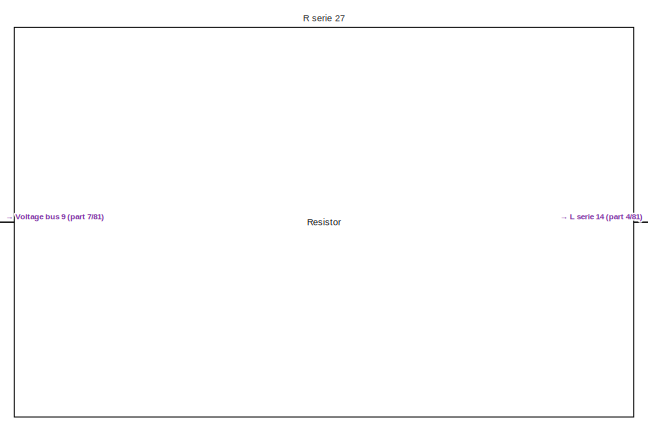
[diagram: root canvas - part 1/81, top center region]
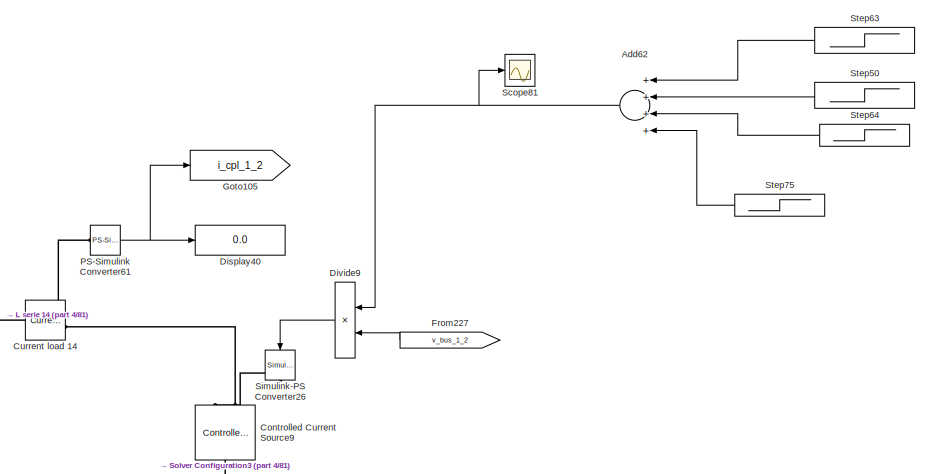
[diagram: root canvas - part 2/81, top right region]
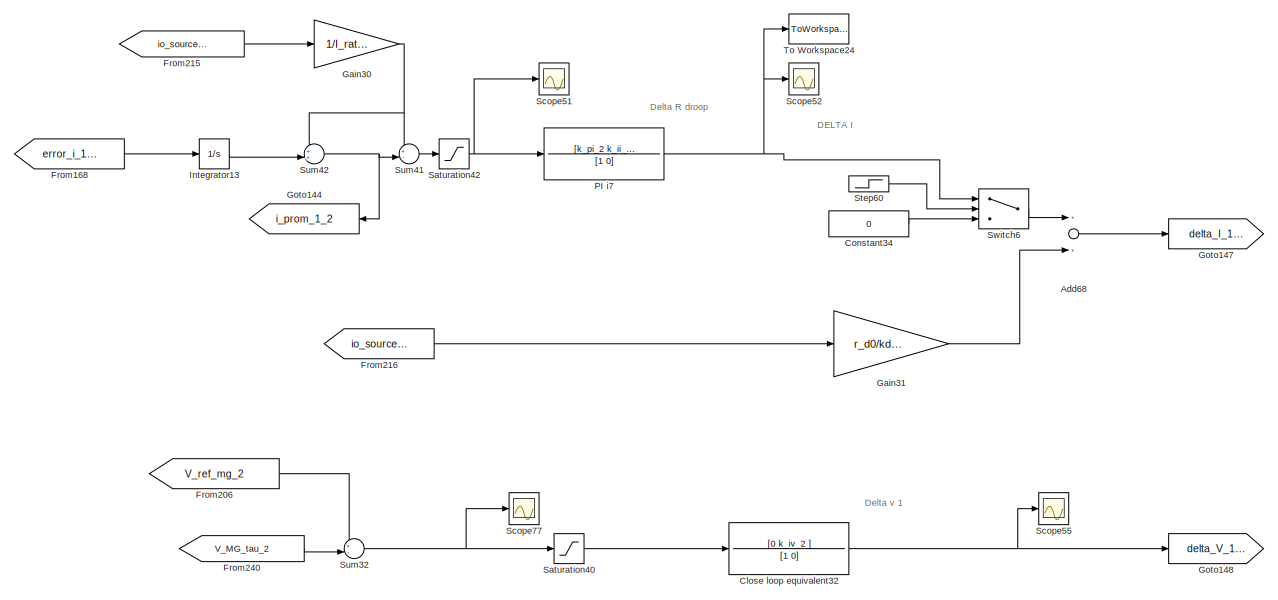
[diagram: root canvas - part 3/81, top right region]
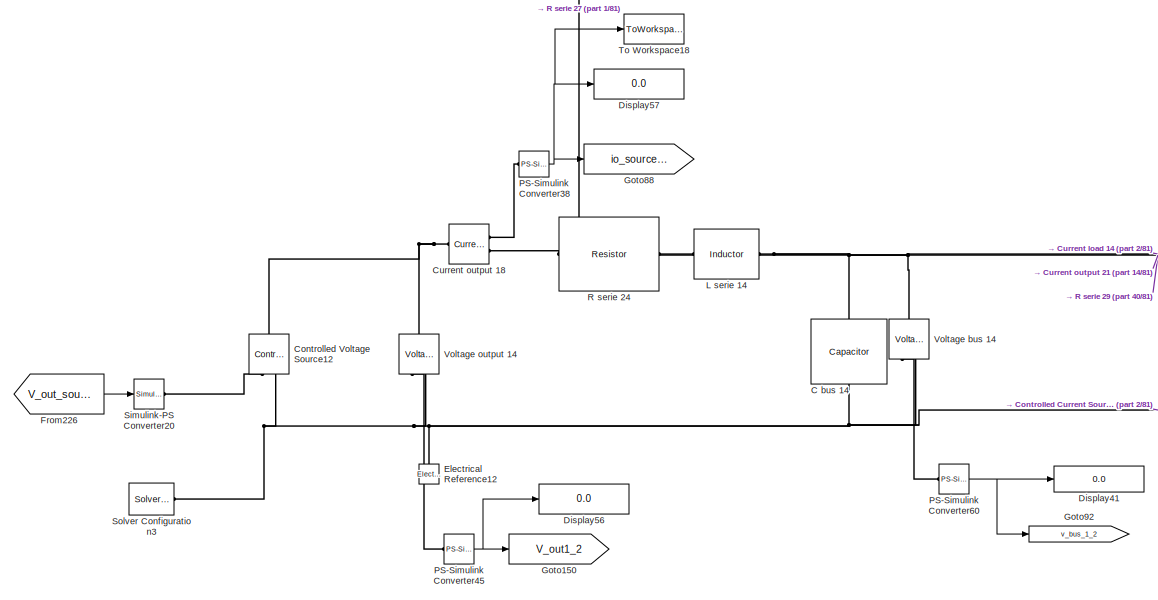
[diagram: root canvas - part 4/81, top right region]
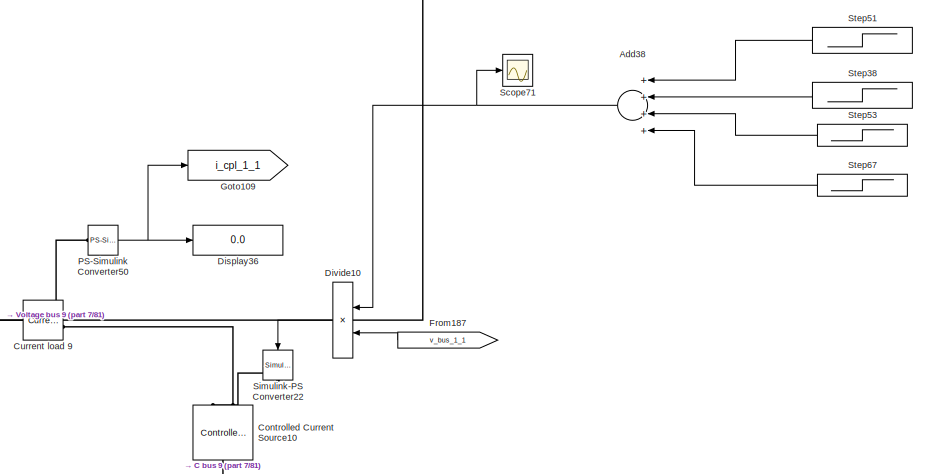
[diagram: root canvas - part 5/81, top center region]
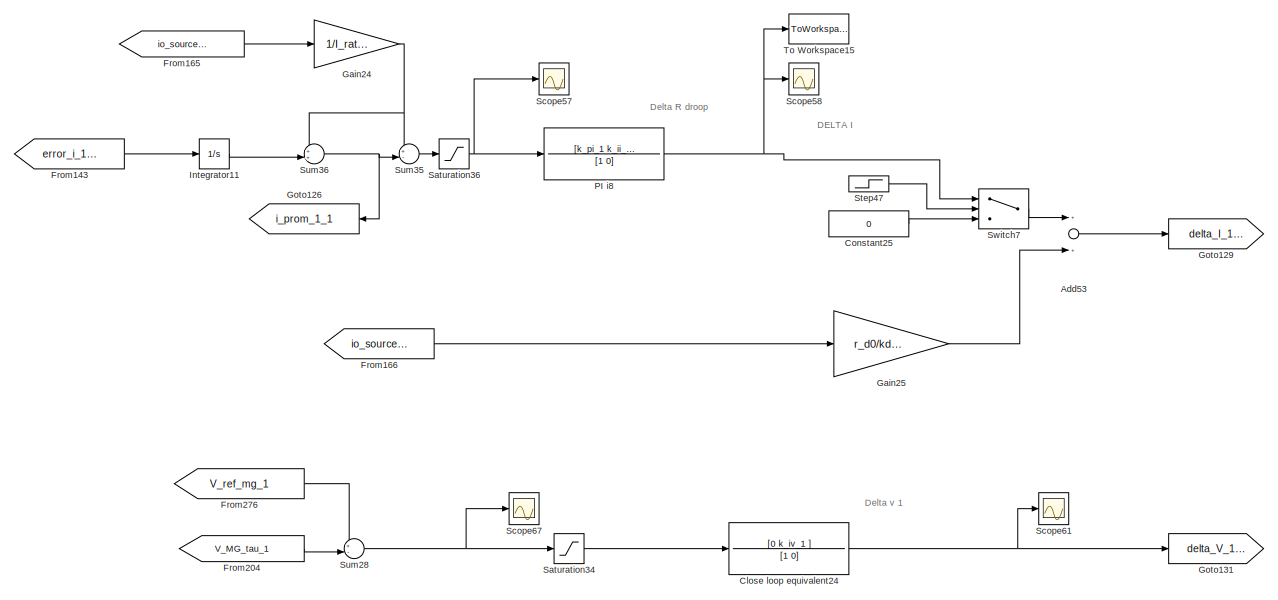
[diagram: root canvas - part 6/81, top center region]
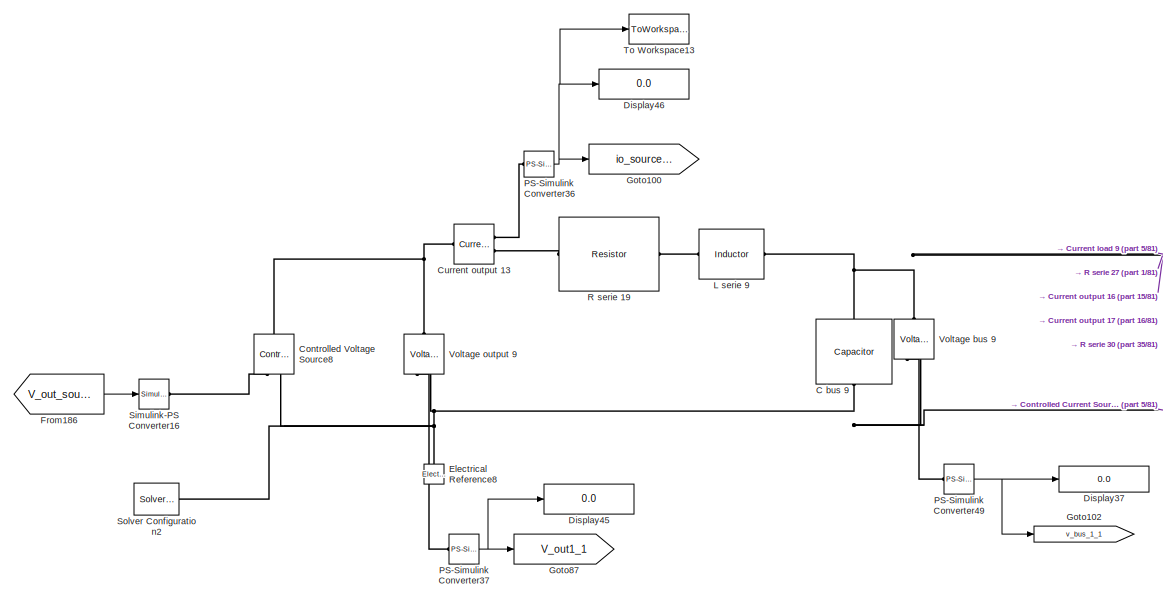
[diagram: root canvas - part 7/81, top center region]
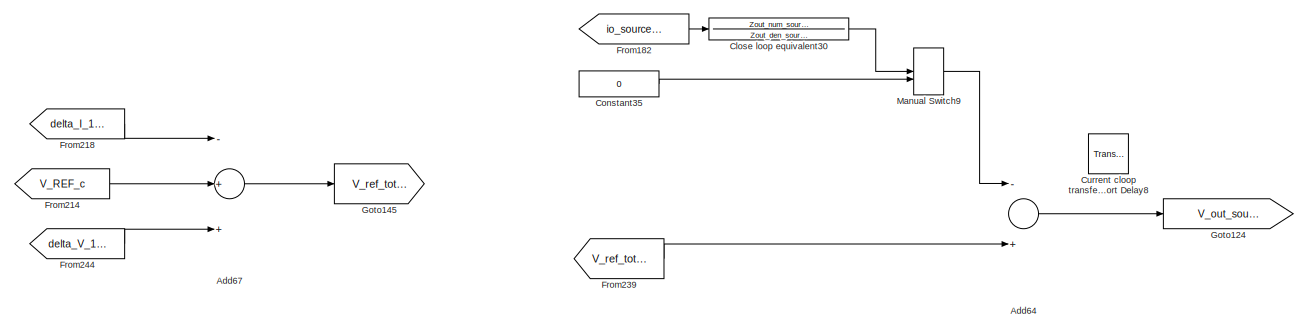
[diagram: root canvas - part 8/81, top right region]
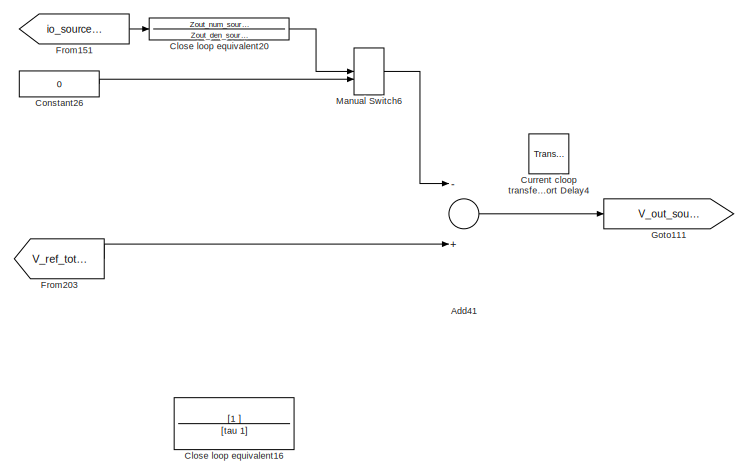
[diagram: root canvas - part 9/81, top center region]
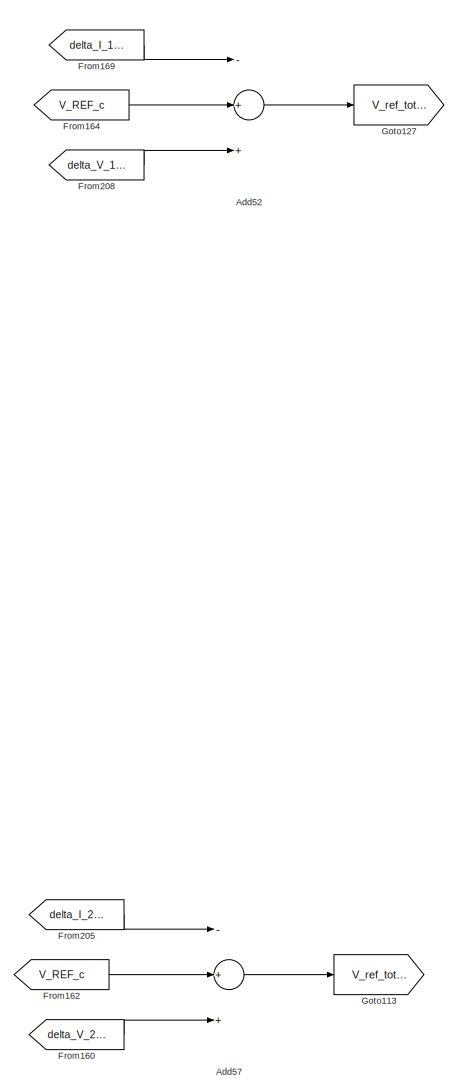
[diagram: root canvas - part 10/81, top center region]
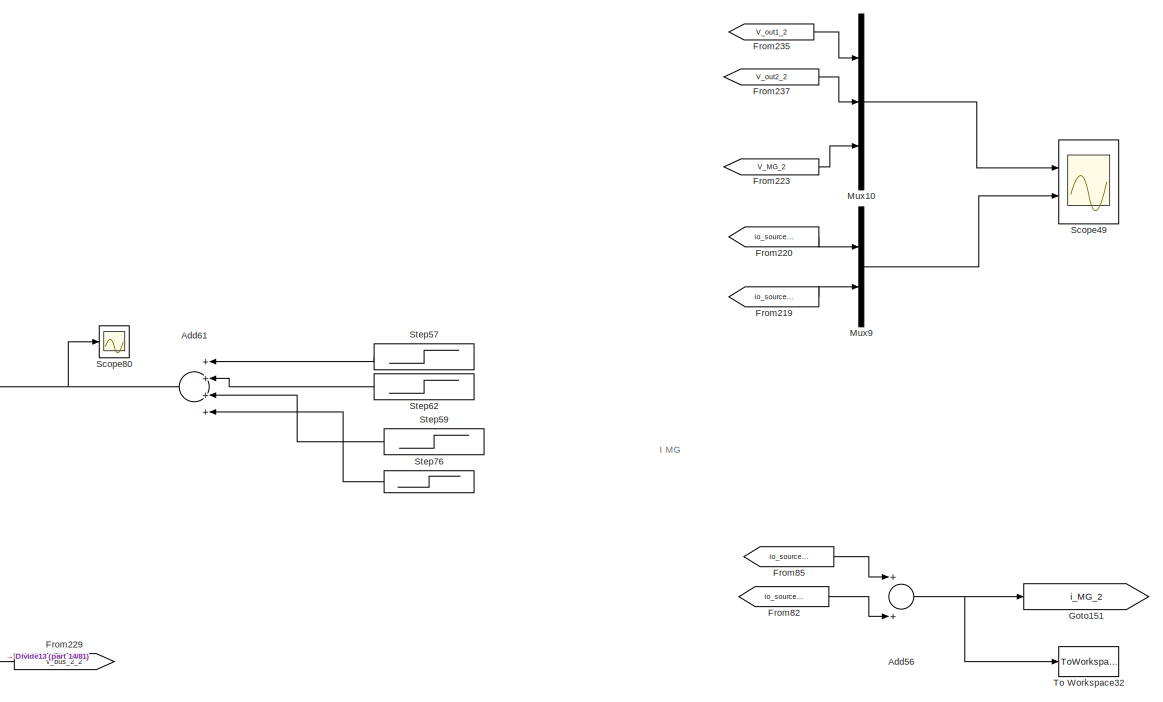
[diagram: root canvas - part 11/81, top right region]
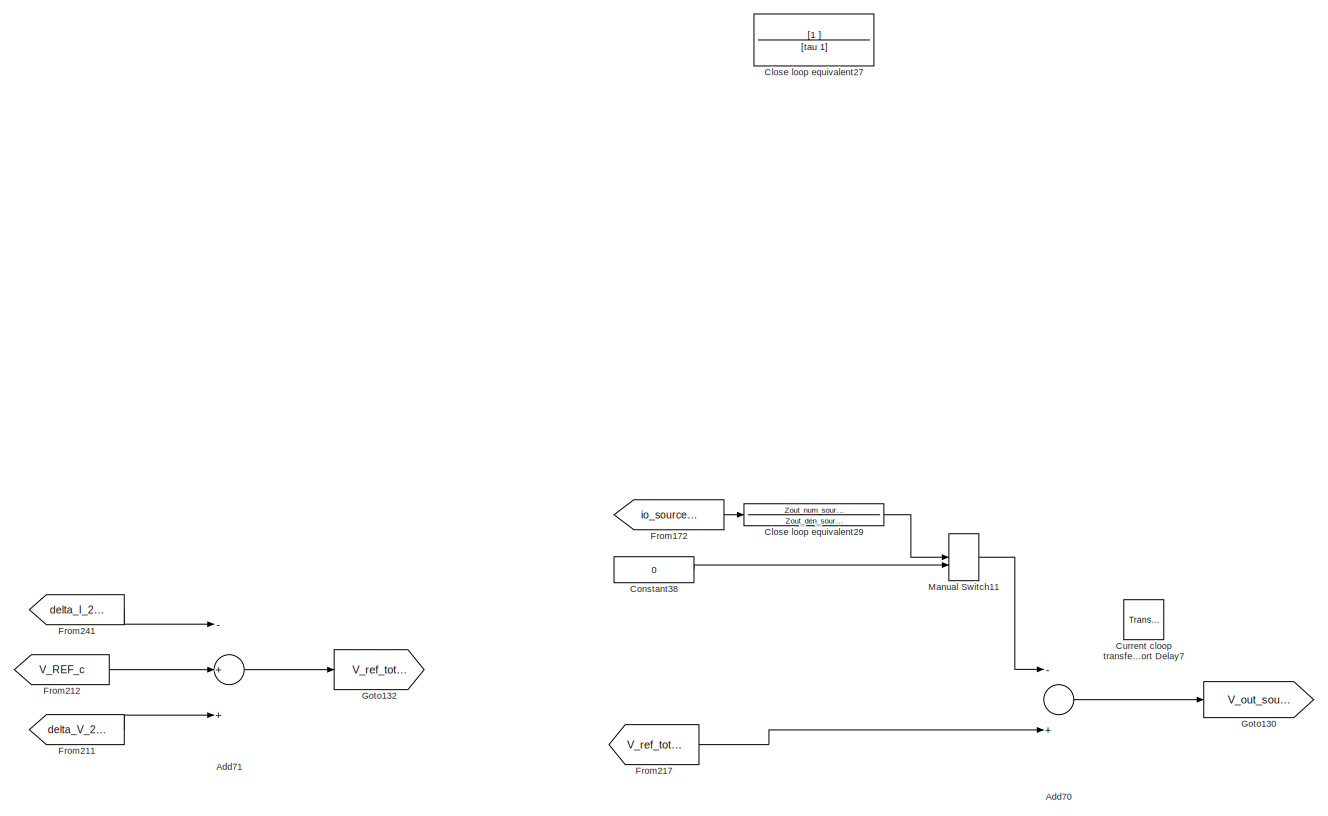
[diagram: root canvas - part 12/81, top right region]
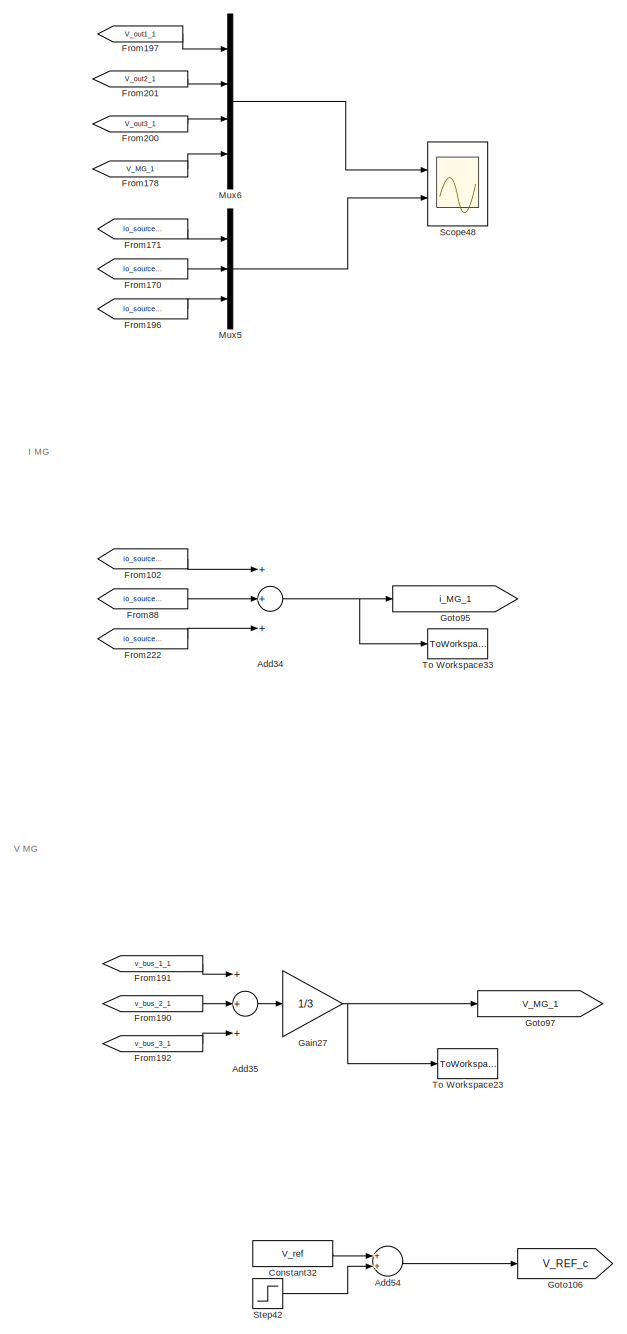
[diagram: root canvas - part 13/81, top center region]
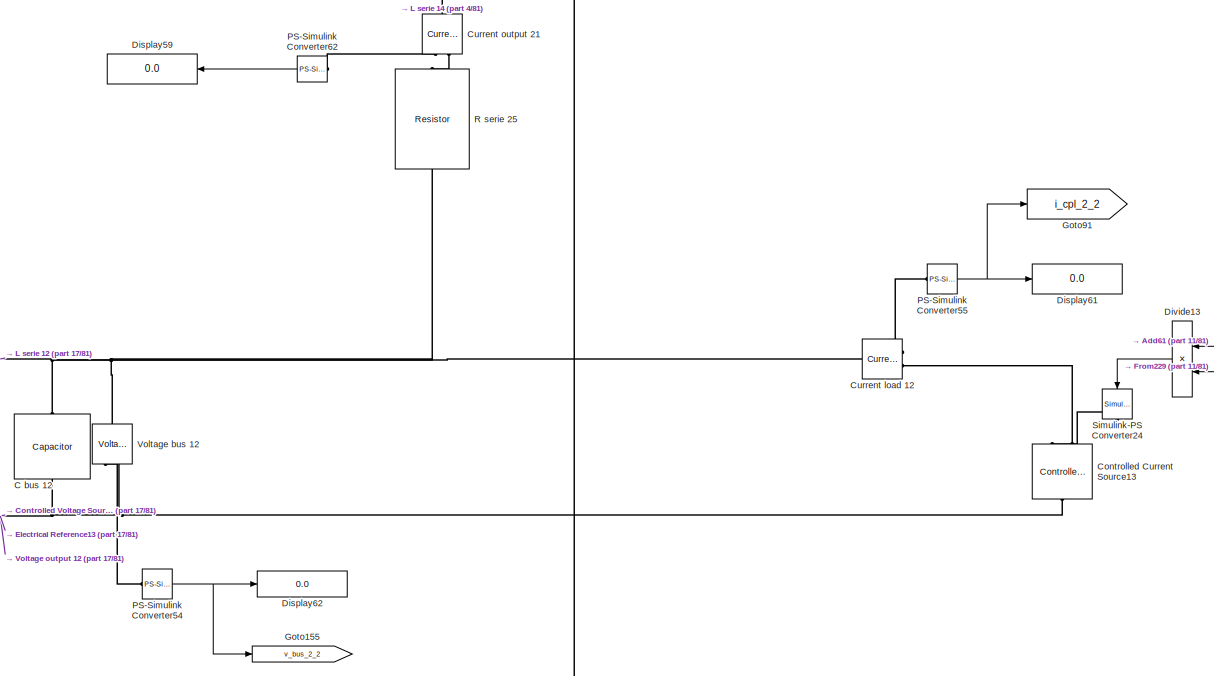
[diagram: root canvas - part 14/81, top right region]
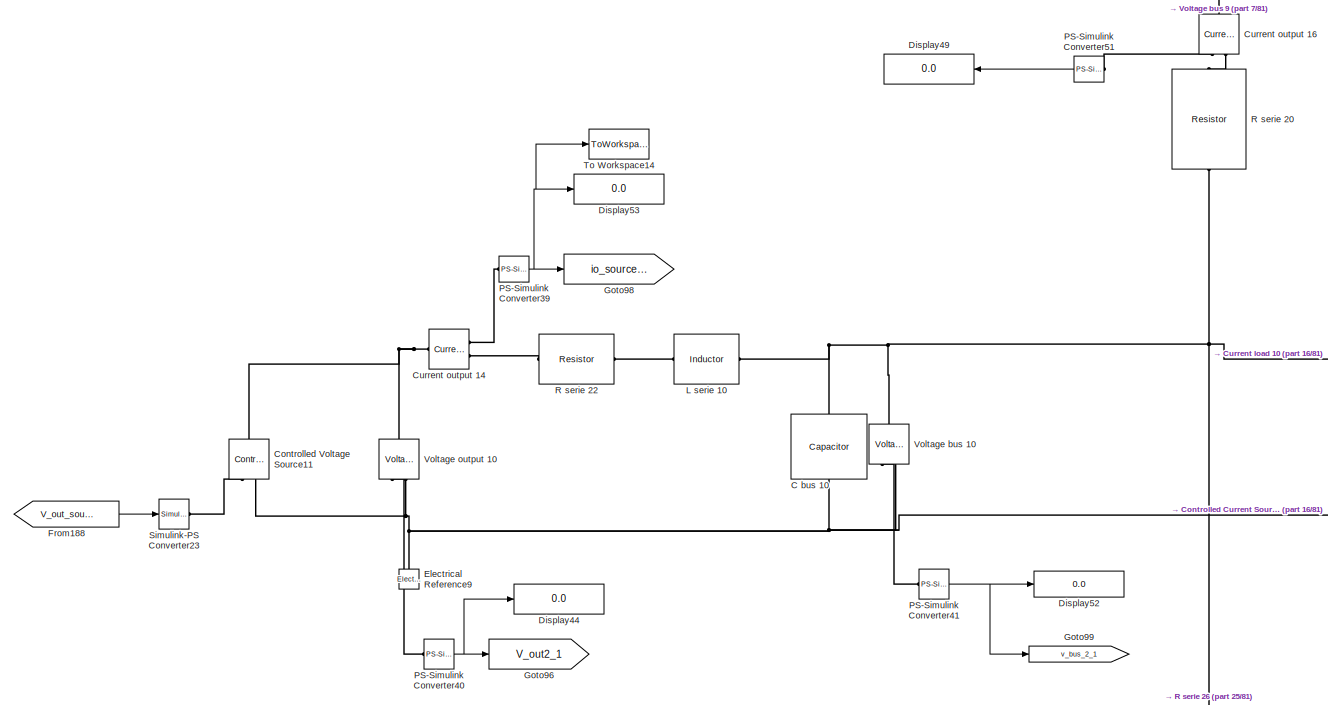
[diagram: root canvas - part 15/81, top center region]
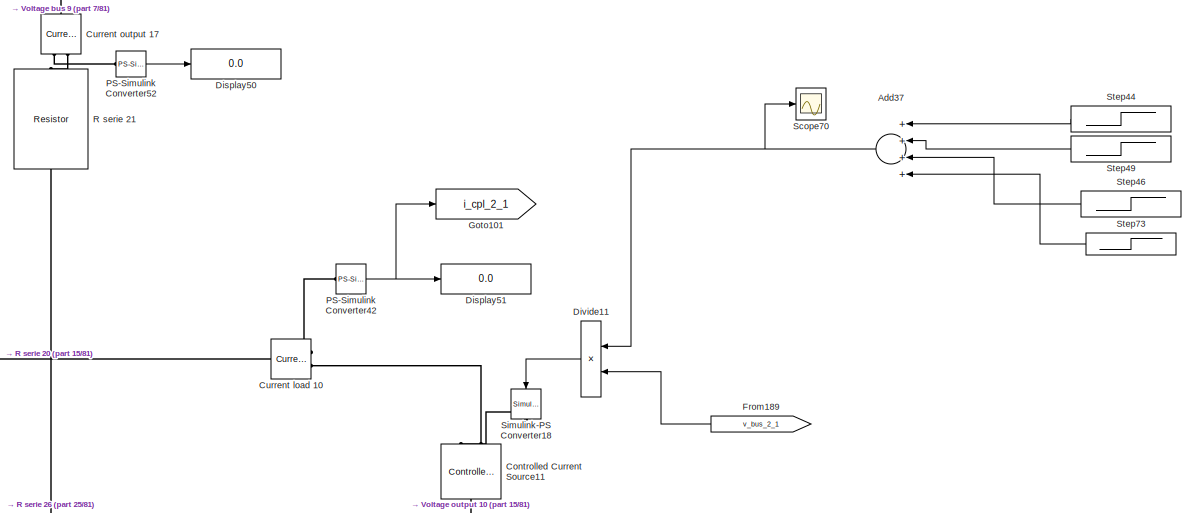
[diagram: root canvas - part 16/81, top center region]
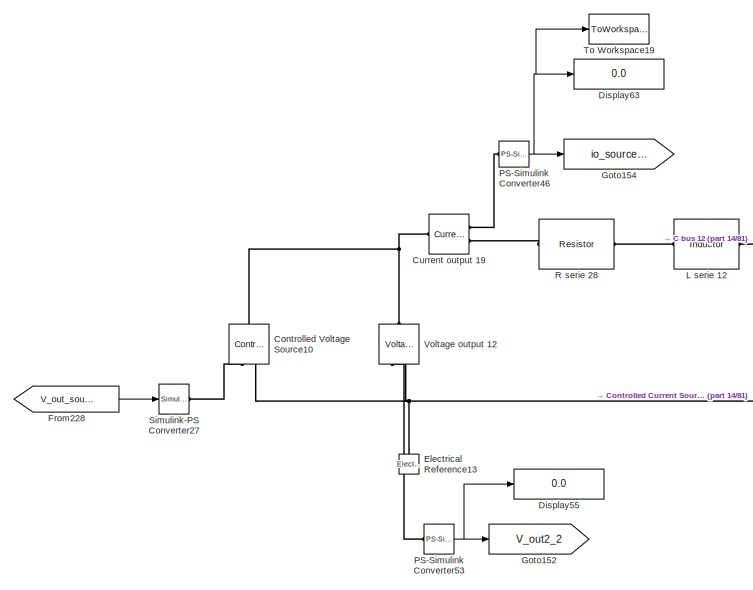
[diagram: root canvas - part 17/81, top right region]
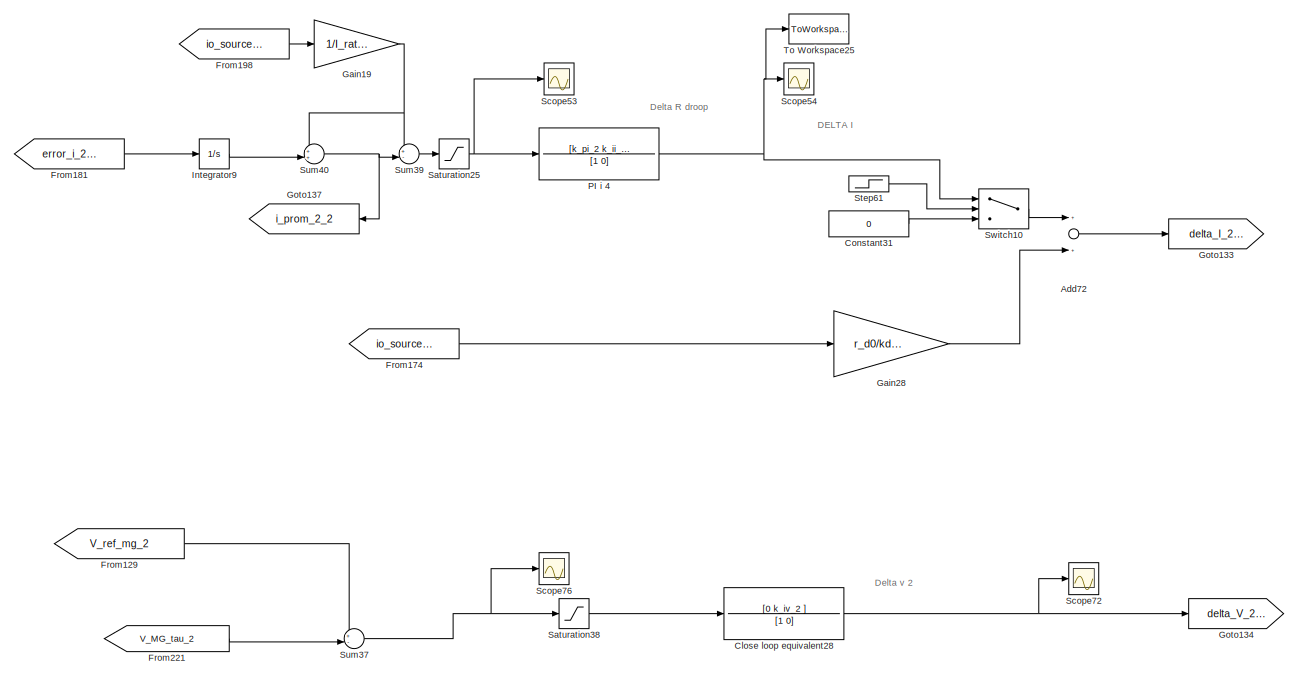
[diagram: root canvas - part 18/81, top right region]
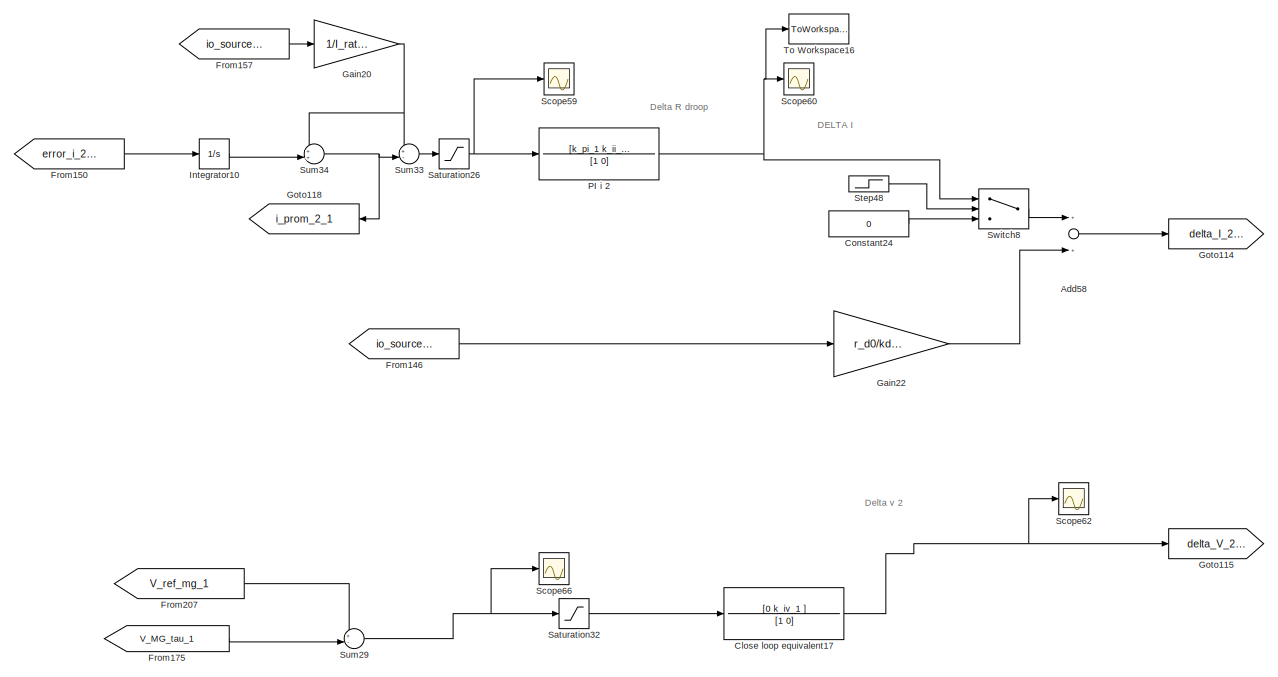
[diagram: root canvas - part 19/81, top center region]
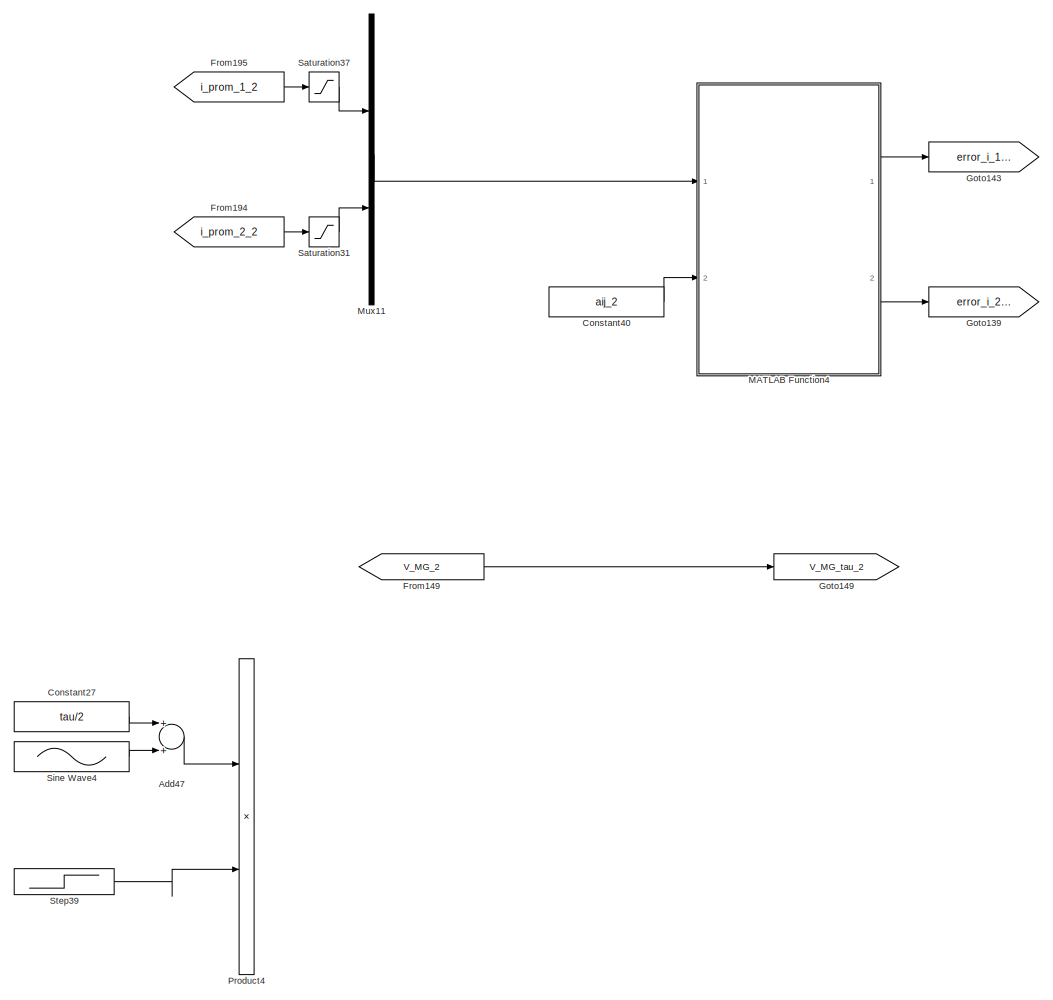
[diagram: root canvas - part 20/81, top right region]
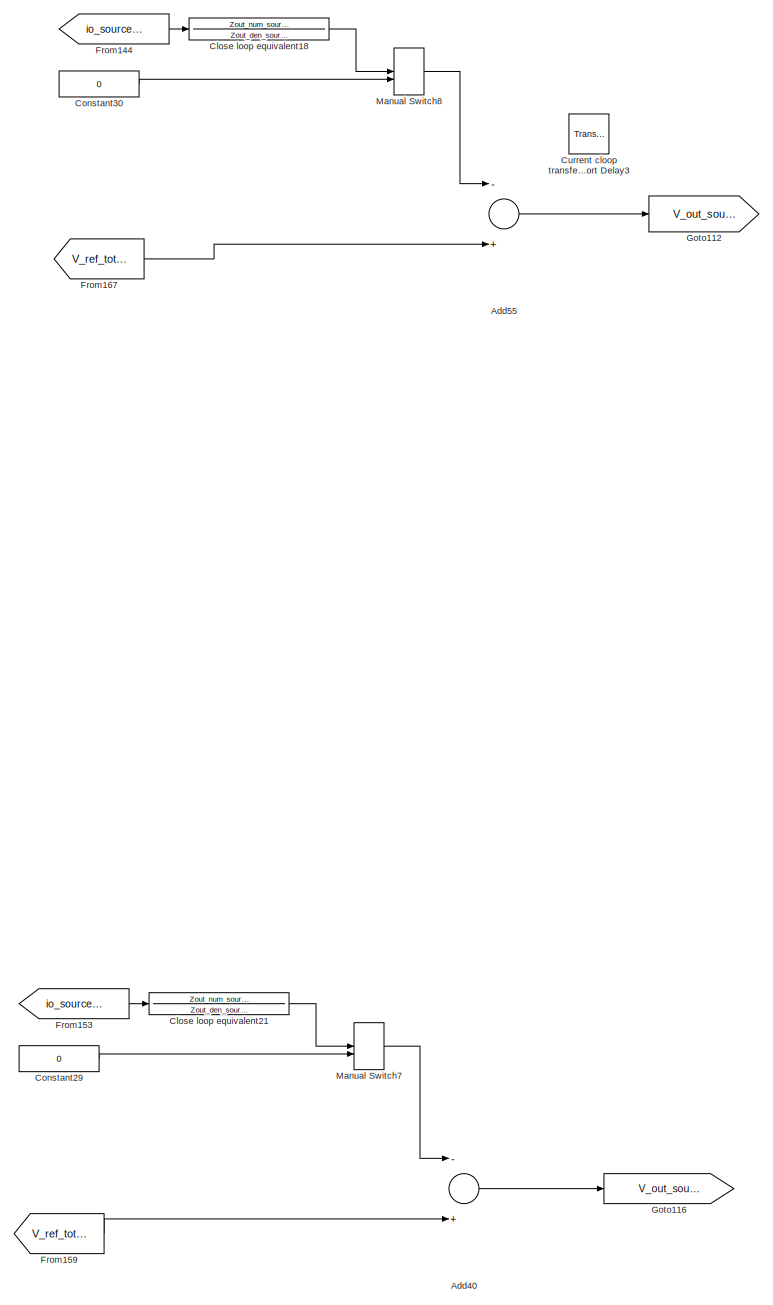
[diagram: root canvas - part 21/81, top center region]
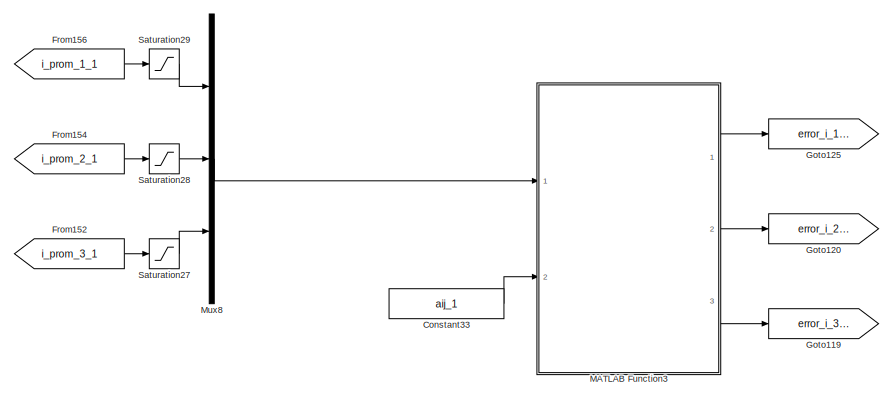
[diagram: root canvas - part 22/81, top center region]
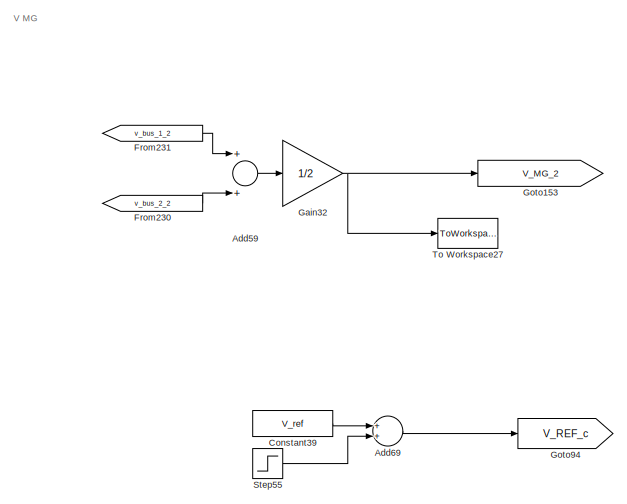
[diagram: root canvas - part 23/81, top right region]
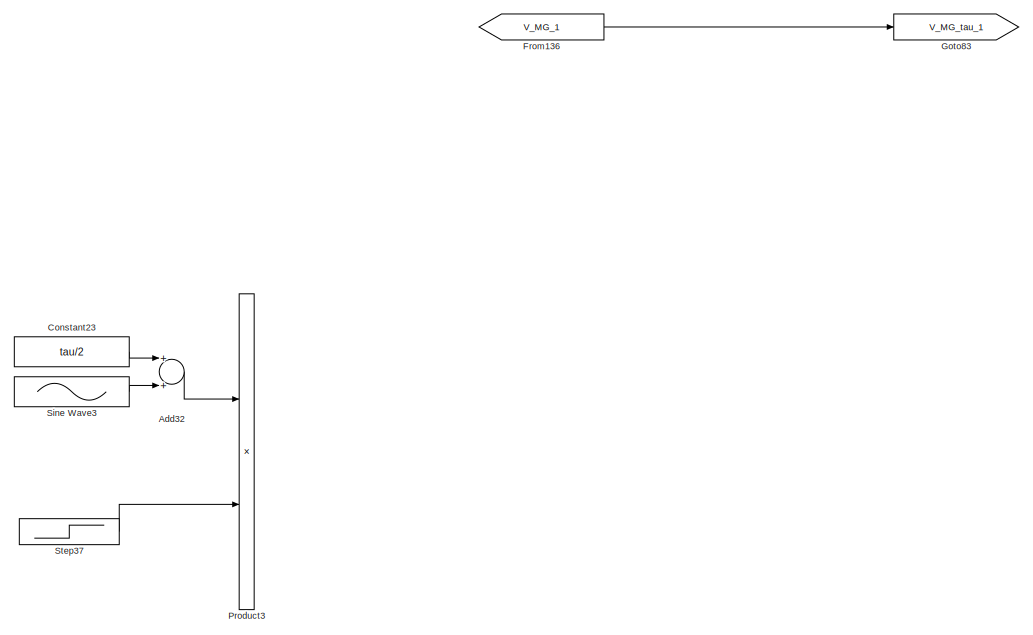
[diagram: root canvas - part 24/81, top left region]
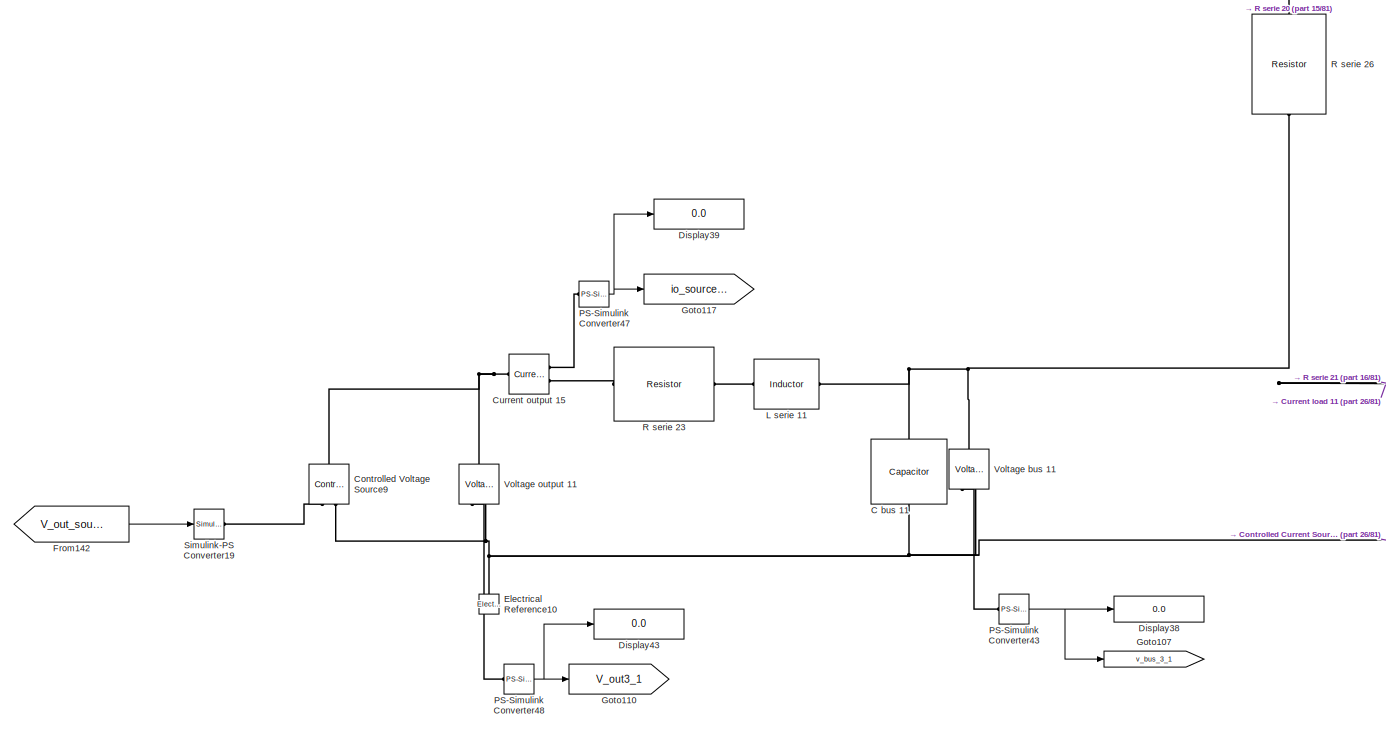
[diagram: root canvas - part 25/81, top center region]
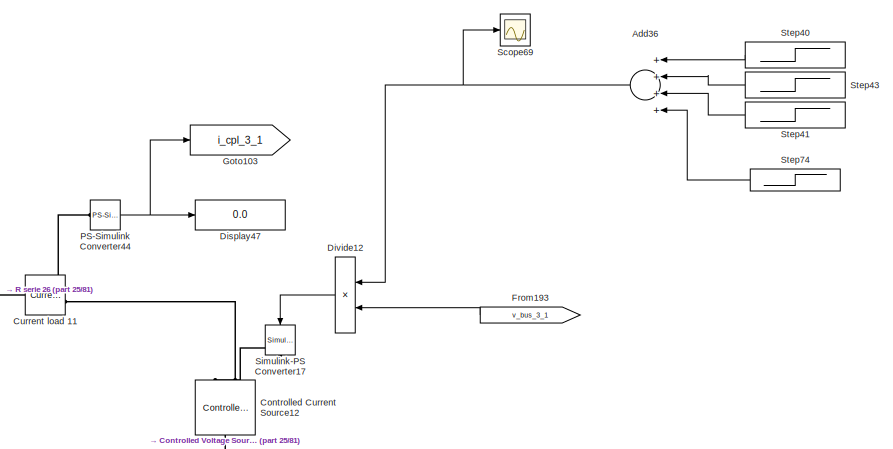
[diagram: root canvas - part 26/81, top center region]
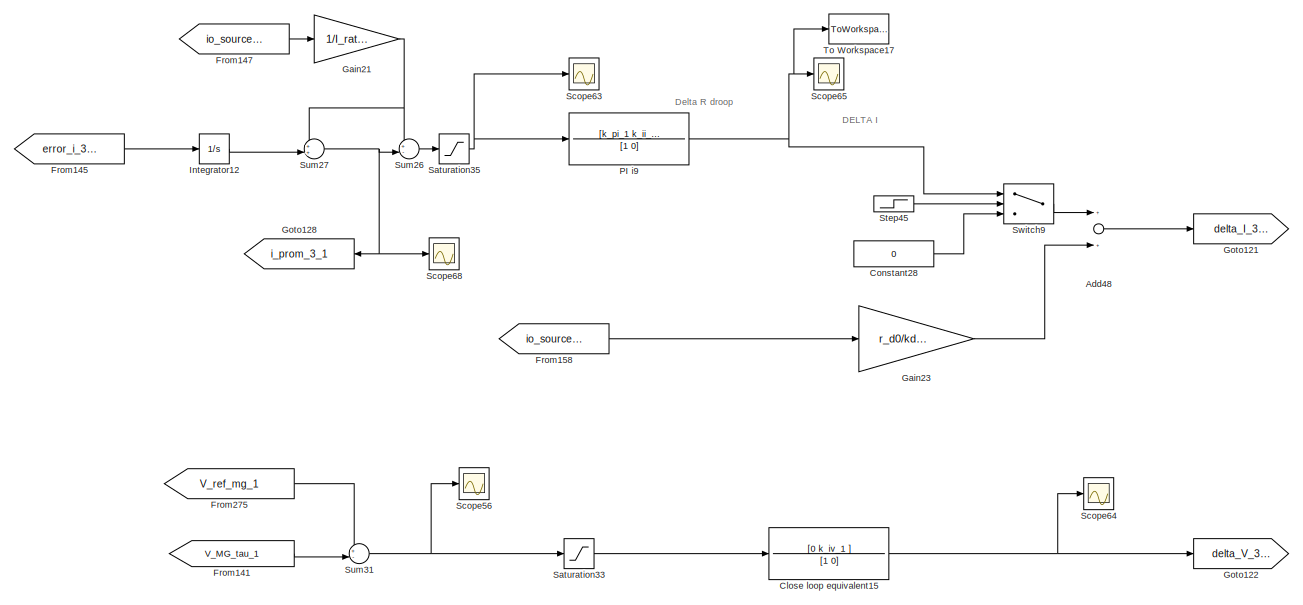
[diagram: root canvas - part 27/81, top center region]
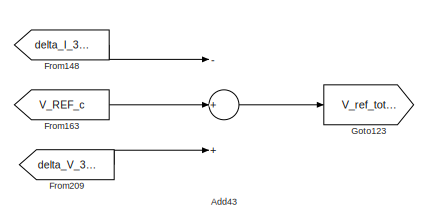
[diagram: root canvas - part 28/81, top center region]
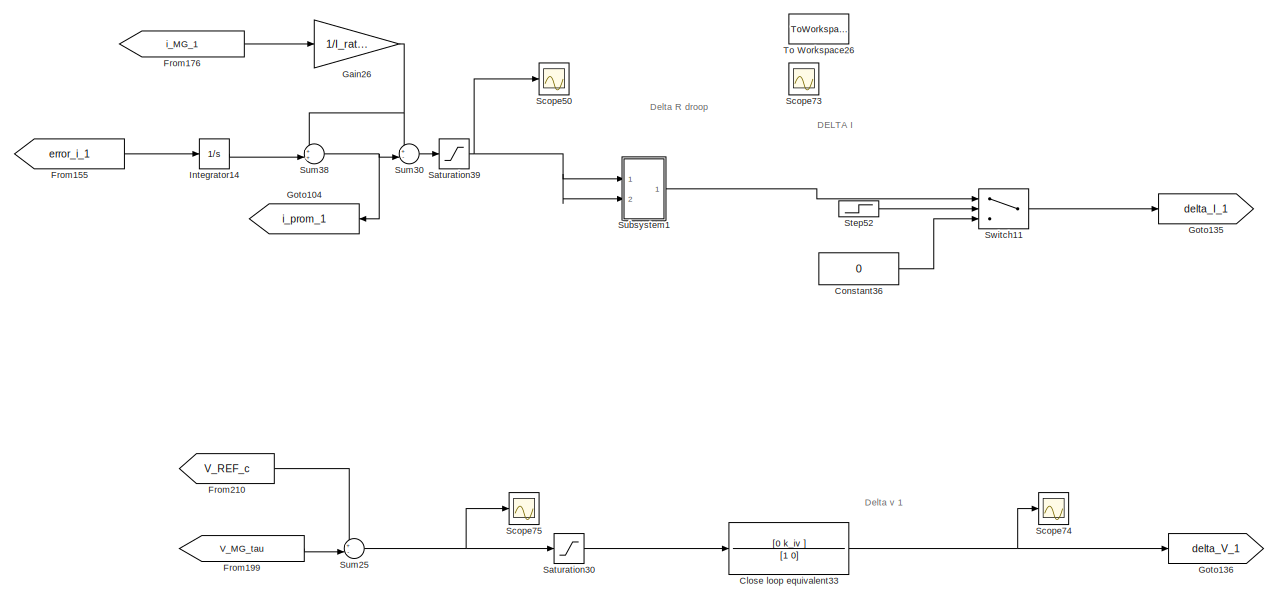
[diagram: root canvas - part 29/81, top left region]
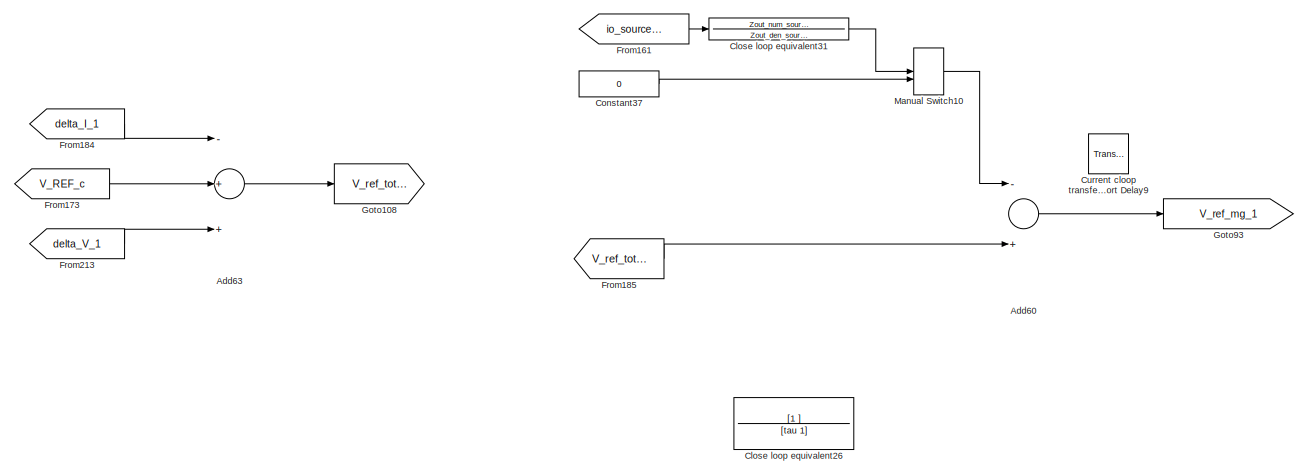
[diagram: root canvas - part 30/81, top left region]
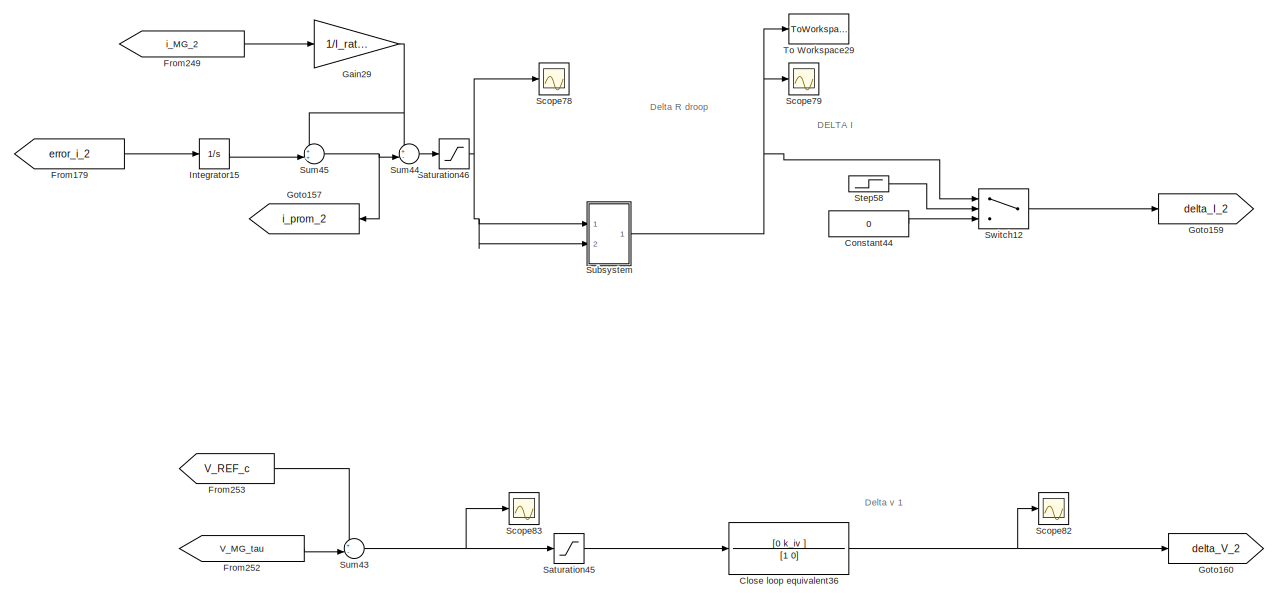
[diagram: root canvas - part 31/81, middle left region]
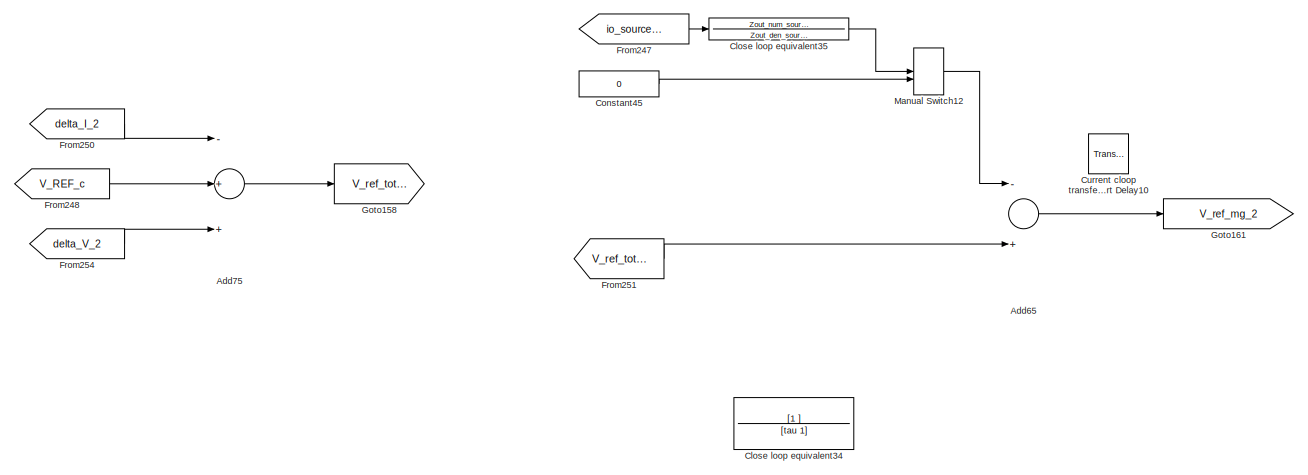
[diagram: root canvas - part 32/81, middle left region]
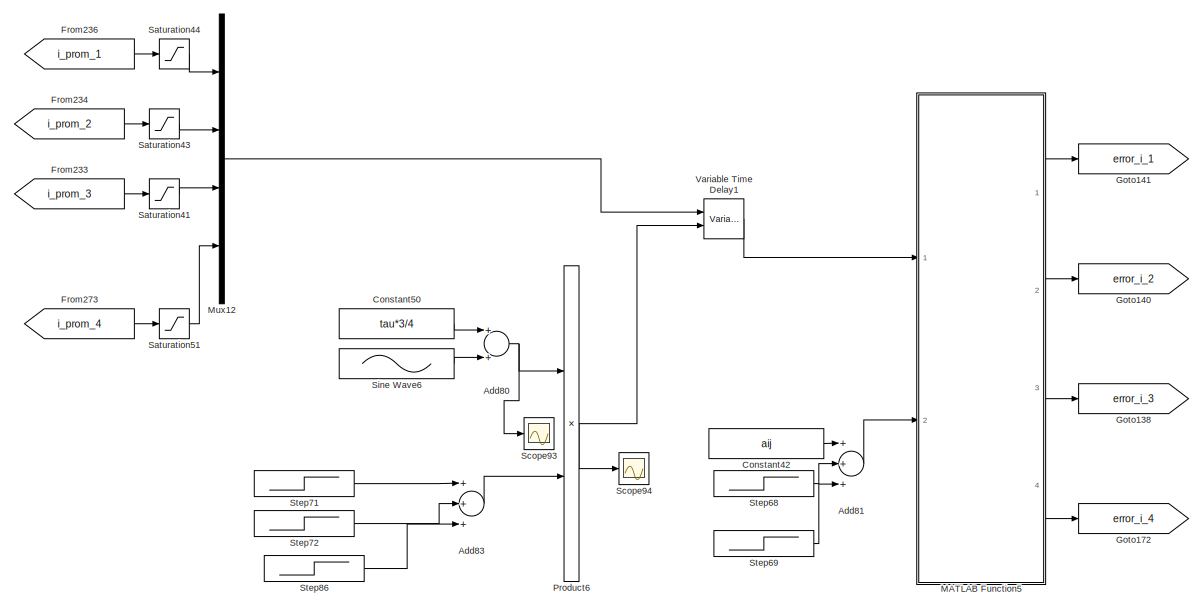
[diagram: root canvas - part 33/81, middle left region]
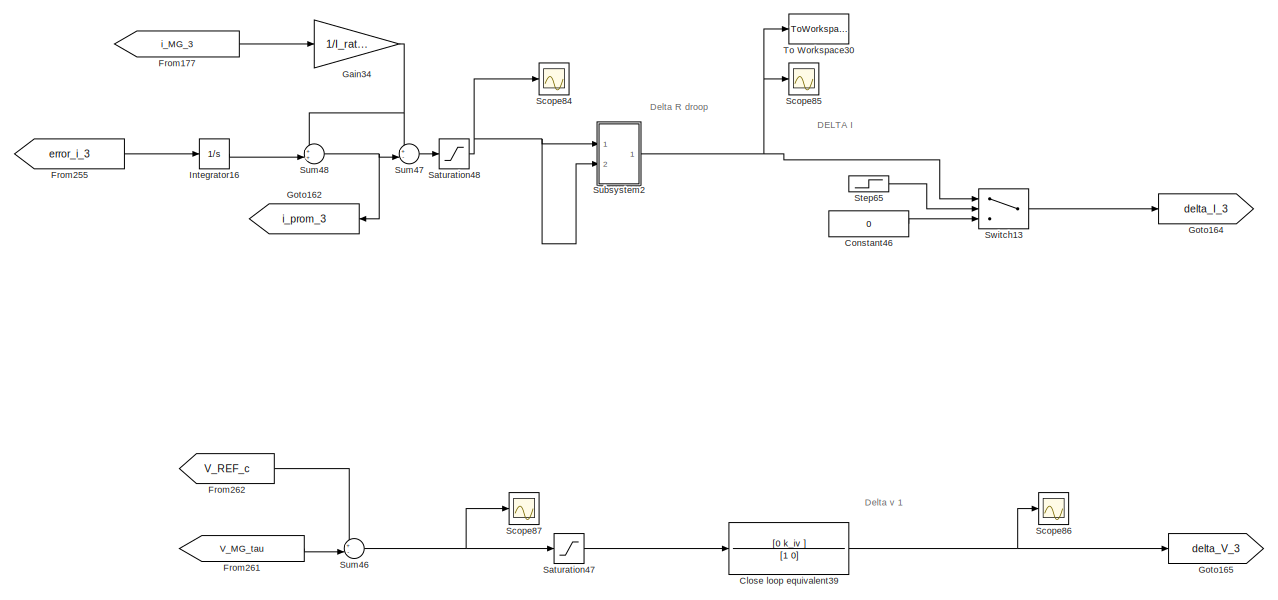
[diagram: root canvas - part 34/81, middle left region]
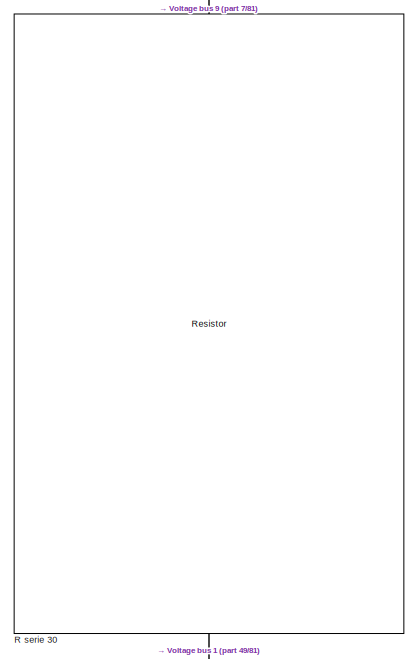
[diagram: root canvas - part 35/81, central region]
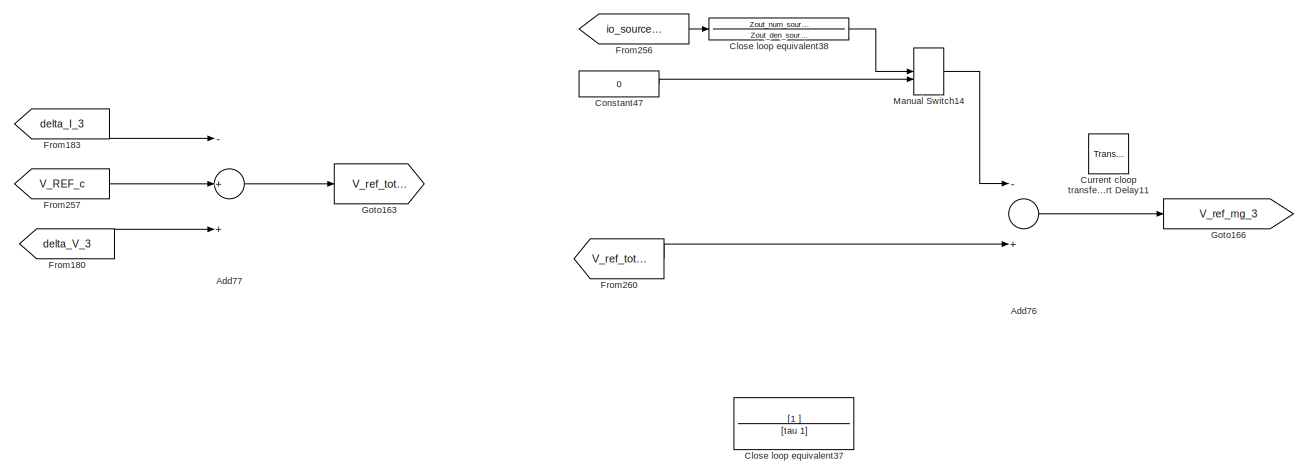
[diagram: root canvas - part 36/81, middle left region]
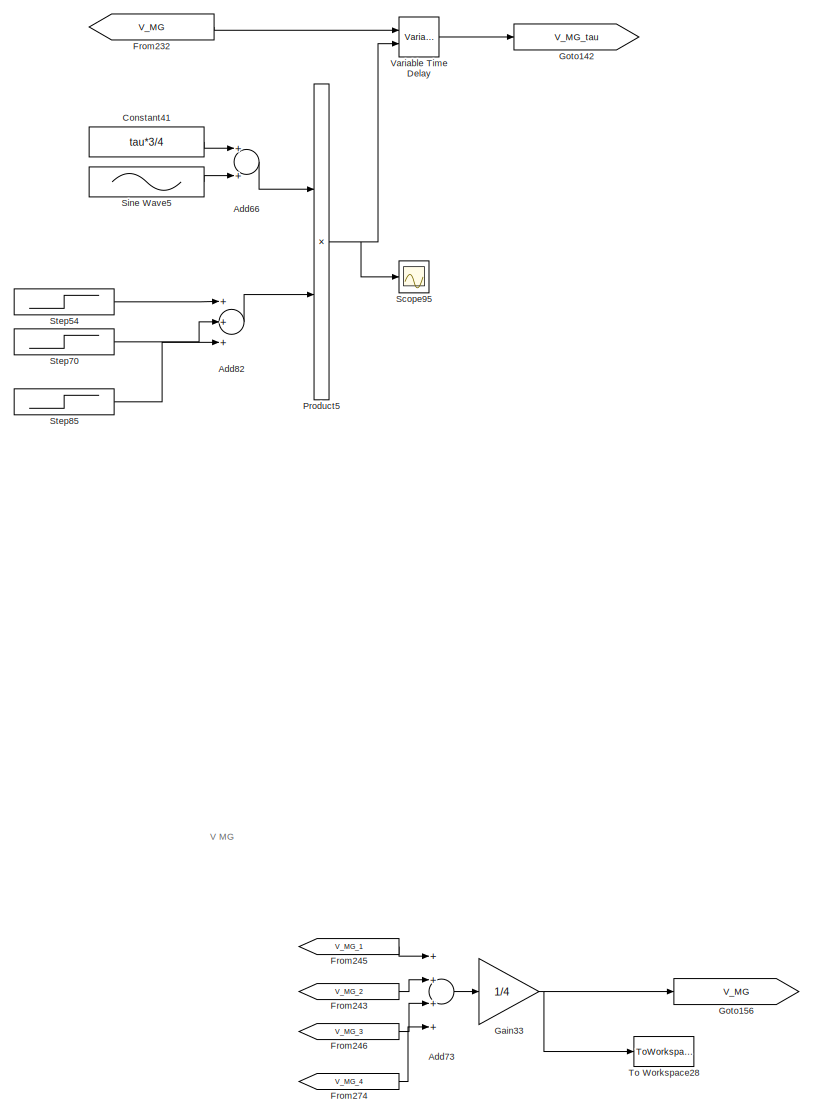
[diagram: root canvas - part 37/81, middle left region]
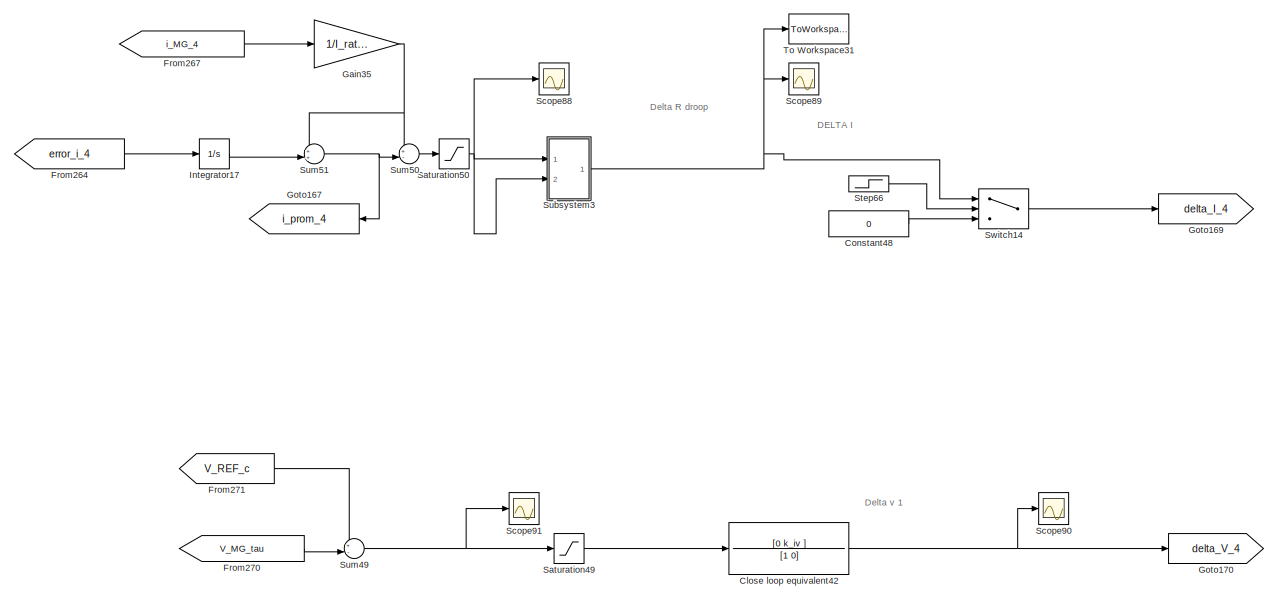
[diagram: root canvas - part 38/81, middle left region]
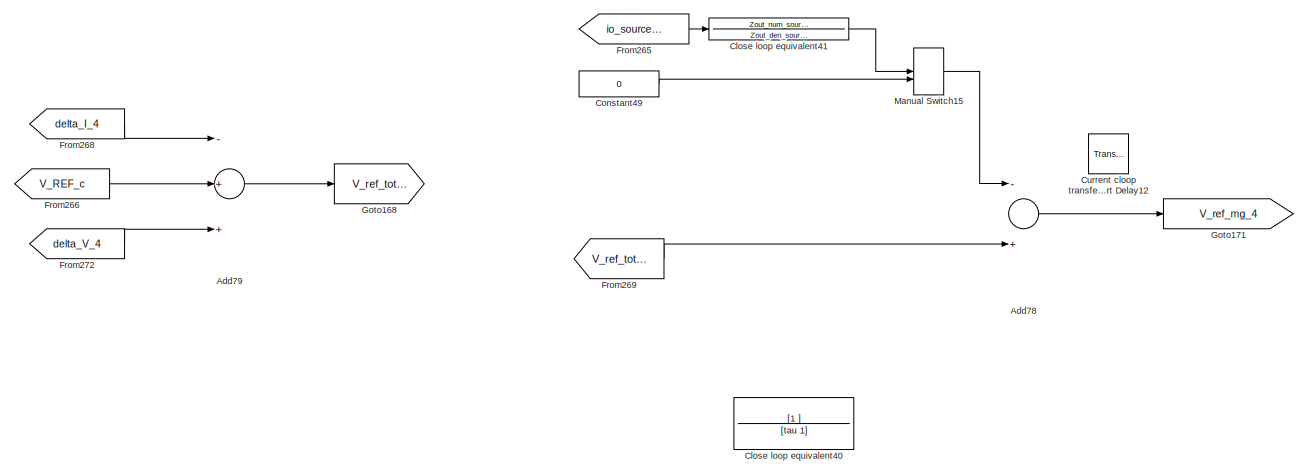
[diagram: root canvas - part 39/81, middle left region]
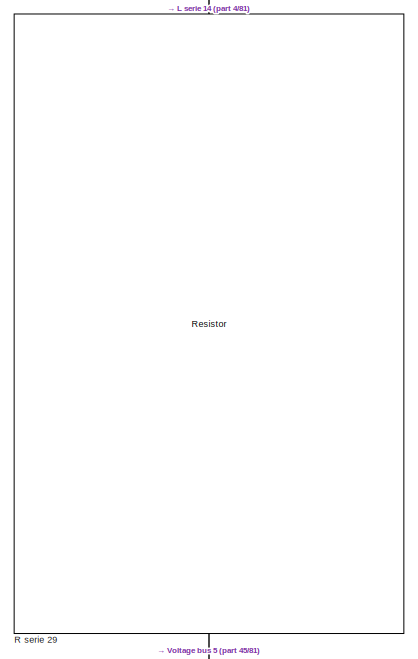
[diagram: root canvas - part 40/81, middle right region]
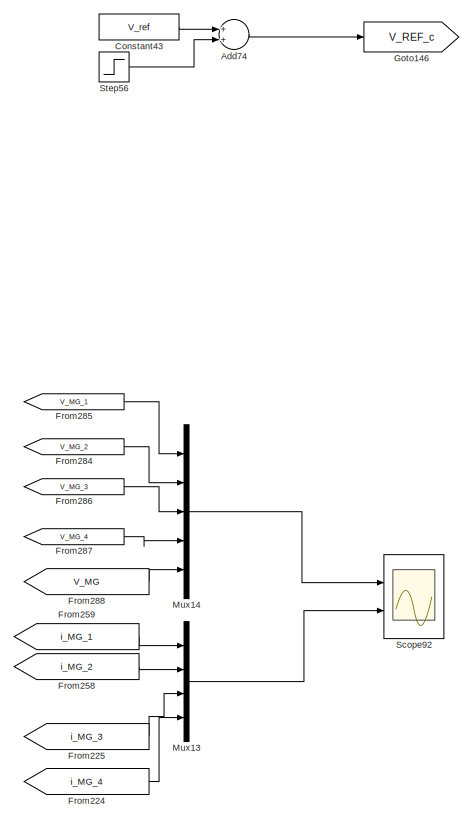
[diagram: root canvas - part 41/81, middle left region]
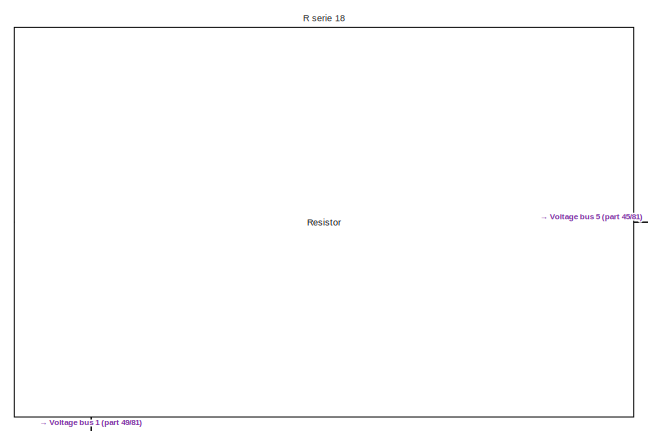
[diagram: root canvas - part 42/81, central region]
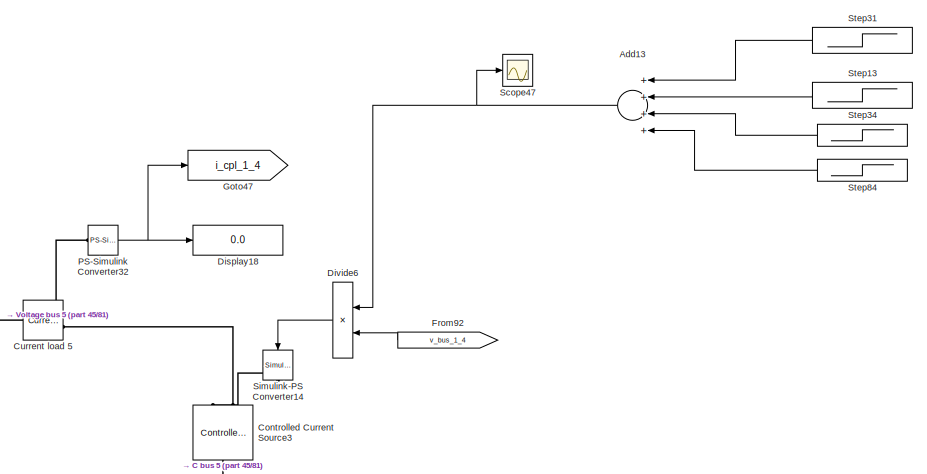
[diagram: root canvas - part 43/81, bottom right region]
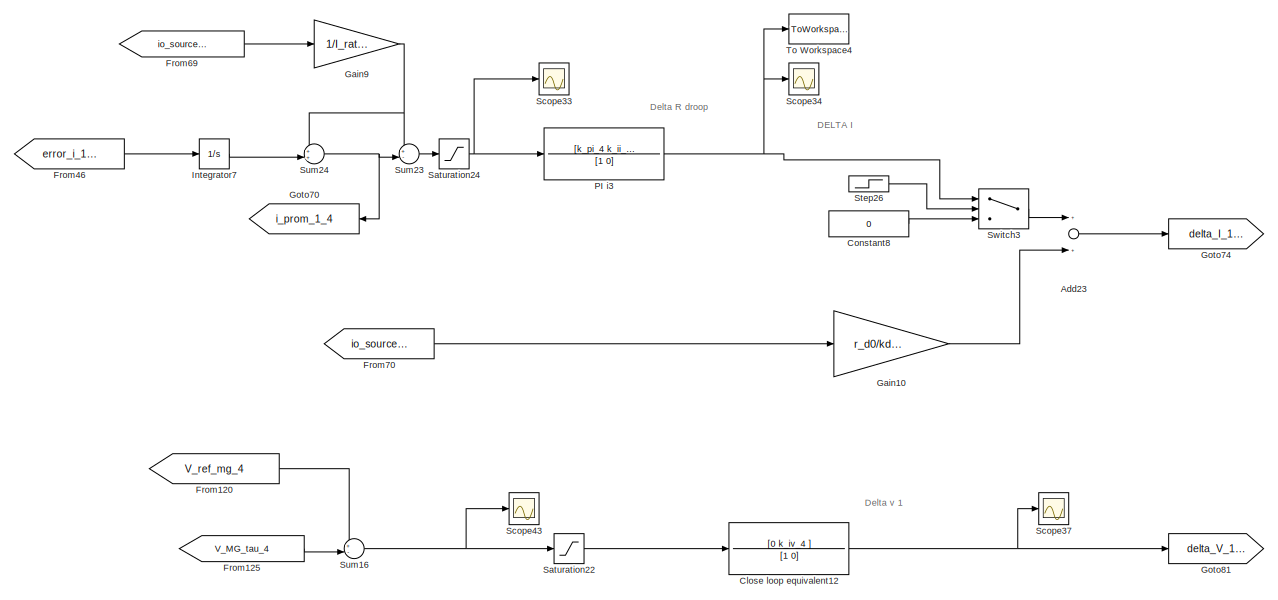
[diagram: root canvas - part 44/81, bottom right region]
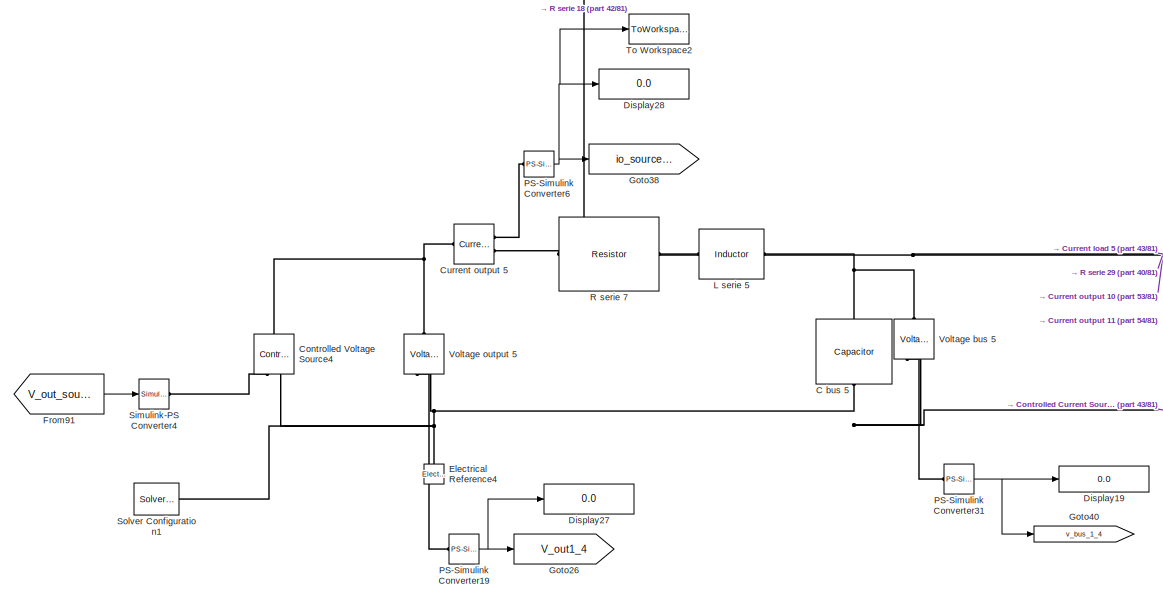
[diagram: root canvas - part 45/81, bottom right region]
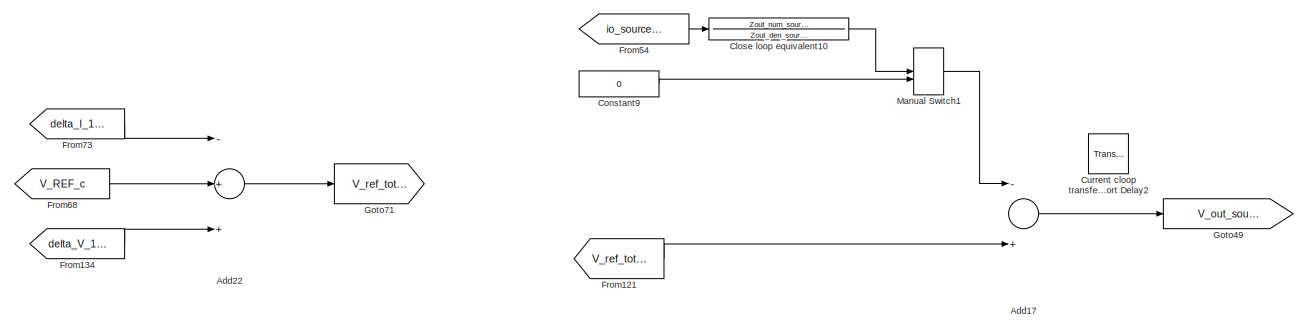
[diagram: root canvas - part 46/81, bottom right region]
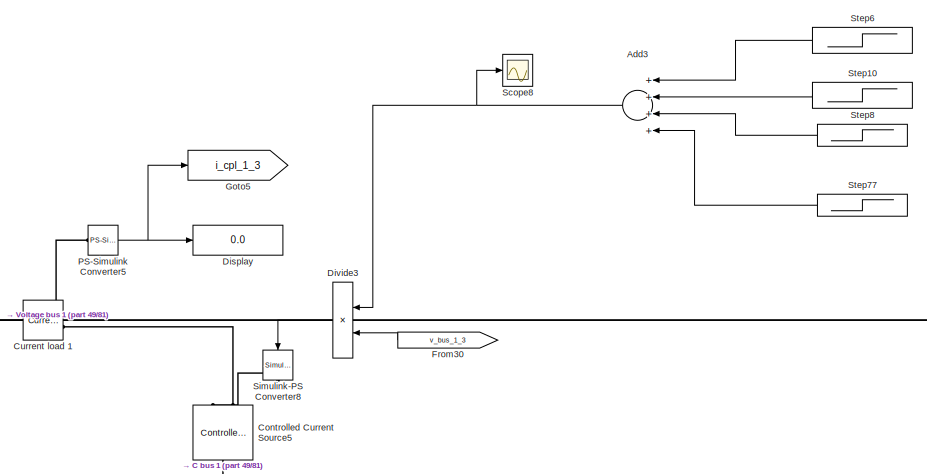
[diagram: root canvas - part 47/81, bottom center region]
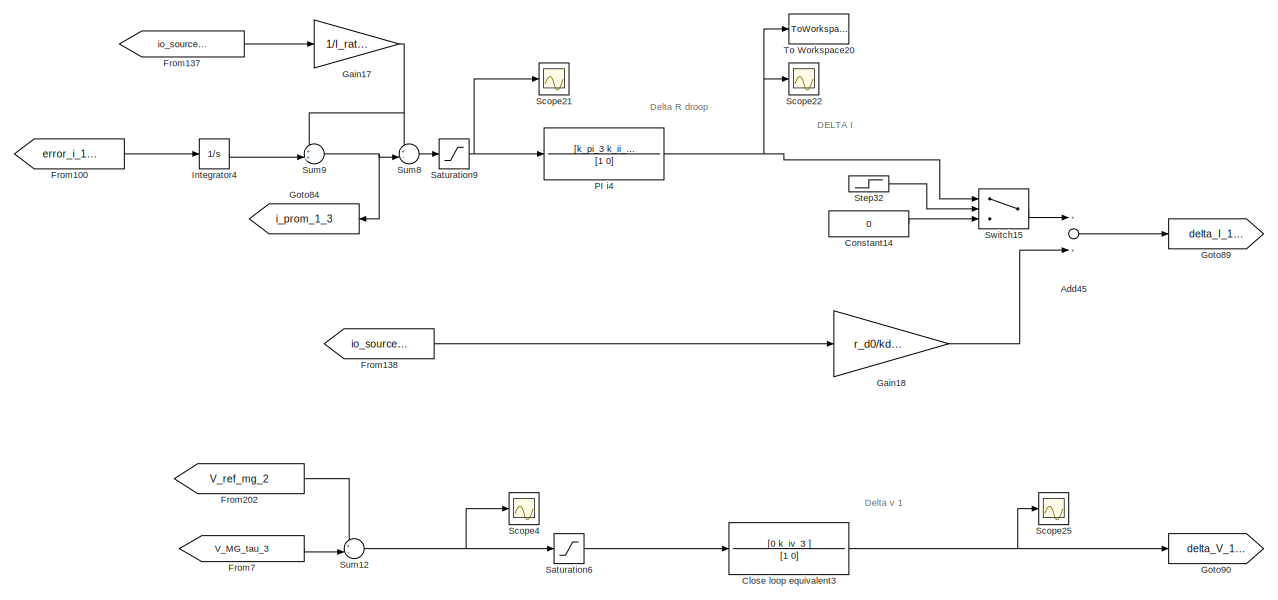
[diagram: root canvas - part 48/81, bottom center region]
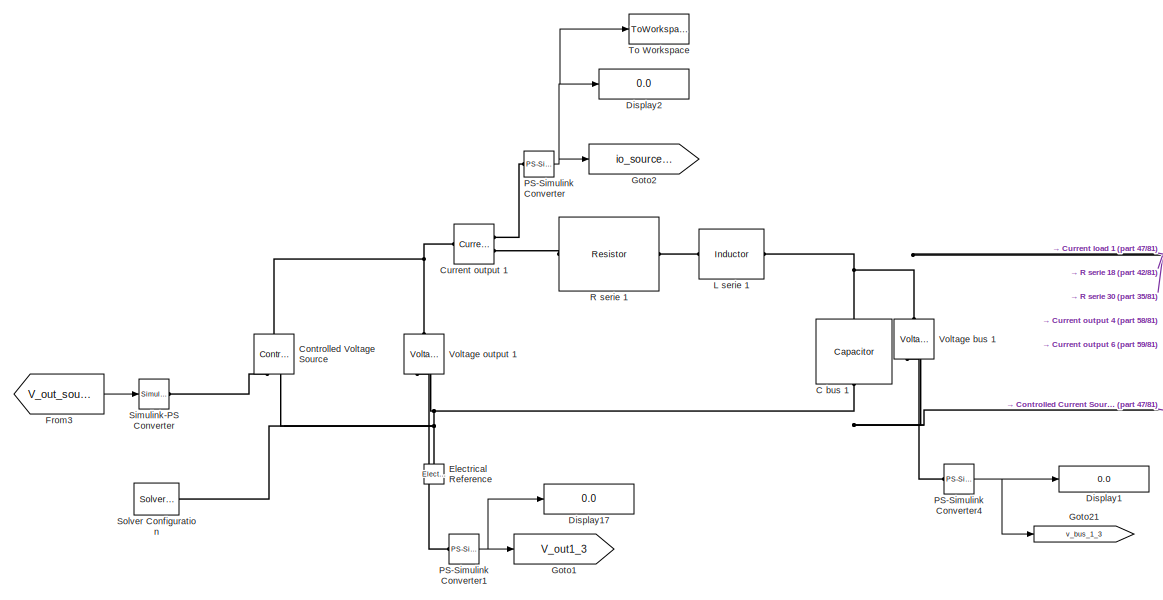
[diagram: root canvas - part 49/81, bottom center region]
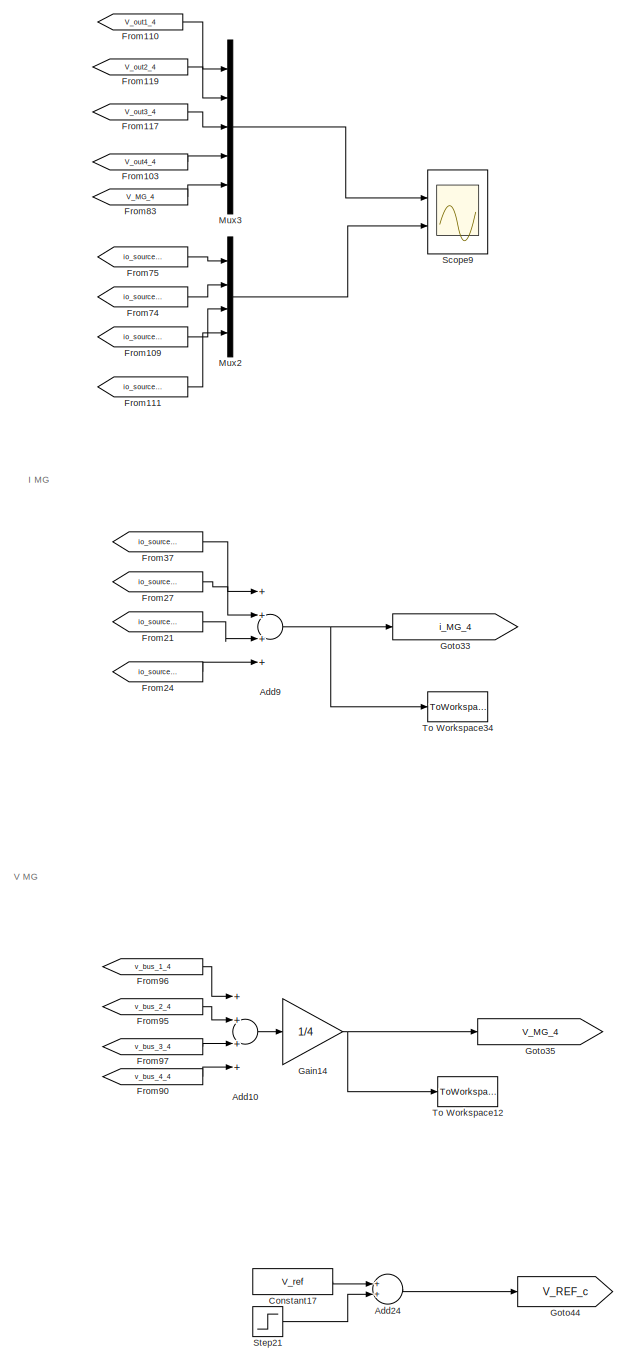
[diagram: root canvas - part 50/81, bottom right region]
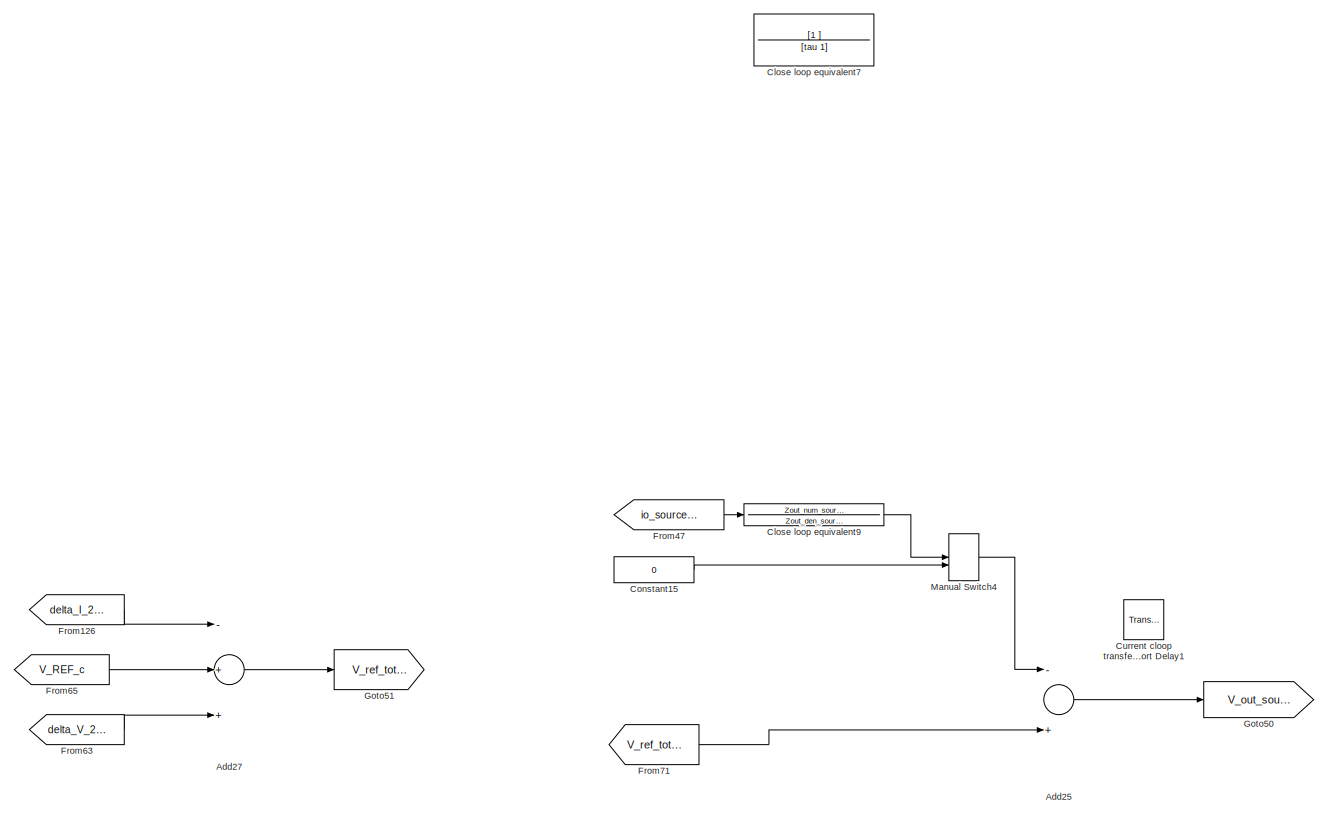
[diagram: root canvas - part 51/81, bottom right region]
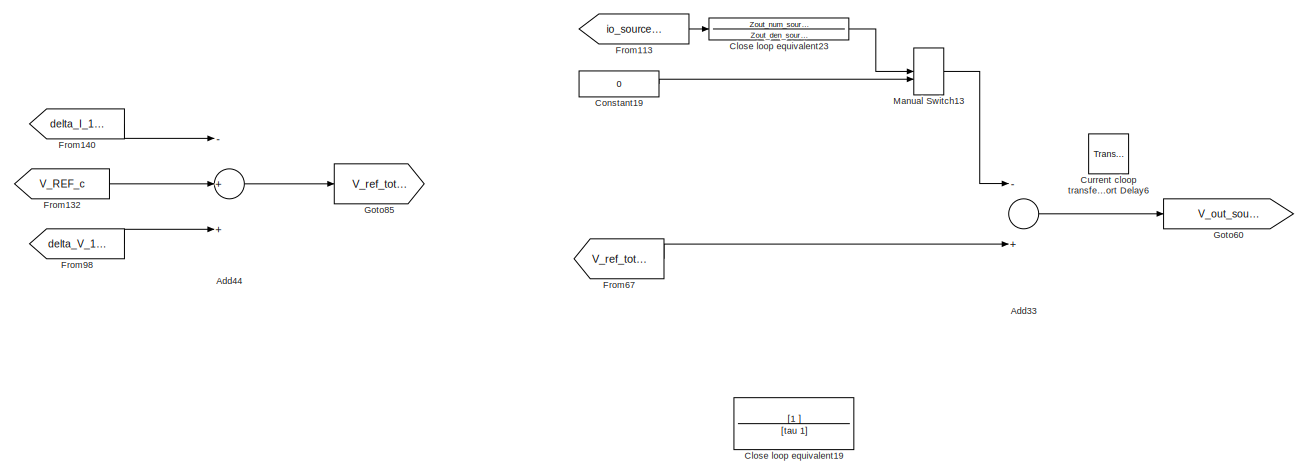
[diagram: root canvas - part 52/81, bottom center region]
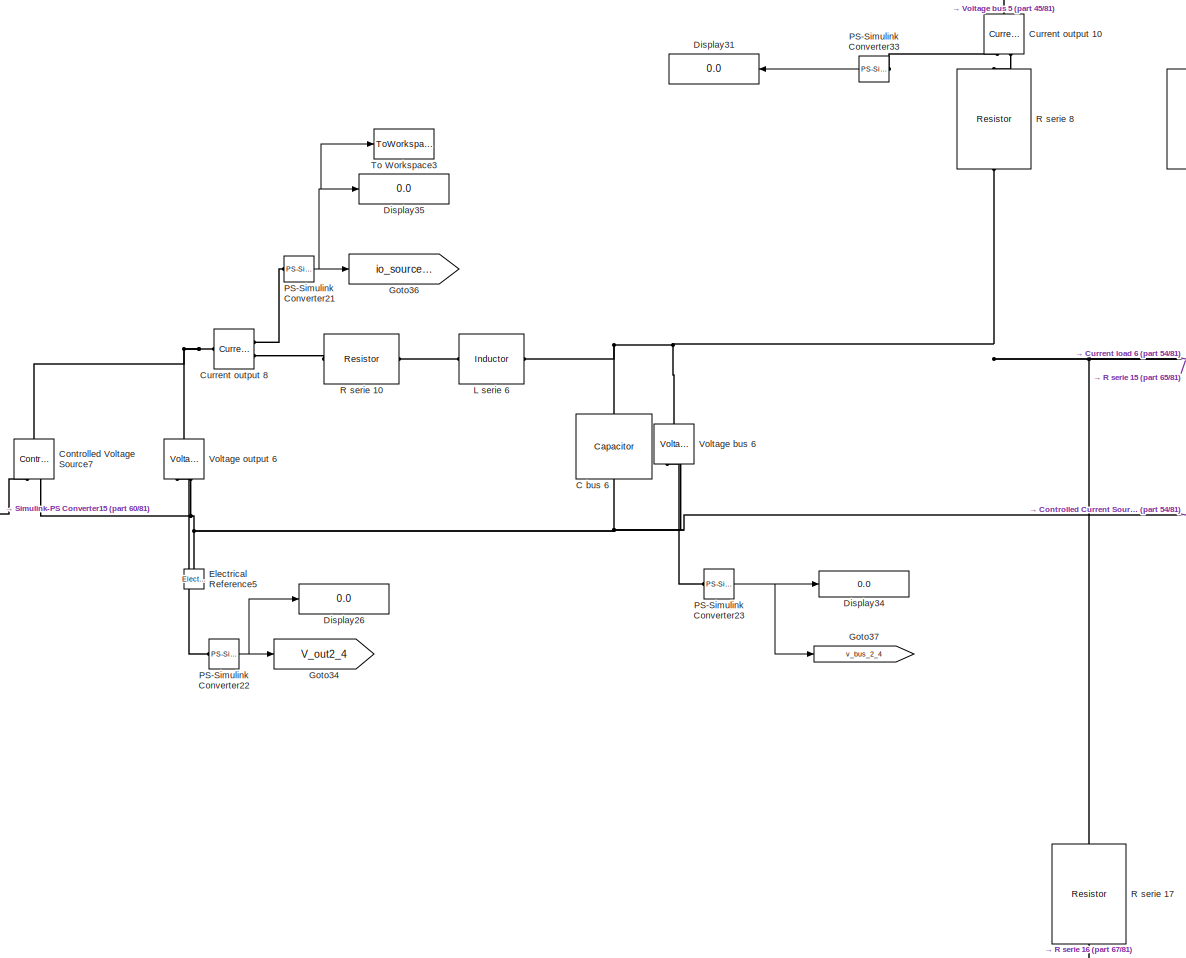
[diagram: root canvas - part 53/81, bottom right region]
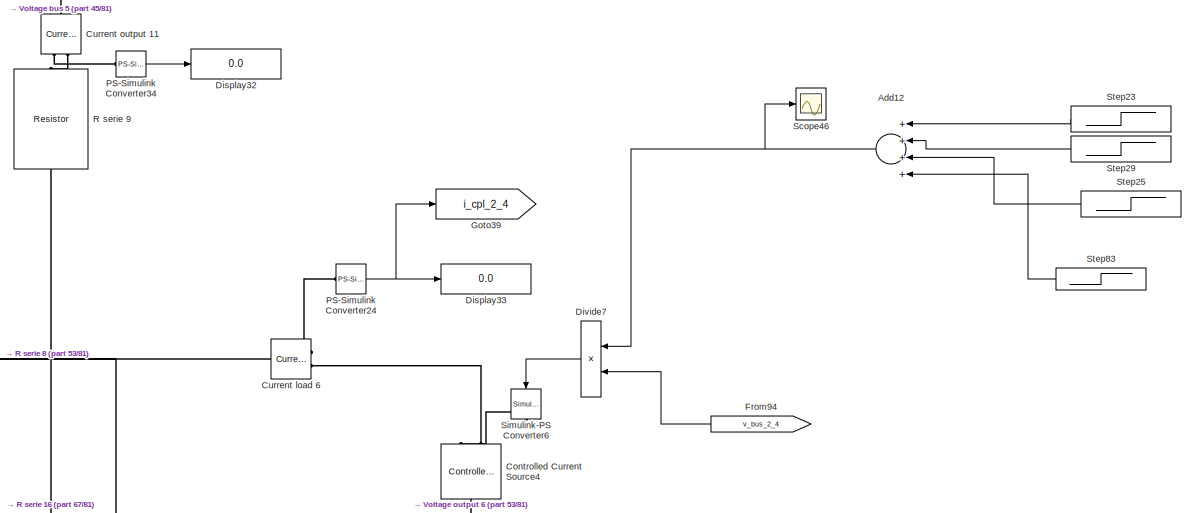
[diagram: root canvas - part 54/81, bottom right region]
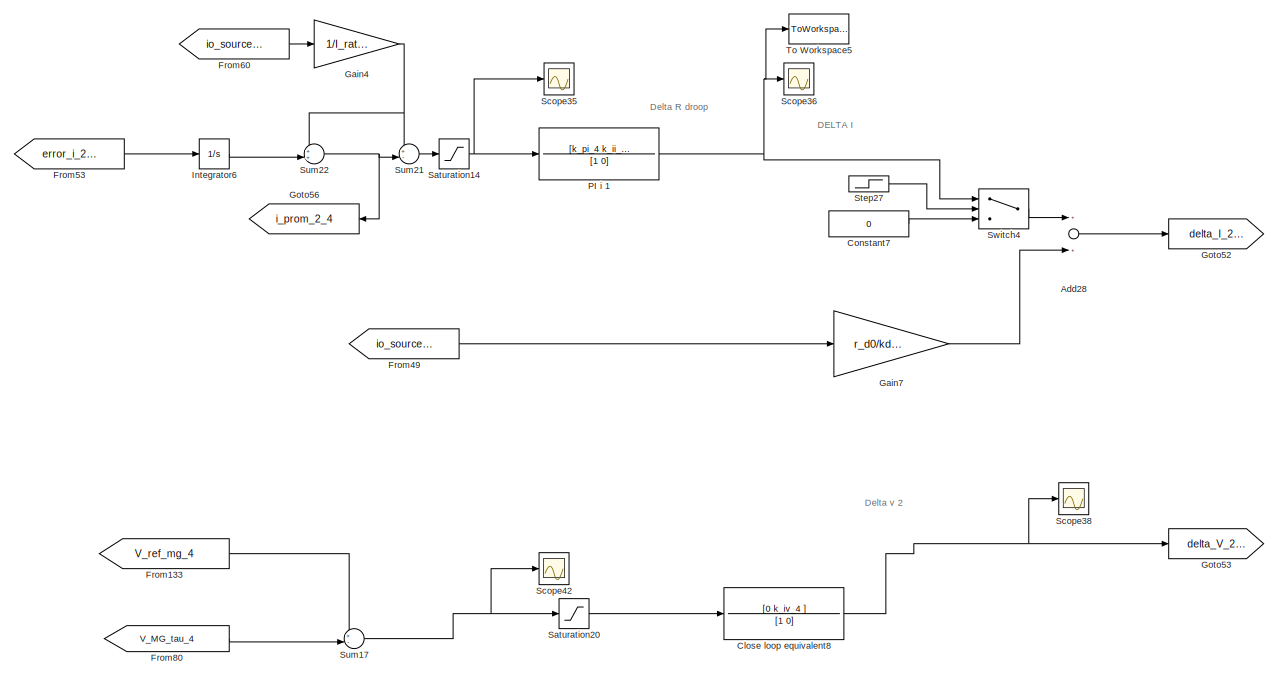
[diagram: root canvas - part 55/81, bottom right region]
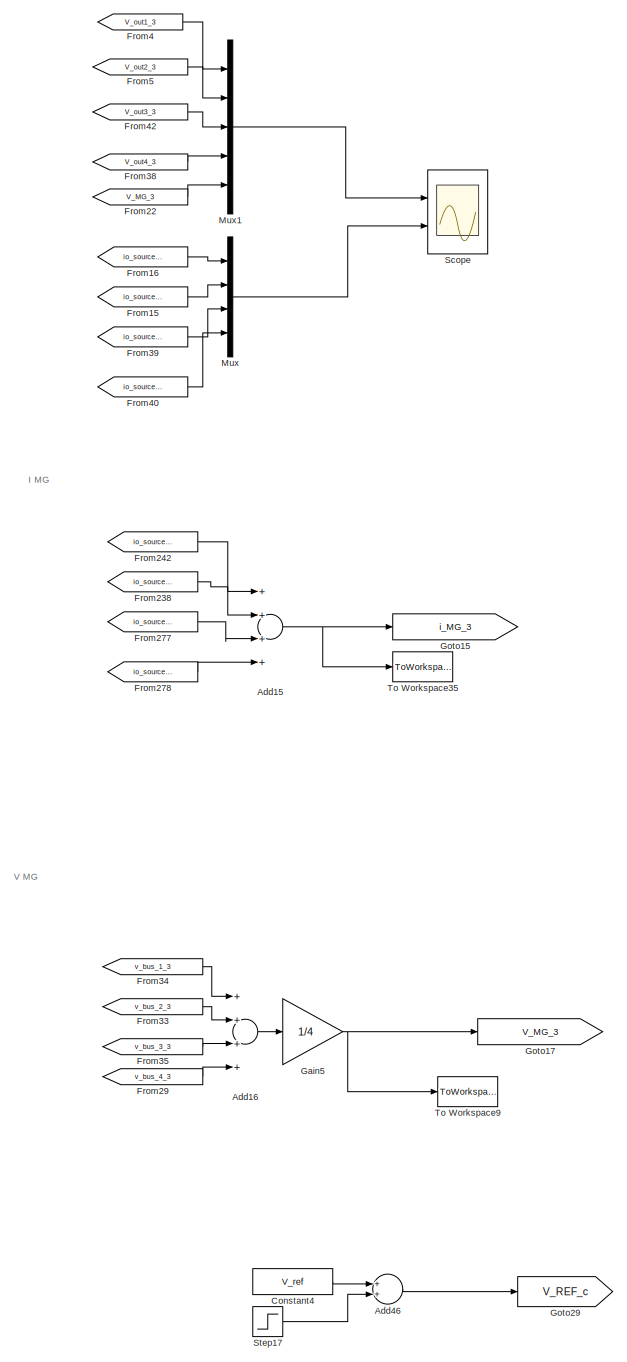
[diagram: root canvas - part 56/81, bottom center region]
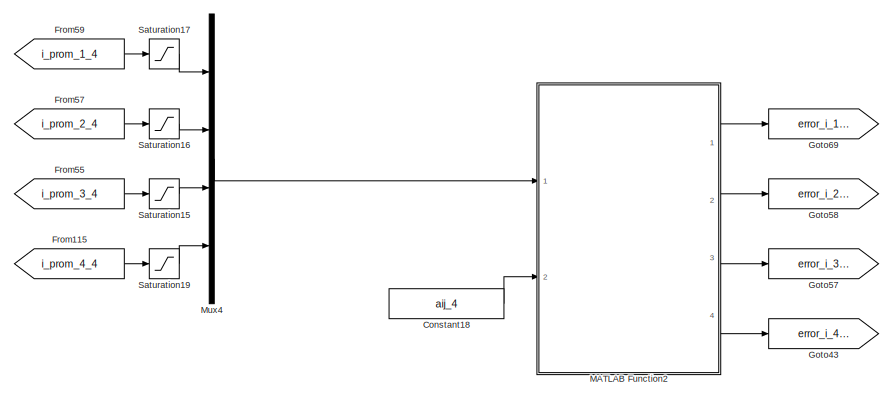
[diagram: root canvas - part 57/81, bottom right region]
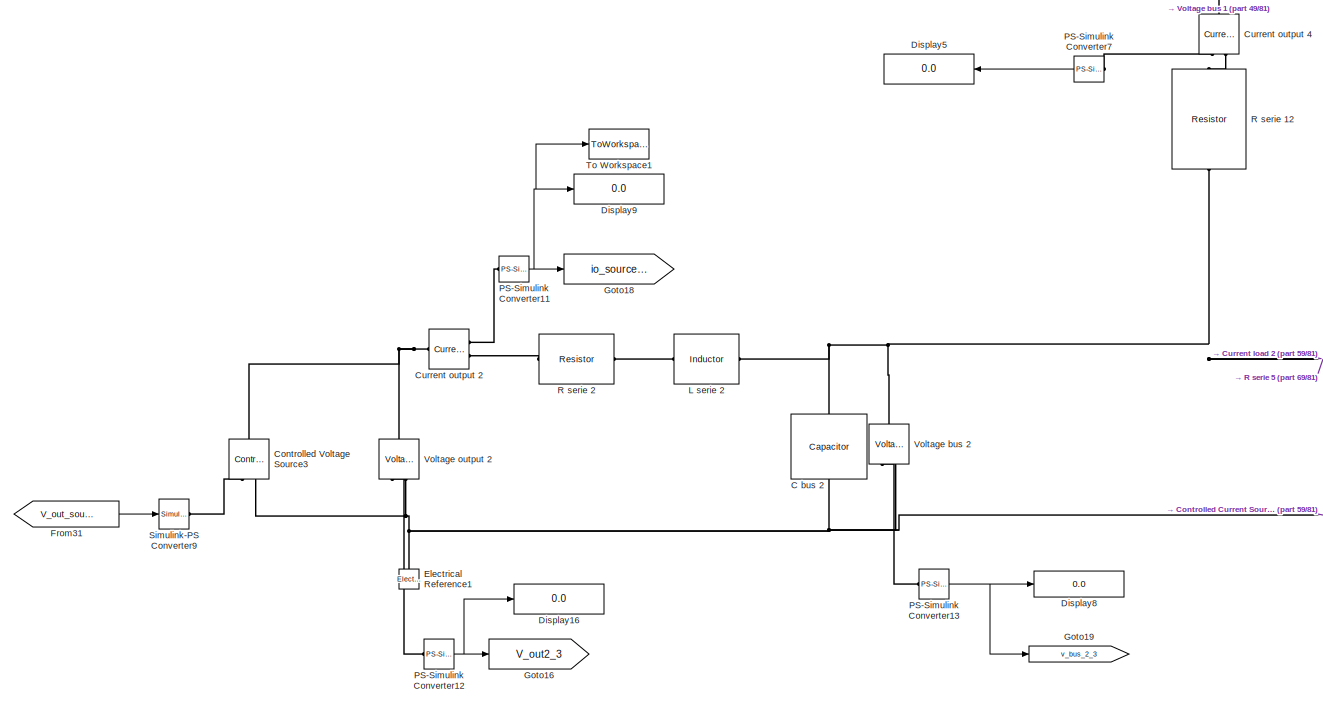
[diagram: root canvas - part 58/81, bottom center region]
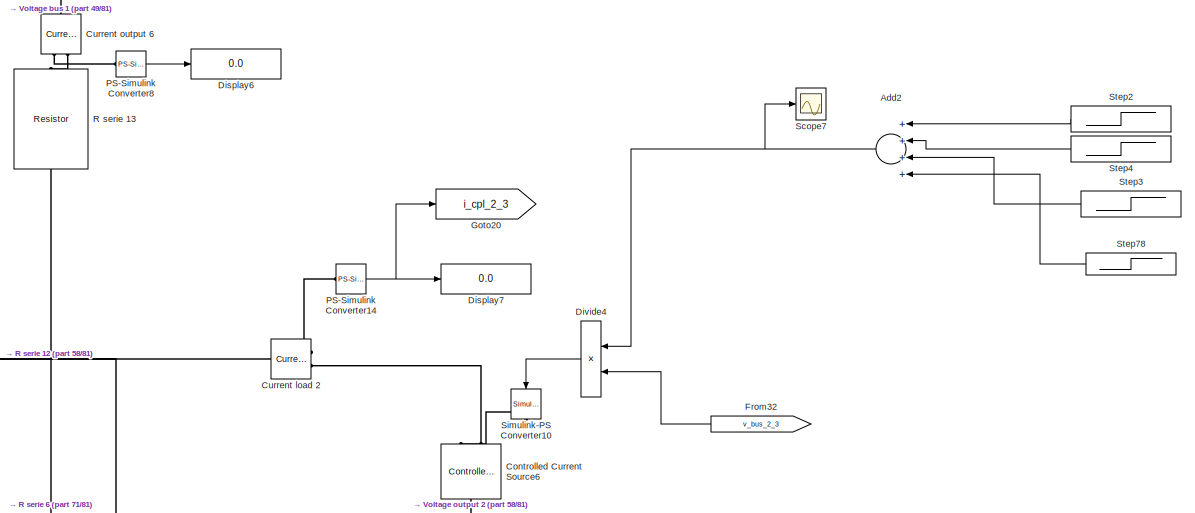
[diagram: root canvas - part 59/81, bottom center region]
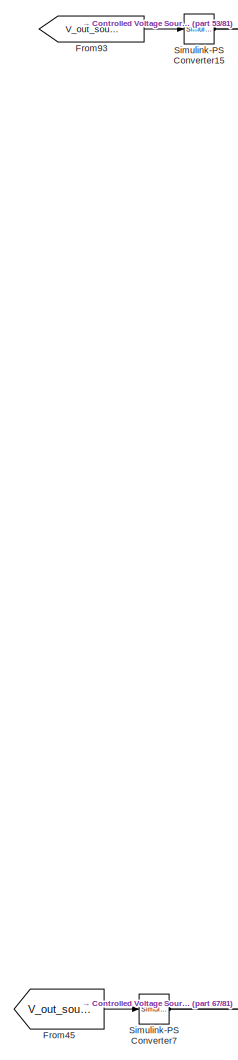
[diagram: root canvas - part 60/81, bottom right region]
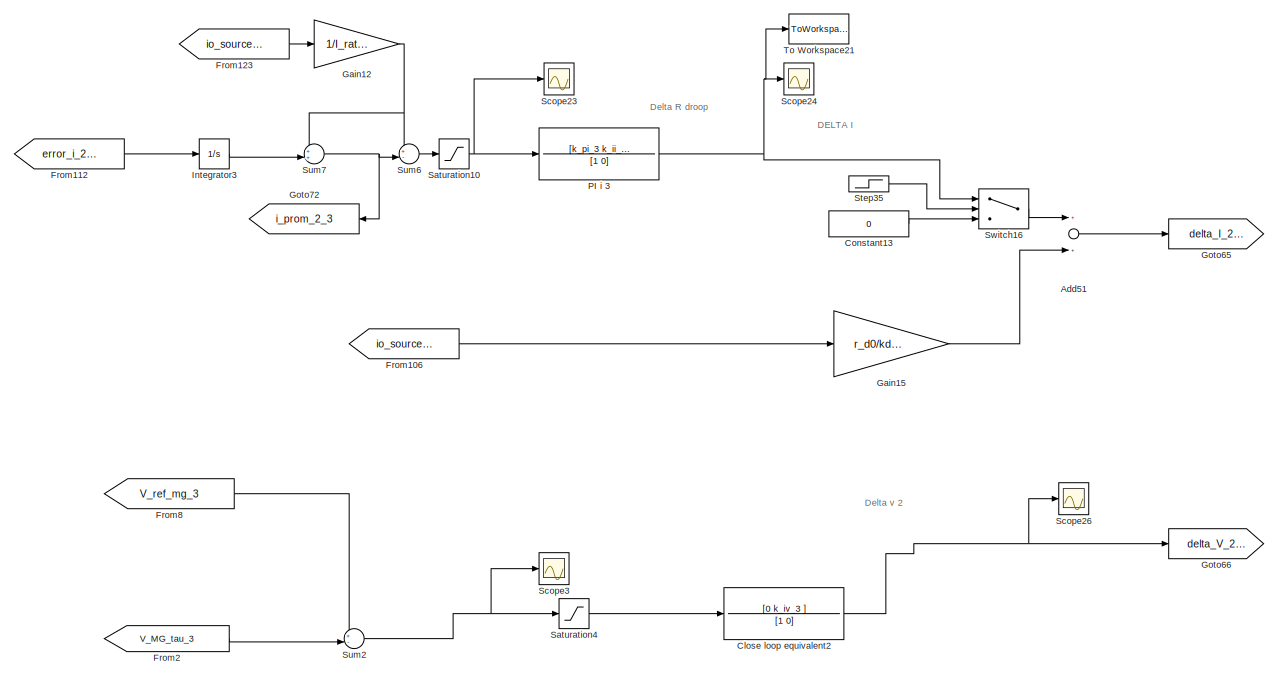
[diagram: root canvas - part 61/81, bottom center region]
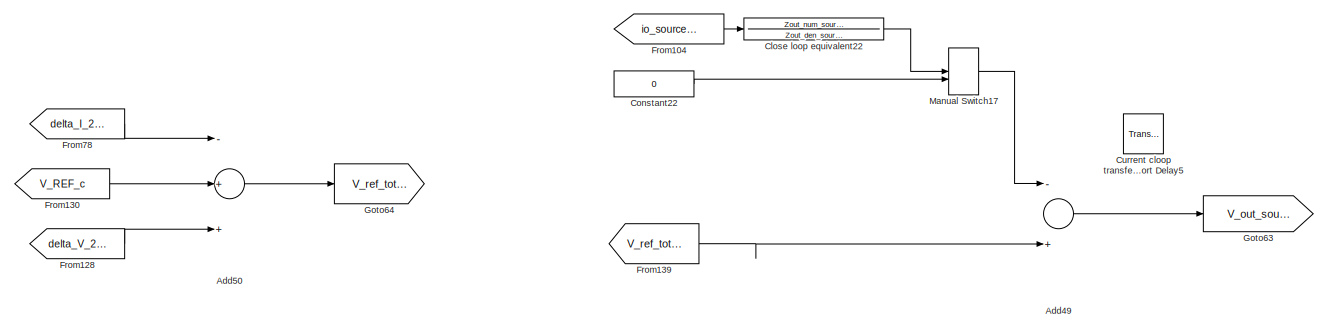
[diagram: root canvas - part 62/81, bottom center region]
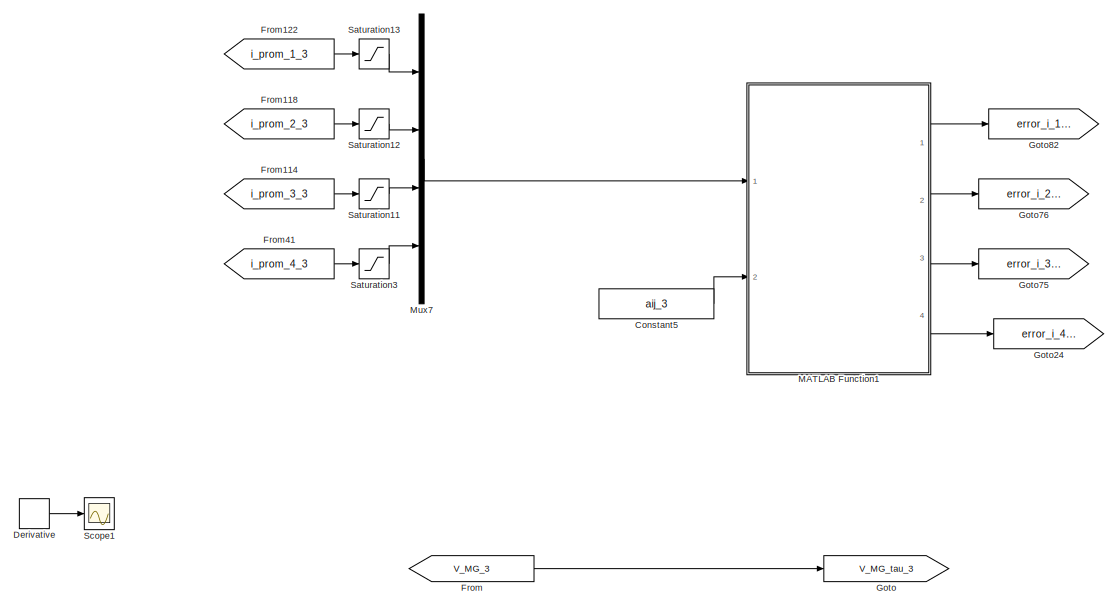
[diagram: root canvas - part 63/81, bottom center region]
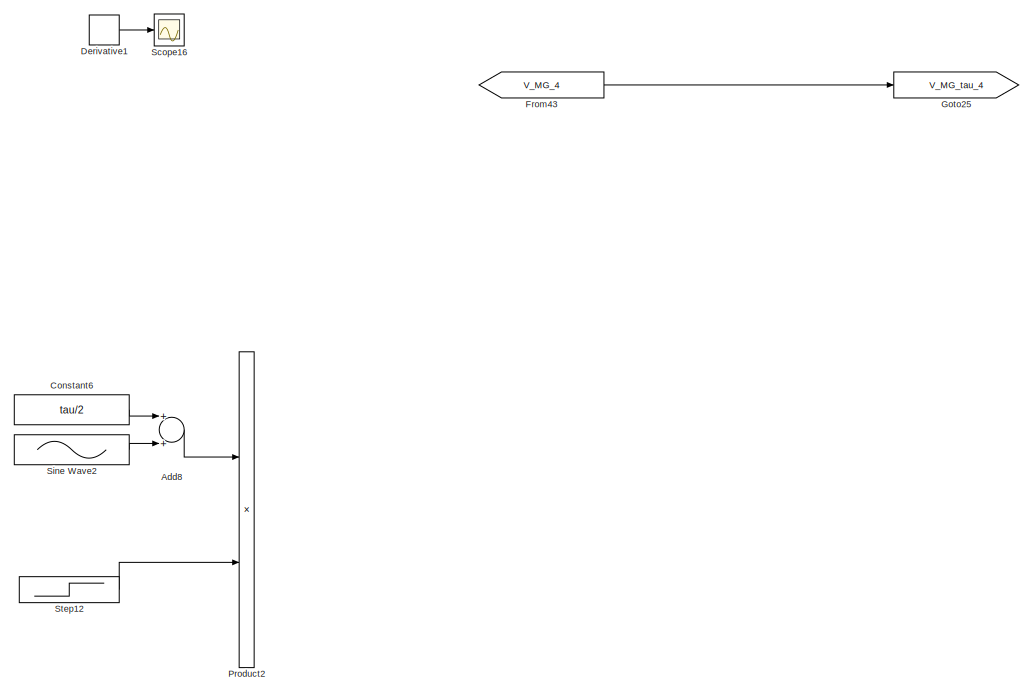
[diagram: root canvas - part 64/81, bottom right region]
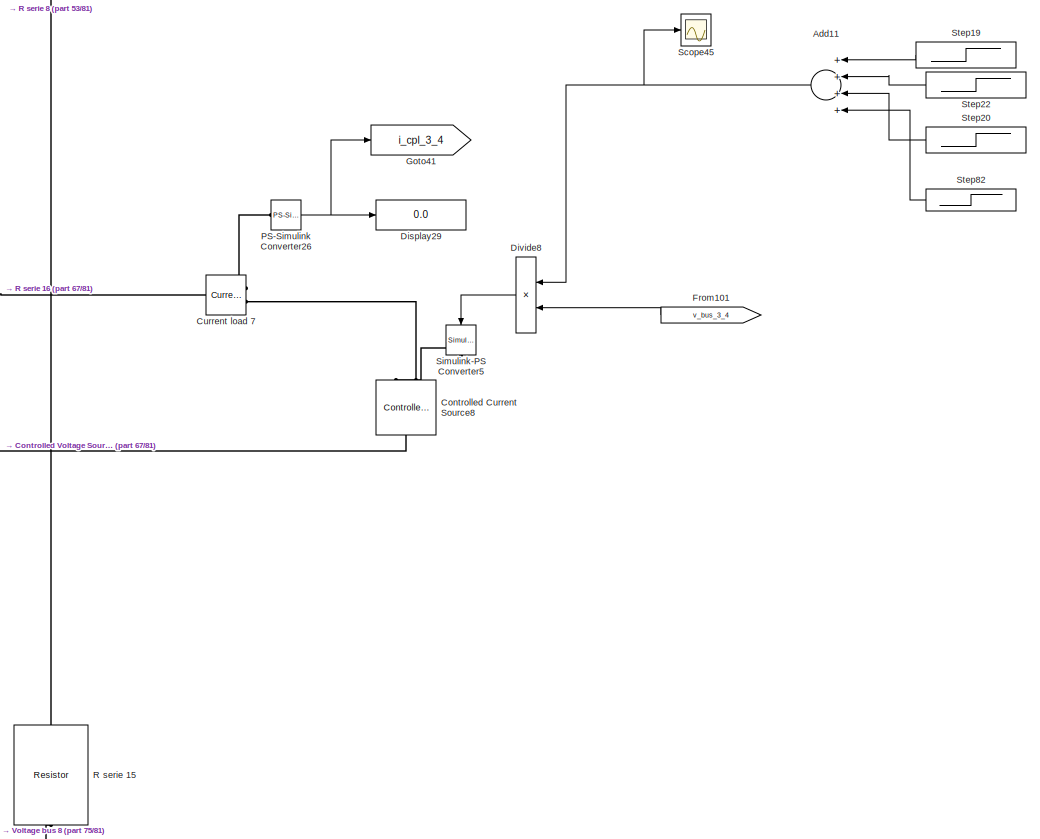
[diagram: root canvas - part 65/81, bottom right region]
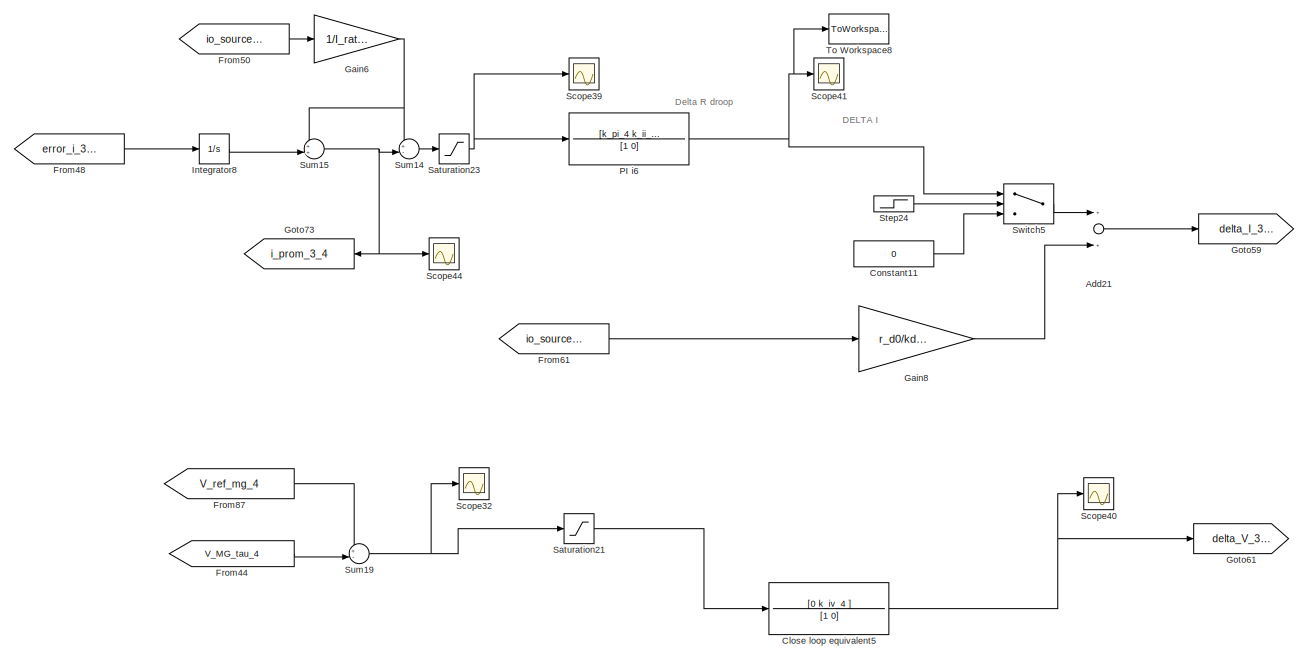
[diagram: root canvas - part 66/81, bottom right region]
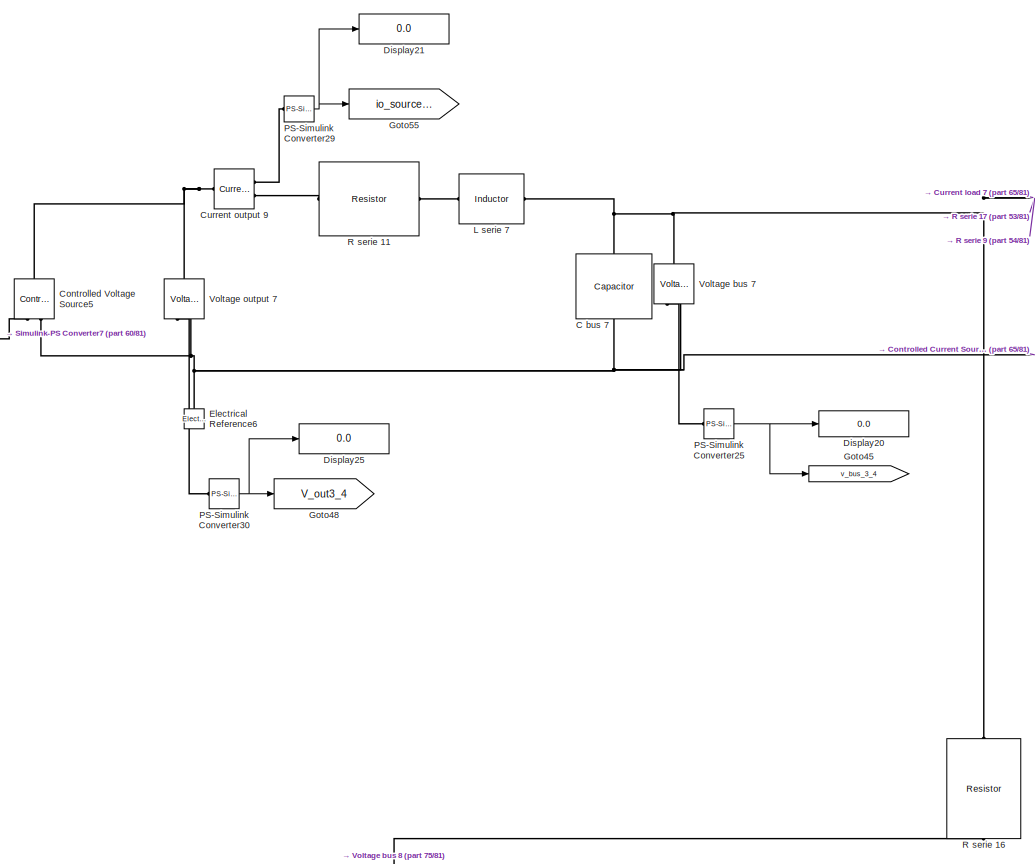
[diagram: root canvas - part 67/81, bottom right region]
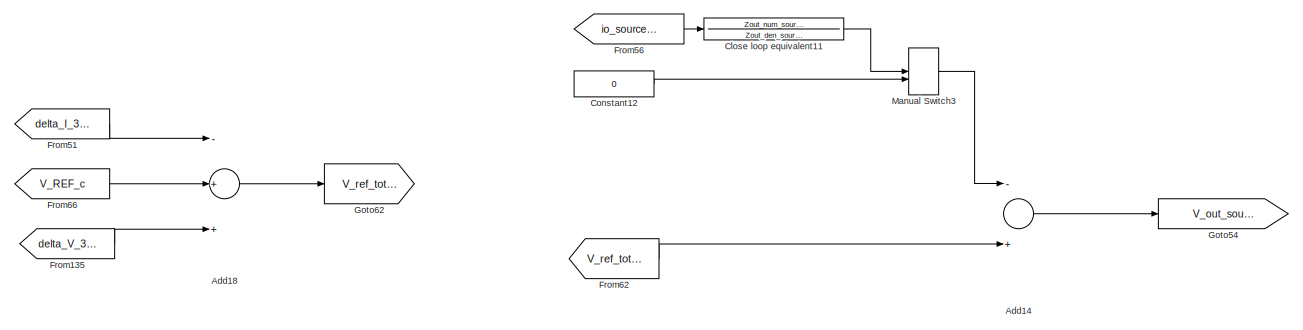
[diagram: root canvas - part 68/81, bottom right region]
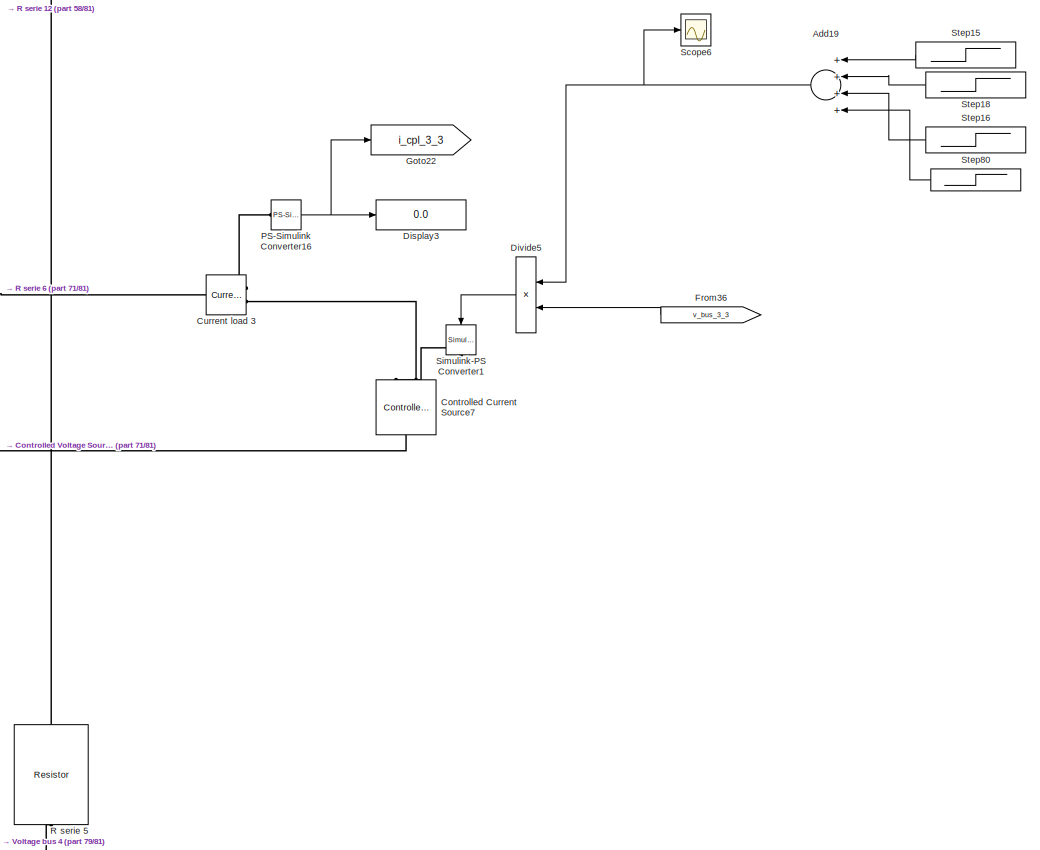
[diagram: root canvas - part 69/81, bottom center region]
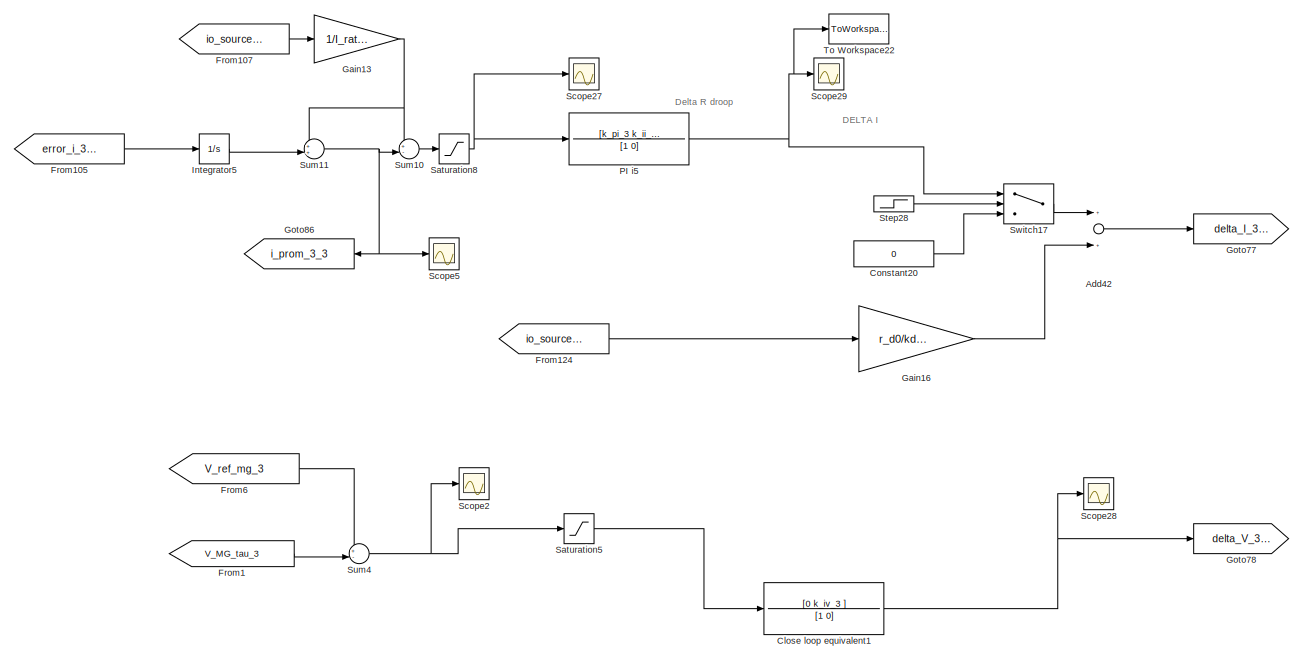
[diagram: root canvas - part 70/81, bottom center region]
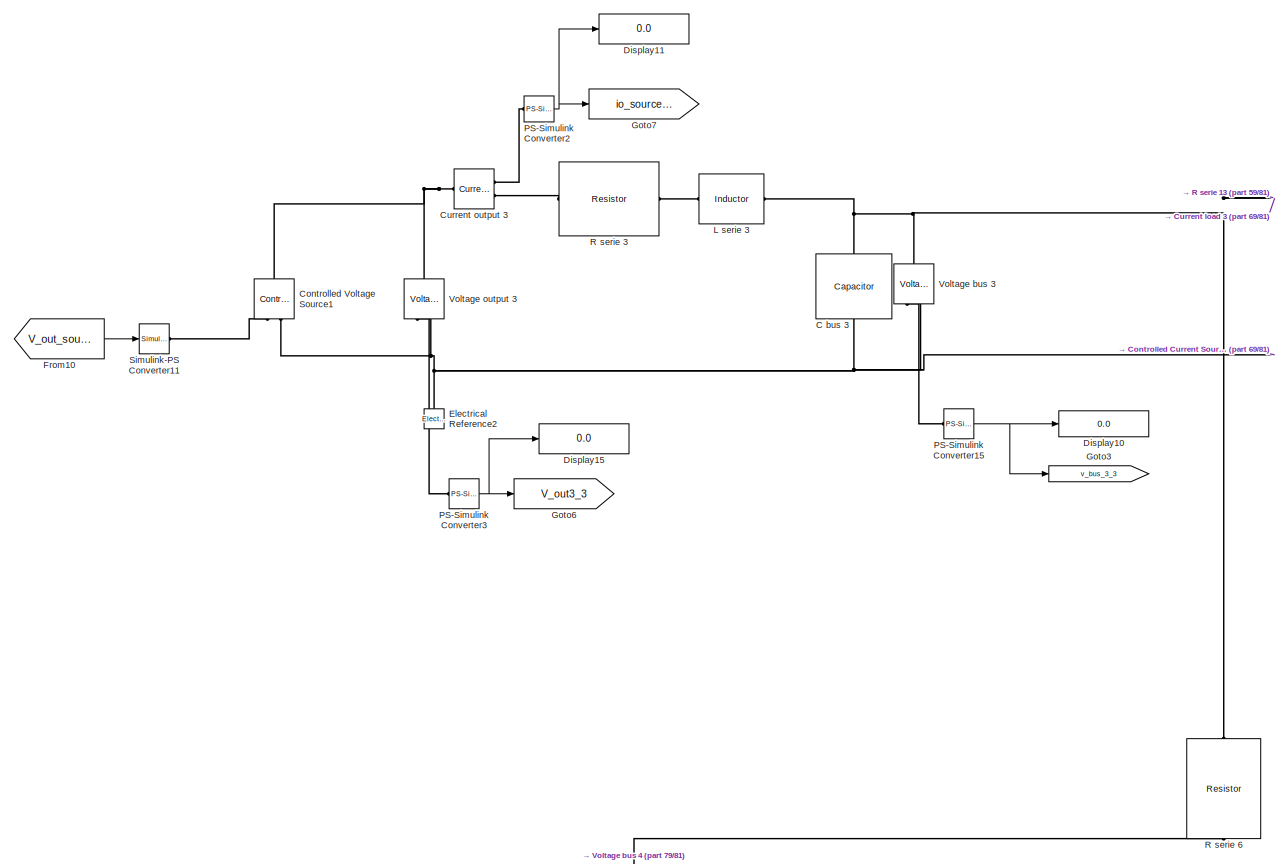
[diagram: root canvas - part 71/81, bottom center region]
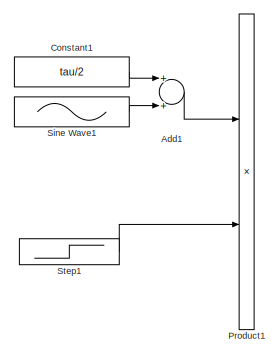
[diagram: root canvas - part 72/81, bottom left region]
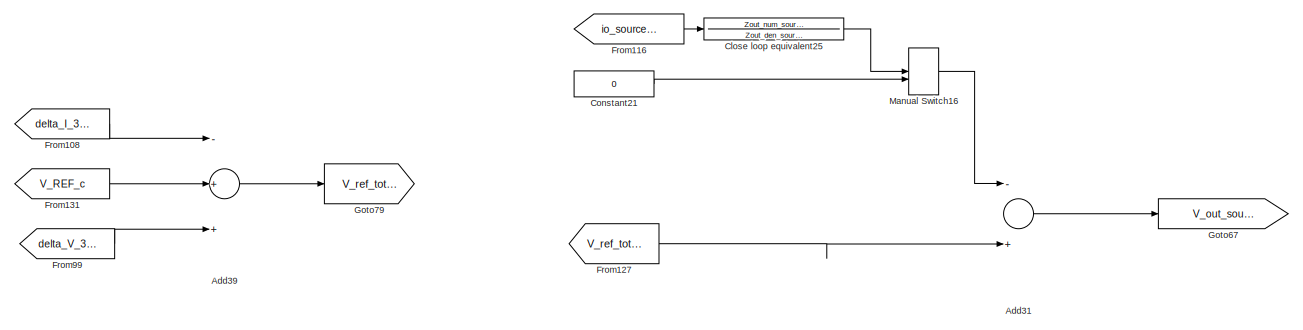
[diagram: root canvas - part 73/81, bottom center region]
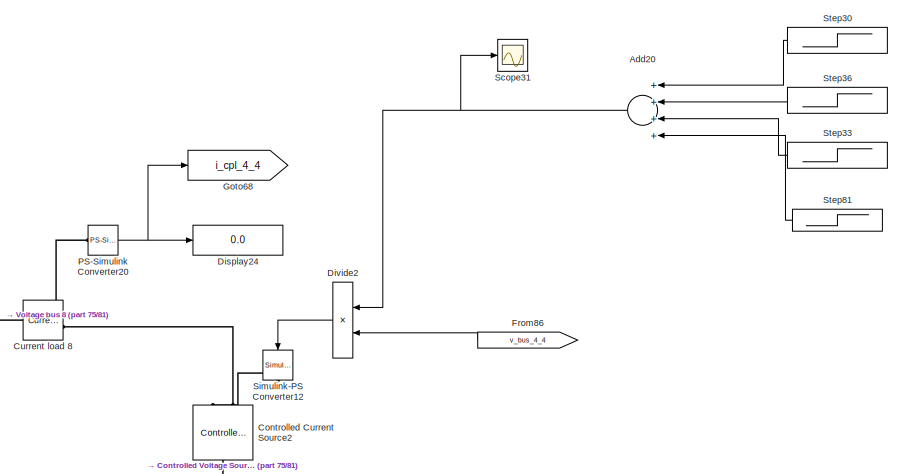
[diagram: root canvas - part 74/81, bottom right region]
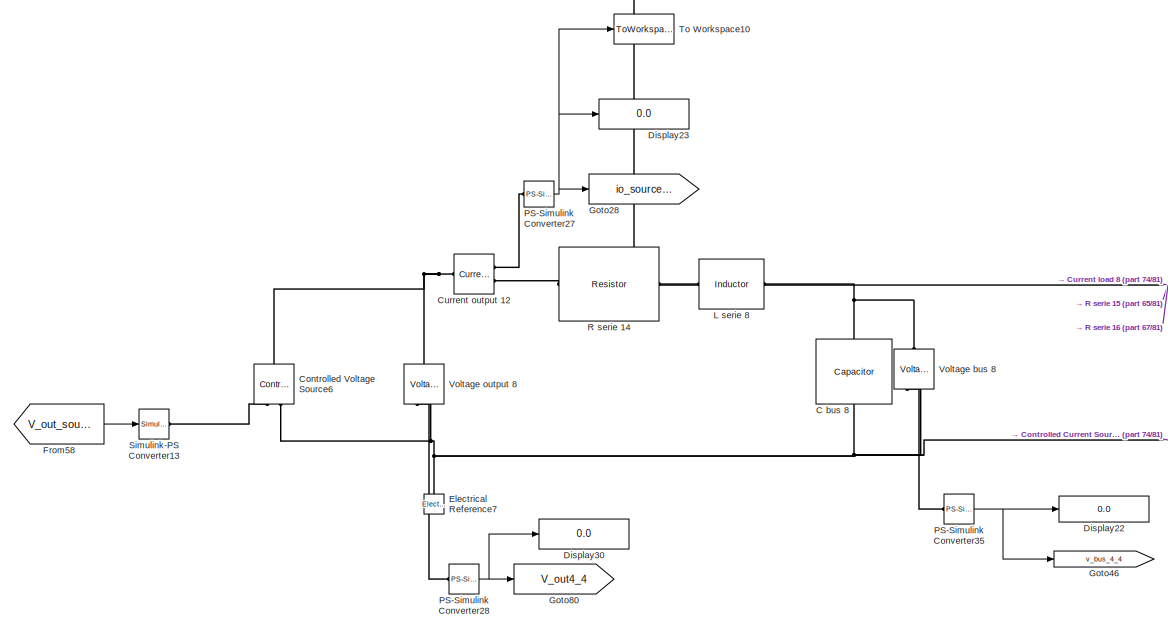
[diagram: root canvas - part 75/81, bottom right region]
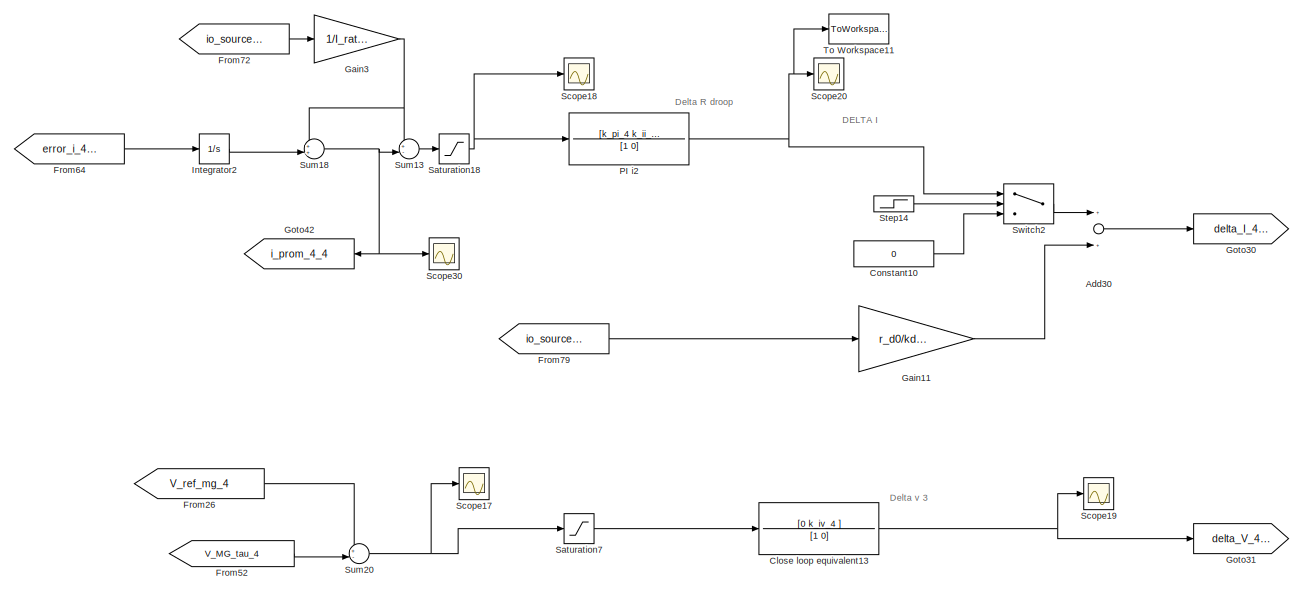
[diagram: root canvas - part 76/81, bottom right region]
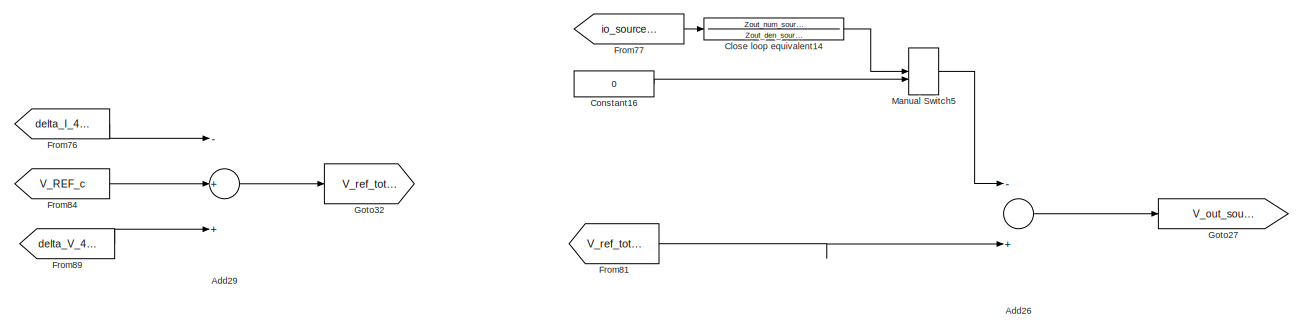
[diagram: root canvas - part 77/81, bottom right region]
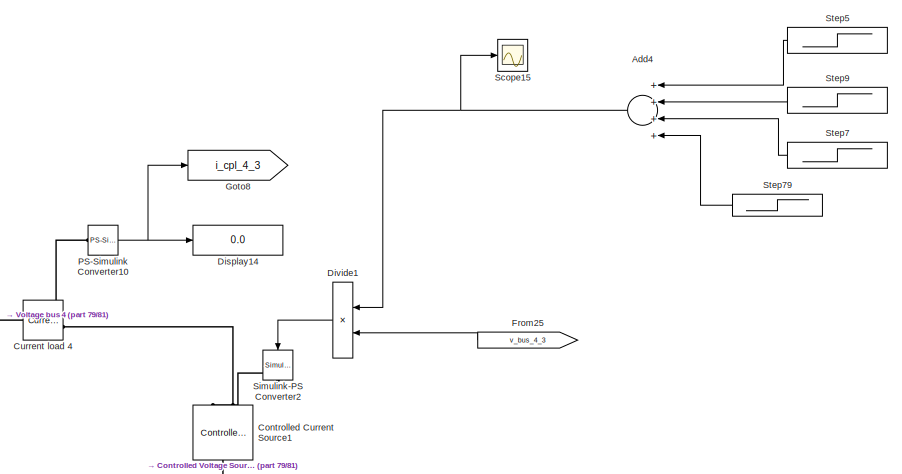
[diagram: root canvas - part 78/81, bottom center region]
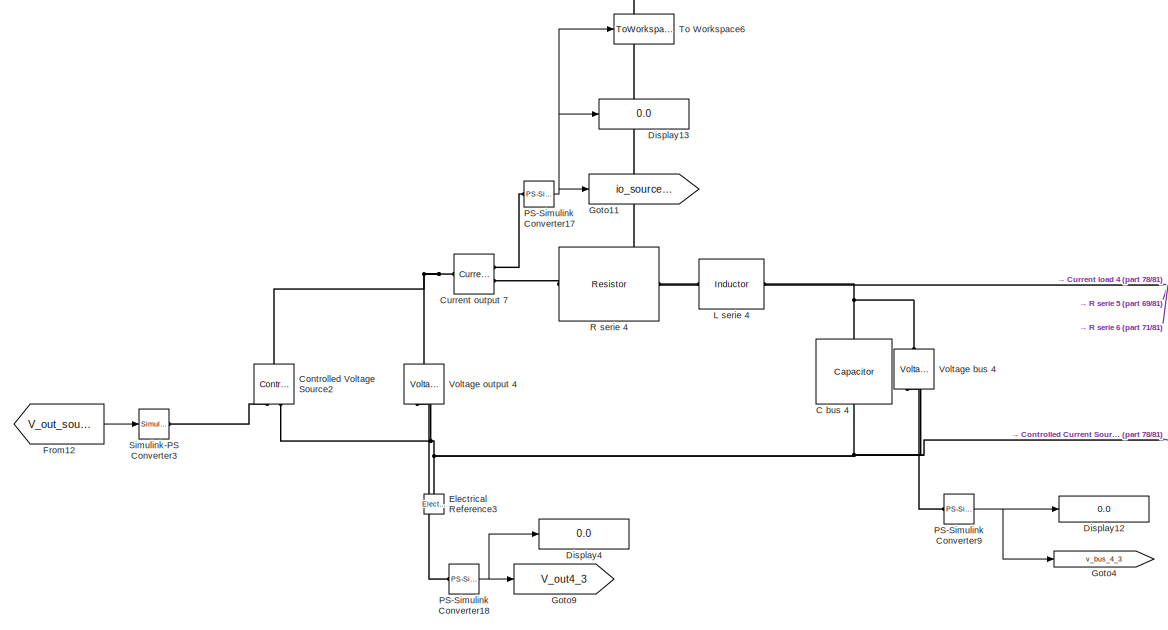
[diagram: root canvas - part 79/81, bottom center region]
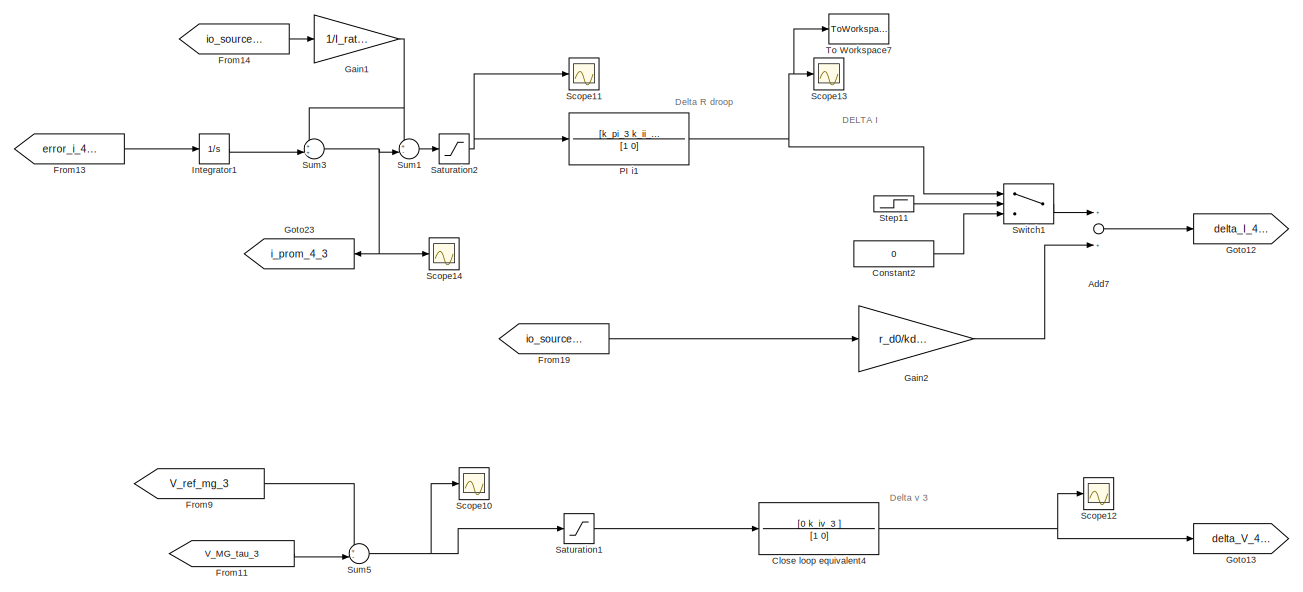
[diagram: root canvas - part 80/81, bottom center region]
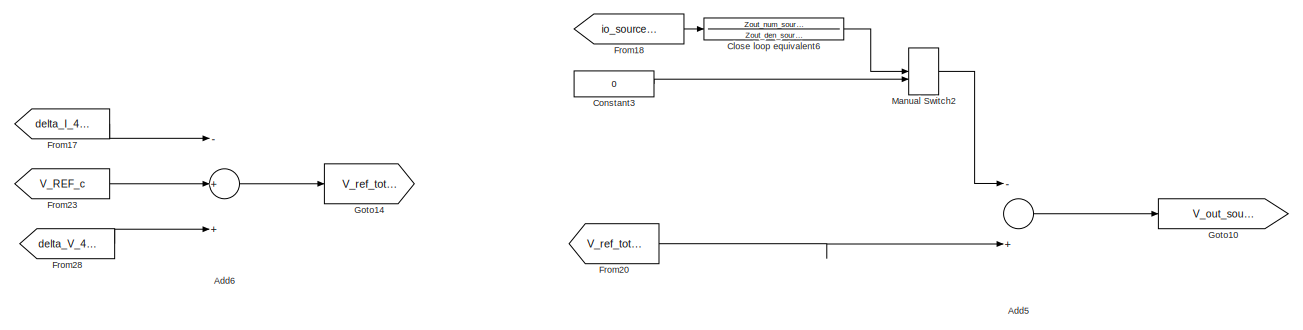
[diagram: root canvas - part 81/81, bottom center region]
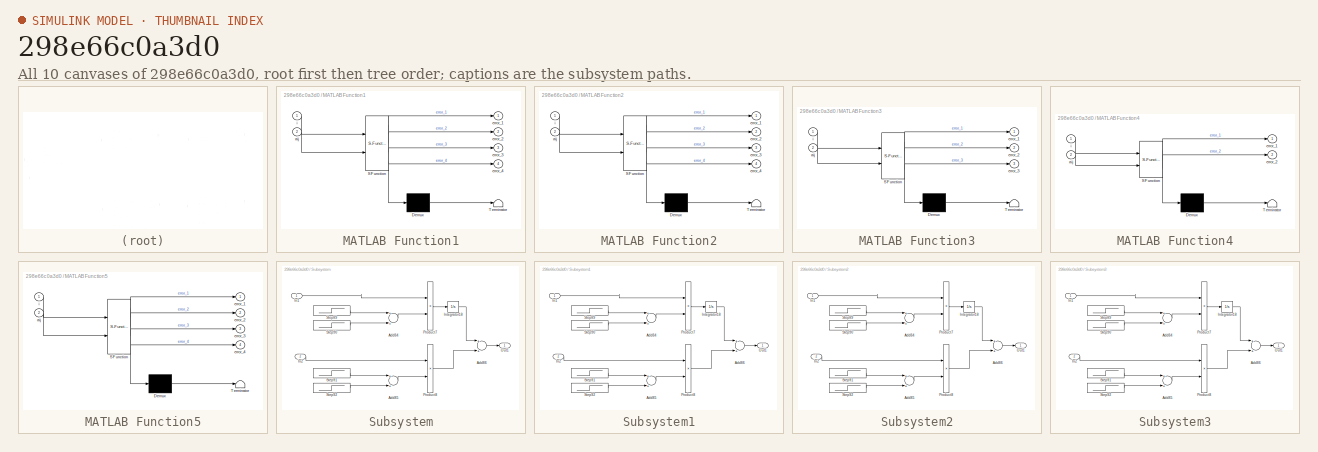
[diagram: thumbnail index - all 10 canvases of the model, root first then tree order]
MODEL slx_298e66c0a3d0
KIND model
CONFIG AbsTol = auto
CONFIG EnableMultiTasking = off
CONFIG FixedStep = 1e-6
CONFIG MaxStep = 1e-3
CONFIG MinStep = auto
CONFIG RelTol = 1e-3
CONFIG SampleTimeConstraint = Unconstrained
CONFIG Solver = VariableStepAuto
CONFIG SolverName = VariableStepAuto
CONFIG StartTime = 0.0
CONFIG StopTime = 50
BLOCK [Sum] Add1
  Commented = on
  InputSameDT = off
  OutDataTypeStr = Inherit: Inherit via internal rule
  Ports = [2, 1]
  SaturateOnIntegerOverflow = off
BLOCK [Sum] Add10
  InputSameDT = off
  Inputs = ++++
  OutDataTypeStr = Inherit: Inherit via internal rule
  Ports = [4, 1]
  SaturateOnIntegerOverflow = off
BLOCK [Sum] Add11
  InputSameDT = off
  Inputs = ++++
  OutDataTypeStr = Inherit: Inherit via internal rule
  Ports = [4, 1]
  SaturateOnIntegerOverflow = off
BLOCK [Sum] Add12
  InputSameDT = off
  Inputs = ++++
  OutDataTypeStr = Inherit: Inherit via internal rule
  Ports = [4, 1]
  SaturateOnIntegerOverflow = off
BLOCK [Sum] Add13
  InputSameDT = off
  Inputs = ++++
  OutDataTypeStr = Inherit: Inherit via internal rule
  Ports = [4, 1]
  SaturateOnIntegerOverflow = off
BLOCK [Sum] Add14
  InputSameDT = off
  Inputs = -+
  OutDataTypeStr = Inherit: Inherit via internal rule
  Ports = [2, 1]
  SaturateOnIntegerOverflow = off
BLOCK [Sum] Add15
  InputSameDT = off
  Inputs = ++++
  OutDataTypeStr = Inherit: Inherit via internal rule
  Ports = [4, 1]
  SaturateOnIntegerOverflow = off
BLOCK [Sum] Add16
  InputSameDT = off
  Inputs = ++++
  OutDataTypeStr = Inherit: Inherit via internal rule
  Ports = [4, 1]
  SaturateOnIntegerOverflow = off
BLOCK [Sum] Add17
  InputSameDT = off
  Inputs = -+
  OutDataTypeStr = Inherit: Inherit via internal rule
  Ports = [2, 1]
  SaturateOnIntegerOverflow = off
BLOCK [Sum] Add18
  InputSameDT = off
  Inputs = -++
  OutDataTypeStr = Inherit: Inherit via internal rule
  Ports = [3, 1]
  SaturateOnIntegerOverflow = off
BLOCK [Sum] Add19
  InputSameDT = off
  Inputs = ++++
  OutDataTypeStr = Inherit: Inherit via internal rule
  Ports = [4, 1]
  SaturateOnIntegerOverflow = off
BLOCK [Sum] Add2
  InputSameDT = off
  Inputs = ++++
  OutDataTypeStr = Inherit: Inherit via internal rule
  Ports = [4, 1]
  SaturateOnIntegerOverflow = off
BLOCK [Sum] Add20
  InputSameDT = off
  Inputs = ++++
  OutDataTypeStr = Inherit: Inherit via internal rule
  Ports = [4, 1]
  SaturateOnIntegerOverflow = off
BLOCK [Sum] Add21
  InputSameDT = off
  OutDataTypeStr = Inherit: Inherit via internal rule
  Ports = [2, 1]
  SaturateOnIntegerOverflow = off
BLOCK [Sum] Add22
  InputSameDT = off
  Inputs = -++
  OutDataTypeStr = Inherit: Inherit via internal rule
  Ports = [3, 1]
  SaturateOnIntegerOverflow = off
BLOCK [Sum] Add23
  InputSameDT = off
  OutDataTypeStr = Inherit: Inherit via internal rule
  Ports = [2, 1]
  SaturateOnIntegerOverflow = off
BLOCK [Sum] Add24
  Commented = on
  InputSameDT = off
  OutDataTypeStr = Inherit: Inherit via internal rule
  Ports = [2, 1]
  SaturateOnIntegerOverflow = off
BLOCK [Sum] Add25
  InputSameDT = off
  Inputs = -+
  OutDataTypeStr = Inherit: Inherit via internal rule
  Ports = [2, 1]
  SaturateOnIntegerOverflow = off
BLOCK [Sum] Add26
  InputSameDT = off
  Inputs = -+
  OutDataTypeStr = Inherit: Inherit via internal rule
  Ports = [2, 1]
  SaturateOnIntegerOverflow = off
BLOCK [Sum] Add27
  InputSameDT = off
  Inputs = -++
  OutDataTypeStr = Inherit: Inherit via internal rule
  Ports = [3, 1]
  SaturateOnIntegerOverflow = off
BLOCK [Sum] Add28
  InputSameDT = off
  OutDataTypeStr = Inherit: Inherit via internal rule
  Ports = [2, 1]
  SaturateOnIntegerOverflow = off
BLOCK [Sum] Add29
  InputSameDT = off
  Inputs = -++
  OutDataTypeStr = Inherit: Inherit via internal rule
  Ports = [3, 1]
  SaturateOnIntegerOverflow = off
BLOCK [Sum] Add3
  InputSameDT = off
  Inputs = ++++
  OutDataTypeStr = Inherit: Inherit via internal rule
  Ports = [4, 1]
  SaturateOnIntegerOverflow = off
BLOCK [Sum] Add30
  InputSameDT = off
  OutDataTypeStr = Inherit: Inherit via internal rule
  Ports = [2, 1]
  SaturateOnIntegerOverflow = off
BLOCK [Sum] Add31
  InputSameDT = off
  Inputs = -+
  OutDataTypeStr = Inherit: Inherit via internal rule
  Ports = [2, 1]
  SaturateOnIntegerOverflow = off
BLOCK [Sum] Add32
  Commented = on
  InputSameDT = off
  OutDataTypeStr = Inherit: Inherit via internal rule
  Ports = [2, 1]
  SaturateOnIntegerOverflow = off
BLOCK [Sum] Add33
  InputSameDT = off
  Inputs = -+
  OutDataTypeStr = Inherit: Inherit via internal rule
  Ports = [2, 1]
  SaturateOnIntegerOverflow = off
BLOCK [Sum] Add34
  InputSameDT = off
  Inputs = +++
  OutDataTypeStr = Inherit: Inherit via internal rule
  Ports = [3, 1]
  SaturateOnIntegerOverflow = off
BLOCK [Sum] Add35
  InputSameDT = off
  Inputs = +++
  OutDataTypeStr = Inherit: Inherit via internal rule
  Ports = [3, 1]
  SaturateOnIntegerOverflow = off
BLOCK [Sum] Add36
  InputSameDT = off
  Inputs = ++++
  OutDataTypeStr = Inherit: Inherit via internal rule
  Ports = [4, 1]
  SaturateOnIntegerOverflow = off
BLOCK [Sum] Add37
  InputSameDT = off
  Inputs = ++++
  OutDataTypeStr = Inherit: Inherit via internal rule
  Ports = [4, 1]
  SaturateOnIntegerOverflow = off
BLOCK [Sum] Add38
  InputSameDT = off
  Inputs = ++++
  OutDataTypeStr = Inherit: Inherit via internal rule
  Ports = [4, 1]
  SaturateOnIntegerOverflow = off
BLOCK [Sum] Add39
  InputSameDT = off
  Inputs = -++
  OutDataTypeStr = Inherit: Inherit via internal rule
  Ports = [3, 1]
  SaturateOnIntegerOverflow = off
BLOCK [Sum] Add4
  InputSameDT = off
  Inputs = ++++
  OutDataTypeStr = Inherit: Inherit via internal rule
  Ports = [4, 1]
  SaturateOnIntegerOverflow = off
BLOCK [Sum] Add40
  InputSameDT = off
  Inputs = -+
  OutDataTypeStr = Inherit: Inherit via internal rule
  Ports = [2, 1]
  SaturateOnIntegerOverflow = off
BLOCK [Sum] Add41
  InputSameDT = off
  Inputs = -+
  OutDataTypeStr = Inherit: Inherit via internal rule
  Ports = [2, 1]
  SaturateOnIntegerOverflow = off
BLOCK [Sum] Add42
  InputSameDT = off
  OutDataTypeStr = Inherit: Inherit via internal rule
  Ports = [2, 1]
  SaturateOnIntegerOverflow = off
BLOCK [Sum] Add43
  InputSameDT = off
  Inputs = -++
  OutDataTypeStr = Inherit: Inherit via internal rule
  Ports = [3, 1]
  SaturateOnIntegerOverflow = off
BLOCK [Sum] Add44
  InputSameDT = off
  Inputs = -++
  OutDataTypeStr = Inherit: Inherit via internal rule
  Ports = [3, 1]
  SaturateOnIntegerOverflow = off
BLOCK [Sum] Add45
  InputSameDT = off
  OutDataTypeStr = Inherit: Inherit via internal rule
  Ports = [2, 1]
  SaturateOnIntegerOverflow = off
BLOCK [Sum] Add46
  Commented = on
  InputSameDT = off
  OutDataTypeStr = Inherit: Inherit via internal rule
  Ports = [2, 1]
  SaturateOnIntegerOverflow = off
BLOCK [Sum] Add47
  Commented = on
  InputSameDT = off
  OutDataTypeStr = Inherit: Inherit via internal rule
  Ports = [2, 1]
  SaturateOnIntegerOverflow = off
BLOCK [Sum] Add48
  InputSameDT = off
  OutDataTypeStr = Inherit: Inherit via internal rule
  Ports = [2, 1]
  SaturateOnIntegerOverflow = off
BLOCK [Sum] Add49
  InputSameDT = off
  Inputs = -+
  OutDataTypeStr = Inherit: Inherit via internal rule
  Ports = [2, 1]
  SaturateOnIntegerOverflow = off
BLOCK [Sum] Add5
  InputSameDT = off
  Inputs = -+
  OutDataTypeStr = Inherit: Inherit via internal rule
  Ports = [2, 1]
  SaturateOnIntegerOverflow = off
BLOCK [Sum] Add50
  InputSameDT = off
  Inputs = -++
  OutDataTypeStr = Inherit: Inherit via internal rule
  Ports = [3, 1]
  SaturateOnIntegerOverflow = off
BLOCK [Sum] Add51
  InputSameDT = off
  OutDataTypeStr = Inherit: Inherit via internal rule
  Ports = [2, 1]
  SaturateOnIntegerOverflow = off
BLOCK [Sum] Add52
  InputSameDT = off
  Inputs = -++
  OutDataTypeStr = Inherit: Inherit via internal rule
  Ports = [3, 1]
  SaturateOnIntegerOverflow = off
BLOCK [Sum] Add53
  InputSameDT = off
  OutDataTypeStr = Inherit: Inherit via internal rule
  Ports = [2, 1]
  SaturateOnIntegerOverflow = off
BLOCK [Sum] Add54
  Commented = on
  InputSameDT = off
  OutDataTypeStr = Inherit: Inherit via internal rule
  Ports = [2, 1]
  SaturateOnIntegerOverflow = off
BLOCK [Sum] Add55
  InputSameDT = off
  Inputs = -+
  OutDataTypeStr = Inherit: Inherit via internal rule
  Ports = [2, 1]
  SaturateOnIntegerOverflow = off
BLOCK [Sum] Add56
  InputSameDT = off
  OutDataTypeStr = Inherit: Inherit via internal rule
  Ports = [2, 1]
  SaturateOnIntegerOverflow = off
BLOCK [Sum] Add57
  InputSameDT = off
  Inputs = -++
  OutDataTypeStr = Inherit: Inherit via internal rule
  Ports = [3, 1]
  SaturateOnIntegerOverflow = off
BLOCK [Sum] Add58
  InputSameDT = off
  OutDataTypeStr = Inherit: Inherit via internal rule
  Ports = [2, 1]
  SaturateOnIntegerOverflow = off
BLOCK [Sum] Add59
  InputSameDT = off
  OutDataTypeStr = Inherit: Inherit via internal rule
  Ports = [2, 1]
  SaturateOnIntegerOverflow = off
BLOCK [Sum] Add6
  InputSameDT = off
  Inputs = -++
  OutDataTypeStr = Inherit: Inherit via internal rule
  Ports = [3, 1]
  SaturateOnIntegerOverflow = off
BLOCK [Sum] Add60
  InputSameDT = off
  Inputs = -+
  OutDataTypeStr = Inherit: Inherit via internal rule
  Ports = [2, 1]
  SaturateOnIntegerOverflow = off
BLOCK [Sum] Add61
  InputSameDT = off
  Inputs = ++++
  OutDataTypeStr = Inherit: Inherit via internal rule
  Ports = [4, 1]
  SaturateOnIntegerOverflow = off
BLOCK [Sum] Add62
  InputSameDT = off
  Inputs = ++++
  OutDataTypeStr = Inherit: Inherit via internal rule
  Ports = [4, 1]
  SaturateOnIntegerOverflow = off
BLOCK [Sum] Add63
  InputSameDT = off
  Inputs = -++
  OutDataTypeStr = Inherit: Inherit via internal rule
  Ports = [3, 1]
  SaturateOnIntegerOverflow = off
BLOCK [Sum] Add64
  InputSameDT = off
  Inputs = -+
  OutDataTypeStr = Inherit: Inherit via internal rule
  Ports = [2, 1]
  SaturateOnIntegerOverflow = off
BLOCK [Sum] Add65
  InputSameDT = off
  Inputs = -+
  OutDataTypeStr = Inherit: Inherit via internal rule
  Ports = [2, 1]
  SaturateOnIntegerOverflow = off
BLOCK [Sum] Add66
  InputSameDT = off
  OutDataTypeStr = Inherit: Inherit via internal rule
  Ports = [2, 1]
  SaturateOnIntegerOverflow = off
BLOCK [Sum] Add67
  InputSameDT = off
  Inputs = -++
  OutDataTypeStr = Inherit: Inherit via internal rule
  Ports = [3, 1]
  SaturateOnIntegerOverflow = off
BLOCK [Sum] Add68
  InputSameDT = off
  OutDataTypeStr = Inherit: Inherit via internal rule
  Ports = [2, 1]
  SaturateOnIntegerOverflow = off
BLOCK [Sum] Add69
  Commented = on
  InputSameDT = off
  OutDataTypeStr = Inherit: Inherit via internal rule
  Ports = [2, 1]
  SaturateOnIntegerOverflow = off
BLOCK [Sum] Add7
  InputSameDT = off
  OutDataTypeStr = Inherit: Inherit via internal rule
  Ports = [2, 1]
  SaturateOnIntegerOverflow = off
BLOCK [Sum] Add70
  InputSameDT = off
  Inputs = -+
  OutDataTypeStr = Inherit: Inherit via internal rule
  Ports = [2, 1]
  SaturateOnIntegerOverflow = off
BLOCK [Sum] Add71
  InputSameDT = off
  Inputs = -++
  OutDataTypeStr = Inherit: Inherit via internal rule
  Ports = [3, 1]
  SaturateOnIntegerOverflow = off
BLOCK [Sum] Add72
  InputSameDT = off
  OutDataTypeStr = Inherit: Inherit via internal rule
  Ports = [2, 1]
  SaturateOnIntegerOverflow = off
BLOCK [Sum] Add73
  InputSameDT = off
  Inputs = ++++
  OutDataTypeStr = Inherit: Inherit via internal rule
  Ports = [4, 1]
  SaturateOnIntegerOverflow = off
BLOCK [Sum] Add74
  InputSameDT = off
  OutDataTypeStr = Inherit: Inherit via internal rule
  Ports = [2, 1]
  SaturateOnIntegerOverflow = off
BLOCK [Sum] Add75
  InputSameDT = off
  Inputs = -++
  OutDataTypeStr = Inherit: Inherit via internal rule
  Ports = [3, 1]
  SaturateOnIntegerOverflow = off
BLOCK [Sum] Add76
  InputSameDT = off
  Inputs = -+
  OutDataTypeStr = Inherit: Inherit via internal rule
  Ports = [2, 1]
  SaturateOnIntegerOverflow = off
BLOCK [Sum] Add77
  InputSameDT = off
  Inputs = -++
  OutDataTypeStr = Inherit: Inherit via internal rule
  Ports = [3, 1]
  SaturateOnIntegerOverflow = off
BLOCK [Sum] Add78
  InputSameDT = off
  Inputs = -+
  OutDataTypeStr = Inherit: Inherit via internal rule
  Ports = [2, 1]
  SaturateOnIntegerOverflow = off
BLOCK [Sum] Add79
  InputSameDT = off
  Inputs = -++
  OutDataTypeStr = Inherit: Inherit via internal rule
  Ports = [3, 1]
  SaturateOnIntegerOverflow = off
BLOCK [Sum] Add8
  Commented = on
  InputSameDT = off
  OutDataTypeStr = Inherit: Inherit via internal rule
  Ports = [2, 1]
  SaturateOnIntegerOverflow = off
BLOCK [Sum] Add80
  InputSameDT = off
  OutDataTypeStr = Inherit: Inherit via internal rule
  Ports = [2, 1]
  SaturateOnIntegerOverflow = off
BLOCK [Sum] Add81
  InputSameDT = off
  Inputs = +++
  OutDataTypeStr = Inherit: Inherit via internal rule
  Ports = [3, 1]
  SaturateOnIntegerOverflow = off
BLOCK [Sum] Add82
  InputSameDT = off
  Inputs = +++
  OutDataTypeStr = Inherit: Inherit via internal rule
  Ports = [3, 1]
  SaturateOnIntegerOverflow = off
BLOCK [Sum] Add83
  InputSameDT = off
  Inputs = +++
  OutDataTypeStr = Inherit: Inherit via internal rule
  Ports = [3, 1]
  SaturateOnIntegerOverflow = off
BLOCK [Sum] Add9
  InputSameDT = off
  Inputs = ++++
  OutDataTypeStr = Inherit: Inherit via internal rule
  Ports = [4, 1]
  SaturateOnIntegerOverflow = off
BLOCK [Reference] C bus 1  REF=elec_lib/Passive Devices/Capacitor
  Ports = [0, 0, 0, 0, 0, 1, 1]
  SourceBlock = elec_lib/Passive Devices/Capacitor
  SourceProductBaseCode = SN
  SourceProductName = Simscape Electronics
  SourceType = Capacitor
BLOCK [Reference] C bus 10  REF=elec_lib/Passive Devices/Capacitor
  Ports = [0, 0, 0, 0, 0, 1, 1]
  SourceBlock = elec_lib/Passive Devices/Capacitor
  SourceProductBaseCode = SN
  SourceProductName = Simscape Electronics
  SourceType = Capacitor
BLOCK [Reference] C bus 11  REF=elec_lib/Passive Devices/Capacitor
  Ports = [0, 0, 0, 0, 0, 1, 1]
  SourceBlock = elec_lib/Passive Devices/Capacitor
  SourceProductBaseCode = SN
  SourceProductName = Simscape Electronics
  SourceType = Capacitor
BLOCK [Reference] C bus 12  REF=elec_lib/Passive Devices/Capacitor
  Ports = [0, 0, 0, 0, 0, 1, 1]
  SourceBlock = elec_lib/Passive Devices/Capacitor
  SourceProductBaseCode = SN
  SourceProductName = Simscape Electronics
  SourceType = Capacitor
BLOCK [Reference] C bus 14  REF=elec_lib/Passive Devices/Capacitor
  Ports = [0, 0, 0, 0, 0, 1, 1]
  SourceBlock = elec_lib/Passive Devices/Capacitor
  SourceProductBaseCode = SN
  SourceProductName = Simscape Electronics
  SourceType = Capacitor
BLOCK [Reference] C bus 2  REF=elec_lib/Passive Devices/Capacitor
  Ports = [0, 0, 0, 0, 0, 1, 1]
  SourceBlock = elec_lib/Passive Devices/Capacitor
  SourceProductBaseCode = SN
  SourceProductName = Simscape Electronics
  SourceType = Capacitor
BLOCK [Reference] C bus 3  REF=elec_lib/Passive Devices/Capacitor
  Ports = [0, 0, 0, 0, 0, 1, 1]
  SourceBlock = elec_lib/Passive Devices/Capacitor
  SourceProductBaseCode = SN
  SourceProductName = Simscape Electronics
  SourceType = Capacitor
BLOCK [Reference] C bus 4  REF=elec_lib/Passive Devices/Capacitor
  Ports = [0, 0, 0, 0, 0, 1, 1]
  SourceBlock = elec_lib/Passive Devices/Capacitor
  SourceProductBaseCode = SN
  SourceProductName = Simscape Electronics
  SourceType = Capacitor
BLOCK [Reference] C bus 5  REF=elec_lib/Passive Devices/Capacitor
  Ports = [0, 0, 0, 0, 0, 1, 1]
  SourceBlock = elec_lib/Passive Devices/Capacitor
  SourceProductBaseCode = SN
  SourceProductName = Simscape Electronics
  SourceType = Capacitor
BLOCK [Reference] C bus 6  REF=elec_lib/Passive Devices/Capacitor
  Ports = [0, 0, 0, 0, 0, 1, 1]
  SourceBlock = elec_lib/Passive Devices/Capacitor
  SourceProductBaseCode = SN
  SourceProductName = Simscape Electronics
  SourceType = Capacitor
BLOCK [Reference] C bus 7  REF=elec_lib/Passive Devices/Capacitor
  Ports = [0, 0, 0, 0, 0, 1, 1]
  SourceBlock = elec_lib/Passive Devices/Capacitor
  SourceProductBaseCode = SN
  SourceProductName = Simscape Electronics
  SourceType = Capacitor
BLOCK [Reference] C bus 8  REF=elec_lib/Passive Devices/Capacitor
  Ports = [0, 0, 0, 0, 0, 1, 1]
  SourceBlock = elec_lib/Passive Devices/Capacitor
  SourceProductBaseCode = SN
  SourceProductName = Simscape Electronics
  SourceType = Capacitor
BLOCK [Reference] C bus 9  REF=elec_lib/Passive Devices/Capacitor
  Ports = [0, 0, 0, 0, 0, 1, 1]
  SourceBlock = elec_lib/Passive Devices/Capacitor
  SourceProductBaseCode = SN
  SourceProductName = Simscape Electronics
  SourceType = Capacitor
BLOCK [TransferFcn] Close loop equivalent1
  Denominator = [1 0]
  Numerator = [0 k_iv_3 ]
BLOCK [TransferFcn] Close loop equivalent10
  Commented = on
  Denominator = Zout_den_source
  Numerator = Zout_num_source
BLOCK [TransferFcn] Close loop equivalent11
  Commented = on
  Denominator = Zout_den_source
  Numerator = Zout_num_source
BLOCK [TransferFcn] Close loop equivalent12
  Denominator = [1 0]
  Numerator = [0 k_iv_4 ]
BLOCK [TransferFcn] Close loop equivalent13
  Denominator = [1 0]
  Numerator = [0 k_iv_4 ]
BLOCK [TransferFcn] Close loop equivalent14
  Commented = on
  Denominator = Zout_den_source
  Numerator = Zout_num_source
BLOCK [TransferFcn] Close loop equivalent15
  Denominator = [1 0]
  Numerator = [0 k_iv_1 ]
BLOCK [TransferFcn] Close loop equivalent16
  Commented = on
  Denominator = [tau 1]
  Numerator = [1 ]
BLOCK [TransferFcn] Close loop equivalent17
  Denominator = [1 0]
  Numerator = [0 k_iv_1 ]
BLOCK [TransferFcn] Close loop equivalent18
  Commented = on
  Denominator = Zout_den_source
  Numerator = Zout_num_source
BLOCK [TransferFcn] Close loop equivalent19
  Commented = on
  Denominator = [tau 1]
  Numerator = [1 ]
BLOCK [TransferFcn] Close loop equivalent2
  Denominator = [1 0]
  Numerator = [0 k_iv_3 ]
BLOCK [TransferFcn] Close loop equivalent20
  Commented = on
  Denominator = Zout_den_source
  Numerator = Zout_num_source
BLOCK [TransferFcn] Close loop equivalent21
  Commented = on
  Denominator = Zout_den_source
  Numerator = Zout_num_source
BLOCK [TransferFcn] Close loop equivalent22
  Commented = on
  Denominator = Zout_den_source
  Numerator = Zout_num_source
BLOCK [TransferFcn] Close loop equivalent23
  Commented = on
  Denominator = Zout_den_source
  Numerator = Zout_num_source
BLOCK [TransferFcn] Close loop equivalent24
  Denominator = [1 0]
  Numerator = [0 k_iv_1 ]
BLOCK [TransferFcn] Close loop equivalent25
  Commented = on
  Denominator = Zout_den_source
  Numerator = Zout_num_source
BLOCK [TransferFcn] Close loop equivalent26
  Commented = on
  Denominator = [tau 1]
  Numerator = [1 ]
BLOCK [TransferFcn] Close loop equivalent27
  Commented = on
  Denominator = [tau 1]
  Numerator = [1 ]
BLOCK [TransferFcn] Close loop equivalent28
  Denominator = [1 0]
  Numerator = [0 k_iv_2 ]
BLOCK [TransferFcn] Close loop equivalent29
  Commented = on
  Denominator = Zout_den_source
  Numerator = Zout_num_source
BLOCK [TransferFcn] Close loop equivalent3
  Denominator = [1 0]
  Numerator = [0 k_iv_3 ]
BLOCK [TransferFcn] Close loop equivalent30
  Commented = on
  Denominator = Zout_den_source
  Numerator = Zout_num_source
BLOCK [TransferFcn] Close loop equivalent31
  Commented = on
  Denominator = Zout_den_source
  Numerator = Zout_num_source
BLOCK [TransferFcn] Close loop equivalent32
  Denominator = [1 0]
  Numerator = [0 k_iv_2 ]
BLOCK [TransferFcn] Close loop equivalent33
  Denominator = [1 0]
  Numerator = [0 k_iv ]
BLOCK [TransferFcn] Close loop equivalent34
  Commented = on
  Denominator = [tau 1]
  Numerator = [1 ]
BLOCK [TransferFcn] Close loop equivalent35
  Commented = on
  Denominator = Zout_den_source
  Numerator = Zout_num_source
BLOCK [TransferFcn] Close loop equivalent36
  Denominator = [1 0]
  Numerator = [0 k_iv ]
BLOCK [TransferFcn] Close loop equivalent37
  Commented = on
  Denominator = [tau 1]
  Numerator = [1 ]
BLOCK [TransferFcn] Close loop equivalent38
  Commented = on
  Denominator = Zout_den_source
  Numerator = Zout_num_source
BLOCK [TransferFcn] Close loop equivalent39
  Denominator = [1 0]
  Numerator = [0 k_iv ]
BLOCK [TransferFcn] Close loop equivalent4
  Denominator = [1 0]
  Numerator = [0 k_iv_3 ]
BLOCK [TransferFcn] Close loop equivalent40
  Commented = on
  Denominator = [tau 1]
  Numerator = [1 ]
BLOCK [TransferFcn] Close loop equivalent41
  Commented = on
  Denominator = Zout_den_source
  Numerator = Zout_num_source
BLOCK [TransferFcn] Close loop equivalent42
  Denominator = [1 0]
  Numerator = [0 k_iv ]
BLOCK [TransferFcn] Close loop equivalent5
  Denominator = [1 0]
  Numerator = [0 k_iv_4 ]
BLOCK [TransferFcn] Close loop equivalent6
  Commented = on
  Denominator = Zout_den_source
  Numerator = Zout_num_source
BLOCK [TransferFcn] Close loop equivalent7
  Commented = on
  Denominator = [tau 1]
  Numerator = [1 ]
BLOCK [TransferFcn] Close loop equivalent8
  Denominator = [1 0]
  Numerator = [0 k_iv_4 ]
BLOCK [TransferFcn] Close loop equivalent9
  Commented = on
  Denominator = Zout_den_source
  Numerator = Zout_num_source
BLOCK [Constant] Constant1
  Commented = on
  Value = tau/2
BLOCK [Constant] Constant10
  Value = 0
BLOCK [Constant] Constant11
  Value = 0
BLOCK [Constant] Constant12
  Value = 0
BLOCK [Constant] Constant13
  Value = 0
BLOCK [Constant] Constant14
  Value = 0
BLOCK [Constant] Constant15
  Value = 0
BLOCK [Constant] Constant16
  Value = 0
BLOCK [Constant] Constant17
  Commented = on
  Value = V_ref
BLOCK [Constant] Constant18
  Value = aij_4
BLOCK [Constant] Constant19
  Value = 0
BLOCK [Constant] Constant2
  Value = 0
BLOCK [Constant] Constant20
  Value = 0
BLOCK [Constant] Constant21
  Value = 0
BLOCK [Constant] Constant22
  Value = 0
BLOCK [Constant] Constant23
  Commented = on
  Value = tau/2
BLOCK [Constant] Constant24
  Value = 0
BLOCK [Constant] Constant25
  Value = 0
BLOCK [Constant] Constant26
  Value = 0
BLOCK [Constant] Constant27
  Commented = on
  Value = tau/2
BLOCK [Constant] Constant28
  Value = 0
BLOCK [Constant] Constant29
  Value = 0
BLOCK [Constant] Constant3
  Value = 0
BLOCK [Constant] Constant30
  Value = 0
BLOCK [Constant] Constant31
  Value = 0
BLOCK [Constant] Constant32
  Commented = on
  Value = V_ref
BLOCK [Constant] Constant33
  Value = aij_1
BLOCK [Constant] Constant34
  Value = 0
BLOCK [Constant] Constant35
  Value = 0
BLOCK [Constant] Constant36
  Value = 0
BLOCK [Constant] Constant37
  Value = 0
BLOCK [Constant] Constant38
  Value = 0
BLOCK [Constant] Constant39
  Commented = on
  Value = V_ref
BLOCK [Constant] Constant4
  Commented = on
  Value = V_ref
BLOCK [Constant] Constant40
  Value = aij_2
BLOCK [Constant] Constant41
  Value = tau*3/4
BLOCK [Constant] Constant42
  Value = aij
BLOCK [Constant] Constant43
  Value = V_ref
BLOCK [Constant] Constant44
  Value = 0
BLOCK [Constant] Constant45
  Value = 0
BLOCK [Constant] Constant46
  Value = 0
BLOCK [Constant] Constant47
  Value = 0
BLOCK [Constant] Constant48
  Value = 0
BLOCK [Constant] Constant49
  Value = 0
BLOCK [Constant] Constant5
  Value = aij_3
BLOCK [Constant] Constant50
  Value = tau*3/4
BLOCK [Constant] Constant6
  Commented = on
  Value = tau/2
BLOCK [Constant] Constant7
  Value = 0
BLOCK [Constant] Constant8
  Value = 0
BLOCK [Constant] Constant9
  Value = 0
BLOCK [Reference] Controlled Current Source1  REF=fl_lib/Electrical/Electrical Sources/Controlled Current
Source
  Ports = [0, 0, 0, 0, 0, 1, 2]
  SourceBlock = fl_lib/Electrical/Electrical Sources/Controlled Current\nSource
  SourceProductBaseCode = SS
  SourceProductName = Simscape
  SourceType = Controlled Current\nSource
BLOCK [Reference] Controlled Current Source10  REF=fl_lib/Electrical/Electrical Sources/Controlled Current
Source
  Ports = [0, 0, 0, 0, 0, 1, 2]
  SourceBlock = fl_lib/Electrical/Electrical Sources/Controlled Current\nSource
  SourceProductBaseCode = SS
  SourceProductName = Simscape
  SourceType = Controlled Current\nSource
BLOCK [Reference] Controlled Current Source11  REF=fl_lib/Electrical/Electrical Sources/Controlled Current
Source
  Ports = [0, 0, 0, 0, 0, 1, 2]
  SourceBlock = fl_lib/Electrical/Electrical Sources/Controlled Current\nSource
  SourceProductBaseCode = SS
  SourceProductName = Simscape
  SourceType = Controlled Current\nSource
BLOCK [Reference] Controlled Current Source12  REF=fl_lib/Electrical/Electrical Sources/Controlled Current
Source
  Ports = [0, 0, 0, 0, 0, 1, 2]
  SourceBlock = fl_lib/Electrical/Electrical Sources/Controlled Current\nSource
  SourceProductBaseCode = SS
  SourceProductName = Simscape
  SourceType = Controlled Current\nSource
BLOCK [Reference] Controlled Current Source13  REF=fl_lib/Electrical/Electrical Sources/Controlled Current
Source
  Ports = [0, 0, 0, 0, 0, 1, 2]
  SourceBlock = fl_lib/Electrical/Electrical Sources/Controlled Current\nSource
  SourceProductBaseCode = SS
  SourceProductName = Simscape
  SourceType = Controlled Current\nSource
BLOCK [Reference] Controlled Current Source2  REF=fl_lib/Electrical/Electrical Sources/Controlled Current
Source
  Ports = [0, 0, 0, 0, 0, 1, 2]
  SourceBlock = fl_lib/Electrical/Electrical Sources/Controlled Current\nSource
  SourceProductBaseCode = SS
  SourceProductName = Simscape
  SourceType = Controlled Current\nSource
BLOCK [Reference] Controlled Current Source3  REF=fl_lib/Electrical/Electrical Sources/Controlled Current
Source
  Ports = [0, 0, 0, 0, 0, 1, 2]
  SourceBlock = fl_lib/Electrical/Electrical Sources/Controlled Current\nSource
  SourceProductBaseCode = SS
  SourceProductName = Simscape
  SourceType = Controlled Current\nSource
BLOCK [Reference] Controlled Current Source4  REF=fl_lib/Electrical/Electrical Sources/Controlled Current
Source
  Ports = [0, 0, 0, 0, 0, 1, 2]
  SourceBlock = fl_lib/Electrical/Electrical Sources/Controlled Current\nSource
  SourceProductBaseCode = SS
  SourceProductName = Simscape
  SourceType = Controlled Current\nSource
BLOCK [Reference] Controlled Current Source5  REF=fl_lib/Electrical/Electrical Sources/Controlled Current
Source
  Ports = [0, 0, 0, 0, 0, 1, 2]
  SourceBlock = fl_lib/Electrical/Electrical Sources/Controlled Current\nSource
  SourceProductBaseCode = SS
  SourceProductName = Simscape
  SourceType = Controlled Current\nSource
BLOCK [Reference] Controlled Current Source6  REF=fl_lib/Electrical/Electrical Sources/Controlled Current
Source
  Ports = [0, 0, 0, 0, 0, 1, 2]
  SourceBlock = fl_lib/Electrical/Electrical Sources/Controlled Current\nSource
  SourceProductBaseCode = SS
  SourceProductName = Simscape
  SourceType = Controlled Current\nSource
BLOCK [Reference] Controlled Current Source7  REF=fl_lib/Electrical/Electrical Sources/Controlled Current
Source
  Ports = [0, 0, 0, 0, 0, 1, 2]
  SourceBlock = fl_lib/Electrical/Electrical Sources/Controlled Current\nSource
  SourceProductBaseCode = SS
  SourceProductName = Simscape
  SourceType = Controlled Current\nSource
BLOCK [Reference] Controlled Current Source8  REF=fl_lib/Electrical/Electrical Sources/Controlled Current
Source
  Ports = [0, 0, 0, 0, 0, 1, 2]
  SourceBlock = fl_lib/Electrical/Electrical Sources/Controlled Current\nSource
  SourceProductBaseCode = SS
  SourceProductName = Simscape
  SourceType = Controlled Current\nSource
BLOCK [Reference] Controlled Current Source9  REF=fl_lib/Electrical/Electrical Sources/Controlled Current
Source
  Ports = [0, 0, 0, 0, 0, 1, 2]
  SourceBlock = fl_lib/Electrical/Electrical Sources/Controlled Current\nSource
  SourceProductBaseCode = SS
  SourceProductName = Simscape
  SourceType = Controlled Current\nSource
BLOCK [Reference] Controlled Voltage Source  REF=fl_lib/Electrical/Electrical Sources/Controlled Voltage
Source
  Ports = [0, 0, 0, 0, 0, 1, 2]
  SourceBlock = fl_lib/Electrical/Electrical Sources/Controlled Voltage\nSource
  SourceProductBaseCode = SS
  SourceProductName = Simscape
  SourceType = Controlled Voltage\nSource
BLOCK [Reference] Controlled Voltage Source1  REF=fl_lib/Electrical/Electrical Sources/Controlled Voltage
Source
  Ports = [0, 0, 0, 0, 0, 1, 2]
  SourceBlock = fl_lib/Electrical/Electrical Sources/Controlled Voltage\nSource
  SourceProductBaseCode = SS
  SourceProductName = Simscape
  SourceType = Controlled Voltage\nSource
BLOCK [Reference] Controlled Voltage Source10  REF=fl_lib/Electrical/Electrical Sources/Controlled Voltage
Source
  Ports = [0, 0, 0, 0, 0, 1, 2]
  SourceBlock = fl_lib/Electrical/Electrical Sources/Controlled Voltage\nSource
  SourceProductBaseCode = SS
  SourceProductName = Simscape
  SourceType = Controlled Voltage\nSource
BLOCK [Reference] Controlled Voltage Source11  REF=fl_lib/Electrical/Electrical Sources/Controlled Voltage
Source
  Ports = [0, 0, 0, 0, 0, 1, 2]
  SourceBlock = fl_lib/Electrical/Electrical Sources/Controlled Voltage\nSource
  SourceProductBaseCode = SS
  SourceProductName = Simscape
  SourceType = Controlled Voltage\nSource
BLOCK [Reference] Controlled Voltage Source12  REF=fl_lib/Electrical/Electrical Sources/Controlled Voltage
Source
  Ports = [0, 0, 0, 0, 0, 1, 2]
  SourceBlock = fl_lib/Electrical/Electrical Sources/Controlled Voltage\nSource
  SourceProductBaseCode = SS
  SourceProductName = Simscape
  SourceType = Controlled Voltage\nSource
BLOCK [Reference] Controlled Voltage Source2  REF=fl_lib/Electrical/Electrical Sources/Controlled Voltage
Source
  Ports = [0, 0, 0, 0, 0, 1, 2]
  SourceBlock = fl_lib/Electrical/Electrical Sources/Controlled Voltage\nSource
  SourceProductBaseCode = SS
  SourceProductName = Simscape
  SourceType = Controlled Voltage\nSource
BLOCK [Reference] Controlled Voltage Source3  REF=fl_lib/Electrical/Electrical Sources/Controlled Voltage
Source
  Ports = [0, 0, 0, 0, 0, 1, 2]
  SourceBlock = fl_lib/Electrical/Electrical Sources/Controlled Voltage\nSource
  SourceProductBaseCode = SS
  SourceProductName = Simscape
  SourceType = Controlled Voltage\nSource
BLOCK [Reference] Controlled Voltage Source4  REF=fl_lib/Electrical/Electrical Sources/Controlled Voltage
Source
  Ports = [0, 0, 0, 0, 0, 1, 2]
  SourceBlock = fl_lib/Electrical/Electrical Sources/Controlled Voltage\nSource
  SourceProductBaseCode = SS
  SourceProductName = Simscape
  SourceType = Controlled Voltage\nSource
BLOCK [Reference] Controlled Voltage Source5  REF=fl_lib/Electrical/Electrical Sources/Controlled Voltage
Source
  Ports = [0, 0, 0, 0, 0, 1, 2]
  SourceBlock = fl_lib/Electrical/Electrical Sources/Controlled Voltage\nSource
  SourceProductBaseCode = SS
  SourceProductName = Simscape
  SourceType = Controlled Voltage\nSource
BLOCK [Reference] Controlled Voltage Source6  REF=fl_lib/Electrical/Electrical Sources/Controlled Voltage
Source
  Ports = [0, 0, 0, 0, 0, 1, 2]
  SourceBlock = fl_lib/Electrical/Electrical Sources/Controlled Voltage\nSource
  SourceProductBaseCode = SS
  SourceProductName = Simscape
  SourceType = Controlled Voltage\nSource
BLOCK [Reference] Controlled Voltage Source7  REF=fl_lib/Electrical/Electrical Sources/Controlled Voltage
Source
  Ports = [0, 0, 0, 0, 0, 1, 2]
  SourceBlock = fl_lib/Electrical/Electrical Sources/Controlled Voltage\nSource
  SourceProductBaseCode = SS
  SourceProductName = Simscape
  SourceType = Controlled Voltage\nSource
BLOCK [Reference] Controlled Voltage Source8  REF=fl_lib/Electrical/Electrical Sources/Controlled Voltage
Source
  Ports = [0, 0, 0, 0, 0, 1, 2]
  SourceBlock = fl_lib/Electrical/Electrical Sources/Controlled Voltage\nSource
  SourceProductBaseCode = SS
  SourceProductName = Simscape
  SourceType = Controlled Voltage\nSource
BLOCK [Reference] Controlled Voltage Source9  REF=fl_lib/Electrical/Electrical Sources/Controlled Voltage
Source
  Ports = [0, 0, 0, 0, 0, 1, 2]
  SourceBlock = fl_lib/Electrical/Electrical Sources/Controlled Voltage\nSource
  SourceProductBaseCode = SS
  SourceProductName = Simscape
  SourceType = Controlled Voltage\nSource
BLOCK [TransportDelay] Current cloop transfer- Transport Delay1
  Commented = on
  DelayTime = 0.1e-3
  Ports = [1, 1]
BLOCK [TransportDelay] Current cloop transfer- Transport Delay10
  Commented = on
  DelayTime = 0.1e-3
  Ports = [1, 1]
BLOCK [TransportDelay] Current cloop transfer- Transport Delay11
  Commented = on
  DelayTime = 0.1e-3
  Ports = [1, 1]
BLOCK [TransportDelay] Current cloop transfer- Transport Delay12
  Commented = on
  DelayTime = 0.1e-3
  Ports = [1, 1]
BLOCK [TransportDelay] Current cloop transfer- Transport Delay2
  Commented = on
  DelayTime = 0.1e-3
  Ports = [1, 1]
BLOCK [TransportDelay] Current cloop transfer- Transport Delay3
  Commented = on
  DelayTime = 0.1e-3
  Ports = [1, 1]
BLOCK [TransportDelay] Current cloop transfer- Transport Delay4
  Commented = on
  DelayTime = 0.1e-3
  Ports = [1, 1]
BLOCK [TransportDelay] Current cloop transfer- Transport Delay5
  Commented = on
  DelayTime = 0.1e-3
  Ports = [1, 1]
BLOCK [TransportDelay] Current cloop transfer- Transport Delay6
  Commented = on
  DelayTime = 0.1e-3
  Ports = [1, 1]
BLOCK [TransportDelay] Current cloop transfer- Transport Delay7
  Commented = on
  DelayTime = 0.1e-3
  Ports = [1, 1]
BLOCK [TransportDelay] Current cloop transfer- Transport Delay8
  Commented = on
  DelayTime = 0.1e-3
  Ports = [1, 1]
BLOCK [TransportDelay] Current cloop transfer- Transport Delay9
  Commented = on
  DelayTime = 0.1e-3
  Ports = [1, 1]
BLOCK [Reference] Current load 1  REF=fl_lib/Electrical/Electrical Sensors/Current Sensor
  Ports = [0, 0, 0, 0, 0, 1, 2]
  SourceBlock = fl_lib/Electrical/Electrical Sensors/Current Sensor
  SourceProductBaseCode = SS
  SourceProductName = Simscape
  SourceType = Current Sensor
BLOCK [Reference] Current load 10  REF=fl_lib/Electrical/Electrical Sensors/Current Sensor
  Ports = [0, 0, 0, 0, 0, 1, 2]
  SourceBlock = fl_lib/Electrical/Electrical Sensors/Current Sensor
  SourceProductBaseCode = SS
  SourceProductName = Simscape
  SourceType = Current Sensor
BLOCK [Reference] Current load 11  REF=fl_lib/Electrical/Electrical Sensors/Current Sensor
  Ports = [0, 0, 0, 0, 0, 1, 2]
  SourceBlock = fl_lib/Electrical/Electrical Sensors/Current Sensor
  SourceProductBaseCode = SS
  SourceProductName = Simscape
  SourceType = Current Sensor
BLOCK [Reference] Current load 12  REF=fl_lib/Electrical/Electrical Sensors/Current Sensor
  Ports = [0, 0, 0, 0, 0, 1, 2]
  SourceBlock = fl_lib/Electrical/Electrical Sensors/Current Sensor
  SourceProductBaseCode = SS
  SourceProductName = Simscape
  SourceType = Current Sensor
BLOCK [Reference] Current load 14  REF=fl_lib/Electrical/Electrical Sensors/Current Sensor
  Ports = [0, 0, 0, 0, 0, 1, 2]
  SourceBlock = fl_lib/Electrical/Electrical Sensors/Current Sensor
  SourceProductBaseCode = SS
  SourceProductName = Simscape
  SourceType = Current Sensor
BLOCK [Reference] Current load 2  REF=fl_lib/Electrical/Electrical Sensors/Current Sensor
  Ports = [0, 0, 0, 0, 0, 1, 2]
  SourceBlock = fl_lib/Electrical/Electrical Sensors/Current Sensor
  SourceProductBaseCode = SS
  SourceProductName = Simscape
  SourceType = Current Sensor
BLOCK [Reference] Current load 3  REF=fl_lib/Electrical/Electrical Sensors/Current Sensor
  Ports = [0, 0, 0, 0, 0, 1, 2]
  SourceBlock = fl_lib/Electrical/Electrical Sensors/Current Sensor
  SourceProductBaseCode = SS
  SourceProductName = Simscape
  SourceType = Current Sensor
BLOCK [Reference] Current load 4  REF=fl_lib/Electrical/Electrical Sensors/Current Sensor
  Ports = [0, 0, 0, 0, 0, 1, 2]
  SourceBlock = fl_lib/Electrical/Electrical Sensors/Current Sensor
  SourceProductBaseCode = SS
  SourceProductName = Simscape
  SourceType = Current Sensor
BLOCK [Reference] Current load 5  REF=fl_lib/Electrical/Electrical Sensors/Current Sensor
  Ports = [0, 0, 0, 0, 0, 1, 2]
  SourceBlock = fl_lib/Electrical/Electrical Sensors/Current Sensor
  SourceProductBaseCode = SS
  SourceProductName = Simscape
  SourceType = Current Sensor
BLOCK [Reference] Current load 6  REF=fl_lib/Electrical/Electrical Sensors/Current Sensor
  Ports = [0, 0, 0, 0, 0, 1, 2]
  SourceBlock = fl_lib/Electrical/Electrical Sensors/Current Sensor
  SourceProductBaseCode = SS
  SourceProductName = Simscape
  SourceType = Current Sensor
BLOCK [Reference] Current load 7  REF=fl_lib/Electrical/Electrical Sensors/Current Sensor
  Ports = [0, 0, 0, 0, 0, 1, 2]
  SourceBlock = fl_lib/Electrical/Electrical Sensors/Current Sensor
  SourceProductBaseCode = SS
  SourceProductName = Simscape
  SourceType = Current Sensor
BLOCK [Reference] Current load 8  REF=fl_lib/Electrical/Electrical Sensors/Current Sensor
  Ports = [0, 0, 0, 0, 0, 1, 2]
  SourceBlock = fl_lib/Electrical/Electrical Sensors/Current Sensor
  SourceProductBaseCode = SS
  SourceProductName = Simscape
  SourceType = Current Sensor
BLOCK [Reference] Current load 9  REF=fl_lib/Electrical/Electrical Sensors/Current Sensor
  Ports = [0, 0, 0, 0, 0, 1, 2]
  SourceBlock = fl_lib/Electrical/Electrical Sensors/Current Sensor
  SourceProductBaseCode = SS
  SourceProductName = Simscape
  SourceType = Current Sensor
BLOCK [Reference] Current output 1  REF=fl_lib/Electrical/Electrical Sensors/Current Sensor
  Ports = [0, 0, 0, 0, 0, 1, 2]
  SourceBlock = fl_lib/Electrical/Electrical Sensors/Current Sensor
  SourceProductBaseCode = SS
  SourceProductName = Simscape
  SourceType = Current Sensor
BLOCK [Reference] Current output 10  REF=fl_lib/Electrical/Electrical Sensors/Current Sensor
  Ports = [0, 0, 0, 0, 0, 1, 2]
  SourceBlock = fl_lib/Electrical/Electrical Sensors/Current Sensor
  SourceProductBaseCode = SS
  SourceProductName = Simscape
  SourceType = Current Sensor
BLOCK [Reference] Current output 11  REF=fl_lib/Electrical/Electrical Sensors/Current Sensor
  Ports = [0, 0, 0, 0, 0, 1, 2]
  SourceBlock = fl_lib/Electrical/Electrical Sensors/Current Sensor
  SourceProductBaseCode = SS
  SourceProductName = Simscape
  SourceType = Current Sensor
BLOCK [Reference] Current output 12  REF=fl_lib/Electrical/Electrical Sensors/Current Sensor
  Ports = [0, 0, 0, 0, 0, 1, 2]
  SourceBlock = fl_lib/Electrical/Electrical Sensors/Current Sensor
  SourceProductBaseCode = SS
  SourceProductName = Simscape
  SourceType = Current Sensor
BLOCK [Reference] Current output 13  REF=fl_lib/Electrical/Electrical Sensors/Current Sensor
  Ports = [0, 0, 0, 0, 0, 1, 2]
  SourceBlock = fl_lib/Electrical/Electrical Sensors/Current Sensor
  SourceProductBaseCode = SS
  SourceProductName = Simscape
  SourceType = Current Sensor
BLOCK [Reference] Current output 14  REF=fl_lib/Electrical/Electrical Sensors/Current Sensor
  Ports = [0, 0, 0, 0, 0, 1, 2]
  SourceBlock = fl_lib/Electrical/Electrical Sensors/Current Sensor
  SourceProductBaseCode = SS
  SourceProductName = Simscape
  SourceType = Current Sensor
BLOCK [Reference] Current output 15  REF=fl_lib/Electrical/Electrical Sensors/Current Sensor
  Ports = [0, 0, 0, 0, 0, 1, 2]
  SourceBlock = fl_lib/Electrical/Electrical Sensors/Current Sensor
  SourceProductBaseCode = SS
  SourceProductName = Simscape
  SourceType = Current Sensor
BLOCK [Reference] Current output 16  REF=fl_lib/Electrical/Electrical Sensors/Current Sensor
  Ports = [0, 0, 0, 0, 0, 1, 2]
  SourceBlock = fl_lib/Electrical/Electrical Sensors/Current Sensor
  SourceProductBaseCode = SS
  SourceProductName = Simscape
  SourceType = Current Sensor
BLOCK [Reference] Current output 17  REF=fl_lib/Electrical/Electrical Sensors/Current Sensor
  Ports = [0, 0, 0, 0, 0, 1, 2]
  SourceBlock = fl_lib/Electrical/Electrical Sensors/Current Sensor
  SourceProductBaseCode = SS
  SourceProductName = Simscape
  SourceType = Current Sensor
BLOCK [Reference] Current output 18  REF=fl_lib/Electrical/Electrical Sensors/Current Sensor
  Ports = [0, 0, 0, 0, 0, 1, 2]
  SourceBlock = fl_lib/Electrical/Electrical Sensors/Current Sensor
  SourceProductBaseCode = SS
  SourceProductName = Simscape
  SourceType = Current Sensor
BLOCK [Reference] Current output 19  REF=fl_lib/Electrical/Electrical Sensors/Current Sensor
  Ports = [0, 0, 0, 0, 0, 1, 2]
  SourceBlock = fl_lib/Electrical/Electrical Sensors/Current Sensor
  SourceProductBaseCode = SS
  SourceProductName = Simscape
  SourceType = Current Sensor
BLOCK [Reference] Current output 2  REF=fl_lib/Electrical/Electrical Sensors/Current Sensor
  Ports = [0, 0, 0, 0, 0, 1, 2]
  SourceBlock = fl_lib/Electrical/Electrical Sensors/Current Sensor
  SourceProductBaseCode = SS
  SourceProductName = Simscape
  SourceType = Current Sensor
BLOCK [Reference] Current output 21  REF=fl_lib/Electrical/Electrical Sensors/Current Sensor
  Ports = [0, 0, 0, 0, 0, 1, 2]
  SourceBlock = fl_lib/Electrical/Electrical Sensors/Current Sensor
  SourceProductBaseCode = SS
  SourceProductName = Simscape
  SourceType = Current Sensor
BLOCK [Reference] Current output 3  REF=fl_lib/Electrical/Electrical Sensors/Current Sensor
  Ports = [0, 0, 0, 0, 0, 1, 2]
  SourceBlock = fl_lib/Electrical/Electrical Sensors/Current Sensor
  SourceProductBaseCode = SS
  SourceProductName = Simscape
  SourceType = Current Sensor
BLOCK [Reference] Current output 4  REF=fl_lib/Electrical/Electrical Sensors/Current Sensor
  Ports = [0, 0, 0, 0, 0, 1, 2]
  SourceBlock = fl_lib/Electrical/Electrical Sensors/Current Sensor
  SourceProductBaseCode = SS
  SourceProductName = Simscape
  SourceType = Current Sensor
BLOCK [Reference] Current output 5  REF=fl_lib/Electrical/Electrical Sensors/Current Sensor
  Ports = [0, 0, 0, 0, 0, 1, 2]
  SourceBlock = fl_lib/Electrical/Electrical Sensors/Current Sensor
  SourceProductBaseCode = SS
  SourceProductName = Simscape
  SourceType = Current Sensor
BLOCK [Reference] Current output 6  REF=fl_lib/Electrical/Electrical Sensors/Current Sensor
  Ports = [0, 0, 0, 0, 0, 1, 2]
  SourceBlock = fl_lib/Electrical/Electrical Sensors/Current Sensor
  SourceProductBaseCode = SS
  SourceProductName = Simscape
  SourceType = Current Sensor
BLOCK [Reference] Current output 7  REF=fl_lib/Electrical/Electrical Sensors/Current Sensor
  Ports = [0, 0, 0, 0, 0, 1, 2]
  SourceBlock = fl_lib/Electrical/Electrical Sensors/Current Sensor
  SourceProductBaseCode = SS
  SourceProductName = Simscape
  SourceType = Current Sensor
BLOCK [Reference] Current output 8  REF=fl_lib/Electrical/Electrical Sensors/Current Sensor
  Ports = [0, 0, 0, 0, 0, 1, 2]
  SourceBlock = fl_lib/Electrical/Electrical Sensors/Current Sensor
  SourceProductBaseCode = SS
  SourceProductName = Simscape
  SourceType = Current Sensor
BLOCK [Reference] Current output 9  REF=fl_lib/Electrical/Electrical Sensors/Current Sensor
  Ports = [0, 0, 0, 0, 0, 1, 2]
  SourceBlock = fl_lib/Electrical/Electrical Sensors/Current Sensor
  SourceProductBaseCode = SS
  SourceProductName = Simscape
  SourceType = Current Sensor
BLOCK [Derivative] Derivative
  Commented = on
BLOCK [Derivative] Derivative1
  Commented = on
BLOCK [Display] Display
  Decimation = 1
  Ports = [1]
BLOCK [Display] Display1
  Decimation = 1
  Ports = [1]
BLOCK [Display] Display10
  Decimation = 1
  Ports = [1]
BLOCK [Display] Display11
  Decimation = 1
  Ports = [1]
BLOCK [Display] Display12
  Decimation = 1
  Ports = [1]
BLOCK [Display] Display13
  Decimation = 1
  Ports = [1]
BLOCK [Display] Display14
  Decimation = 1
  Ports = [1]
BLOCK [Display] Display15
  Decimation = 1
  Ports = [1]
BLOCK [Display] Display16
  Decimation = 1
  Ports = [1]
BLOCK [Display] Display17
  Decimation = 1
  Ports = [1]
BLOCK [Display] Display18
  Decimation = 1
  Ports = [1]
BLOCK [Display] Display19
  Decimation = 1
  Ports = [1]
BLOCK [Display] Display2
  Decimation = 1
  Ports = [1]
BLOCK [Display] Display20
  Decimation = 1
  Ports = [1]
BLOCK [Display] Display21
  Decimation = 1
  Ports = [1]
BLOCK [Display] Display22
  Decimation = 1
  Ports = [1]
BLOCK [Display] Display23
  Decimation = 1
  Ports = [1]
BLOCK [Display] Display24
  Decimation = 1
  Ports = [1]
BLOCK [Display] Display25
  Decimation = 1
  Ports = [1]
BLOCK [Display] Display26
  Decimation = 1
  Ports = [1]
BLOCK [Display] Display27
  Decimation = 1
  Ports = [1]
BLOCK [Display] Display28
  Decimation = 1
  Ports = [1]
BLOCK [Display] Display29
  Decimation = 1
  Ports = [1]
BLOCK [Display] Display3
  Decimation = 1
  Ports = [1]
BLOCK [Display] Display30
  Decimation = 1
  Ports = [1]
BLOCK [Display] Display31
  Decimation = 1
  Ports = [1]
BLOCK [Display] Display32
  Decimation = 1
  Ports = [1]
BLOCK [Display] Display33
  Decimation = 1
  Ports = [1]
BLOCK [Display] Display34
  Decimation = 1
  Ports = [1]
BLOCK [Display] Display35
  Decimation = 1
  Ports = [1]
BLOCK [Display] Display36
  Decimation = 1
  Ports = [1]
BLOCK [Display] Display37
  Decimation = 1
  Ports = [1]
BLOCK [Display] Display38
  Decimation = 1
  Ports = [1]
BLOCK [Display] Display39
  Decimation = 1
  Ports = [1]
BLOCK [Display] Display4
  Decimation = 1
  Ports = [1]
BLOCK [Display] Display40
  Decimation = 1
  Ports = [1]
BLOCK [Display] Display41
  Decimation = 1
  Ports = [1]
BLOCK [Display] Display43
  Decimation = 1
  Ports = [1]
BLOCK [Display] Display44
  Decimation = 1
  Ports = [1]
BLOCK [Display] Display45
  Decimation = 1
  Ports = [1]
BLOCK [Display] Display46
  Decimation = 1
  Ports = [1]
BLOCK [Display] Display47
  Decimation = 1
  Ports = [1]
BLOCK [Display] Display49
  Decimation = 1
  Ports = [1]
BLOCK [Display] Display5
  Decimation = 1
  Ports = [1]
BLOCK [Display] Display50
  Decimation = 1
  Ports = [1]
BLOCK [Display] Display51
  Decimation = 1
  Ports = [1]
BLOCK [Display] Display52
  Decimation = 1
  Ports = [1]
BLOCK [Display] Display53
  Decimation = 1
  Ports = [1]
BLOCK [Display] Display55
  Decimation = 1
  Ports = [1]
BLOCK [Display] Display56
  Decimation = 1
  Ports = [1]
BLOCK [Display] Display57
  Decimation = 1
  Ports = [1]
BLOCK [Display] Display59
  Decimation = 1
  Ports = [1]
BLOCK [Display] Display6
  Decimation = 1
  Ports = [1]
BLOCK [Display] Display61
  Decimation = 1
  Ports = [1]
BLOCK [Display] Display62
  Decimation = 1
  Ports = [1]
BLOCK [Display] Display63
  Decimation = 1
  Ports = [1]
BLOCK [Display] Display7
  Decimation = 1
  Ports = [1]
BLOCK [Display] Display8
  Decimation = 1
  Ports = [1]
BLOCK [Display] Display9
  Decimation = 1
  Ports = [1]
BLOCK [Product] Divide1
  InputSameDT = off
  Inputs = */
  OutDataTypeStr = Inherit: Inherit via internal rule
  Ports = [2, 1]
  RndMeth = Floor
  SaturateOnIntegerOverflow = off
BLOCK [Product] Divide10
  InputSameDT = off
  Inputs = */
  OutDataTypeStr = Inherit: Inherit via internal rule
  Ports = [2, 1]
  RndMeth = Floor
  SaturateOnIntegerOverflow = off
BLOCK [Product] Divide11
  InputSameDT = off
  Inputs = */
  OutDataTypeStr = Inherit: Inherit via internal rule
  Ports = [2, 1]
  RndMeth = Floor
  SaturateOnIntegerOverflow = off
BLOCK [Product] Divide12
  InputSameDT = off
  Inputs = */
  OutDataTypeStr = Inherit: Inherit via internal rule
  Ports = [2, 1]
  RndMeth = Floor
  SaturateOnIntegerOverflow = off
BLOCK [Product] Divide13
  InputSameDT = off
  Inputs = */
  OutDataTypeStr = Inherit: Inherit via internal rule
  Ports = [2, 1]
  RndMeth = Floor
  SaturateOnIntegerOverflow = off
BLOCK [Product] Divide2
  InputSameDT = off
  Inputs = */
  OutDataTypeStr = Inherit: Inherit via internal rule
  Ports = [2, 1]
  RndMeth = Floor
  SaturateOnIntegerOverflow = off
BLOCK [Product] Divide3
  InputSameDT = off
  Inputs = */
  OutDataTypeStr = Inherit: Inherit via internal rule
  Ports = [2, 1]
  RndMeth = Floor
  SaturateOnIntegerOverflow = off
BLOCK [Product] Divide4
  InputSameDT = off
  Inputs = */
  OutDataTypeStr = Inherit: Inherit via internal rule
  Ports = [2, 1]
  RndMeth = Floor
  SaturateOnIntegerOverflow = off
BLOCK [Product] Divide5
  InputSameDT = off
  Inputs = */
  OutDataTypeStr = Inherit: Inherit via internal rule
  Ports = [2, 1]
  RndMeth = Floor
  SaturateOnIntegerOverflow = off
BLOCK [Product] Divide6
  InputSameDT = off
  Inputs = */
  OutDataTypeStr = Inherit: Inherit via internal rule
  Ports = [2, 1]
  RndMeth = Floor
  SaturateOnIntegerOverflow = off
BLOCK [Product] Divide7
  InputSameDT = off
  Inputs = */
  OutDataTypeStr = Inherit: Inherit via internal rule
  Ports = [2, 1]
  RndMeth = Floor
  SaturateOnIntegerOverflow = off
BLOCK [Product] Divide8
  InputSameDT = off
  Inputs = */
  OutDataTypeStr = Inherit: Inherit via internal rule
  Ports = [2, 1]
  RndMeth = Floor
  SaturateOnIntegerOverflow = off
BLOCK [Product] Divide9
  InputSameDT = off
  Inputs = */
  OutDataTypeStr = Inherit: Inherit via internal rule
  Ports = [2, 1]
  RndMeth = Floor
  SaturateOnIntegerOverflow = off
BLOCK [Reference] Electrical Reference  REF=fl_lib/Electrical/Electrical Elements/Electrical Reference
  Ports = [0, 0, 0, 0, 0, 1]
  SourceBlock = fl_lib/Electrical/Electrical Elements/Electrical Reference
  SourceProductBaseCode = SS
  SourceProductName = Simscape
  SourceType = Electrical Reference
BLOCK [Reference] Electrical Reference1  REF=fl_lib/Electrical/Electrical Elements/Electrical Reference
  Ports = [0, 0, 0, 0, 0, 1]
  SourceBlock = fl_lib/Electrical/Electrical Elements/Electrical Reference
  SourceProductBaseCode = SS
  SourceProductName = Simscape
  SourceType = Electrical Reference
BLOCK [Reference] Electrical Reference10  REF=fl_lib/Electrical/Electrical Elements/Electrical Reference
  Ports = [0, 0, 0, 0, 0, 1]
  SourceBlock = fl_lib/Electrical/Electrical Elements/Electrical Reference
  SourceProductBaseCode = SS
  SourceProductName = Simscape
  SourceType = Electrical Reference
BLOCK [Reference] Electrical Reference12  REF=fl_lib/Electrical/Electrical Elements/Electrical Reference
  Ports = [0, 0, 0, 0, 0, 1]
  SourceBlock = fl_lib/Electrical/Electrical Elements/Electrical Reference
  SourceProductBaseCode = SS
  SourceProductName = Simscape
  SourceType = Electrical Reference
BLOCK [Reference] Electrical Reference13  REF=fl_lib/Electrical/Electrical Elements/Electrical Reference
  Ports = [0, 0, 0, 0, 0, 1]
  SourceBlock = fl_lib/Electrical/Electrical Elements/Electrical Reference
  SourceProductBaseCode = SS
  SourceProductName = Simscape
  SourceType = Electrical Reference
BLOCK [Reference] Electrical Reference2  REF=fl_lib/Electrical/Electrical Elements/Electrical Reference
  Ports = [0, 0, 0, 0, 0, 1]
  SourceBlock = fl_lib/Electrical/Electrical Elements/Electrical Reference
  SourceProductBaseCode = SS
  SourceProductName = Simscape
  SourceType = Electrical Reference
BLOCK [Reference] Electrical Reference3  REF=fl_lib/Electrical/Electrical Elements/Electrical Reference
  Ports = [0, 0, 0, 0, 0, 1]
  SourceBlock = fl_lib/Electrical/Electrical Elements/Electrical Reference
  SourceProductBaseCode = SS
  SourceProductName = Simscape
  SourceType = Electrical Reference
BLOCK [Reference] Electrical Reference4  REF=fl_lib/Electrical/Electrical Elements/Electrical Reference
  Ports = [0, 0, 0, 0, 0, 1]
  SourceBlock = fl_lib/Electrical/Electrical Elements/Electrical Reference
  SourceProductBaseCode = SS
  SourceProductName = Simscape
  SourceType = Electrical Reference
BLOCK [Reference] Electrical Reference5  REF=fl_lib/Electrical/Electrical Elements/Electrical Reference
  Ports = [0, 0, 0, 0, 0, 1]
  SourceBlock = fl_lib/Electrical/Electrical Elements/Electrical Reference
  SourceProductBaseCode = SS
  SourceProductName = Simscape
  SourceType = Electrical Reference
BLOCK [Reference] Electrical Reference6  REF=fl_lib/Electrical/Electrical Elements/Electrical Reference
  Ports = [0, 0, 0, 0, 0, 1]
  SourceBlock = fl_lib/Electrical/Electrical Elements/Electrical Reference
  SourceProductBaseCode = SS
  SourceProductName = Simscape
  SourceType = Electrical Reference
BLOCK [Reference] Electrical Reference7  REF=fl_lib/Electrical/Electrical Elements/Electrical Reference
  Ports = [0, 0, 0, 0, 0, 1]
  SourceBlock = fl_lib/Electrical/Electrical Elements/Electrical Reference
  SourceProductBaseCode = SS
  SourceProductName = Simscape
  SourceType = Electrical Reference
BLOCK [Reference] Electrical Reference8  REF=fl_lib/Electrical/Electrical Elements/Electrical Reference
  Ports = [0, 0, 0, 0, 0, 1]
  SourceBlock = fl_lib/Electrical/Electrical Elements/Electrical Reference
  SourceProductBaseCode = SS
  SourceProductName = Simscape
  SourceType = Electrical Reference
BLOCK [Reference] Electrical Reference9  REF=fl_lib/Electrical/Electrical Elements/Electrical Reference
  Ports = [0, 0, 0, 0, 0, 1]
  SourceBlock = fl_lib/Electrical/Electrical Elements/Electrical Reference
  SourceProductBaseCode = SS
  SourceProductName = Simscape
  SourceType = Electrical Reference
BLOCK [From] From
  GotoTag = V_MG_3
BLOCK [From] From1
  GotoTag = V_MG_tau_3
BLOCK [From] From10
  GotoTag = V_out_source_3_3
BLOCK [From] From100
  GotoTag = error_i_1_3
BLOCK [From] From101
  GotoTag = v_bus_3_4
BLOCK [From] From102
  GotoTag = io_source_1_1
BLOCK [From] From103
  GotoTag = V_out4_4
BLOCK [From] From104
  Commented = on
  GotoTag = io_source_2
BLOCK [From] From105
  GotoTag = error_i_3_3
BLOCK [From] From106
  GotoTag = io_source_2_3
BLOCK [From] From107
  GotoTag = io_source_3_3
BLOCK [From] From108
  GotoTag = delta_I_3_3
BLOCK [From] From109
  GotoTag = io_source_3_4
BLOCK [From] From11
  GotoTag = V_MG_tau_3
BLOCK [From] From110
  GotoTag = V_out1_4
BLOCK [From] From111
  GotoTag = io_source_4_4
BLOCK [From] From112
  GotoTag = error_i_2_3
BLOCK [From] From113
  Commented = on
  GotoTag = io_source_1
BLOCK [From] From114
  GotoTag = i_prom_3_3
BLOCK [From] From115
  GotoTag = i_prom_4_4
BLOCK [From] From116
  Commented = on
  GotoTag = io_source_3
BLOCK [From] From117
  GotoTag = V_out3_4
BLOCK [From] From118
  GotoTag = i_prom_2_3
BLOCK [From] From119
  GotoTag = V_out2_4
BLOCK [From] From12
  GotoTag = V_out_source_4_3
BLOCK [From] From120
  GotoTag = V_ref_mg_4
BLOCK [From] From121
  GotoTag = V_ref_tot_1_4
BLOCK [From] From122
  GotoTag = i_prom_1_3
BLOCK [From] From123
  GotoTag = io_source_2_3
BLOCK [From] From124
  GotoTag = io_source_3_3
BLOCK [From] From125
  GotoTag = V_MG_tau_4
BLOCK [From] From126
  GotoTag = delta_I_2_4
BLOCK [From] From127
  GotoTag = V_ref_tot_3_3
BLOCK [From] From128
  GotoTag = delta_V_2_3
BLOCK [From] From129
  GotoTag = V_ref_mg_2
BLOCK [From] From13
  GotoTag = error_i_4_3
BLOCK [From] From130
  GotoTag = V_REF_c
BLOCK [From] From131
  GotoTag = V_REF_c
BLOCK [From] From132
  GotoTag = V_REF_c
BLOCK [From] From133
  GotoTag = V_ref_mg_4
BLOCK [From] From134
  GotoTag = delta_V_1_4
BLOCK [From] From135
  GotoTag = delta_V_3_4
BLOCK [From] From136
  GotoTag = V_MG_1
BLOCK [From] From137
  GotoTag = io_source_1_3
BLOCK [From] From138
  GotoTag = io_source_1_3
BLOCK [From] From139
  GotoTag = V_ref_tot_2_3
BLOCK [From] From14
  GotoTag = io_source_4_3
BLOCK [From] From140
  GotoTag = delta_I_1_3
BLOCK [From] From141
  GotoTag = V_MG_tau_1
BLOCK [From] From142
  GotoTag = V_out_source_3_1
BLOCK [From] From143
  GotoTag = error_i_1_1
BLOCK [From] From144
  Commented = on
  GotoTag = io_source_2
BLOCK [From] From145
  GotoTag = error_i_3_1
BLOCK [From] From146
  GotoTag = io_source_2_1
BLOCK [From] From147
  GotoTag = io_source_3_1
BLOCK [From] From148
  GotoTag = delta_I_3_1
BLOCK [From] From149
  GotoTag = V_MG_2
BLOCK [From] From15
  GotoTag = io_source_2_3
BLOCK [From] From150
  GotoTag = error_i_2_1
BLOCK [From] From151
  Commented = on
  GotoTag = io_source_1
BLOCK [From] From152
  GotoTag = i_prom_3_1
BLOCK [From] From153
  Commented = on
  GotoTag = io_source_3
BLOCK [From] From154
  GotoTag = i_prom_2_1
BLOCK [From] From155
  GotoTag = error_i_1
BLOCK [From] From156
  GotoTag = i_prom_1_1
BLOCK [From] From157
  GotoTag = io_source_2_1
BLOCK [From] From158
  GotoTag = io_source_3_1
BLOCK [From] From159
  GotoTag = V_ref_tot_3_1
BLOCK [From] From16
  GotoTag = io_source_1_3
BLOCK [From] From160
  GotoTag = delta_V_2_1
BLOCK [From] From161
  Commented = on
  GotoTag = io_source_1
BLOCK [From] From162
  GotoTag = V_REF_c
BLOCK [From] From163
  GotoTag = V_REF_c
BLOCK [From] From164
  GotoTag = V_REF_c
BLOCK [From] From165
  GotoTag = io_source_1_1
BLOCK [From] From166
  GotoTag = io_source_1_1
BLOCK [From] From167
  GotoTag = V_ref_tot_2_1
BLOCK [From] From168
  GotoTag = error_i_1_2
BLOCK [From] From169
  GotoTag = delta_I_1_1
BLOCK [From] From17
  GotoTag = delta_I_4_3
BLOCK [From] From170
  GotoTag = io_source_2_1
BLOCK [From] From171
  GotoTag = io_source_1_1
BLOCK [From] From172
  Commented = on
  GotoTag = io_source_2
BLOCK [From] From173
  GotoTag = V_REF_c
BLOCK [From] From174
  GotoTag = io_source_2_2
BLOCK [From] From175
  GotoTag = V_MG_tau_1
BLOCK [From] From176
  GotoTag = i_MG_1
BLOCK [From] From177
  GotoTag = i_MG_3
BLOCK [From] From178
  GotoTag = V_MG_1
BLOCK [From] From179
  GotoTag = error_i_2
BLOCK [From] From18
  Commented = on
  GotoTag = io_source_3
BLOCK [From] From180
  GotoTag = delta_V_3
BLOCK [From] From181
  GotoTag = error_i_2_2
BLOCK [From] From182
  Commented = on
  GotoTag = io_source_1
BLOCK [From] From183
  GotoTag = delta_I_3
BLOCK [From] From184
  GotoTag = delta_I_1
BLOCK [From] From185
  GotoTag = V_ref_tot_1
BLOCK [From] From186
  GotoTag = V_out_source_1_1
BLOCK [From] From187
  GotoTag = v_bus_1_1
BLOCK [From] From188
  GotoTag = V_out_source_2_1
BLOCK [From] From189
  GotoTag = v_bus_2_1
BLOCK [From] From19
  GotoTag = io_source_4_3
BLOCK [From] From190
  GotoTag = v_bus_2_1
BLOCK [From] From191
  GotoTag = v_bus_1_1
BLOCK [From] From192
  GotoTag = v_bus_3_1
BLOCK [From] From193
  GotoTag = v_bus_3_1
BLOCK [From] From194
  GotoTag = i_prom_2_2
BLOCK [From] From195
  GotoTag = i_prom_1_2
BLOCK [From] From196
  GotoTag = io_source_3_1
BLOCK [From] From197
  GotoTag = V_out1_1
BLOCK [From] From198
  GotoTag = io_source_2_2
BLOCK [From] From199
  GotoTag = V_MG_tau
BLOCK [From] From2
  GotoTag = V_MG_tau_3
BLOCK [From] From20
  GotoTag = V_ref_tot_4_3
BLOCK [From] From200
  GotoTag = V_out3_1
BLOCK [From] From201
  GotoTag = V_out2_1
BLOCK [From] From202
  GotoTag = V_ref_mg_2
BLOCK [From] From203
  GotoTag = V_ref_tot_1_1
BLOCK [From] From204
  GotoTag = V_MG_tau_1
BLOCK [From] From205
  GotoTag = delta_I_2_1
BLOCK [From] From206
  GotoTag = V_ref_mg_2
BLOCK [From] From207
  GotoTag = V_ref_mg_1
BLOCK [From] From208
  GotoTag = delta_V_1_1
BLOCK [From] From209
  GotoTag = delta_V_3_1
BLOCK [From] From21
  GotoTag = io_source_3_4
BLOCK [From] From210
  GotoTag = V_REF_c
BLOCK [From] From211
  GotoTag = delta_V_2_2
BLOCK [From] From212
  GotoTag = V_REF_c
BLOCK [From] From213
  GotoTag = delta_V_1
BLOCK [From] From214
  GotoTag = V_REF_c
BLOCK [From] From215
  GotoTag = io_source_1_2
BLOCK [From] From216
  GotoTag = io_source_1_2
BLOCK [From] From217
  GotoTag = V_ref_tot_2_2
BLOCK [From] From218
  GotoTag = delta_I_1_2
BLOCK [From] From219
  GotoTag = io_source_2_2
BLOCK [From] From22
  GotoTag = V_MG_3
BLOCK [From] From220
  GotoTag = io_source_1_2
BLOCK [From] From221
  GotoTag = V_MG_tau_2
BLOCK [From] From222
  GotoTag = io_source_3_1
BLOCK [From] From223
  GotoTag = V_MG_2
BLOCK [From] From224
  GotoTag = i_MG_4
BLOCK [From] From225
  GotoTag = i_MG_3
BLOCK [From] From226
  GotoTag = V_out_source_1_2
BLOCK [From] From227
  GotoTag = v_bus_1_2
BLOCK [From] From228
  GotoTag = V_out_source_2_2
BLOCK [From] From229
  GotoTag = v_bus_2_2
BLOCK [From] From23
  GotoTag = V_REF_c
BLOCK [From] From230
  GotoTag = v_bus_2_2
BLOCK [From] From231
  GotoTag = v_bus_1_2
BLOCK [From] From232
  GotoTag = V_MG
BLOCK [From] From233
  GotoTag = i_prom_3
BLOCK [From] From234
  GotoTag = i_prom_2
BLOCK [From] From235
  GotoTag = V_out1_2
BLOCK [From] From236
  GotoTag = i_prom_1
BLOCK [From] From237
  GotoTag = V_out2_2
BLOCK [From] From238
  GotoTag = io_source_2_3
BLOCK [From] From239
  GotoTag = V_ref_tot_1_2
BLOCK [From] From24
  GotoTag = io_source_4_4
BLOCK [From] From240
  GotoTag = V_MG_tau_2
BLOCK [From] From241
  GotoTag = delta_I_2_2
BLOCK [From] From242
  GotoTag = io_source_1_3
BLOCK [From] From243
  GotoTag = V_MG_2
BLOCK [From] From244
  GotoTag = delta_V_1_2
BLOCK [From] From245
  GotoTag = V_MG_1
BLOCK [From] From246
  GotoTag = V_MG_3
BLOCK [From] From247
  Commented = on
  GotoTag = io_source_1
BLOCK [From] From248
  GotoTag = V_REF_c
BLOCK [From] From249
  GotoTag = i_MG_2
BLOCK [From] From25
  GotoTag = v_bus_4_3
BLOCK [From] From250
  GotoTag = delta_I_2
BLOCK [From] From251
  GotoTag = V_ref_tot_2
BLOCK [From] From252
  GotoTag = V_MG_tau
BLOCK [From] From253
  GotoTag = V_REF_c
BLOCK [From] From254
  GotoTag = delta_V_2
BLOCK [From] From255
  GotoTag = error_i_3
BLOCK [From] From256
  Commented = on
  GotoTag = io_source_1
BLOCK [From] From257
  GotoTag = V_REF_c
BLOCK [From] From258
  GotoTag = i_MG_2
BLOCK [From] From259
  GotoTag = i_MG_1
BLOCK [From] From26
  GotoTag = V_ref_mg_4
BLOCK [From] From260
  GotoTag = V_ref_tot_3
BLOCK [From] From261
  GotoTag = V_MG_tau
BLOCK [From] From262
  GotoTag = V_REF_c
BLOCK [From] From264
  GotoTag = error_i_4
BLOCK [From] From265
  Commented = on
  GotoTag = io_source_1
BLOCK [From] From266
  GotoTag = V_REF_c
BLOCK [From] From267
  GotoTag = i_MG_4
BLOCK [From] From268
  GotoTag = delta_I_4
BLOCK [From] From269
  GotoTag = V_ref_tot_4
BLOCK [From] From27
  GotoTag = io_source_2_4
BLOCK [From] From270
  GotoTag = V_MG_tau
BLOCK [From] From271
  GotoTag = V_REF_c
BLOCK [From] From272
  GotoTag = delta_V_4
BLOCK [From] From273
  GotoTag = i_prom_4
BLOCK [From] From274
  GotoTag = V_MG_4
BLOCK [From] From275
  GotoTag = V_ref_mg_1
BLOCK [From] From276
  GotoTag = V_ref_mg_1
BLOCK [From] From277
  GotoTag = io_source_3_3
BLOCK [From] From278
  GotoTag = io_source_4_3
BLOCK [From] From28
  GotoTag = delta_V_4_3
BLOCK [From] From284
  GotoTag = V_MG_2
BLOCK [From] From285
  GotoTag = V_MG_1
BLOCK [From] From286
  GotoTag = V_MG_3
BLOCK [From] From287
  GotoTag = V_MG_4
BLOCK [From] From288
  GotoTag = V_MG
BLOCK [From] From29
  GotoTag = v_bus_4_3
BLOCK [From] From3
  GotoTag = V_out_source_1_3
BLOCK [From] From30
  GotoTag = v_bus_1_3
BLOCK [From] From31
  GotoTag = V_out_source_2_3
BLOCK [From] From32
  GotoTag = v_bus_2_3
BLOCK [From] From33
  GotoTag = v_bus_2_3
BLOCK [From] From34
  GotoTag = v_bus_1_3
BLOCK [From] From35
  GotoTag = v_bus_3_3
BLOCK [From] From36
  GotoTag = v_bus_3_3
BLOCK [From] From37
  GotoTag = io_source_1_4
BLOCK [From] From38
  GotoTag = V_out4_3
BLOCK [From] From39
  GotoTag = io_source_3_3
BLOCK [From] From4
  GotoTag = V_out1_3
BLOCK [From] From40
  GotoTag = io_source_4_3
BLOCK [From] From41
  GotoTag = i_prom_4_3
BLOCK [From] From42
  GotoTag = V_out3_3
BLOCK [From] From43
  GotoTag = V_MG_4
BLOCK [From] From44
  GotoTag = V_MG_tau_4
BLOCK [From] From45
  GotoTag = V_out_source_3_4
BLOCK [From] From46
  GotoTag = error_i_1_4
BLOCK [From] From47
  Commented = on
  GotoTag = io_source_2
BLOCK [From] From48
  GotoTag = error_i_3_4
BLOCK [From] From49
  GotoTag = io_source_2_4
BLOCK [From] From5
  GotoTag = V_out2_3
BLOCK [From] From50
  GotoTag = io_source_3_4
BLOCK [From] From51
  GotoTag = delta_I_3_4
BLOCK [From] From52
  GotoTag = V_MG_tau_4
BLOCK [From] From53
  GotoTag = error_i_2_4
BLOCK [From] From54
  Commented = on
  GotoTag = io_source_1
BLOCK [From] From55
  GotoTag = i_prom_3_4
BLOCK [From] From56
  Commented = on
  GotoTag = io_source_3
BLOCK [From] From57
  GotoTag = i_prom_2_4
BLOCK [From] From58
  GotoTag = V_out_source_4_4
BLOCK [From] From59
  GotoTag = i_prom_1_4
BLOCK [From] From6
  GotoTag = V_ref_mg_3
BLOCK [From] From60
  GotoTag = io_source_2_4
BLOCK [From] From61
  GotoTag = io_source_3_4
BLOCK [From] From62
  GotoTag = V_ref_tot_3_4
BLOCK [From] From63
  GotoTag = delta_V_2_4
BLOCK [From] From64
  GotoTag = error_i_4_4
BLOCK [From] From65
  GotoTag = V_REF_c
BLOCK [From] From66
  GotoTag = V_REF_c
BLOCK [From] From67
  GotoTag = V_ref_tot_1_3
BLOCK [From] From68
  GotoTag = V_REF_c
BLOCK [From] From69
  GotoTag = io_source_1_4
BLOCK [From] From7
  GotoTag = V_MG_tau_3
BLOCK [From] From70
  GotoTag = io_source_1_4
BLOCK [From] From71
  GotoTag = V_ref_tot_2_4
BLOCK [From] From72
  GotoTag = io_source_4_4
BLOCK [From] From73
  GotoTag = delta_I_1_4
BLOCK [From] From74
  GotoTag = io_source_2_4
BLOCK [From] From75
  GotoTag = io_source_1_4
BLOCK [From] From76
  GotoTag = delta_I_4_4
BLOCK [From] From77
  Commented = on
  GotoTag = io_source_3
BLOCK [From] From78
  GotoTag = delta_I_2_3
BLOCK [From] From79
  GotoTag = io_source_4_4
BLOCK [From] From8
  GotoTag = V_ref_mg_3
BLOCK [From] From80
  GotoTag = V_MG_tau_4
BLOCK [From] From81
  GotoTag = V_ref_tot_4_4
BLOCK [From] From82
  GotoTag = io_source_2_2
BLOCK [From] From83
  GotoTag = V_MG_4
BLOCK [From] From84
  GotoTag = V_REF_c
BLOCK [From] From85
  GotoTag = io_source_1_2
BLOCK [From] From86
  GotoTag = v_bus_4_4
BLOCK [From] From87
  GotoTag = V_ref_mg_4
BLOCK [From] From88
  GotoTag = io_source_2_1
BLOCK [From] From89
  GotoTag = delta_V_4_4
BLOCK [From] From9
  GotoTag = V_ref_mg_3
BLOCK [From] From90
  GotoTag = v_bus_4_4
BLOCK [From] From91
  GotoTag = V_out_source_1_4
BLOCK [From] From92
  GotoTag = v_bus_1_4
BLOCK [From] From93
  GotoTag = V_out_source_2_4
BLOCK [From] From94
  GotoTag = v_bus_2_4
BLOCK [From] From95
  GotoTag = v_bus_2_4
BLOCK [From] From96
  GotoTag = v_bus_1_4
BLOCK [From] From97
  GotoTag = v_bus_3_4
BLOCK [From] From98
  GotoTag = delta_V_1_3
BLOCK [From] From99
  GotoTag = delta_V_3_3
BLOCK [Gain] Gain1
  Gain = 1/I_rate_3(4)
  OutDataTypeStr = Inherit: Inherit via internal rule
  ParamDataTypeStr = Inherit: Inherit via internal rule
  SaturateOnIntegerOverflow = off
BLOCK [Gain] Gain10
  Gain = r_d0/kd_4(1)
  OutDataTypeStr = Inherit: Inherit via internal rule
  ParamDataTypeStr = Inherit: Inherit via internal rule
  SaturateOnIntegerOverflow = off
BLOCK [Gain] Gain11
  Gain = r_d0/kd_4(4)
  OutDataTypeStr = Inherit: Inherit via internal rule
  ParamDataTypeStr = Inherit: Inherit via internal rule
  SaturateOnIntegerOverflow = off
BLOCK [Gain] Gain12
  Gain = 1/I_rate_3(2)
  OutDataTypeStr = Inherit: Inherit via internal rule
  ParamDataTypeStr = Inherit: Inherit via internal rule
  SaturateOnIntegerOverflow = off
BLOCK [Gain] Gain13
  Gain = 1/I_rate_3(3)
  OutDataTypeStr = Inherit: Inherit via internal rule
  ParamDataTypeStr = Inherit: Inherit via internal rule
  SaturateOnIntegerOverflow = off
BLOCK [Gain] Gain14
  Gain = 1/4
  OutDataTypeStr = Inherit: Inherit via internal rule
  ParamDataTypeStr = Inherit: Inherit via internal rule
  SaturateOnIntegerOverflow = off
BLOCK [Gain] Gain15
  Gain = r_d0/kd_3(2)
  OutDataTypeStr = Inherit: Inherit via internal rule
  ParamDataTypeStr = Inherit: Inherit via internal rule
  SaturateOnIntegerOverflow = off
BLOCK [Gain] Gain16
  Gain = r_d0/kd_3(3)
  OutDataTypeStr = Inherit: Inherit via internal rule
  ParamDataTypeStr = Inherit: Inherit via internal rule
  SaturateOnIntegerOverflow = off
BLOCK [Gain] Gain17
  Gain = 1/I_rate_3(1)
  OutDataTypeStr = Inherit: Inherit via internal rule
  ParamDataTypeStr = Inherit: Inherit via internal rule
  SaturateOnIntegerOverflow = off
BLOCK [Gain] Gain18
  Gain = r_d0/kd_3(1)
  OutDataTypeStr = Inherit: Inherit via internal rule
  ParamDataTypeStr = Inherit: Inherit via internal rule
  SaturateOnIntegerOverflow = off
BLOCK [Gain] Gain19
  Gain = 1/I_rate_2(2)
  OutDataTypeStr = Inherit: Inherit via internal rule
  ParamDataTypeStr = Inherit: Inherit via internal rule
  SaturateOnIntegerOverflow = off
BLOCK [Gain] Gain2
  Gain = r_d0/kd_3(4)
  OutDataTypeStr = Inherit: Inherit via internal rule
  ParamDataTypeStr = Inherit: Inherit via internal rule
  SaturateOnIntegerOverflow = off
BLOCK [Gain] Gain20
  Gain = 1/I_rate_1(2)
  OutDataTypeStr = Inherit: Inherit via internal rule
  ParamDataTypeStr = Inherit: Inherit via internal rule
  SaturateOnIntegerOverflow = off
BLOCK [Gain] Gain21
  Gain = 1/I_rate_1(3)
  OutDataTypeStr = Inherit: Inherit via internal rule
  ParamDataTypeStr = Inherit: Inherit via internal rule
  SaturateOnIntegerOverflow = off
BLOCK [Gain] Gain22
  Gain = r_d0/kd_1(2)
  OutDataTypeStr = Inherit: Inherit via internal rule
  ParamDataTypeStr = Inherit: Inherit via internal rule
  SaturateOnIntegerOverflow = off
BLOCK [Gain] Gain23
  Gain = r_d0/kd_1(3)
  OutDataTypeStr = Inherit: Inherit via internal rule
  ParamDataTypeStr = Inherit: Inherit via internal rule
  SaturateOnIntegerOverflow = off
BLOCK [Gain] Gain24
  Gain = 1/I_rate_1(1)
  OutDataTypeStr = Inherit: Inherit via internal rule
  ParamDataTypeStr = Inherit: Inherit via internal rule
  SaturateOnIntegerOverflow = off
BLOCK [Gain] Gain25
  Gain = r_d0/kd_1(1)
  OutDataTypeStr = Inherit: Inherit via internal rule
  ParamDataTypeStr = Inherit: Inherit via internal rule
  SaturateOnIntegerOverflow = off
BLOCK [Gain] Gain26
  Gain = 1/I_rate(1)
  OutDataTypeStr = Inherit: Inherit via internal rule
  ParamDataTypeStr = Inherit: Inherit via internal rule
  SaturateOnIntegerOverflow = off
BLOCK [Gain] Gain27
  Gain = 1/3
  OutDataTypeStr = Inherit: Inherit via internal rule
  ParamDataTypeStr = Inherit: Inherit via internal rule
  SaturateOnIntegerOverflow = off
BLOCK [Gain] Gain28
  Gain = r_d0/kd_2(2)
  OutDataTypeStr = Inherit: Inherit via internal rule
  ParamDataTypeStr = Inherit: Inherit via internal rule
  SaturateOnIntegerOverflow = off
BLOCK [Gain] Gain29
  Gain = 1/I_rate(2)
  OutDataTypeStr = Inherit: Inherit via internal rule
  ParamDataTypeStr = Inherit: Inherit via internal rule
  SaturateOnIntegerOverflow = off
BLOCK [Gain] Gain3
  Gain = 1/I_rate_4(4)
  OutDataTypeStr = Inherit: Inherit via internal rule
  ParamDataTypeStr = Inherit: Inherit via internal rule
  SaturateOnIntegerOverflow = off
BLOCK [Gain] Gain30
  Gain = 1/I_rate_2(1)
  OutDataTypeStr = Inherit: Inherit via internal rule
  ParamDataTypeStr = Inherit: Inherit via internal rule
  SaturateOnIntegerOverflow = off
BLOCK [Gain] Gain31
  Gain = r_d0/kd_2(1)
  OutDataTypeStr = Inherit: Inherit via internal rule
  ParamDataTypeStr = Inherit: Inherit via internal rule
  SaturateOnIntegerOverflow = off
BLOCK [Gain] Gain32
  Gain = 1/2
  OutDataTypeStr = Inherit: Inherit via internal rule
  ParamDataTypeStr = Inherit: Inherit via internal rule
  SaturateOnIntegerOverflow = off
BLOCK [Gain] Gain33
  Gain = 1/4
  OutDataTypeStr = Inherit: Inherit via internal rule
  ParamDataTypeStr = Inherit: Inherit via internal rule
  SaturateOnIntegerOverflow = off
BLOCK [Gain] Gain34
  Gain = 1/I_rate(3)
  OutDataTypeStr = Inherit: Inherit via internal rule
  ParamDataTypeStr = Inherit: Inherit via internal rule
  SaturateOnIntegerOverflow = off
BLOCK [Gain] Gain35
  Gain = 1/I_rate(4)
  OutDataTypeStr = Inherit: Inherit via internal rule
  ParamDataTypeStr = Inherit: Inherit via internal rule
  SaturateOnIntegerOverflow = off
BLOCK [Gain] Gain4
  Gain = 1/I_rate_4(2)
  OutDataTypeStr = Inherit: Inherit via internal rule
  ParamDataTypeStr = Inherit: Inherit via internal rule
  SaturateOnIntegerOverflow = off
BLOCK [Gain] Gain5
  Gain = 1/4
  OutDataTypeStr = Inherit: Inherit via internal rule
  ParamDataTypeStr = Inherit: Inherit via internal rule
  SaturateOnIntegerOverflow = off
BLOCK [Gain] Gain6
  Gain = 1/I_rate_4(3)
  OutDataTypeStr = Inherit: Inherit via internal rule
  ParamDataTypeStr = Inherit: Inherit via internal rule
  SaturateOnIntegerOverflow = off
BLOCK [Gain] Gain7
  Gain = r_d0/kd_4(2)
  OutDataTypeStr = Inherit: Inherit via internal rule
  ParamDataTypeStr = Inherit: Inherit via internal rule
  SaturateOnIntegerOverflow = off
BLOCK [Gain] Gain8
  Gain = r_d0/kd_4(3)
  OutDataTypeStr = Inherit: Inherit via internal rule
  ParamDataTypeStr = Inherit: Inherit via internal rule
  SaturateOnIntegerOverflow = off
BLOCK [Gain] Gain9
  Gain = 1/I_rate_4(1)
  OutDataTypeStr = Inherit: Inherit via internal rule
  ParamDataTypeStr = Inherit: Inherit via internal rule
  SaturateOnIntegerOverflow = off
BLOCK [Goto] Goto
  GotoTag = V_MG_tau_3
BLOCK [Goto] Goto1
  GotoTag = V_out1_3
BLOCK [Goto] Goto10
  GotoTag = V_out_source_4_3
BLOCK [Goto] Goto100
  GotoTag = io_source_1_1
BLOCK [Goto] Goto101
  GotoTag = i_cpl_2_1
BLOCK [Goto] Goto102
  GotoTag = v_bus_1_1
BLOCK [Goto] Goto103
  GotoTag = i_cpl_3_1
BLOCK [Goto] Goto104
  GotoTag = i_prom_1
BLOCK [Goto] Goto105
  GotoTag = i_cpl_1_2
BLOCK [Goto] Goto106
  Commented = on
  GotoTag = V_REF_c
BLOCK [Goto] Goto107
  GotoTag = v_bus_3_1
BLOCK [Goto] Goto108
  GotoTag = V_ref_tot_1
BLOCK [Goto] Goto109
  GotoTag = i_cpl_1_1
BLOCK [Goto] Goto11
  GotoTag = io_source_4_3
BLOCK [Goto] Goto110
  GotoTag = V_out3_1
BLOCK [Goto] Goto111
  GotoTag = V_out_source_1_1
BLOCK [Goto] Goto112
  GotoTag = V_out_source_2_1
BLOCK [Goto] Goto113
  GotoTag = V_ref_tot_2_1
BLOCK [Goto] Goto114
  GotoTag = delta_I_2_1
BLOCK [Goto] Goto115
  GotoTag = delta_V_2_1
BLOCK [Goto] Goto116
  GotoTag = V_out_source_3_1
BLOCK [Goto] Goto117
  GotoTag = io_source_3_1
BLOCK [Goto] Goto118
  GotoTag = i_prom_2_1
BLOCK [Goto] Goto119
  GotoTag = error_i_3_1
BLOCK [Goto] Goto12
  GotoTag = delta_I_4_3
BLOCK [Goto] Goto120
  GotoTag = error_i_2_1
BLOCK [Goto] Goto121
  GotoTag = delta_I_3_1
BLOCK [Goto] Goto122
  GotoTag = delta_V_3_1
BLOCK [Goto] Goto123
  GotoTag = V_ref_tot_3_1
BLOCK [Goto] Goto124
  GotoTag = V_out_source_1_2
BLOCK [Goto] Goto125
  GotoTag = error_i_1_1
BLOCK [Goto] Goto126
  GotoTag = i_prom_1_1
BLOCK [Goto] Goto127
  GotoTag = V_ref_tot_1_1
BLOCK [Goto] Goto128
  GotoTag = i_prom_3_1
BLOCK [Goto] Goto129
  GotoTag = delta_I_1_1
BLOCK [Goto] Goto13
  GotoTag = delta_V_4_3
BLOCK [Goto] Goto130
  GotoTag = V_out_source_2_2
BLOCK [Goto] Goto131
  GotoTag = delta_V_1_1
BLOCK [Goto] Goto132
  GotoTag = V_ref_tot_2_2
BLOCK [Goto] Goto133
  GotoTag = delta_I_2_2
BLOCK [Goto] Goto134
  GotoTag = delta_V_2_2
BLOCK [Goto] Goto135
  GotoTag = delta_I_1
BLOCK [Goto] Goto136
  GotoTag = delta_V_1
BLOCK [Goto] Goto137
  GotoTag = i_prom_2_2
BLOCK [Goto] Goto138
  GotoTag = error_i_3
BLOCK [Goto] Goto139
  GotoTag = error_i_2_2
BLOCK [Goto] Goto14
  GotoTag = V_ref_tot_4_3
BLOCK [Goto] Goto140
  GotoTag = error_i_2
BLOCK [Goto] Goto141
  GotoTag = error_i_1
BLOCK [Goto] Goto142
  GotoTag = V_MG_tau
BLOCK [Goto] Goto143
  GotoTag = error_i_1_2
BLOCK [Goto] Goto144
  GotoTag = i_prom_1_2
BLOCK [Goto] Goto145
  GotoTag = V_ref_tot_1_2
BLOCK [Goto] Goto146
  GotoTag = V_REF_c
BLOCK [Goto] Goto147
  GotoTag = delta_I_1_2
BLOCK [Goto] Goto148
  GotoTag = delta_V_1_2
BLOCK [Goto] Goto149
  GotoTag = V_MG_tau_2
BLOCK [Goto] Goto15
  GotoTag = i_MG_3
BLOCK [Goto] Goto150
  GotoTag = V_out1_2
BLOCK [Goto] Goto151
  GotoTag = i_MG_2
BLOCK [Goto] Goto152
  GotoTag = V_out2_2
BLOCK [Goto] Goto153
  GotoTag = V_MG_2
BLOCK [Goto] Goto154
  GotoTag = io_source_2_2
BLOCK [Goto] Goto155
  GotoTag = v_bus_2_2
BLOCK [Goto] Goto156
  GotoTag = V_MG
BLOCK [Goto] Goto157
  GotoTag = i_prom_2
BLOCK [Goto] Goto158
  GotoTag = V_ref_tot_2
BLOCK [Goto] Goto159
  GotoTag = delta_I_2
BLOCK [Goto] Goto16
  GotoTag = V_out2_3
BLOCK [Goto] Goto160
  GotoTag = delta_V_2
BLOCK [Goto] Goto161
  GotoTag = V_ref_mg_2
BLOCK [Goto] Goto162
  GotoTag = i_prom_3
BLOCK [Goto] Goto163
  GotoTag = V_ref_tot_3
BLOCK [Goto] Goto164
  GotoTag = delta_I_3
BLOCK [Goto] Goto165
  GotoTag = delta_V_3
BLOCK [Goto] Goto166
  GotoTag = V_ref_mg_3
BLOCK [Goto] Goto167
  GotoTag = i_prom_4
BLOCK [Goto] Goto168
  GotoTag = V_ref_tot_4
BLOCK [Goto] Goto169
  GotoTag = delta_I_4
BLOCK [Goto] Goto17
  GotoTag = V_MG_3
BLOCK [Goto] Goto170
  GotoTag = delta_V_4
BLOCK [Goto] Goto171
  GotoTag = V_ref_mg_4
BLOCK [Goto] Goto172
  GotoTag = error_i_4
BLOCK [Goto] Goto18
  GotoTag = io_source_2_3
BLOCK [Goto] Goto19
  GotoTag = v_bus_2_3
BLOCK [Goto] Goto2
  GotoTag = io_source_1_3
BLOCK [Goto] Goto20
  GotoTag = i_cpl_2_3
BLOCK [Goto] Goto21
  GotoTag = v_bus_1_3
BLOCK [Goto] Goto22
  GotoTag = i_cpl_3_3
BLOCK [Goto] Goto23
  GotoTag = i_prom_4_3
BLOCK [Goto] Goto24
  GotoTag = error_i_4_3
BLOCK [Goto] Goto25
  GotoTag = V_MG_tau_4
BLOCK [Goto] Goto26
  GotoTag = V_out1_4
BLOCK [Goto] Goto27
  GotoTag = V_out_source_4_4
BLOCK [Goto] Goto28
  GotoTag = io_source_4_4
BLOCK [Goto] Goto29
  Commented = on
  GotoTag = V_REF_c
BLOCK [Goto] Goto3
  GotoTag = v_bus_3_3
BLOCK [Goto] Goto30
  GotoTag = delta_I_4_4
BLOCK [Goto] Goto31
  GotoTag = delta_V_4_4
BLOCK [Goto] Goto32
  GotoTag = V_ref_tot_4_4
BLOCK [Goto] Goto33
  GotoTag = i_MG_4
BLOCK [Goto] Goto34
  GotoTag = V_out2_4
BLOCK [Goto] Goto35
  GotoTag = V_MG_4
BLOCK [Goto] Goto36
  GotoTag = io_source_2_4
BLOCK [Goto] Goto37
  GotoTag = v_bus_2_4
BLOCK [Goto] Goto38
  GotoTag = io_source_1_4
BLOCK [Goto] Goto39
  GotoTag = i_cpl_2_4
BLOCK [Goto] Goto4
  GotoTag = v_bus_4_3
BLOCK [Goto] Goto40
  GotoTag = v_bus_1_4
BLOCK [Goto] Goto41
  GotoTag = i_cpl_3_4
BLOCK [Goto] Goto42
  GotoTag = i_prom_4_4
BLOCK [Goto] Goto43
  GotoTag = error_i_4_4
BLOCK [Goto] Goto44
  Commented = on
  GotoTag = V_REF_c
BLOCK [Goto] Goto45
  GotoTag = v_bus_3_4
BLOCK [Goto] Goto46
  GotoTag = v_bus_4_4
BLOCK [Goto] Goto47
  GotoTag = i_cpl_1_4
BLOCK [Goto] Goto48
  GotoTag = V_out3_4
BLOCK [Goto] Goto49
  GotoTag = V_out_source_1_4
BLOCK [Goto] Goto5
  GotoTag = i_cpl_1_3
BLOCK [Goto] Goto50
  GotoTag = V_out_source_2_4
BLOCK [Goto] Goto51
  GotoTag = V_ref_tot_2_4
BLOCK [Goto] Goto52
  GotoTag = delta_I_2_4
BLOCK [Goto] Goto53
  GotoTag = delta_V_2_4
BLOCK [Goto] Goto54
  GotoTag = V_out_source_3_4
BLOCK [Goto] Goto55
  GotoTag = io_source_3_4
BLOCK [Goto] Goto56
  GotoTag = i_prom_2_4
BLOCK [Goto] Goto57
  GotoTag = error_i_3_4
BLOCK [Goto] Goto58
  GotoTag = error_i_2_4
BLOCK [Goto] Goto59
  GotoTag = delta_I_3_4
BLOCK [Goto] Goto6
  GotoTag = V_out3_3
BLOCK [Goto] Goto60
  GotoTag = V_out_source_1_3
BLOCK [Goto] Goto61
  GotoTag = delta_V_3_4
BLOCK [Goto] Goto62
  GotoTag = V_ref_tot_3_4
BLOCK [Goto] Goto63
  GotoTag = V_out_source_2_3
BLOCK [Goto] Goto64
  GotoTag = V_ref_tot_2_3
BLOCK [Goto] Goto65
  GotoTag = delta_I_2_3
BLOCK [Goto] Goto66
  GotoTag = delta_V_2_3
BLOCK [Goto] Goto67
  GotoTag = V_out_source_3_3
BLOCK [Goto] Goto68
  GotoTag = i_cpl_4_4
BLOCK [Goto] Goto69
  GotoTag = error_i_1_4
BLOCK [Goto] Goto7
  GotoTag = io_source_3_3
BLOCK [Goto] Goto70
  GotoTag = i_prom_1_4
BLOCK [Goto] Goto71
  GotoTag = V_ref_tot_1_4
BLOCK [Goto] Goto72
  GotoTag = i_prom_2_3
BLOCK [Goto] Goto73
  GotoTag = i_prom_3_4
BLOCK [Goto] Goto74
  GotoTag = delta_I_1_4
BLOCK [Goto] Goto75
  GotoTag = error_i_3_3
BLOCK [Goto] Goto76
  GotoTag = error_i_2_3
BLOCK [Goto] Goto77
  GotoTag = delta_I_3_3
BLOCK [Goto] Goto78
  GotoTag = delta_V_3_3
BLOCK [Goto] Goto79
  GotoTag = V_ref_tot_3_3
BLOCK [Goto] Goto8
  GotoTag = i_cpl_4_3
BLOCK [Goto] Goto80
  GotoTag = V_out4_4
BLOCK [Goto] Goto81
  GotoTag = delta_V_1_4
BLOCK [Goto] Goto82
  GotoTag = error_i_1_3
BLOCK [Goto] Goto83
  GotoTag = V_MG_tau_1
BLOCK [Goto] Goto84
  GotoTag = i_prom_1_3
BLOCK [Goto] Goto85
  GotoTag = V_ref_tot_1_3
BLOCK [Goto] Goto86
  GotoTag = i_prom_3_3
BLOCK [Goto] Goto87
  GotoTag = V_out1_1
BLOCK [Goto] Goto88
  GotoTag = io_source_1_2
BLOCK [Goto] Goto89
  GotoTag = delta_I_1_3
BLOCK [Goto] Goto9
  GotoTag = V_out4_3
BLOCK [Goto] Goto90
  GotoTag = delta_V_1_3
BLOCK [Goto] Goto91
  GotoTag = i_cpl_2_2
BLOCK [Goto] Goto92
  GotoTag = v_bus_1_2
BLOCK [Goto] Goto93
  GotoTag = V_ref_mg_1
BLOCK [Goto] Goto94
  Commented = on
  GotoTag = V_REF_c
BLOCK [Goto] Goto95
  GotoTag = i_MG_1
BLOCK [Goto] Goto96
  GotoTag = V_out2_1
BLOCK [Goto] Goto97
  GotoTag = V_MG_1
BLOCK [Goto] Goto98
  GotoTag = io_source_2_1
BLOCK [Goto] Goto99
  GotoTag = v_bus_2_1
BLOCK [Integrator] Integrator1
  Ports = [1, 1]
BLOCK [Integrator] Integrator10
  Ports = [1, 1]
BLOCK [Integrator] Integrator11
  Ports = [1, 1]
BLOCK [Integrator] Integrator12
  Ports = [1, 1]
BLOCK [Integrator] Integrator13
  Ports = [1, 1]
BLOCK [Integrator] Integrator14
  Ports = [1, 1]
BLOCK [Integrator] Integrator15
  Ports = [1, 1]
BLOCK [Integrator] Integrator16
  Ports = [1, 1]
BLOCK [Integrator] Integrator17
  Ports = [1, 1]
BLOCK [Integrator] Integrator2
  Ports = [1, 1]
BLOCK [Integrator] Integrator3
  Ports = [1, 1]
BLOCK [Integrator] Integrator4
  Ports = [1, 1]
BLOCK [Integrator] Integrator5
  Ports = [1, 1]
BLOCK [Integrator] Integrator6
  Ports = [1, 1]
BLOCK [Integrator] Integrator7
  Ports = [1, 1]
BLOCK [Integrator] Integrator8
  Ports = [1, 1]
BLOCK [Integrator] Integrator9
  Ports = [1, 1]
BLOCK [Reference] L serie 1  REF=elec_lib/Passive Devices/Inductor
  Ports = [0, 0, 0, 0, 0, 1, 1]
  SourceBlock = elec_lib/Passive Devices/Inductor
  SourceProductBaseCode = SN
  SourceProductName = Simscape Electronics
  SourceType = Inductor
BLOCK [Reference] L serie 10  REF=elec_lib/Passive Devices/Inductor
  Ports = [0, 0, 0, 0, 0, 1, 1]
  SourceBlock = elec_lib/Passive Devices/Inductor
  SourceProductBaseCode = SN
  SourceProductName = Simscape Electronics
  SourceType = Inductor
BLOCK [Reference] L serie 11  REF=elec_lib/Passive Devices/Inductor
  Ports = [0, 0, 0, 0, 0, 1, 1]
  SourceBlock = elec_lib/Passive Devices/Inductor
  SourceProductBaseCode = SN
  SourceProductName = Simscape Electronics
  SourceType = Inductor
BLOCK [Reference] L serie 12  REF=elec_lib/Passive Devices/Inductor
  Ports = [0, 0, 0, 0, 0, 1, 1]
  SourceBlock = elec_lib/Passive Devices/Inductor
  SourceProductBaseCode = SN
  SourceProductName = Simscape Electronics
  SourceType = Inductor
BLOCK [Reference] L serie 14  REF=elec_lib/Passive Devices/Inductor
  Ports = [0, 0, 0, 0, 0, 1, 1]
  SourceBlock = elec_lib/Passive Devices/Inductor
  SourceProductBaseCode = SN
  SourceProductName = Simscape Electronics
  SourceType = Inductor
BLOCK [Reference] L serie 2  REF=elec_lib/Passive Devices/Inductor
  Ports = [0, 0, 0, 0, 0, 1, 1]
  SourceBlock = elec_lib/Passive Devices/Inductor
  SourceProductBaseCode = SN
  SourceProductName = Simscape Electronics
  SourceType = Inductor
BLOCK [Reference] L serie 3  REF=elec_lib/Passive Devices/Inductor
  Ports = [0, 0, 0, 0, 0, 1, 1]
  SourceBlock = elec_lib/Passive Devices/Inductor
  SourceProductBaseCode = SN
  SourceProductName = Simscape Electronics
  SourceType = Inductor
BLOCK [Reference] L serie 4  REF=elec_lib/Passive Devices/Inductor
  Ports = [0, 0, 0, 0, 0, 1, 1]
  SourceBlock = elec_lib/Passive Devices/Inductor
  SourceProductBaseCode = SN
  SourceProductName = Simscape Electronics
  SourceType = Inductor
BLOCK [Reference] L serie 5  REF=elec_lib/Passive Devices/Inductor
  Ports = [0, 0, 0, 0, 0, 1, 1]
  SourceBlock = elec_lib/Passive Devices/Inductor
  SourceProductBaseCode = SN
  SourceProductName = Simscape Electronics
  SourceType = Inductor
BLOCK [Reference] L serie 6  REF=elec_lib/Passive Devices/Inductor
  Ports = [0, 0, 0, 0, 0, 1, 1]
  SourceBlock = elec_lib/Passive Devices/Inductor
  SourceProductBaseCode = SN
  SourceProductName = Simscape Electronics
  SourceType = Inductor
BLOCK [Reference] L serie 7  REF=elec_lib/Passive Devices/Inductor
  Ports = [0, 0, 0, 0, 0, 1, 1]
  SourceBlock = elec_lib/Passive Devices/Inductor
  SourceProductBaseCode = SN
  SourceProductName = Simscape Electronics
  SourceType = Inductor
BLOCK [Reference] L serie 8  REF=elec_lib/Passive Devices/Inductor
  Ports = [0, 0, 0, 0, 0, 1, 1]
  SourceBlock = elec_lib/Passive Devices/Inductor
  SourceProductBaseCode = SN
  SourceProductName = Simscape Electronics
  SourceType = Inductor
BLOCK [Reference] L serie 9  REF=elec_lib/Passive Devices/Inductor
  Ports = [0, 0, 0, 0, 0, 1, 1]
  SourceBlock = elec_lib/Passive Devices/Inductor
  SourceProductBaseCode = SN
  SourceProductName = Simscape Electronics
  SourceType = Inductor
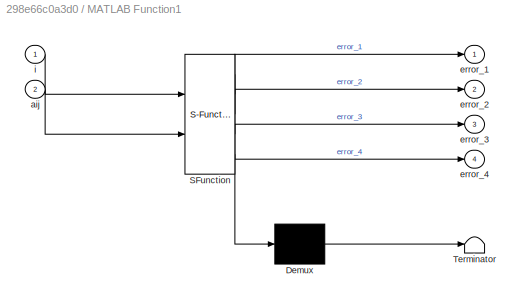
BLOCK [SubSystem] MATLAB Function1
  ErrorFcn = Stateflow.Translate.translate
  PermitHierarchicalResolution = ExplicitOnly
  Ports = [2, 4]
  RequestExecContextInheritance = off
  SFBlockType = MATLAB Function
  TreatAsAtomicUnit = on
BLOCK [Demux] MATLAB Function1/ Demux 
  Outputs = 1
  Ports = [1, 1]
BLOCK [S-Function] MATLAB Function1/ SFunction 
  EnableBusSupport = on
  FunctionName = sf_sfun
  PortCounts = [2 5]
  Ports = [2, 5]
  SFcnIsStateOwnerBlock = off
  SFunctionDeploymentMode = off
  Tag = Stateflow S-Function Simulink_mg_1234_with_DistributedControl_ControlConmutado 1
BLOCK [Terminator] MATLAB Function1/ Terminator 
BLOCK [Inport] MATLAB Function1/aij
  IconDisplay = Port number
  Port = 2
BLOCK [Outport] MATLAB Function1/error_1
  IconDisplay = Port number
BLOCK [Outport] MATLAB Function1/error_2
  IconDisplay = Port number
  Port = 2
BLOCK [Outport] MATLAB Function1/error_3
  IconDisplay = Port number
  Port = 3
BLOCK [Outport] MATLAB Function1/error_4
  IconDisplay = Port number
  Port = 4
BLOCK [Inport] MATLAB Function1/i
  IconDisplay = Port number
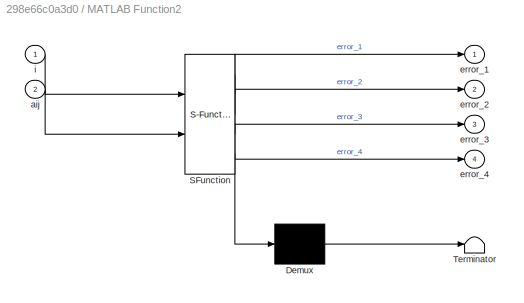
BLOCK [SubSystem] MATLAB Function2
  ErrorFcn = Stateflow.Translate.translate
  PermitHierarchicalResolution = ExplicitOnly
  Ports = [2, 4]
  RequestExecContextInheritance = off
  SFBlockType = MATLAB Function
  TreatAsAtomicUnit = on
BLOCK [Demux] MATLAB Function2/ Demux 
  Outputs = 1
  Ports = [1, 1]
BLOCK [S-Function] MATLAB Function2/ SFunction 
  EnableBusSupport = on
  FunctionName = sf_sfun
  PortCounts = [2 5]
  Ports = [2, 5]
  SFcnIsStateOwnerBlock = off
  SFunctionDeploymentMode = off
  Tag = Stateflow S-Function Simulink_mg_1234_with_DistributedControl_ControlConmutado 2
BLOCK [Terminator] MATLAB Function2/ Terminator 
BLOCK [Inport] MATLAB Function2/aij
  IconDisplay = Port number
  Port = 2
BLOCK [Outport] MATLAB Function2/error_1
  IconDisplay = Port number
BLOCK [Outport] MATLAB Function2/error_2
  IconDisplay = Port number
  Port = 2
BLOCK [Outport] MATLAB Function2/error_3
  IconDisplay = Port number
  Port = 3
BLOCK [Outport] MATLAB Function2/error_4
  IconDisplay = Port number
  Port = 4
BLOCK [Inport] MATLAB Function2/i
  IconDisplay = Port number
BLOCK [SubSystem] MATLAB Function3
  ErrorFcn = Stateflow.Translate.translate
  PermitHierarchicalResolution = ExplicitOnly
  Ports = [2, 3]
  RequestExecContextInheritance = off
  SFBlockType = MATLAB Function
  TreatAsAtomicUnit = on
BLOCK [Demux] MATLAB Function3/ Demux 
  Outputs = 1
  Ports = [1, 1]
BLOCK [S-Function] MATLAB Function3/ SFunction 
  EnableBusSupport = on
  FunctionName = sf_sfun
  PortCounts = [2 4]
  Ports = [2, 4]
  SFcnIsStateOwnerBlock = off
  SFunctionDeploymentMode = off
  Tag = Stateflow S-Function Simulink_mg_1234_with_DistributedControl_ControlConmutado 3
BLOCK [Terminator] MATLAB Function3/ Terminator 
BLOCK [Inport] MATLAB Function3/aij
  IconDisplay = Port number
  Port = 2
BLOCK [Outport] MATLAB Function3/error_1
  IconDisplay = Port number
BLOCK [Outport] MATLAB Function3/error_2
  IconDisplay = Port number
  Port = 2
BLOCK [Outport] MATLAB Function3/error_3
  IconDisplay = Port number
  Port = 3
BLOCK [Inport] MATLAB Function3/i
  IconDisplay = Port number
BLOCK [SubSystem] MATLAB Function4
  ErrorFcn = Stateflow.Translate.translate
  PermitHierarchicalResolution = ExplicitOnly
  Ports = [2, 2]
  RequestExecContextInheritance = off
  SFBlockType = MATLAB Function
  TreatAsAtomicUnit = on
BLOCK [Demux] MATLAB Function4/ Demux 
  Outputs = 1
  Ports = [1, 1]
BLOCK [S-Function] MATLAB Function4/ SFunction 
  EnableBusSupport = on
  FunctionName = sf_sfun
  PortCounts = [2 3]
  Ports = [2, 3]
  SFcnIsStateOwnerBlock = off
  SFunctionDeploymentMode = off
  Tag = Stateflow S-Function Simulink_mg_1234_with_DistributedControl_ControlConmutado 4
BLOCK [Terminator] MATLAB Function4/ Terminator 
BLOCK [Inport] MATLAB Function4/aij
  IconDisplay = Port number
  Port = 2
BLOCK [Outport] MATLAB Function4/error_1
  IconDisplay = Port number
BLOCK [Outport] MATLAB Function4/error_2
  IconDisplay = Port number
  Port = 2
BLOCK [Inport] MATLAB Function4/i
  IconDisplay = Port number
BLOCK [SubSystem] MATLAB Function5
  ErrorFcn = Stateflow.Translate.translate
  PermitHierarchicalResolution = ExplicitOnly
  Ports = [2, 4]
  RequestExecContextInheritance = off
  SFBlockType = MATLAB Function
  TreatAsAtomicUnit = on
BLOCK [Demux] MATLAB Function5/ Demux 
  Outputs = 1
  Ports = [1, 1]
BLOCK [S-Function] MATLAB Function5/ SFunction 
  EnableBusSupport = on
  FunctionName = sf_sfun
  PortCounts = [2 5]
  Ports = [2, 5]
  SFcnIsStateOwnerBlock = off
  SFunctionDeploymentMode = off
  Tag = Stateflow S-Function Simulink_mg_1234_with_DistributedControl_ControlConmutado 5
BLOCK [Terminator] MATLAB Function5/ Terminator 
BLOCK [Inport] MATLAB Function5/aij
  IconDisplay = Port number
  Port = 2
BLOCK [Outport] MATLAB Function5/error_1
  IconDisplay = Port number
BLOCK [Outport] MATLAB Function5/error_2
  IconDisplay = Port number
  Port = 2
BLOCK [Outport] MATLAB Function5/error_3
  IconDisplay = Port number
  Port = 3
BLOCK [Outport] MATLAB Function5/error_4
  IconDisplay = Port number
  Port = 4
BLOCK [Inport] MATLAB Function5/i
  IconDisplay = Port number
BLOCK [ManualSwitch] Manual Switch1
  CurrentSetting = 0
BLOCK [ManualSwitch] Manual Switch10
  CurrentSetting = 0
BLOCK [ManualSwitch] Manual Switch11
  CurrentSetting = 0
BLOCK [ManualSwitch] Manual Switch12
  CurrentSetting = 0
BLOCK [ManualSwitch] Manual Switch13
  CurrentSetting = 0
BLOCK [ManualSwitch] Manual Switch14
  CurrentSetting = 0
BLOCK [ManualSwitch] Manual Switch15
  CurrentSetting = 0
BLOCK [ManualSwitch] Manual Switch16
  CurrentSetting = 0
BLOCK [ManualSwitch] Manual Switch17
  CurrentSetting = 0
BLOCK [ManualSwitch] Manual Switch2
  CurrentSetting = 0
BLOCK [ManualSwitch] Manual Switch3
  CurrentSetting = 0
BLOCK [ManualSwitch] Manual Switch4
  CurrentSetting = 0
BLOCK [ManualSwitch] Manual Switch5
  CurrentSetting = 0
BLOCK [ManualSwitch] Manual Switch6
  CurrentSetting = 0
BLOCK [ManualSwitch] Manual Switch7
  CurrentSetting = 0
BLOCK [ManualSwitch] Manual Switch8
  CurrentSetting = 0
BLOCK [ManualSwitch] Manual Switch9
  CurrentSetting = 0
BLOCK [Mux] Mux
  DisplayOption = bar
  Ports = [4, 1]
BLOCK [Mux] Mux1
  DisplayOption = bar
  Inputs = 5
  Ports = [5, 1]
BLOCK [Mux] Mux10
  DisplayOption = bar
  Inputs = 3
  Ports = [3, 1]
BLOCK [Mux] Mux11
  DisplayOption = bar
  Inputs = 2
  Ports = [2, 1]
BLOCK [Mux] Mux12
  DisplayOption = bar
  Ports = [4, 1]
BLOCK [Mux] Mux13
  DisplayOption = bar
  Ports = [4, 1]
BLOCK [Mux] Mux14
  DisplayOption = bar
  Inputs = 5
  Ports = [5, 1]
BLOCK [Mux] Mux2
  DisplayOption = bar
  Ports = [4, 1]
BLOCK [Mux] Mux3
  DisplayOption = bar
  Inputs = 5
  Ports = [5, 1]
BLOCK [Mux] Mux4
  DisplayOption = bar
  Ports = [4, 1]
BLOCK [Mux] Mux5
  DisplayOption = bar
  Inputs = 3
  Ports = [3, 1]
BLOCK [Mux] Mux6
  DisplayOption = bar
  Ports = [4, 1]
BLOCK [Mux] Mux7
  DisplayOption = bar
  Ports = [4, 1]
BLOCK [Mux] Mux8
  DisplayOption = bar
  Inputs = 3
  Ports = [3, 1]
BLOCK [Mux] Mux9
  DisplayOption = bar
  Inputs = 2
  Ports = [2, 1]
BLOCK [TransferFcn] PI i 1
  Denominator = [1 0]
  Numerator = [k_pi_4 k_ii_4 ]
BLOCK [TransferFcn] PI i 2
  Denominator = [1 0]
  Numerator = [k_pi_1 k_ii_1 ]
BLOCK [TransferFcn] PI i 3
  Denominator = [1 0]
  Numerator = [k_pi_3 k_ii_3 ]
BLOCK [TransferFcn] PI i 4
  Denominator = [1 0]
  Numerator = [k_pi_2 k_ii_2 ]
BLOCK [TransferFcn] PI i1
  Denominator = [1 0]
  Numerator = [k_pi_3 k_ii_3 ]
BLOCK [TransferFcn] PI i2
  Denominator = [1 0]
  Numerator = [k_pi_4 k_ii_4 ]
BLOCK [TransferFcn] PI i3
  Denominator = [1 0]
  Numerator = [k_pi_4 k_ii_4]
BLOCK [TransferFcn] PI i4
  Denominator = [1 0]
  Numerator = [k_pi_3 k_ii_3]
BLOCK [TransferFcn] PI i5
  Denominator = [1 0]
  Numerator = [k_pi_3 k_ii_3 ]
BLOCK [TransferFcn] PI i6
  Denominator = [1 0]
  Numerator = [k_pi_4 k_ii_4 ]
BLOCK [TransferFcn] PI i7
  Denominator = [1 0]
  Numerator = [k_pi_2 k_ii_2]
BLOCK [TransferFcn] PI i8
  Denominator = [1 0]
  Numerator = [k_pi_1 k_ii_1]
BLOCK [TransferFcn] PI i9
  Denominator = [1 0]
  Numerator = [k_pi_1 k_ii_1 ]
BLOCK [Reference] PS-Simulink Converter  REF=nesl_utility/PS-Simulink
Converter
  Ports = [0, 1, 0, 0, 0, 1]
  SourceBlock = nesl_utility/PS-Simulink\nConverter
  SourceProductBaseCode = SS
  SourceProductName = Simscape
  SourceType = PS-Simulink\nConverter
BLOCK [Reference] PS-Simulink Converter1  REF=nesl_utility/PS-Simulink
Converter
  Ports = [0, 1, 0, 0, 0, 1]
  SourceBlock = nesl_utility/PS-Simulink\nConverter
  SourceProductBaseCode = SS
  SourceProductName = Simscape
  SourceType = PS-Simulink\nConverter
BLOCK [Reference] PS-Simulink Converter10  REF=nesl_utility/PS-Simulink
Converter
  Ports = [0, 1, 0, 0, 0, 1]
  SourceBlock = nesl_utility/PS-Simulink\nConverter
  SourceProductBaseCode = SS
  SourceProductName = Simscape
  SourceType = PS-Simulink\nConverter
BLOCK [Reference] PS-Simulink Converter11  REF=nesl_utility/PS-Simulink
Converter
  Ports = [0, 1, 0, 0, 0, 1]
  SourceBlock = nesl_utility/PS-Simulink\nConverter
  SourceProductBaseCode = SS
  SourceProductName = Simscape
  SourceType = PS-Simulink\nConverter
BLOCK [Reference] PS-Simulink Converter12  REF=nesl_utility/PS-Simulink
Converter
  Ports = [0, 1, 0, 0, 0, 1]
  SourceBlock = nesl_utility/PS-Simulink\nConverter
  SourceProductBaseCode = SS
  SourceProductName = Simscape
  SourceType = PS-Simulink\nConverter
BLOCK [Reference] PS-Simulink Converter13  REF=nesl_utility/PS-Simulink
Converter
  Ports = [0, 1, 0, 0, 0, 1]
  SourceBlock = nesl_utility/PS-Simulink\nConverter
  SourceProductBaseCode = SS
  SourceProductName = Simscape
  SourceType = PS-Simulink\nConverter
BLOCK [Reference] PS-Simulink Converter14  REF=nesl_utility/PS-Simulink
Converter
  Ports = [0, 1, 0, 0, 0, 1]
  SourceBlock = nesl_utility/PS-Simulink\nConverter
  SourceProductBaseCode = SS
  SourceProductName = Simscape
  SourceType = PS-Simulink\nConverter
BLOCK [Reference] PS-Simulink Converter15  REF=nesl_utility/PS-Simulink
Converter
  Ports = [0, 1, 0, 0, 0, 1]
  SourceBlock = nesl_utility/PS-Simulink\nConverter
  SourceProductBaseCode = SS
  SourceProductName = Simscape
  SourceType = PS-Simulink\nConverter
BLOCK [Reference] PS-Simulink Converter16  REF=nesl_utility/PS-Simulink
Converter
  Ports = [0, 1, 0, 0, 0, 1]
  SourceBlock = nesl_utility/PS-Simulink\nConverter
  SourceProductBaseCode = SS
  SourceProductName = Simscape
  SourceType = PS-Simulink\nConverter
BLOCK [Reference] PS-Simulink Converter17  REF=nesl_utility/PS-Simulink
Converter
  Ports = [0, 1, 0, 0, 0, 1]
  SourceBlock = nesl_utility/PS-Simulink\nConverter
  SourceProductBaseCode = SS
  SourceProductName = Simscape
  SourceType = PS-Simulink\nConverter
BLOCK [Reference] PS-Simulink Converter18  REF=nesl_utility/PS-Simulink
Converter
  Ports = [0, 1, 0, 0, 0, 1]
  SourceBlock = nesl_utility/PS-Simulink\nConverter
  SourceProductBaseCode = SS
  SourceProductName = Simscape
  SourceType = PS-Simulink\nConverter
BLOCK [Reference] PS-Simulink Converter19  REF=nesl_utility/PS-Simulink
Converter
  Ports = [0, 1, 0, 0, 0, 1]
  SourceBlock = nesl_utility/PS-Simulink\nConverter
  SourceProductBaseCode = SS
  SourceProductName = Simscape
  SourceType = PS-Simulink\nConverter
BLOCK [Reference] PS-Simulink Converter2  REF=nesl_utility/PS-Simulink
Converter
  Ports = [0, 1, 0, 0, 0, 1]
  SourceBlock = nesl_utility/PS-Simulink\nConverter
  SourceProductBaseCode = SS
  SourceProductName = Simscape
  SourceType = PS-Simulink\nConverter
BLOCK [Reference] PS-Simulink Converter20  REF=nesl_utility/PS-Simulink
Converter
  Ports = [0, 1, 0, 0, 0, 1]
  SourceBlock = nesl_utility/PS-Simulink\nConverter
  SourceProductBaseCode = SS
  SourceProductName = Simscape
  SourceType = PS-Simulink\nConverter
BLOCK [Reference] PS-Simulink Converter21  REF=nesl_utility/PS-Simulink
Converter
  Ports = [0, 1, 0, 0, 0, 1]
  SourceBlock = nesl_utility/PS-Simulink\nConverter
  SourceProductBaseCode = SS
  SourceProductName = Simscape
  SourceType = PS-Simulink\nConverter
BLOCK [Reference] PS-Simulink Converter22  REF=nesl_utility/PS-Simulink
Converter
  Ports = [0, 1, 0, 0, 0, 1]
  SourceBlock = nesl_utility/PS-Simulink\nConverter
  SourceProductBaseCode = SS
  SourceProductName = Simscape
  SourceType = PS-Simulink\nConverter
BLOCK [Reference] PS-Simulink Converter23  REF=nesl_utility/PS-Simulink
Converter
  Ports = [0, 1, 0, 0, 0, 1]
  SourceBlock = nesl_utility/PS-Simulink\nConverter
  SourceProductBaseCode = SS
  SourceProductName = Simscape
  SourceType = PS-Simulink\nConverter
BLOCK [Reference] PS-Simulink Converter24  REF=nesl_utility/PS-Simulink
Converter
  Ports = [0, 1, 0, 0, 0, 1]
  SourceBlock = nesl_utility/PS-Simulink\nConverter
  SourceProductBaseCode = SS
  SourceProductName = Simscape
  SourceType = PS-Simulink\nConverter
BLOCK [Reference] PS-Simulink Converter25  REF=nesl_utility/PS-Simulink
Converter
  Ports = [0, 1, 0, 0, 0, 1]
  SourceBlock = nesl_utility/PS-Simulink\nConverter
  SourceProductBaseCode = SS
  SourceProductName = Simscape
  SourceType = PS-Simulink\nConverter
BLOCK [Reference] PS-Simulink Converter26  REF=nesl_utility/PS-Simulink
Converter
  Ports = [0, 1, 0, 0, 0, 1]
  SourceBlock = nesl_utility/PS-Simulink\nConverter
  SourceProductBaseCode = SS
  SourceProductName = Simscape
  SourceType = PS-Simulink\nConverter
BLOCK [Reference] PS-Simulink Converter27  REF=nesl_utility/PS-Simulink
Converter
  Ports = [0, 1, 0, 0, 0, 1]
  SourceBlock = nesl_utility/PS-Simulink\nConverter
  SourceProductBaseCode = SS
  SourceProductName = Simscape
  SourceType = PS-Simulink\nConverter
BLOCK [Reference] PS-Simulink Converter28  REF=nesl_utility/PS-Simulink
Converter
  Ports = [0, 1, 0, 0, 0, 1]
  SourceBlock = nesl_utility/PS-Simulink\nConverter
  SourceProductBaseCode = SS
  SourceProductName = Simscape
  SourceType = PS-Simulink\nConverter
BLOCK [Reference] PS-Simulink Converter29  REF=nesl_utility/PS-Simulink
Converter
  Ports = [0, 1, 0, 0, 0, 1]
  SourceBlock = nesl_utility/PS-Simulink\nConverter
  SourceProductBaseCode = SS
  SourceProductName = Simscape
  SourceType = PS-Simulink\nConverter
BLOCK [Reference] PS-Simulink Converter3  REF=nesl_utility/PS-Simulink
Converter
  Ports = [0, 1, 0, 0, 0, 1]
  SourceBlock = nesl_utility/PS-Simulink\nConverter
  SourceProductBaseCode = SS
  SourceProductName = Simscape
  SourceType = PS-Simulink\nConverter
BLOCK [Reference] PS-Simulink Converter30  REF=nesl_utility/PS-Simulink
Converter
  Ports = [0, 1, 0, 0, 0, 1]
  SourceBlock = nesl_utility/PS-Simulink\nConverter
  SourceProductBaseCode = SS
  SourceProductName = Simscape
  SourceType = PS-Simulink\nConverter
BLOCK [Reference] PS-Simulink Converter31  REF=nesl_utility/PS-Simulink
Converter
  Ports = [0, 1, 0, 0, 0, 1]
  SourceBlock = nesl_utility/PS-Simulink\nConverter
  SourceProductBaseCode = SS
  SourceProductName = Simscape
  SourceType = PS-Simulink\nConverter
BLOCK [Reference] PS-Simulink Converter32  REF=nesl_utility/PS-Simulink
Converter
  Ports = [0, 1, 0, 0, 0, 1]
  SourceBlock = nesl_utility/PS-Simulink\nConverter
  SourceProductBaseCode = SS
  SourceProductName = Simscape
  SourceType = PS-Simulink\nConverter
BLOCK [Reference] PS-Simulink Converter33  REF=nesl_utility/PS-Simulink
Converter
  Ports = [0, 1, 0, 0, 0, 1]
  SourceBlock = nesl_utility/PS-Simulink\nConverter
  SourceProductBaseCode = SS
  SourceProductName = Simscape
  SourceType = PS-Simulink\nConverter
BLOCK [Reference] PS-Simulink Converter34  REF=nesl_utility/PS-Simulink
Converter
  Ports = [0, 1, 0, 0, 0, 1]
  SourceBlock = nesl_utility/PS-Simulink\nConverter
  SourceProductBaseCode = SS
  SourceProductName = Simscape
  SourceType = PS-Simulink\nConverter
BLOCK [Reference] PS-Simulink Converter35  REF=nesl_utility/PS-Simulink
Converter
  Ports = [0, 1, 0, 0, 0, 1]
  SourceBlock = nesl_utility/PS-Simulink\nConverter
  SourceProductBaseCode = SS
  SourceProductName = Simscape
  SourceType = PS-Simulink\nConverter
BLOCK [Reference] PS-Simulink Converter36  REF=nesl_utility/PS-Simulink
Converter
  Ports = [0, 1, 0, 0, 0, 1]
  SourceBlock = nesl_utility/PS-Simulink\nConverter
  SourceProductBaseCode = SS
  SourceProductName = Simscape
  SourceType = PS-Simulink\nConverter
BLOCK [Reference] PS-Simulink Converter37  REF=nesl_utility/PS-Simulink
Converter
  Ports = [0, 1, 0, 0, 0, 1]
  SourceBlock = nesl_utility/PS-Simulink\nConverter
  SourceProductBaseCode = SS
  SourceProductName = Simscape
  SourceType = PS-Simulink\nConverter
BLOCK [Reference] PS-Simulink Converter38  REF=nesl_utility/PS-Simulink
Converter
  Ports = [0, 1, 0, 0, 0, 1]
  SourceBlock = nesl_utility/PS-Simulink\nConverter
  SourceProductBaseCode = SS
  SourceProductName = Simscape
  SourceType = PS-Simulink\nConverter
BLOCK [Reference] PS-Simulink Converter39  REF=nesl_utility/PS-Simulink
Converter
  Ports = [0, 1, 0, 0, 0, 1]
  SourceBlock = nesl_utility/PS-Simulink\nConverter
  SourceProductBaseCode = SS
  SourceProductName = Simscape
  SourceType = PS-Simulink\nConverter
BLOCK [Reference] PS-Simulink Converter4  REF=nesl_utility/PS-Simulink
Converter
  Ports = [0, 1, 0, 0, 0, 1]
  SourceBlock = nesl_utility/PS-Simulink\nConverter
  SourceProductBaseCode = SS
  SourceProductName = Simscape
  SourceType = PS-Simulink\nConverter
BLOCK [Reference] PS-Simulink Converter40  REF=nesl_utility/PS-Simulink
Converter
  Ports = [0, 1, 0, 0, 0, 1]
  SourceBlock = nesl_utility/PS-Simulink\nConverter
  SourceProductBaseCode = SS
  SourceProductName = Simscape
  SourceType = PS-Simulink\nConverter
BLOCK [Reference] PS-Simulink Converter41  REF=nesl_utility/PS-Simulink
Converter
  Ports = [0, 1, 0, 0, 0, 1]
  SourceBlock = nesl_utility/PS-Simulink\nConverter
  SourceProductBaseCode = SS
  SourceProductName = Simscape
  SourceType = PS-Simulink\nConverter
BLOCK [Reference] PS-Simulink Converter42  REF=nesl_utility/PS-Simulink
Converter
  Ports = [0, 1, 0, 0, 0, 1]
  SourceBlock = nesl_utility/PS-Simulink\nConverter
  SourceProductBaseCode = SS
  SourceProductName = Simscape
  SourceType = PS-Simulink\nConverter
BLOCK [Reference] PS-Simulink Converter43  REF=nesl_utility/PS-Simulink
Converter
  Ports = [0, 1, 0, 0, 0, 1]
  SourceBlock = nesl_utility/PS-Simulink\nConverter
  SourceProductBaseCode = SS
  SourceProductName = Simscape
  SourceType = PS-Simulink\nConverter
BLOCK [Reference] PS-Simulink Converter44  REF=nesl_utility/PS-Simulink
Converter
  Ports = [0, 1, 0, 0, 0, 1]
  SourceBlock = nesl_utility/PS-Simulink\nConverter
  SourceProductBaseCode = SS
  SourceProductName = Simscape
  SourceType = PS-Simulink\nConverter
BLOCK [Reference] PS-Simulink Converter45  REF=nesl_utility/PS-Simulink
Converter
  Ports = [0, 1, 0, 0, 0, 1]
  SourceBlock = nesl_utility/PS-Simulink\nConverter
  SourceProductBaseCode = SS
  SourceProductName = Simscape
  SourceType = PS-Simulink\nConverter
BLOCK [Reference] PS-Simulink Converter46  REF=nesl_utility/PS-Simulink
Converter
  Ports = [0, 1, 0, 0, 0, 1]
  SourceBlock = nesl_utility/PS-Simulink\nConverter
  SourceProductBaseCode = SS
  SourceProductName = Simscape
  SourceType = PS-Simulink\nConverter
BLOCK [Reference] PS-Simulink Converter47  REF=nesl_utility/PS-Simulink
Converter
  Ports = [0, 1, 0, 0, 0, 1]
  SourceBlock = nesl_utility/PS-Simulink\nConverter
  SourceProductBaseCode = SS
  SourceProductName = Simscape
  SourceType = PS-Simulink\nConverter
BLOCK [Reference] PS-Simulink Converter48  REF=nesl_utility/PS-Simulink
Converter
  Ports = [0, 1, 0, 0, 0, 1]
  SourceBlock = nesl_utility/PS-Simulink\nConverter
  SourceProductBaseCode = SS
  SourceProductName = Simscape
  SourceType = PS-Simulink\nConverter
BLOCK [Reference] PS-Simulink Converter49  REF=nesl_utility/PS-Simulink
Converter
  Ports = [0, 1, 0, 0, 0, 1]
  SourceBlock = nesl_utility/PS-Simulink\nConverter
  SourceProductBaseCode = SS
  SourceProductName = Simscape
  SourceType = PS-Simulink\nConverter
BLOCK [Reference] PS-Simulink Converter5  REF=nesl_utility/PS-Simulink
Converter
  Ports = [0, 1, 0, 0, 0, 1]
  SourceBlock = nesl_utility/PS-Simulink\nConverter
  SourceProductBaseCode = SS
  SourceProductName = Simscape
  SourceType = PS-Simulink\nConverter
BLOCK [Reference] PS-Simulink Converter50  REF=nesl_utility/PS-Simulink
Converter
  Ports = [0, 1, 0, 0, 0, 1]
  SourceBlock = nesl_utility/PS-Simulink\nConverter
  SourceProductBaseCode = SS
  SourceProductName = Simscape
  SourceType = PS-Simulink\nConverter
BLOCK [Reference] PS-Simulink Converter51  REF=nesl_utility/PS-Simulink
Converter
  Ports = [0, 1, 0, 0, 0, 1]
  SourceBlock = nesl_utility/PS-Simulink\nConverter
  SourceProductBaseCode = SS
  SourceProductName = Simscape
  SourceType = PS-Simulink\nConverter
BLOCK [Reference] PS-Simulink Converter52  REF=nesl_utility/PS-Simulink
Converter
  Ports = [0, 1, 0, 0, 0, 1]
  SourceBlock = nesl_utility/PS-Simulink\nConverter
  SourceProductBaseCode = SS
  SourceProductName = Simscape
  SourceType = PS-Simulink\nConverter
BLOCK [Reference] PS-Simulink Converter53  REF=nesl_utility/PS-Simulink
Converter
  Ports = [0, 1, 0, 0, 0, 1]
  SourceBlock = nesl_utility/PS-Simulink\nConverter
  SourceProductBaseCode = SS
  SourceProductName = Simscape
  SourceType = PS-Simulink\nConverter
BLOCK [Reference] PS-Simulink Converter54  REF=nesl_utility/PS-Simulink
Converter
  Ports = [0, 1, 0, 0, 0, 1]
  SourceBlock = nesl_utility/PS-Simulink\nConverter
  SourceProductBaseCode = SS
  SourceProductName = Simscape
  SourceType = PS-Simulink\nConverter
BLOCK [Reference] PS-Simulink Converter55  REF=nesl_utility/PS-Simulink
Converter
  Ports = [0, 1, 0, 0, 0, 1]
  SourceBlock = nesl_utility/PS-Simulink\nConverter
  SourceProductBaseCode = SS
  SourceProductName = Simscape
  SourceType = PS-Simulink\nConverter
BLOCK [Reference] PS-Simulink Converter6  REF=nesl_utility/PS-Simulink
Converter
  Ports = [0, 1, 0, 0, 0, 1]
  SourceBlock = nesl_utility/PS-Simulink\nConverter
  SourceProductBaseCode = SS
  SourceProductName = Simscape
  SourceType = PS-Simulink\nConverter
BLOCK [Reference] PS-Simulink Converter60  REF=nesl_utility/PS-Simulink
Converter
  Ports = [0, 1, 0, 0, 0, 1]
  SourceBlock = nesl_utility/PS-Simulink\nConverter
  SourceProductBaseCode = SS
  SourceProductName = Simscape
  SourceType = PS-Simulink\nConverter
BLOCK [Reference] PS-Simulink Converter61  REF=nesl_utility/PS-Simulink
Converter
  Ports = [0, 1, 0, 0, 0, 1]
  SourceBlock = nesl_utility/PS-Simulink\nConverter
  SourceProductBaseCode = SS
  SourceProductName = Simscape
  SourceType = PS-Simulink\nConverter
BLOCK [Reference] PS-Simulink Converter62  REF=nesl_utility/PS-Simulink
Converter
  Ports = [0, 1, 0, 0, 0, 1]
  SourceBlock = nesl_utility/PS-Simulink\nConverter
  SourceProductBaseCode = SS
  SourceProductName = Simscape
  SourceType = PS-Simulink\nConverter
BLOCK [Reference] PS-Simulink Converter7  REF=nesl_utility/PS-Simulink
Converter
  Ports = [0, 1, 0, 0, 0, 1]
  SourceBlock = nesl_utility/PS-Simulink\nConverter
  SourceProductBaseCode = SS
  SourceProductName = Simscape
  SourceType = PS-Simulink\nConverter
BLOCK [Reference] PS-Simulink Converter8  REF=nesl_utility/PS-Simulink
Converter
  Ports = [0, 1, 0, 0, 0, 1]
  SourceBlock = nesl_utility/PS-Simulink\nConverter
  SourceProductBaseCode = SS
  SourceProductName = Simscape
  SourceType = PS-Simulink\nConverter
BLOCK [Reference] PS-Simulink Converter9  REF=nesl_utility/PS-Simulink
Converter
  Ports = [0, 1, 0, 0, 0, 1]
  SourceBlock = nesl_utility/PS-Simulink\nConverter
  SourceProductBaseCode = SS
  SourceProductName = Simscape
  SourceType = PS-Simulink\nConverter
BLOCK [Product] Product1
  Commented = on
  InputSameDT = off
  OutDataTypeStr = Inherit: Inherit via internal rule
  Ports = [2, 1]
  RndMeth = Floor
  SaturateOnIntegerOverflow = off
BLOCK [Product] Product2
  Commented = on
  InputSameDT = off
  OutDataTypeStr = Inherit: Inherit via internal rule
  Ports = [2, 1]
  RndMeth = Floor
  SaturateOnIntegerOverflow = off
BLOCK [Product] Product3
  Commented = on
  InputSameDT = off
  OutDataTypeStr = Inherit: Inherit via internal rule
  Ports = [2, 1]
  RndMeth = Floor
  SaturateOnIntegerOverflow = off
BLOCK [Product] Product4
  Commented = on
  InputSameDT = off
  OutDataTypeStr = Inherit: Inherit via internal rule
  Ports = [2, 1]
  RndMeth = Floor
  SaturateOnIntegerOverflow = off
BLOCK [Product] Product5
  InputSameDT = off
  OutDataTypeStr = Inherit: Inherit via internal rule
  Ports = [2, 1]
  RndMeth = Floor
  SaturateOnIntegerOverflow = off
BLOCK [Product] Product6
  InputSameDT = off
  OutDataTypeStr = Inherit: Inherit via internal rule
  Ports = [2, 1]
  RndMeth = Floor
  SaturateOnIntegerOverflow = off
BLOCK [Reference] R serie 1  REF=fl_lib/Electrical/Electrical Elements/Resistor
  Ports = [0, 0, 0, 0, 0, 1, 1]
  SourceBlock = fl_lib/Electrical/Electrical Elements/Resistor
  SourceProductBaseCode = SS
  SourceProductName = Simscape
  SourceType = Resistor
BLOCK [Reference] R serie 10  REF=fl_lib/Electrical/Electrical Elements/Resistor
  Ports = [0, 0, 0, 0, 0, 1, 1]
  SourceBlock = fl_lib/Electrical/Electrical Elements/Resistor
  SourceProductBaseCode = SS
  SourceProductName = Simscape
  SourceType = Resistor
BLOCK [Reference] R serie 11  REF=fl_lib/Electrical/Electrical Elements/Resistor
  Ports = [0, 0, 0, 0, 0, 1, 1]
  SourceBlock = fl_lib/Electrical/Electrical Elements/Resistor
  SourceProductBaseCode = SS
  SourceProductName = Simscape
  SourceType = Resistor
BLOCK [Reference] R serie 12  REF=fl_lib/Electrical/Electrical Elements/Resistor
  Ports = [0, 0, 0, 0, 0, 1, 1]
  SourceBlock = fl_lib/Electrical/Electrical Elements/Resistor
  SourceProductBaseCode = SS
  SourceProductName = Simscape
  SourceType = Resistor
BLOCK [Reference] R serie 13  REF=fl_lib/Electrical/Electrical Elements/Resistor
  Ports = [0, 0, 0, 0, 0, 1, 1]
  SourceBlock = fl_lib/Electrical/Electrical Elements/Resistor
  SourceProductBaseCode = SS
  SourceProductName = Simscape
  SourceType = Resistor
BLOCK [Reference] R serie 14  REF=fl_lib/Electrical/Electrical Elements/Resistor
  Ports = [0, 0, 0, 0, 0, 1, 1]
  SourceBlock = fl_lib/Electrical/Electrical Elements/Resistor
  SourceProductBaseCode = SS
  SourceProductName = Simscape
  SourceType = Resistor
BLOCK [Reference] R serie 15  REF=fl_lib/Electrical/Electrical Elements/Resistor
  Ports = [0, 0, 0, 0, 0, 1, 1]
  SourceBlock = fl_lib/Electrical/Electrical Elements/Resistor
  SourceProductBaseCode = SS
  SourceProductName = Simscape
  SourceType = Resistor
BLOCK [Reference] R serie 16  REF=fl_lib/Electrical/Electrical Elements/Resistor
  Ports = [0, 0, 0, 0, 0, 1, 1]
  SourceBlock = fl_lib/Electrical/Electrical Elements/Resistor
  SourceProductBaseCode = SS
  SourceProductName = Simscape
  SourceType = Resistor
BLOCK [Reference] R serie 17  REF=fl_lib/Electrical/Electrical Elements/Resistor
  Ports = [0, 0, 0, 0, 0, 1, 1]
  SourceBlock = fl_lib/Electrical/Electrical Elements/Resistor
  SourceProductBaseCode = SS
  SourceProductName = Simscape
  SourceType = Resistor
BLOCK [Reference] R serie 18  REF=fl_lib/Electrical/Electrical Elements/Resistor
  Ports = [0, 0, 0, 0, 0, 1, 1]
  SourceBlock = fl_lib/Electrical/Electrical Elements/Resistor
  SourceProductBaseCode = SS
  SourceProductName = Simscape
  SourceType = Resistor
BLOCK [Reference] R serie 19  REF=fl_lib/Electrical/Electrical Elements/Resistor
  Ports = [0, 0, 0, 0, 0, 1, 1]
  SourceBlock = fl_lib/Electrical/Electrical Elements/Resistor
  SourceProductBaseCode = SS
  SourceProductName = Simscape
  SourceType = Resistor
BLOCK [Reference] R serie 2  REF=fl_lib/Electrical/Electrical Elements/Resistor
  Ports = [0, 0, 0, 0, 0, 1, 1]
  SourceBlock = fl_lib/Electrical/Electrical Elements/Resistor
  SourceProductBaseCode = SS
  SourceProductName = Simscape
  SourceType = Resistor
BLOCK [Reference] R serie 20  REF=fl_lib/Electrical/Electrical Elements/Resistor
  Ports = [0, 0, 0, 0, 0, 1, 1]
  SourceBlock = fl_lib/Electrical/Electrical Elements/Resistor
  SourceProductBaseCode = SS
  SourceProductName = Simscape
  SourceType = Resistor
BLOCK [Reference] R serie 21  REF=fl_lib/Electrical/Electrical Elements/Resistor
  Ports = [0, 0, 0, 0, 0, 1, 1]
  SourceBlock = fl_lib/Electrical/Electrical Elements/Resistor
  SourceProductBaseCode = SS
  SourceProductName = Simscape
  SourceType = Resistor
BLOCK [Reference] R serie 22  REF=fl_lib/Electrical/Electrical Elements/Resistor
  Ports = [0, 0, 0, 0, 0, 1, 1]
  SourceBlock = fl_lib/Electrical/Electrical Elements/Resistor
  SourceProductBaseCode = SS
  SourceProductName = Simscape
  SourceType = Resistor
BLOCK [Reference] R serie 23  REF=fl_lib/Electrical/Electrical Elements/Resistor
  Ports = [0, 0, 0, 0, 0, 1, 1]
  SourceBlock = fl_lib/Electrical/Electrical Elements/Resistor
  SourceProductBaseCode = SS
  SourceProductName = Simscape
  SourceType = Resistor
BLOCK [Reference] R serie 24  REF=fl_lib/Electrical/Electrical Elements/Resistor
  Ports = [0, 0, 0, 0, 0, 1, 1]
  SourceBlock = fl_lib/Electrical/Electrical Elements/Resistor
  SourceProductBaseCode = SS
  SourceProductName = Simscape
  SourceType = Resistor
BLOCK [Reference] R serie 25  REF=fl_lib/Electrical/Electrical Elements/Resistor
  Ports = [0, 0, 0, 0, 0, 1, 1]
  SourceBlock = fl_lib/Electrical/Electrical Elements/Resistor
  SourceProductBaseCode = SS
  SourceProductName = Simscape
  SourceType = Resistor
BLOCK [Reference] R serie 26  REF=fl_lib/Electrical/Electrical Elements/Resistor
  Ports = [0, 0, 0, 0, 0, 1, 1]
  SourceBlock = fl_lib/Electrical/Electrical Elements/Resistor
  SourceProductBaseCode = SS
  SourceProductName = Simscape
  SourceType = Resistor
BLOCK [Reference] R serie 27  REF=fl_lib/Electrical/Electrical Elements/Resistor
  Ports = [0, 0, 0, 0, 0, 1, 1]
  SourceBlock = fl_lib/Electrical/Electrical Elements/Resistor
  SourceProductBaseCode = SS
  SourceProductName = Simscape
  SourceType = Resistor
BLOCK [Reference] R serie 28  REF=fl_lib/Electrical/Electrical Elements/Resistor
  Ports = [0, 0, 0, 0, 0, 1, 1]
  SourceBlock = fl_lib/Electrical/Electrical Elements/Resistor
  SourceProductBaseCode = SS
  SourceProductName = Simscape
  SourceType = Resistor
BLOCK [Reference] R serie 29  REF=fl_lib/Electrical/Electrical Elements/Resistor
  Ports = [0, 0, 0, 0, 0, 1, 1]
  SourceBlock = fl_lib/Electrical/Electrical Elements/Resistor
  SourceProductBaseCode = SS
  SourceProductName = Simscape
  SourceType = Resistor
BLOCK [Reference] R serie 3  REF=fl_lib/Electrical/Electrical Elements/Resistor
  Ports = [0, 0, 0, 0, 0, 1, 1]
  SourceBlock = fl_lib/Electrical/Electrical Elements/Resistor
  SourceProductBaseCode = SS
  SourceProductName = Simscape
  SourceType = Resistor
BLOCK [Reference] R serie 30  REF=fl_lib/Electrical/Electrical Elements/Resistor
  Ports = [0, 0, 0, 0, 0, 1, 1]
  SourceBlock = fl_lib/Electrical/Electrical Elements/Resistor
  SourceProductBaseCode = SS
  SourceProductName = Simscape
  SourceType = Resistor
BLOCK [Reference] R serie 4  REF=fl_lib/Electrical/Electrical Elements/Resistor
  Ports = [0, 0, 0, 0, 0, 1, 1]
  SourceBlock = fl_lib/Electrical/Electrical Elements/Resistor
  SourceProductBaseCode = SS
  SourceProductName = Simscape
  SourceType = Resistor
BLOCK [Reference] R serie 5  REF=fl_lib/Electrical/Electrical Elements/Resistor
  Ports = [0, 0, 0, 0, 0, 1, 1]
  SourceBlock = fl_lib/Electrical/Electrical Elements/Resistor
  SourceProductBaseCode = SS
  SourceProductName = Simscape
  SourceType = Resistor
BLOCK [Reference] R serie 6  REF=fl_lib/Electrical/Electrical Elements/Resistor
  Ports = [0, 0, 0, 0, 0, 1, 1]
  SourceBlock = fl_lib/Electrical/Electrical Elements/Resistor
  SourceProductBaseCode = SS
  SourceProductName = Simscape
  SourceType = Resistor
BLOCK [Reference] R serie 7  REF=fl_lib/Electrical/Electrical Elements/Resistor
  Ports = [0, 0, 0, 0, 0, 1, 1]
  SourceBlock = fl_lib/Electrical/Electrical Elements/Resistor
  SourceProductBaseCode = SS
  SourceProductName = Simscape
  SourceType = Resistor
BLOCK [Reference] R serie 8  REF=fl_lib/Electrical/Electrical Elements/Resistor
  Ports = [0, 0, 0, 0, 0, 1, 1]
  SourceBlock = fl_lib/Electrical/Electrical Elements/Resistor
  SourceProductBaseCode = SS
  SourceProductName = Simscape
  SourceType = Resistor
BLOCK [Reference] R serie 9  REF=fl_lib/Electrical/Electrical Elements/Resistor
  Ports = [0, 0, 0, 0, 0, 1, 1]
  SourceBlock = fl_lib/Electrical/Electrical Elements/Resistor
  SourceProductBaseCode = SS
  SourceProductName = Simscape
  SourceType = Resistor
BLOCK [Saturate] Saturation1
  InputPortMap = u0
  LowerLimit = -100
  Ports = [1, 1]
  UpperLimit = 100
BLOCK [Saturate] Saturation10
  InputPortMap = u0
  LowerLimit = -100
  Ports = [1, 1]
  UpperLimit = 100
BLOCK [Saturate] Saturation11
  InputPortMap = u0
  LowerLimit = -100
  Ports = [1, 1]
  UpperLimit = 100
BLOCK [Saturate] Saturation12
  InputPortMap = u0
  LowerLimit = -100
  Ports = [1, 1]
  UpperLimit = 100
BLOCK [Saturate] Saturation13
  InputPortMap = u0
  LowerLimit = -100
  Ports = [1, 1]
  UpperLimit = 100
BLOCK [Saturate] Saturation14
  InputPortMap = u0
  LowerLimit = -100
  Ports = [1, 1]
  UpperLimit = 100
BLOCK [Saturate] Saturation15
  InputPortMap = u0
  LowerLimit = -100
  Ports = [1, 1]
  UpperLimit = 100
BLOCK [Saturate] Saturation16
  InputPortMap = u0
  LowerLimit = -100
  Ports = [1, 1]
  UpperLimit = 100
BLOCK [Saturate] Saturation17
  InputPortMap = u0
  LowerLimit = -100
  Ports = [1, 1]
  UpperLimit = 100
BLOCK [Saturate] Saturation18
  InputPortMap = u0
  LowerLimit = -100
  Ports = [1, 1]
  UpperLimit = 100
BLOCK [Saturate] Saturation19
  InputPortMap = u0
  LowerLimit = -100
  Ports = [1, 1]
  UpperLimit = 100
BLOCK [Saturate] Saturation2
  InputPortMap = u0
  LowerLimit = -100
  Ports = [1, 1]
  UpperLimit = 100
BLOCK [Saturate] Saturation20
  InputPortMap = u0
  LowerLimit = -100
  Ports = [1, 1]
  UpperLimit = 100
BLOCK [Saturate] Saturation21
  InputPortMap = u0
  LowerLimit = -100
  Ports = [1, 1]
  UpperLimit = 100
BLOCK [Saturate] Saturation22
  InputPortMap = u0
  LowerLimit = -100
  Ports = [1, 1]
  UpperLimit = 100
BLOCK [Saturate] Saturation23
  InputPortMap = u0
  LowerLimit = -100
  Ports = [1, 1]
  UpperLimit = 100
BLOCK [Saturate] Saturation24
  InputPortMap = u0
  LowerLimit = -100
  Ports = [1, 1]
  UpperLimit = 100
BLOCK [Saturate] Saturation25
  InputPortMap = u0
  LowerLimit = -100
  Ports = [1, 1]
  UpperLimit = 100
BLOCK [Saturate] Saturation26
  InputPortMap = u0
  LowerLimit = -100
  Ports = [1, 1]
  UpperLimit = 100
BLOCK [Saturate] Saturation27
  InputPortMap = u0
  LowerLimit = -100
  Ports = [1, 1]
  UpperLimit = 100
BLOCK [Saturate] Saturation28
  InputPortMap = u0
  LowerLimit = -100
  Ports = [1, 1]
  UpperLimit = 100
BLOCK [Saturate] Saturation29
  InputPortMap = u0
  LowerLimit = -100
  Ports = [1, 1]
  UpperLimit = 100
BLOCK [Saturate] Saturation3
  InputPortMap = u0
  LowerLimit = -100
  Ports = [1, 1]
  UpperLimit = 100
BLOCK [Saturate] Saturation30
  InputPortMap = u0
  LowerLimit = -100
  Ports = [1, 1]
  UpperLimit = 100
BLOCK [Saturate] Saturation31
  InputPortMap = u0
  LowerLimit = -100
  Ports = [1, 1]
  UpperLimit = 100
BLOCK [Saturate] Saturation32
  InputPortMap = u0
  LowerLimit = -100
  Ports = [1, 1]
  UpperLimit = 100
BLOCK [Saturate] Saturation33
  InputPortMap = u0
  LowerLimit = -100
  Ports = [1, 1]
  UpperLimit = 100
BLOCK [Saturate] Saturation34
  InputPortMap = u0
  LowerLimit = -100
  Ports = [1, 1]
  UpperLimit = 100
BLOCK [Saturate] Saturation35
  InputPortMap = u0
  LowerLimit = -100
  Ports = [1, 1]
  UpperLimit = 100
BLOCK [Saturate] Saturation36
  InputPortMap = u0
  LowerLimit = -100
  Ports = [1, 1]
  UpperLimit = 100
BLOCK [Saturate] Saturation37
  InputPortMap = u0
  LowerLimit = -100
  Ports = [1, 1]
  UpperLimit = 100
BLOCK [Saturate] Saturation38
  InputPortMap = u0
  LowerLimit = -100
  Ports = [1, 1]
  UpperLimit = 100
BLOCK [Saturate] Saturation39
  InputPortMap = u0
  LowerLimit = -100
  Ports = [1, 1]
  UpperLimit = 100
BLOCK [Saturate] Saturation4
  InputPortMap = u0
  LowerLimit = -100
  Ports = [1, 1]
  UpperLimit = 100
BLOCK [Saturate] Saturation40
  InputPortMap = u0
  LowerLimit = -100
  Ports = [1, 1]
  UpperLimit = 100
BLOCK [Saturate] Saturation41
  InputPortMap = u0
  LowerLimit = -100
  Ports = [1, 1]
  UpperLimit = 100
BLOCK [Saturate] Saturation42
  InputPortMap = u0
  LowerLimit = -100
  Ports = [1, 1]
  UpperLimit = 100
BLOCK [Saturate] Saturation43
  InputPortMap = u0
  LowerLimit = -100
  Ports = [1, 1]
  UpperLimit = 100
BLOCK [Saturate] Saturation44
  InputPortMap = u0
  LowerLimit = -100
  Ports = [1, 1]
  UpperLimit = 100
BLOCK [Saturate] Saturation45
  InputPortMap = u0
  LowerLimit = -100
  Ports = [1, 1]
  UpperLimit = 100
BLOCK [Saturate] Saturation46
  InputPortMap = u0
  LowerLimit = -100
  Ports = [1, 1]
  UpperLimit = 100
BLOCK [Saturate] Saturation47
  InputPortMap = u0
  LowerLimit = -100
  Ports = [1, 1]
  UpperLimit = 100
BLOCK [Saturate] Saturation48
  InputPortMap = u0
  LowerLimit = -100
  Ports = [1, 1]
  UpperLimit = 100
BLOCK [Saturate] Saturation49
  InputPortMap = u0
  LowerLimit = -100
  Ports = [1, 1]
  UpperLimit = 100
BLOCK [Saturate] Saturation5
  InputPortMap = u0
  LowerLimit = -100
  Ports = [1, 1]
  UpperLimit = 100
BLOCK [Saturate] Saturation50
  InputPortMap = u0
  LowerLimit = -100
  Ports = [1, 1]
  UpperLimit = 100
BLOCK [Saturate] Saturation51
  InputPortMap = u0
  LowerLimit = -100
  Ports = [1, 1]
  UpperLimit = 100
BLOCK [Saturate] Saturation6
  InputPortMap = u0
  LowerLimit = -100
  Ports = [1, 1]
  UpperLimit = 100
BLOCK [Saturate] Saturation7
  InputPortMap = u0
  LowerLimit = -100
  Ports = [1, 1]
  UpperLimit = 100
BLOCK [Saturate] Saturation8
  InputPortMap = u0
  LowerLimit = -100
  Ports = [1, 1]
  UpperLimit = 100
BLOCK [Saturate] Saturation9
  InputPortMap = u0
  LowerLimit = -100
  Ports = [1, 1]
  UpperLimit = 100
BLOCK [Scope] Scope
  Floating = off
  NumInputPorts = 2
  Ports = [2]
  ScopeSpecificationString = Simulink.scopes.TimeScopeBlockCfg('CurrentConfiguration', extmgr.ConfigurationSet(extmgr.Configuration('Core','General UI',true),extmgr.Configuration('Core','Source UI',true),extmgr.Configuration('Sources','WiredSimulink',true,'DataLoggingVariableName','ScopeData10'),extmgr.Configuration('Visuals','Time Domain',true,'SerializedDisplays',{struct('MinYLimReal','964.83042','MaxYLimReal','1130.47228',...<+2301ch>
BLOCK [Scope] Scope1
  Commented = on
  Floating = off
  NumInputPorts = 1
  Ports = [1]
  ScopeSpecificationString = Simulink.scopes.TimeScopeBlockCfg('CurrentConfiguration', extmgr.ConfigurationSet(extmgr.Configuration('Core','General UI',true),extmgr.Configuration('Core','Source UI',true),extmgr.Configuration('Sources','WiredSimulink',true,'DataLoggingVariableName','ScopeData1'),extmgr.Configuration('Visuals','Time Domain',true,'SerializedDisplays',{struct('MinYLimReal','-0.64928','MaxYLimReal','1.1335','YLabe...<+1464ch>
BLOCK [Scope] Scope10
  Floating = off
  NumInputPorts = 1
  Ports = [1]
  ScopeSpecificationString = Simulink.scopes.TimeScopeBlockCfg('CurrentConfiguration', extmgr.ConfigurationSet(extmgr.Configuration('Core','General UI',true),extmgr.Configuration('Core','Source UI',true),extmgr.Configuration('Sources','WiredSimulink',true,'DataLoggingVariableName','ScopeData1'),extmgr.Configuration('Visuals','Time Domain',true,'SerializedDisplays',{struct('MinYLimReal','-102.85688','MaxYLimReal','789.20632','...<+1476ch>
BLOCK [Scope] Scope11
  Floating = off
  NumInputPorts = 1
  Ports = [1]
  ScopeSpecificationString = Simulink.scopes.TimeScopeBlockCfg('CurrentConfiguration', extmgr.ConfigurationSet(extmgr.Configuration('Core','General UI',true),extmgr.Configuration('Core','Source UI',true),extmgr.Configuration('Sources','WiredSimulink',true,'DataLoggingVariableName','ScopeData2'),extmgr.Configuration('Visuals','Time Domain',true,'SerializedDisplays',{struct('MinYLimReal','-0.26871','MaxYLimReal','0.49057','YLab...<+1396ch>
BLOCK [Scope] Scope12
  Floating = off
  NumInputPorts = 1
  Ports = [1]
  ScopeSpecificationString = Simulink.scopes.TimeScopeBlockCfg('CurrentConfiguration', extmgr.ConfigurationSet(extmgr.Configuration('Core','General UI',true),extmgr.Configuration('Core','Source UI',true),extmgr.Configuration('Sources','WiredSimulink',true,'DataLoggingVariableName','ScopeData3'),extmgr.Configuration('Visuals','Time Domain',true,'SerializedDisplays',{struct('MinYLimReal','-14.99314','MaxYLimReal','135.78316','Y...<+1483ch>
BLOCK [Scope] Scope13
  Floating = off
  NumInputPorts = 1
  Ports = [1]
  ScopeSpecificationString = Simulink.scopes.TimeScopeBlockCfg('CurrentConfiguration', extmgr.ConfigurationSet(extmgr.Configuration('Core','General UI',true),extmgr.Configuration('Core','Source UI',true),extmgr.Configuration('Sources','WiredSimulink',true,'DataLoggingVariableName','ScopeData4'),extmgr.Configuration('Visuals','Time Domain',true,'SerializedDisplays',{struct('MinYLimReal','-0.62883','MaxYLimReal','0.12862','YLab...<+1437ch>
BLOCK [Scope] Scope14
  Floating = off
  NumInputPorts = 1
  Ports = [1]
  ScopeSpecificationString = Simulink.scopes.TimeScopeBlockCfg('CurrentConfiguration', extmgr.ConfigurationSet(extmgr.Configuration('Core','General UI',true),extmgr.Configuration('Core','Source UI',true),extmgr.Configuration('Sources','WiredSimulink',true,'DataLoggingVariableName','ScopeData5'),extmgr.Configuration('Visuals','Time Domain',true,'SerializedDisplays',{struct('MinYLimReal','-0.03436','MaxYLimReal','0.80113','YLab...<+1461ch>
BLOCK [Scope] Scope15
  Floating = off
  NumInputPorts = 1
  Ports = [1]
  ScopeSpecificationString = Simulink.scopes.TimeScopeBlockCfg('CurrentConfiguration', extmgr.ConfigurationSet(extmgr.Configuration('Core','General UI',true),extmgr.Configuration('Core','Source UI',true),extmgr.Configuration('Sources','WiredSimulink',true,'DataLoggingVariableName','ScopeData6'),extmgr.Configuration('Visuals','Time Domain',true,'SerializedDisplays',{struct('MinYLimReal','-14.99314','MaxYLimReal','135.78316','Y...<+1483ch>
BLOCK [Scope] Scope16
  Commented = on
  Floating = off
  NumInputPorts = 1
  Ports = [1]
  ScopeSpecificationString = Simulink.scopes.TimeScopeBlockCfg('CurrentConfiguration', extmgr.ConfigurationSet(extmgr.Configuration('Core','General UI',true),extmgr.Configuration('Core','Source UI',true),extmgr.Configuration('Sources','WiredSimulink',true,'DataLoggingVariableName','ScopeData1'),extmgr.Configuration('Visuals','Time Domain',true,'SerializedDisplays',{struct('MinYLimReal','-0.64928','MaxYLimReal','1.1335','YLabe...<+1464ch>
BLOCK [Scope] Scope17
  Floating = off
  NumInputPorts = 1
  Ports = [1]
  ScopeSpecificationString = Simulink.scopes.TimeScopeBlockCfg('CurrentConfiguration', extmgr.ConfigurationSet(extmgr.Configuration('Core','General UI',true),extmgr.Configuration('Core','Source UI',true),extmgr.Configuration('Sources','WiredSimulink',true,'DataLoggingVariableName','ScopeData2'),extmgr.Configuration('Visuals','Time Domain',true,'SerializedDisplays',{struct('MinYLimReal','-5.43172','MaxYLimReal','4.71946','YLab...<+1463ch>
BLOCK [Scope] Scope18
  Floating = off
  NumInputPorts = 1
  Ports = [1]
  ScopeSpecificationString = Simulink.scopes.TimeScopeBlockCfg('CurrentConfiguration', extmgr.ConfigurationSet(extmgr.Configuration('Core','General UI',true),extmgr.Configuration('Core','Source UI',true),extmgr.Configuration('Sources','WiredSimulink',true,'DataLoggingVariableName','ScopeData3'),extmgr.Configuration('Visuals','Time Domain',true,'SerializedDisplays',{struct('MinYLimReal','-0.00839','MaxYLimReal','0.00787','YLab...<+1443ch>
BLOCK [Scope] Scope19
  Floating = off
  NumInputPorts = 1
  Ports = [1]
  ScopeSpecificationString = Simulink.scopes.TimeScopeBlockCfg('CurrentConfiguration', extmgr.ConfigurationSet(extmgr.Configuration('Core','General UI',true),extmgr.Configuration('Core','Source UI',true),extmgr.Configuration('Sources','WiredSimulink',true,'DataLoggingVariableName','ScopeData4'),extmgr.Configuration('Visuals','Time Domain',true,'SerializedDisplays',{struct('MinYLimReal','-14.99314','MaxYLimReal','135.78316','Y...<+1483ch>
BLOCK [Scope] Scope2
  Floating = off
  NumInputPorts = 1
  Ports = [1]
  ScopeSpecificationString = Simulink.scopes.TimeScopeBlockCfg('CurrentConfiguration', extmgr.ConfigurationSet(extmgr.Configuration('Core','General UI',true),extmgr.Configuration('Core','Source UI',true),extmgr.Configuration('Sources','WiredSimulink',true,'DataLoggingVariableName','ScopeData11'),extmgr.Configuration('Visuals','Time Domain',true,'SerializedDisplays',{struct('MinYLimReal','-102.85688','MaxYLimReal','789.20632',...<+1477ch>
BLOCK [Scope] Scope20
  Floating = off
  NumInputPorts = 1
  Ports = [1]
  ScopeSpecificationString = Simulink.scopes.TimeScopeBlockCfg('CurrentConfiguration', extmgr.ConfigurationSet(extmgr.Configuration('Core','General UI',true),extmgr.Configuration('Core','Source UI',true),extmgr.Configuration('Sources','WiredSimulink',true,'DataLoggingVariableName','ScopeData5'),extmgr.Configuration('Visuals','Time Domain',true,'SerializedDisplays',{struct('MinYLimReal','-0.62883','MaxYLimReal','0.12862','YLab...<+1437ch>
BLOCK [Scope] Scope21
  Floating = off
  NumInputPorts = 1
  Ports = [1]
  ScopeSpecificationString = Simulink.scopes.TimeScopeBlockCfg('CurrentConfiguration', extmgr.ConfigurationSet(extmgr.Configuration('Core','General UI',true),extmgr.Configuration('Core','Source UI',true),extmgr.Configuration('Sources','WiredSimulink',true,'DataLoggingVariableName','ScopeData2'),extmgr.Configuration('Visuals','Time Domain',true,'SerializedDisplays',{struct('MinYLimReal','-1.58333','MaxYLimReal','0.58397','YLab...<+1445ch>
BLOCK [Scope] Scope22
  Floating = off
  NumInputPorts = 1
  Ports = [1]
  ScopeSpecificationString = Simulink.scopes.TimeScopeBlockCfg('CurrentConfiguration', extmgr.ConfigurationSet(extmgr.Configuration('Core','General UI',true),extmgr.Configuration('Core','Source UI',true),extmgr.Configuration('Sources','WiredSimulink',true,'DataLoggingVariableName','ScopeData3'),extmgr.Configuration('Visuals','Time Domain',true,'SerializedDisplays',{struct('MinYLimReal','-0.30691','MaxYLimReal','0.0341','YLabe...<+1460ch>
BLOCK [Scope] Scope23
  Floating = off
  NumInputPorts = 1
  Ports = [1]
  ScopeSpecificationString = Simulink.scopes.TimeScopeBlockCfg('CurrentConfiguration', extmgr.ConfigurationSet(extmgr.Configuration('Core','General UI',true),extmgr.Configuration('Core','Source UI',true),extmgr.Configuration('Sources','WiredSimulink',true,'DataLoggingVariableName','ScopeData4'),extmgr.Configuration('Visuals','Time Domain',true,'SerializedDisplays',{struct('MinYLimReal','-1.1395','MaxYLimReal','0.63301','YLabe...<+1394ch>
BLOCK [Scope] Scope24
  Floating = off
  NumInputPorts = 1
  Ports = [1]
  ScopeSpecificationString = Simulink.scopes.TimeScopeBlockCfg('CurrentConfiguration', extmgr.ConfigurationSet(extmgr.Configuration('Core','General UI',true),extmgr.Configuration('Core','Source UI',true),extmgr.Configuration('Sources','WiredSimulink',true,'DataLoggingVariableName','ScopeData5'),extmgr.Configuration('Visuals','Time Domain',true,'SerializedDisplays',{struct('MinYLimReal','-206.71959','MaxYLimReal','22.96884','Y...<+1450ch>
BLOCK [Scope] Scope25
  Floating = off
  NumInputPorts = 1
  Ports = [1]
  ScopeSpecificationString = Simulink.scopes.TimeScopeBlockCfg('CurrentConfiguration', extmgr.ConfigurationSet(extmgr.Configuration('Core','General UI',true),extmgr.Configuration('Core','Source UI',true),extmgr.Configuration('Sources','WiredSimulink',true,'DataLoggingVariableName','ScopeData6'),extmgr.Configuration('Visuals','Time Domain',true,'SerializedDisplays',{struct('MinYLimReal','-0.000000000000000022','MaxYLimReal','0...<+1576ch>
BLOCK [Scope] Scope26
  Floating = off
  NumInputPorts = 1
  Ports = [1]
  ScopeSpecificationString = Simulink.scopes.TimeScopeBlockCfg('CurrentConfiguration', extmgr.ConfigurationSet(extmgr.Configuration('Core','General UI',true),extmgr.Configuration('Core','Source UI',true),extmgr.Configuration('Sources','WiredSimulink',true,'DataLoggingVariableName','ScopeData7'),extmgr.Configuration('Visuals','Time Domain',true,'SerializedDisplays',{struct('MinYLimReal','-35.34458','MaxYLimReal','318.10118','Y...<+1482ch>
BLOCK [Scope] Scope27
  Floating = off
  NumInputPorts = 1
  Ports = [1]
  ScopeSpecificationString = Simulink.scopes.TimeScopeBlockCfg('CurrentConfiguration', extmgr.ConfigurationSet(extmgr.Configuration('Core','General UI',true),extmgr.Configuration('Core','Source UI',true),extmgr.Configuration('Sources','WiredSimulink',true,'DataLoggingVariableName','ScopeData8'),extmgr.Configuration('Visuals','Time Domain',true,'SerializedDisplays',{struct('MinYLimReal','-1.31755','MaxYLimReal','1.74125','YLab...<+1396ch>
BLOCK [Scope] Scope28
  Floating = off
  NumInputPorts = 1
  Ports = [1]
  ScopeSpecificationString = Simulink.scopes.TimeScopeBlockCfg('CurrentConfiguration', extmgr.ConfigurationSet(extmgr.Configuration('Core','General UI',true),extmgr.Configuration('Core','Source UI',true),extmgr.Configuration('Sources','WiredSimulink',true,'DataLoggingVariableName','ScopeData9'),extmgr.Configuration('Visuals','Time Domain',true,'SerializedDisplays',{struct('MinYLimReal','-14.99314','MaxYLimReal','135.78316','Y...<+1483ch>
BLOCK [Scope] Scope29
  Floating = off
  NumInputPorts = 1
  Ports = [1]
  ScopeSpecificationString = Simulink.scopes.TimeScopeBlockCfg('CurrentConfiguration', extmgr.ConfigurationSet(extmgr.Configuration('Core','General UI',true),extmgr.Configuration('Core','Source UI',true),extmgr.Configuration('Sources','WiredSimulink',true),extmgr.Configuration('Visuals','Time Domain',true,'SerializedDisplays',{struct('MinYLimReal','-0.62883','MaxYLimReal','0.12862','YLabelReal','','MinYLimMag','0.00000','MaxY...<+1398ch>
BLOCK [Scope] Scope3
  Floating = off
  NumInputPorts = 1
  Ports = [1]
  ScopeSpecificationString = Simulink.scopes.TimeScopeBlockCfg('CurrentConfiguration', extmgr.ConfigurationSet(extmgr.Configuration('Core','General UI',true),extmgr.Configuration('Core','Source UI',true),extmgr.Configuration('Sources','WiredSimulink',true,'DataLoggingVariableName','ScopeData1'),extmgr.Configuration('Visuals','Time Domain',true,'SerializedDisplays',{struct('MinYLimReal','-0.000000000000000000026','MaxYLimReal'...<+1590ch>
BLOCK [Scope] Scope30
  Floating = off
  NumInputPorts = 1
  Ports = [1]
  ScopeSpecificationString = Simulink.scopes.TimeScopeBlockCfg('CurrentConfiguration', extmgr.ConfigurationSet(extmgr.Configuration('Core','General UI',true),extmgr.Configuration('Core','Source UI',true),extmgr.Configuration('Sources','WiredSimulink',true,'DataLoggingVariableName','ScopeData6'),extmgr.Configuration('Visuals','Time Domain',true,'SerializedDisplays',{struct('MinYLimReal','-145.81424','MaxYLimReal','213.64623','...<+1475ch>
BLOCK [Scope] Scope31
  Floating = off
  NumInputPorts = 1
  Ports = [1]
  ScopeSpecificationString = Simulink.scopes.TimeScopeBlockCfg('CurrentConfiguration', extmgr.ConfigurationSet(extmgr.Configuration('Core','General UI',true),extmgr.Configuration('Core','Source UI',true),extmgr.Configuration('Sources','WiredSimulink',true,'DataLoggingVariableName','ScopeData7'),extmgr.Configuration('Visuals','Time Domain',true,'SerializedDisplays',{struct('MinYLimReal','-14.99314','MaxYLimReal','135.78316','Y...<+1483ch>
BLOCK [Scope] Scope32
  Floating = off
  NumInputPorts = 1
  Ports = [1]
  ScopeSpecificationString = Simulink.scopes.TimeScopeBlockCfg('CurrentConfiguration', extmgr.ConfigurationSet(extmgr.Configuration('Core','General UI',true),extmgr.Configuration('Core','Source UI',true),extmgr.Configuration('Sources','WiredSimulink',true,'DataLoggingVariableName','ScopeData8'),extmgr.Configuration('Visuals','Time Domain',true,'SerializedDisplays',{struct('MinYLimReal','-102.85688','MaxYLimReal','789.20632','...<+1476ch>
BLOCK [Scope] Scope33
  Floating = off
  NumInputPorts = 1
  Ports = [1]
  ScopeSpecificationString = Simulink.scopes.TimeScopeBlockCfg('CurrentConfiguration', extmgr.ConfigurationSet(extmgr.Configuration('Core','General UI',true),extmgr.Configuration('Core','Source UI',true),extmgr.Configuration('Sources','WiredSimulink',true,'DataLoggingVariableName','ScopeData9'),extmgr.Configuration('Visuals','Time Domain',true,'SerializedDisplays',{struct('MinYLimReal','-0.05256','MaxYLimReal','0.47307','YLab...<+1445ch>
BLOCK [Scope] Scope34
  Floating = off
  NumInputPorts = 1
  Ports = [1]
  ScopeSpecificationString = Simulink.scopes.TimeScopeBlockCfg('CurrentConfiguration', extmgr.ConfigurationSet(extmgr.Configuration('Core','General UI',true),extmgr.Configuration('Core','Source UI',true),extmgr.Configuration('Sources','WiredSimulink',true,'DataLoggingVariableName','ScopeData10'),extmgr.Configuration('Visuals','Time Domain',true,'SerializedDisplays',{struct('MinYLimReal','-0.30691','MaxYLimReal','0.0341','YLab...<+1461ch>
BLOCK [Scope] Scope35
  Floating = off
  NumInputPorts = 1
  Ports = [1]
  ScopeSpecificationString = Simulink.scopes.TimeScopeBlockCfg('CurrentConfiguration', extmgr.ConfigurationSet(extmgr.Configuration('Core','General UI',true),extmgr.Configuration('Core','Source UI',true),extmgr.Configuration('Sources','WiredSimulink',true,'DataLoggingVariableName','ScopeData11'),extmgr.Configuration('Visuals','Time Domain',true,'SerializedDisplays',{struct('MinYLimReal','-0.91658','MaxYLimReal','0.45888','YLa...<+1399ch>
BLOCK [Scope] Scope36
  Floating = off
  NumInputPorts = 1
  Ports = [1]
  ScopeSpecificationString = Simulink.scopes.TimeScopeBlockCfg('CurrentConfiguration', extmgr.ConfigurationSet(extmgr.Configuration('Core','General UI',true),extmgr.Configuration('Core','Source UI',true),extmgr.Configuration('Sources','WiredSimulink',true,'DataLoggingVariableName','ScopeData12'),extmgr.Configuration('Visuals','Time Domain',true,'SerializedDisplays',{struct('MinYLimReal','-206.71959','MaxYLimReal','22.96884','...<+1451ch>
BLOCK [Scope] Scope37
  Floating = off
  NumInputPorts = 1
  Ports = [1]
  ScopeSpecificationString = Simulink.scopes.TimeScopeBlockCfg('CurrentConfiguration', extmgr.ConfigurationSet(extmgr.Configuration('Core','General UI',true),extmgr.Configuration('Core','Source UI',true),extmgr.Configuration('Sources','WiredSimulink',true,'DataLoggingVariableName','ScopeData13'),extmgr.Configuration('Visuals','Time Domain',true,'SerializedDisplays',{struct('MinYLimReal','-0.000000000000000022','MaxYLimReal','...<+1577ch>
BLOCK [Scope] Scope38
  Floating = off
  NumInputPorts = 1
  Ports = [1]
  ScopeSpecificationString = Simulink.scopes.TimeScopeBlockCfg('CurrentConfiguration', extmgr.ConfigurationSet(extmgr.Configuration('Core','General UI',true),extmgr.Configuration('Core','Source UI',true),extmgr.Configuration('Sources','WiredSimulink',true,'DataLoggingVariableName','ScopeData14'),extmgr.Configuration('Visuals','Time Domain',true,'SerializedDisplays',{struct('MinYLimReal','-35.34458','MaxYLimReal','318.10118','...<+1483ch>
BLOCK [Scope] Scope39
  Floating = off
  NumInputPorts = 1
  Ports = [1]
  ScopeSpecificationString = Simulink.scopes.TimeScopeBlockCfg('CurrentConfiguration', extmgr.ConfigurationSet(extmgr.Configuration('Core','General UI',true),extmgr.Configuration('Core','Source UI',true),extmgr.Configuration('Sources','WiredSimulink',true,'DataLoggingVariableName','ScopeData15'),extmgr.Configuration('Visuals','Time Domain',true,'SerializedDisplays',{struct('MinYLimReal','-0.28901','MaxYLimReal','0.17387','YLa...<+1398ch>
BLOCK [Scope] Scope4
  Floating = off
  NumInputPorts = 1
  Ports = [1]
  ScopeSpecificationString = Simulink.scopes.TimeScopeBlockCfg('CurrentConfiguration', extmgr.ConfigurationSet(extmgr.Configuration('Core','General UI',true),extmgr.Configuration('Core','Source UI',true),extmgr.Configuration('Sources','WiredSimulink',true,'DataLoggingVariableName','ScopeData2'),extmgr.Configuration('Visuals','Time Domain',true,'SerializedDisplays',{struct('MinYLimReal','-662.19465','MaxYLimReal','1184.6883','...<+1477ch>
BLOCK [Scope] Scope40
  Floating = off
  NumInputPorts = 1
  Ports = [1]
  ScopeSpecificationString = Simulink.scopes.TimeScopeBlockCfg('CurrentConfiguration', extmgr.ConfigurationSet(extmgr.Configuration('Core','General UI',true),extmgr.Configuration('Core','Source UI',true),extmgr.Configuration('Sources','WiredSimulink',true,'DataLoggingVariableName','ScopeData16'),extmgr.Configuration('Visuals','Time Domain',true,'SerializedDisplays',{struct('MinYLimReal','-14.99314','MaxYLimReal','135.78316','...<+1484ch>
BLOCK [Scope] Scope41
  Floating = off
  NumInputPorts = 1
  Ports = [1]
  ScopeSpecificationString = Simulink.scopes.TimeScopeBlockCfg('CurrentConfiguration', extmgr.ConfigurationSet(extmgr.Configuration('Core','General UI',true),extmgr.Configuration('Core','Source UI',true),extmgr.Configuration('Sources','WiredSimulink',true,'DataLoggingVariableName','ScopeData17'),extmgr.Configuration('Visuals','Time Domain',true,'SerializedDisplays',{struct('MinYLimReal','-0.62883','MaxYLimReal','0.12862','YLa...<+1438ch>
BLOCK [Scope] Scope42
  Floating = off
  NumInputPorts = 1
  Ports = [1]
  ScopeSpecificationString = Simulink.scopes.TimeScopeBlockCfg('CurrentConfiguration', extmgr.ConfigurationSet(extmgr.Configuration('Core','General UI',true),extmgr.Configuration('Core','Source UI',true),extmgr.Configuration('Sources','WiredSimulink',true,'DataLoggingVariableName','ScopeData18'),extmgr.Configuration('Visuals','Time Domain',true,'SerializedDisplays',{struct('MinYLimReal','-0.000000000000000000026','MaxYLimReal...<+1591ch>
BLOCK [Scope] Scope43
  Floating = off
  NumInputPorts = 1
  Ports = [1]
  ScopeSpecificationString = Simulink.scopes.TimeScopeBlockCfg('CurrentConfiguration', extmgr.ConfigurationSet(extmgr.Configuration('Core','General UI',true),extmgr.Configuration('Core','Source UI',true),extmgr.Configuration('Sources','WiredSimulink',true,'DataLoggingVariableName','ScopeData19'),extmgr.Configuration('Visuals','Time Domain',true,'SerializedDisplays',{struct('MinYLimReal','-0.0000000000000009','MaxYLimReal','0....<+1552ch>
BLOCK [Scope] Scope44
  Floating = off
  NumInputPorts = 1
  Ports = [1]
  ScopeSpecificationString = Simulink.scopes.TimeScopeBlockCfg('CurrentConfiguration', extmgr.ConfigurationSet(extmgr.Configuration('Core','General UI',true),extmgr.Configuration('Core','Source UI',true),extmgr.Configuration('Sources','WiredSimulink',true,'DataLoggingVariableName','ScopeData20'),extmgr.Configuration('Visuals','Time Domain',true,'SerializedDisplays',{struct('MinYLimReal','-0.03436','MaxYLimReal','0.80113','YLa...<+1462ch>
BLOCK [Scope] Scope45
  Floating = off
  NumInputPorts = 1
  Ports = [1]
  ScopeSpecificationString = Simulink.scopes.TimeScopeBlockCfg('CurrentConfiguration', extmgr.ConfigurationSet(extmgr.Configuration('Core','General UI',true),extmgr.Configuration('Core','Source UI',true),extmgr.Configuration('Sources','WiredSimulink',true,'DataLoggingVariableName','ScopeData21'),extmgr.Configuration('Visuals','Time Domain',true,'SerializedDisplays',{struct('MinYLimReal','-14.99314','MaxYLimReal','135.78316','...<+1484ch>
BLOCK [Scope] Scope46
  Floating = off
  NumInputPorts = 1
  Ports = [1]
  ScopeSpecificationString = Simulink.scopes.TimeScopeBlockCfg('CurrentConfiguration', extmgr.ConfigurationSet(extmgr.Configuration('Core','General UI',true),extmgr.Configuration('Core','Source UI',true),extmgr.Configuration('Sources','WiredSimulink',true,'DataLoggingVariableName','ScopeData22'),extmgr.Configuration('Visuals','Time Domain',true,'SerializedDisplays',{struct('MinYLimReal','-23531.25','MaxYLimReal','211781.25','...<+1475ch>
BLOCK [Scope] Scope47
  Floating = off
  NumInputPorts = 1
  Ports = [1]
  ScopeSpecificationString = Simulink.scopes.TimeScopeBlockCfg('CurrentConfiguration', extmgr.ConfigurationSet(extmgr.Configuration('Core','General UI',true),extmgr.Configuration('Core','Source UI',true),extmgr.Configuration('Sources','WiredSimulink',true,'DataLoggingVariableName','ScopeData23'),extmgr.Configuration('Visuals','Time Domain',true,'SerializedDisplays',{struct('MinYLimReal','-10312.5','MaxYLimReal','92812.5','YLa...<+1469ch>
BLOCK [Scope] Scope48
  Floating = off
  NumInputPorts = 2
  Ports = [2]
  ScopeSpecificationString = Simulink.scopes.TimeScopeBlockCfg('CurrentConfiguration', extmgr.ConfigurationSet(extmgr.Configuration('Core','General UI',true),extmgr.Configuration('Core','Source UI',true),extmgr.Configuration('Sources','WiredSimulink',true,'DataLoggingVariableName','ScopeData1'),extmgr.Configuration('Visuals','Time Domain',true,'SerializedDisplays',{struct('MinYLimReal','966.92237','MaxYLimReal','1052.25542','...<+2228ch>
BLOCK [Scope] Scope49
  Floating = off
  NumInputPorts = 2
  Ports = [2]
  ScopeSpecificationString = Simulink.scopes.TimeScopeBlockCfg('CurrentConfiguration', extmgr.ConfigurationSet(extmgr.Configuration('Core','General UI',true),extmgr.Configuration('Core','Source UI',true),extmgr.Configuration('Sources','WiredSimulink',true,'DataLoggingVariableName','ScopeData2'),extmgr.Configuration('Visuals','Time Domain',true,'SerializedDisplays',{struct('MinYLimReal','487.55741','MaxYLimReal','1309.55504','...<+2175ch>
BLOCK [Scope] Scope5
  Floating = off
  NumInputPorts = 1
  Ports = [1]
  ScopeSpecificationString = Simulink.scopes.TimeScopeBlockCfg('CurrentConfiguration', extmgr.ConfigurationSet(extmgr.Configuration('Core','General UI',true),extmgr.Configuration('Core','Source UI',true),extmgr.Configuration('Sources','WiredSimulink',true,'DataLoggingVariableName','ScopeData1'),extmgr.Configuration('Visuals','Time Domain',true,'SerializedDisplays',{struct('MinYLimReal','-54.93346','MaxYLimReal','104.33222','Y...<+1471ch>
BLOCK [Scope] Scope50
  Floating = off
  NumInputPorts = 1
  Ports = [1]
  ScopeSpecificationString = Simulink.scopes.TimeScopeBlockCfg('CurrentConfiguration', extmgr.ConfigurationSet(extmgr.Configuration('Core','General UI',true),extmgr.Configuration('Core','Source UI',true),extmgr.Configuration('Sources','WiredSimulink',true,'DataLoggingVariableName','ScopeData3'),extmgr.Configuration('Visuals','Time Domain',true,'SerializedDisplays',{struct('MinYLimReal','-3.72822','MaxYLimReal','0.41425','YLab...<+1446ch>
BLOCK [Scope] Scope51
  Floating = off
  NumInputPorts = 1
  Ports = [1]
  ScopeSpecificationString = Simulink.scopes.TimeScopeBlockCfg('CurrentConfiguration', extmgr.ConfigurationSet(extmgr.Configuration('Core','General UI',true),extmgr.Configuration('Core','Source UI',true),extmgr.Configuration('Sources','WiredSimulink',true,'DataLoggingVariableName','ScopeData4'),extmgr.Configuration('Visuals','Time Domain',true,'SerializedDisplays',{struct('MinYLimReal','-0.05256','MaxYLimReal','0.47307','YLab...<+1445ch>
BLOCK [Scope] Scope52
  Floating = off
  NumInputPorts = 1
  Ports = [1]
  ScopeSpecificationString = Simulink.scopes.TimeScopeBlockCfg('CurrentConfiguration', extmgr.ConfigurationSet(extmgr.Configuration('Core','General UI',true),extmgr.Configuration('Core','Source UI',true),extmgr.Configuration('Sources','WiredSimulink',true,'DataLoggingVariableName','ScopeData5'),extmgr.Configuration('Visuals','Time Domain',true,'SerializedDisplays',{struct('MinYLimReal','-0.30691','MaxYLimReal','0.0341','YLabe...<+1460ch>
BLOCK [Scope] Scope53
  Floating = off
  NumInputPorts = 1
  Ports = [1]
  ScopeSpecificationString = Simulink.scopes.TimeScopeBlockCfg('CurrentConfiguration', extmgr.ConfigurationSet(extmgr.Configuration('Core','General UI',true),extmgr.Configuration('Core','Source UI',true),extmgr.Configuration('Sources','WiredSimulink',true,'DataLoggingVariableName','ScopeData6'),extmgr.Configuration('Visuals','Time Domain',true,'SerializedDisplays',{struct('MinYLimReal','-0.76646','MaxYLimReal','0.11985','YLab...<+1398ch>
BLOCK [Scope] Scope54
  Floating = off
  NumInputPorts = 1
  Ports = [1]
  ScopeSpecificationString = Simulink.scopes.TimeScopeBlockCfg('CurrentConfiguration', extmgr.ConfigurationSet(extmgr.Configuration('Core','General UI',true),extmgr.Configuration('Core','Source UI',true),extmgr.Configuration('Sources','WiredSimulink',true,'DataLoggingVariableName','ScopeData7'),extmgr.Configuration('Visuals','Time Domain',true,'SerializedDisplays',{struct('MinYLimReal','-206.71959','MaxYLimReal','22.96884','Y...<+1450ch>
BLOCK [Scope] Scope55
  Floating = off
  NumInputPorts = 1
  Ports = [1]
  ScopeSpecificationString = Simulink.scopes.TimeScopeBlockCfg('CurrentConfiguration', extmgr.ConfigurationSet(extmgr.Configuration('Core','General UI',true),extmgr.Configuration('Core','Source UI',true),extmgr.Configuration('Sources','WiredSimulink',true,'DataLoggingVariableName','ScopeData8'),extmgr.Configuration('Visuals','Time Domain',true,'SerializedDisplays',{struct('MinYLimReal','-0.000000000000000022','MaxYLimReal','0...<+1576ch>
BLOCK [Scope] Scope56
  Floating = off
  NumInputPorts = 1
  Ports = [1]
  ScopeSpecificationString = Simulink.scopes.TimeScopeBlockCfg('CurrentConfiguration', extmgr.ConfigurationSet(extmgr.Configuration('Core','General UI',true),extmgr.Configuration('Core','Source UI',true),extmgr.Configuration('Sources','WiredSimulink',true,'DataLoggingVariableName','ScopeData9'),extmgr.Configuration('Visuals','Time Domain',true,'SerializedDisplays',{struct('MinYLimReal','-3.20935','MaxYLimReal','0.88173','YLab...<+1463ch>
BLOCK [Scope] Scope57
  Floating = off
  NumInputPorts = 1
  Ports = [1]
  ScopeSpecificationString = Simulink.scopes.TimeScopeBlockCfg('CurrentConfiguration', extmgr.ConfigurationSet(extmgr.Configuration('Core','General UI',true),extmgr.Configuration('Core','Source UI',true),extmgr.Configuration('Sources','WiredSimulink',true,'DataLoggingVariableName','ScopeData10'),extmgr.Configuration('Visuals','Time Domain',true,'SerializedDisplays',{struct('MinYLimReal','-0.0259','MaxYLimReal','0.01102','YLab...<+1443ch>
BLOCK [Scope] Scope58
  Floating = off
  NumInputPorts = 1
  Ports = [1]
  ScopeSpecificationString = Simulink.scopes.TimeScopeBlockCfg('CurrentConfiguration', extmgr.ConfigurationSet(extmgr.Configuration('Core','General UI',true),extmgr.Configuration('Core','Source UI',true),extmgr.Configuration('Sources','WiredSimulink',true,'DataLoggingVariableName','ScopeData11'),extmgr.Configuration('Visuals','Time Domain',true,'SerializedDisplays',{struct('MinYLimReal','-0.30691','MaxYLimReal','0.0341','YLab...<+1461ch>
BLOCK [Scope] Scope59
  Floating = off
  NumInputPorts = 1
  Ports = [1]
  ScopeSpecificationString = Simulink.scopes.TimeScopeBlockCfg('CurrentConfiguration', extmgr.ConfigurationSet(extmgr.Configuration('Core','General UI',true),extmgr.Configuration('Core','Source UI',true),extmgr.Configuration('Sources','WiredSimulink',true,'DataLoggingVariableName','ScopeData12'),extmgr.Configuration('Visuals','Time Domain',true,'SerializedDisplays',{struct('MinYLimReal','-0.03292','MaxYLimReal','0.01175','YLa...<+1445ch>
BLOCK [Scope] Scope6
  Floating = off
  NumInputPorts = 1
  Ports = [1]
  ScopeSpecificationString = Simulink.scopes.TimeScopeBlockCfg('CurrentConfiguration', extmgr.ConfigurationSet(extmgr.Configuration('Core','General UI',true),extmgr.Configuration('Core','Source UI',true),extmgr.Configuration('Sources','WiredSimulink',true,'DataLoggingVariableName','ScopeData1'),extmgr.Configuration('Visuals','Time Domain',true,'SerializedDisplays',{struct('MinYLimReal','-14.99314','MaxYLimReal','135.78316','Y...<+1483ch>
BLOCK [Scope] Scope60
  Floating = off
  NumInputPorts = 1
  Ports = [1]
  ScopeSpecificationString = Simulink.scopes.TimeScopeBlockCfg('CurrentConfiguration', extmgr.ConfigurationSet(extmgr.Configuration('Core','General UI',true),extmgr.Configuration('Core','Source UI',true),extmgr.Configuration('Sources','WiredSimulink',true,'DataLoggingVariableName','ScopeData13'),extmgr.Configuration('Visuals','Time Domain',true,'SerializedDisplays',{struct('MinYLimReal','-206.71959','MaxYLimReal','22.96884','...<+1451ch>
BLOCK [Scope] Scope61
  Floating = off
  NumInputPorts = 1
  Ports = [1]
  ScopeSpecificationString = Simulink.scopes.TimeScopeBlockCfg('CurrentConfiguration', extmgr.ConfigurationSet(extmgr.Configuration('Core','General UI',true),extmgr.Configuration('Core','Source UI',true),extmgr.Configuration('Sources','WiredSimulink',true,'DataLoggingVariableName','ScopeData14'),extmgr.Configuration('Visuals','Time Domain',true,'SerializedDisplays',{struct('MinYLimReal','-0.000000000000000022','MaxYLimReal','...<+1577ch>
BLOCK [Scope] Scope62
  Floating = off
  NumInputPorts = 1
  Ports = [1]
  ScopeSpecificationString = Simulink.scopes.TimeScopeBlockCfg('CurrentConfiguration', extmgr.ConfigurationSet(extmgr.Configuration('Core','General UI',true),extmgr.Configuration('Core','Source UI',true),extmgr.Configuration('Sources','WiredSimulink',true,'DataLoggingVariableName','ScopeData15'),extmgr.Configuration('Visuals','Time Domain',true,'SerializedDisplays',{struct('MinYLimReal','-35.34458','MaxYLimReal','318.10118','...<+1483ch>
BLOCK [Scope] Scope63
  Floating = off
  NumInputPorts = 1
  Ports = [1]
  ScopeSpecificationString = Simulink.scopes.TimeScopeBlockCfg('CurrentConfiguration', extmgr.ConfigurationSet(extmgr.Configuration('Core','General UI',true),extmgr.Configuration('Core','Source UI',true),extmgr.Configuration('Sources','WiredSimulink',true,'DataLoggingVariableName','ScopeData16'),extmgr.Configuration('Visuals','Time Domain',true,'SerializedDisplays',{struct('MinYLimReal','-0.16602','MaxYLimReal','0.10477','YLa...<+1444ch>
BLOCK [Scope] Scope64
  Floating = off
  NumInputPorts = 1
  Ports = [1]
  ScopeSpecificationString = Simulink.scopes.TimeScopeBlockCfg('CurrentConfiguration', extmgr.ConfigurationSet(extmgr.Configuration('Core','General UI',true),extmgr.Configuration('Core','Source UI',true),extmgr.Configuration('Sources','WiredSimulink',true,'DataLoggingVariableName','ScopeData17'),extmgr.Configuration('Visuals','Time Domain',true,'SerializedDisplays',{struct('MinYLimReal','-14.99314','MaxYLimReal','135.78316','...<+1484ch>
BLOCK [Scope] Scope65
  Floating = off
  NumInputPorts = 1
  Ports = [1]
  ScopeSpecificationString = Simulink.scopes.TimeScopeBlockCfg('CurrentConfiguration', extmgr.ConfigurationSet(extmgr.Configuration('Core','General UI',true),extmgr.Configuration('Core','Source UI',true),extmgr.Configuration('Sources','WiredSimulink',true,'DataLoggingVariableName','ScopeData18'),extmgr.Configuration('Visuals','Time Domain',true,'SerializedDisplays',{struct('MinYLimReal','-0.62883','MaxYLimReal','0.12862','YLa...<+1438ch>
BLOCK [Scope] Scope66
  Floating = off
  NumInputPorts = 1
  Ports = [1]
  ScopeSpecificationString = Simulink.scopes.TimeScopeBlockCfg('CurrentConfiguration', extmgr.ConfigurationSet(extmgr.Configuration('Core','General UI',true),extmgr.Configuration('Core','Source UI',true),extmgr.Configuration('Sources','WiredSimulink',true,'DataLoggingVariableName','ScopeData19'),extmgr.Configuration('Visuals','Time Domain',true,'SerializedDisplays',{struct('MinYLimReal','-4.3253','MaxYLimReal','8.4449','YLabe...<+1458ch>
BLOCK [Scope] Scope67
  Floating = off
  NumInputPorts = 1
  Ports = [1]
  ScopeSpecificationString = Simulink.scopes.TimeScopeBlockCfg('CurrentConfiguration', extmgr.ConfigurationSet(extmgr.Configuration('Core','General UI',true),extmgr.Configuration('Core','Source UI',true),extmgr.Configuration('Sources','WiredSimulink',true,'DataLoggingVariableName','ScopeData20'),extmgr.Configuration('Visuals','Time Domain',true,'SerializedDisplays',{struct('MinYLimReal','-0.0000000000000009','MaxYLimReal','0....<+1552ch>
BLOCK [Scope] Scope68
  Floating = off
  NumInputPorts = 1
  Ports = [1]
  ScopeSpecificationString = Simulink.scopes.TimeScopeBlockCfg('CurrentConfiguration', extmgr.ConfigurationSet(extmgr.Configuration('Core','General UI',true),extmgr.Configuration('Core','Source UI',true),extmgr.Configuration('Sources','WiredSimulink',true,'DataLoggingVariableName','ScopeData21'),extmgr.Configuration('Visuals','Time Domain',true,'SerializedDisplays',{struct('MinYLimReal','-0.03436','MaxYLimReal','0.80113','YLa...<+1462ch>
BLOCK [Scope] Scope69
  Floating = off
  NumInputPorts = 1
  Ports = [1]
  ScopeSpecificationString = Simulink.scopes.TimeScopeBlockCfg('CurrentConfiguration', extmgr.ConfigurationSet(extmgr.Configuration('Core','General UI',true),extmgr.Configuration('Core','Source UI',true),extmgr.Configuration('Sources','WiredSimulink',true,'DataLoggingVariableName','ScopeData22'),extmgr.Configuration('Visuals','Time Domain',true,'SerializedDisplays',{struct('MinYLimReal','-14.99314','MaxYLimReal','135.78316','...<+1484ch>
BLOCK [Scope] Scope7
  Floating = off
  NumInputPorts = 1
  Ports = [1]
  ScopeSpecificationString = Simulink.scopes.TimeScopeBlockCfg('CurrentConfiguration', extmgr.ConfigurationSet(extmgr.Configuration('Core','General UI',true),extmgr.Configuration('Core','Source UI',true),extmgr.Configuration('Sources','WiredSimulink',true,'DataLoggingVariableName','ScopeData2'),extmgr.Configuration('Visuals','Time Domain',true,'SerializedDisplays',{struct('MinYLimReal','-23531.25','MaxYLimReal','211781.25','Y...<+1474ch>
BLOCK [Scope] Scope70
  Floating = off
  NumInputPorts = 1
  Ports = [1]
  ScopeSpecificationString = Simulink.scopes.TimeScopeBlockCfg('CurrentConfiguration', extmgr.ConfigurationSet(extmgr.Configuration('Core','General UI',true),extmgr.Configuration('Core','Source UI',true),extmgr.Configuration('Sources','WiredSimulink',true,'DataLoggingVariableName','ScopeData23'),extmgr.Configuration('Visuals','Time Domain',true,'SerializedDisplays',{struct('MinYLimReal','-23531.25','MaxYLimReal','211781.25','...<+1475ch>
BLOCK [Scope] Scope71
  Floating = off
  NumInputPorts = 1
  Ports = [1]
  ScopeSpecificationString = Simulink.scopes.TimeScopeBlockCfg('CurrentConfiguration', extmgr.ConfigurationSet(extmgr.Configuration('Core','General UI',true),extmgr.Configuration('Core','Source UI',true),extmgr.Configuration('Sources','WiredSimulink',true,'DataLoggingVariableName','ScopeData24'),extmgr.Configuration('Visuals','Time Domain',true,'SerializedDisplays',{struct('MinYLimReal','-10312.5','MaxYLimReal','92812.5','YLa...<+1469ch>
BLOCK [Scope] Scope72
  Floating = off
  NumInputPorts = 1
  Ports = [1]
  ScopeSpecificationString = Simulink.scopes.TimeScopeBlockCfg('CurrentConfiguration', extmgr.ConfigurationSet(extmgr.Configuration('Core','General UI',true),extmgr.Configuration('Core','Source UI',true),extmgr.Configuration('Sources','WiredSimulink',true,'DataLoggingVariableName','ScopeData25'),extmgr.Configuration('Visuals','Time Domain',true,'SerializedDisplays',{struct('MinYLimReal','-35.34458','MaxYLimReal','318.10118','...<+1483ch>
BLOCK [Scope] Scope73
  Floating = off
  NumInputPorts = 1
  Ports = [1]
  ScopeSpecificationString = Simulink.scopes.TimeScopeBlockCfg('CurrentConfiguration', extmgr.ConfigurationSet(extmgr.Configuration('Core','General UI',true),extmgr.Configuration('Core','Source UI',true),extmgr.Configuration('Sources','WiredSimulink',true,'DataLoggingVariableName','ScopeData26'),extmgr.Configuration('Visuals','Time Domain',true,'SerializedDisplays',{struct('MinYLimReal','-0.30691','MaxYLimReal','0.0341','YLab...<+1461ch>
BLOCK [Scope] Scope74
  Floating = off
  NumInputPorts = 1
  Ports = [1]
  ScopeSpecificationString = Simulink.scopes.TimeScopeBlockCfg('CurrentConfiguration', extmgr.ConfigurationSet(extmgr.Configuration('Core','General UI',true),extmgr.Configuration('Core','Source UI',true),extmgr.Configuration('Sources','WiredSimulink',true,'DataLoggingVariableName','ScopeData27'),extmgr.Configuration('Visuals','Time Domain',true,'SerializedDisplays',{struct('MinYLimReal','-0.000000000000000022','MaxYLimReal','...<+1577ch>
BLOCK [Scope] Scope75
  Floating = off
  NumInputPorts = 1
  Ports = [1]
  ScopeSpecificationString = Simulink.scopes.TimeScopeBlockCfg('CurrentConfiguration', extmgr.ConfigurationSet(extmgr.Configuration('Core','General UI',true),extmgr.Configuration('Core','Source UI',true),extmgr.Configuration('Sources','WiredSimulink',true,'DataLoggingVariableName','ScopeData28'),extmgr.Configuration('Visuals','Time Domain',true,'SerializedDisplays',{struct('MinYLimReal','-0.0000000000000009','MaxYLimReal','0....<+1552ch>
BLOCK [Scope] Scope76
  Floating = off
  NumInputPorts = 1
  Ports = [1]
  ScopeSpecificationString = Simulink.scopes.TimeScopeBlockCfg('CurrentConfiguration', extmgr.ConfigurationSet(extmgr.Configuration('Core','General UI',true),extmgr.Configuration('Core','Source UI',true),extmgr.Configuration('Sources','WiredSimulink',true,'DataLoggingVariableName','ScopeData29'),extmgr.Configuration('Visuals','Time Domain',true,'SerializedDisplays',{struct('MinYLimReal','-98.85508','MaxYLimReal','42.612','YLa...<+1466ch>
BLOCK [Scope] Scope77
  Floating = off
  NumInputPorts = 1
  Ports = [1]
  ScopeSpecificationString = Simulink.scopes.TimeScopeBlockCfg('CurrentConfiguration', extmgr.ConfigurationSet(extmgr.Configuration('Core','General UI',true),extmgr.Configuration('Core','Source UI',true),extmgr.Configuration('Sources','WiredSimulink',true,'DataLoggingVariableName','ScopeData30'),extmgr.Configuration('Visuals','Time Domain',true,'SerializedDisplays',{struct('MinYLimReal','-0.0000000000000009','MaxYLimReal','0....<+1552ch>
BLOCK [Scope] Scope78
  Floating = off
  NumInputPorts = 1
  Ports = [1]
  ScopeSpecificationString = Simulink.scopes.TimeScopeBlockCfg('CurrentConfiguration', extmgr.ConfigurationSet(extmgr.Configuration('Core','General UI',true),extmgr.Configuration('Core','Source UI',true),extmgr.Configuration('Sources','WiredSimulink',true,'DataLoggingVariableName','ScopeData31'),extmgr.Configuration('Visuals','Time Domain',true,'SerializedDisplays',{struct('MinYLimReal','-0.05256','MaxYLimReal','0.47307','YLa...<+1446ch>
BLOCK [Scope] Scope79
  Floating = off
  NumInputPorts = 1
  Ports = [1]
  ScopeSpecificationString = Simulink.scopes.TimeScopeBlockCfg('CurrentConfiguration', extmgr.ConfigurationSet(extmgr.Configuration('Core','General UI',true),extmgr.Configuration('Core','Source UI',true),extmgr.Configuration('Sources','WiredSimulink',true,'DataLoggingVariableName','ScopeData32'),extmgr.Configuration('Visuals','Time Domain',true,'SerializedDisplays',{struct('MinYLimReal','-0.30691','MaxYLimReal','0.0341','YLab...<+1461ch>
BLOCK [Scope] Scope8
  Floating = off
  NumInputPorts = 1
  Ports = [1]
  ScopeSpecificationString = Simulink.scopes.TimeScopeBlockCfg('CurrentConfiguration', extmgr.ConfigurationSet(extmgr.Configuration('Core','General UI',true),extmgr.Configuration('Core','Source UI',true),extmgr.Configuration('Sources','WiredSimulink',true,'DataLoggingVariableName','ScopeData3'),extmgr.Configuration('Visuals','Time Domain',true,'SerializedDisplays',{struct('MinYLimReal','-10312.5','MaxYLimReal','92812.5','YLab...<+1468ch>
BLOCK [Scope] Scope80
  Floating = off
  NumInputPorts = 1
  Ports = [1]
  ScopeSpecificationString = Simulink.scopes.TimeScopeBlockCfg('CurrentConfiguration', extmgr.ConfigurationSet(extmgr.Configuration('Core','General UI',true),extmgr.Configuration('Core','Source UI',true),extmgr.Configuration('Sources','WiredSimulink',true,'DataLoggingVariableName','ScopeData33'),extmgr.Configuration('Visuals','Time Domain',true,'SerializedDisplays',{struct('MinYLimReal','-23531.25','MaxYLimReal','211781.25','...<+1475ch>
BLOCK [Scope] Scope81
  Floating = off
  NumInputPorts = 1
  Ports = [1]
  ScopeSpecificationString = Simulink.scopes.TimeScopeBlockCfg('CurrentConfiguration', extmgr.ConfigurationSet(extmgr.Configuration('Core','General UI',true),extmgr.Configuration('Core','Source UI',true),extmgr.Configuration('Sources','WiredSimulink',true,'DataLoggingVariableName','ScopeData34'),extmgr.Configuration('Visuals','Time Domain',true,'SerializedDisplays',{struct('MinYLimReal','-10312.5','MaxYLimReal','92812.5','YLa...<+1469ch>
BLOCK [Scope] Scope82
  Floating = off
  NumInputPorts = 1
  Ports = [1]
  ScopeSpecificationString = Simulink.scopes.TimeScopeBlockCfg('CurrentConfiguration', extmgr.ConfigurationSet(extmgr.Configuration('Core','General UI',true),extmgr.Configuration('Core','Source UI',true),extmgr.Configuration('Sources','WiredSimulink',true,'DataLoggingVariableName','ScopeData35'),extmgr.Configuration('Visuals','Time Domain',true,'SerializedDisplays',{struct('MinYLimReal','-0.000000000000000022','MaxYLimReal','...<+1577ch>
BLOCK [Scope] Scope83
  Floating = off
  NumInputPorts = 1
  Ports = [1]
  ScopeSpecificationString = Simulink.scopes.TimeScopeBlockCfg('CurrentConfiguration', extmgr.ConfigurationSet(extmgr.Configuration('Core','General UI',true),extmgr.Configuration('Core','Source UI',true),extmgr.Configuration('Sources','WiredSimulink',true,'DataLoggingVariableName','ScopeData36'),extmgr.Configuration('Visuals','Time Domain',true,'SerializedDisplays',{struct('MinYLimReal','-170.17991','MaxYLimReal','48.19597','...<+1476ch>
BLOCK [Scope] Scope84
  Floating = off
  NumInputPorts = 1
  Ports = [1]
  ScopeSpecificationString = Simulink.scopes.TimeScopeBlockCfg('CurrentConfiguration', extmgr.ConfigurationSet(extmgr.Configuration('Core','General UI',true),extmgr.Configuration('Core','Source UI',true),extmgr.Configuration('Sources','WiredSimulink',true,'DataLoggingVariableName','ScopeData37'),extmgr.Configuration('Visuals','Time Domain',true,'SerializedDisplays',{struct('MinYLimReal','-1.62748','MaxYLimReal','14.64732','YL...<+1451ch>
BLOCK [Scope] Scope85
  Floating = off
  NumInputPorts = 1
  Ports = [1]
  ScopeSpecificationString = Simulink.scopes.TimeScopeBlockCfg('CurrentConfiguration', extmgr.ConfigurationSet(extmgr.Configuration('Core','General UI',true),extmgr.Configuration('Core','Source UI',true),extmgr.Configuration('Sources','WiredSimulink',true,'DataLoggingVariableName','ScopeData38'),extmgr.Configuration('Visuals','Time Domain',true,'SerializedDisplays',{struct('MinYLimReal','-0.30691','MaxYLimReal','0.0341','YLab...<+1461ch>
BLOCK [Scope] Scope86
  Floating = off
  NumInputPorts = 1
  Ports = [1]
  ScopeSpecificationString = Simulink.scopes.TimeScopeBlockCfg('CurrentConfiguration', extmgr.ConfigurationSet(extmgr.Configuration('Core','General UI',true),extmgr.Configuration('Core','Source UI',true),extmgr.Configuration('Sources','WiredSimulink',true,'DataLoggingVariableName','ScopeData39'),extmgr.Configuration('Visuals','Time Domain',true,'SerializedDisplays',{struct('MinYLimReal','-115.20181','MaxYLimReal','15.31082','...<+1493ch>
BLOCK [Scope] Scope87
  Floating = off
  NumInputPorts = 1
  Ports = [1]
  ScopeSpecificationString = Simulink.scopes.TimeScopeBlockCfg('CurrentConfiguration', extmgr.ConfigurationSet(extmgr.Configuration('Core','General UI',true),extmgr.Configuration('Core','Source UI',true),extmgr.Configuration('Sources','WiredSimulink',true,'DataLoggingVariableName','ScopeData40'),extmgr.Configuration('Visuals','Time Domain',true,'SerializedDisplays',{struct('MinYLimReal','-138.53161','MaxYLimReal','55.871','YL...<+1472ch>
BLOCK [Scope] Scope88
  Floating = off
  NumInputPorts = 1
  Ports = [1]
  ScopeSpecificationString = Simulink.scopes.TimeScopeBlockCfg('CurrentConfiguration', extmgr.ConfigurationSet(extmgr.Configuration('Core','General UI',true),extmgr.Configuration('Core','Source UI',true),extmgr.Configuration('Sources','WiredSimulink',true,'DataLoggingVariableName','ScopeData41'),extmgr.Configuration('Visuals','Time Domain',true,'SerializedDisplays',{struct('MinYLimReal','-5.13858','MaxYLimReal','0.6415','YLab...<+1445ch>
BLOCK [Scope] Scope89
  Floating = off
  NumInputPorts = 1
  Ports = [1]
  ScopeSpecificationString = Simulink.scopes.TimeScopeBlockCfg('CurrentConfiguration', extmgr.ConfigurationSet(extmgr.Configuration('Core','General UI',true),extmgr.Configuration('Core','Source UI',true),extmgr.Configuration('Sources','WiredSimulink',true,'DataLoggingVariableName','ScopeData42'),extmgr.Configuration('Visuals','Time Domain',true,'SerializedDisplays',{struct('MinYLimReal','-0.30691','MaxYLimReal','0.0341','YLab...<+1461ch>
BLOCK [Scope] Scope9
  Floating = off
  NumInputPorts = 2
  Ports = [2]
  ScopeSpecificationString = Simulink.scopes.TimeScopeBlockCfg('CurrentConfiguration', extmgr.ConfigurationSet(extmgr.Configuration('Core','General UI',true),extmgr.Configuration('Core','Source UI',true),extmgr.Configuration('Sources','WiredSimulink',true,'DataLoggingVariableName','ScopeData24'),extmgr.Configuration('Visuals','Time Domain',true,'SerializedDisplays',{struct('MinYLimReal','519.73677','MaxYLimReal','1324.5528','...<+2276ch>
BLOCK [Scope] Scope90
  Floating = off
  NumInputPorts = 1
  Ports = [1]
  ScopeSpecificationString = Simulink.scopes.TimeScopeBlockCfg('CurrentConfiguration', extmgr.ConfigurationSet(extmgr.Configuration('Core','General UI',true),extmgr.Configuration('Core','Source UI',true),extmgr.Configuration('Sources','WiredSimulink',true,'DataLoggingVariableName','ScopeData43'),extmgr.Configuration('Visuals','Time Domain',true,'SerializedDisplays',{struct('MinYLimReal','-0.000000000000000022','MaxYLimReal','...<+1577ch>
BLOCK [Scope] Scope91
  Floating = off
  NumInputPorts = 1
  Ports = [1]
  ScopeSpecificationString = Simulink.scopes.TimeScopeBlockCfg('CurrentConfiguration', extmgr.ConfigurationSet(extmgr.Configuration('Core','General UI',true),extmgr.Configuration('Core','Source UI',true),extmgr.Configuration('Sources','WiredSimulink',true,'DataLoggingVariableName','ScopeData44'),extmgr.Configuration('Visuals','Time Domain',true,'SerializedDisplays',{struct('MinYLimReal','-99.3553','MaxYLimReal','65.90212','YL...<+1466ch>
BLOCK [Scope] Scope92
  Floating = off
  NumInputPorts = 2
  Ports = [2]
  ScopeSpecificationString = Simulink.scopes.TimeScopeBlockCfg('CurrentConfiguration', extmgr.ConfigurationSet(extmgr.Configuration('Core','General UI',true),extmgr.Configuration('Core','Source UI',true),extmgr.Configuration('Sources','WiredSimulink',true,'DataLoggingVariableName','ScopeData45'),extmgr.Configuration('Visuals','Time Domain',true,'SerializedDisplays',{struct('MinYLimReal','742.53317','MaxYLimReal','976.41567','...<+2165ch>
BLOCK [Scope] Scope93
  Floating = off
  NumInputPorts = 1
  Ports = [1]
  ScopeSpecificationString = Simulink.scopes.TimeScopeBlockCfg('CurrentConfiguration', extmgr.ConfigurationSet(extmgr.Configuration('Core','General UI',true),extmgr.Configuration('Core','Source UI',true),extmgr.Configuration('Sources','WiredSimulink',true,'DataLoggingVariableName','ScopeData1'),extmgr.Configuration('Visuals','Time Domain',true,'SerializedDisplays',{struct('MinYLimReal','-0.0625','MaxYLimReal','0.5625','YLabel...<+1457ch>
BLOCK [Scope] Scope94
  Floating = off
  NumInputPorts = 1
  Ports = [1]
  ScopeSpecificationString = Simulink.scopes.TimeScopeBlockCfg('CurrentConfiguration', extmgr.ConfigurationSet(extmgr.Configuration('Core','General UI',true),extmgr.Configuration('Core','Source UI',true),extmgr.Configuration('Sources','WiredSimulink',true,'DataLoggingVariableName','ScopeData1'),extmgr.Configuration('Visuals','Time Domain',true,'SerializedDisplays',{struct('MinYLimReal','0.32316','MaxYLimReal','0.34128','YLabe...<+1490ch>
BLOCK [Scope] Scope95
  Floating = off
  NumInputPorts = 1
  Ports = [1]
  ScopeSpecificationString = Simulink.scopes.TimeScopeBlockCfg('CurrentConfiguration', extmgr.ConfigurationSet(extmgr.Configuration('Core','General UI',true),extmgr.Configuration('Core','Source UI',true),extmgr.Configuration('Sources','WiredSimulink',true,'DataLoggingVariableName','ScopeData2'),extmgr.Configuration('Visuals','Time Domain',true,'SerializedDisplays',{struct('MinYLimReal','-0.0625','MaxYLimReal','0.5625','YLabel...<+1486ch>
BLOCK [Reference] Simulink-PS Converter  REF=nesl_utility/Simulink-PS
Converter
  Ports = [1, 0, 0, 0, 0, 0, 1]
  SourceBlock = nesl_utility/Simulink-PS\nConverter
  SourceProductBaseCode = SS
  SourceProductName = Simscape
  SourceType = Simulink-PS\nConverter
BLOCK [Reference] Simulink-PS Converter1  REF=nesl_utility/Simulink-PS
Converter
  Ports = [1, 0, 0, 0, 0, 0, 1]
  SourceBlock = nesl_utility/Simulink-PS\nConverter
  SourceProductBaseCode = SS
  SourceProductName = Simscape
  SourceType = Simulink-PS\nConverter
BLOCK [Reference] Simulink-PS Converter10  REF=nesl_utility/Simulink-PS
Converter
  Ports = [1, 0, 0, 0, 0, 0, 1]
  SourceBlock = nesl_utility/Simulink-PS\nConverter
  SourceProductBaseCode = SS
  SourceProductName = Simscape
  SourceType = Simulink-PS\nConverter
BLOCK [Reference] Simulink-PS Converter11  REF=nesl_utility/Simulink-PS
Converter
  Ports = [1, 0, 0, 0, 0, 0, 1]
  SourceBlock = nesl_utility/Simulink-PS\nConverter
  SourceProductBaseCode = SS
  SourceProductName = Simscape
  SourceType = Simulink-PS\nConverter
BLOCK [Reference] Simulink-PS Converter12  REF=nesl_utility/Simulink-PS
Converter
  Ports = [1, 0, 0, 0, 0, 0, 1]
  SourceBlock = nesl_utility/Simulink-PS\nConverter
  SourceProductBaseCode = SS
  SourceProductName = Simscape
  SourceType = Simulink-PS\nConverter
BLOCK [Reference] Simulink-PS Converter13  REF=nesl_utility/Simulink-PS
Converter
  Ports = [1, 0, 0, 0, 0, 0, 1]
  SourceBlock = nesl_utility/Simulink-PS\nConverter
  SourceProductBaseCode = SS
  SourceProductName = Simscape
  SourceType = Simulink-PS\nConverter
BLOCK [Reference] Simulink-PS Converter14  REF=nesl_utility/Simulink-PS
Converter
  Ports = [1, 0, 0, 0, 0, 0, 1]
  SourceBlock = nesl_utility/Simulink-PS\nConverter
  SourceProductBaseCode = SS
  SourceProductName = Simscape
  SourceType = Simulink-PS\nConverter
BLOCK [Reference] Simulink-PS Converter15  REF=nesl_utility/Simulink-PS
Converter
  Ports = [1, 0, 0, 0, 0, 0, 1]
  SourceBlock = nesl_utility/Simulink-PS\nConverter
  SourceProductBaseCode = SS
  SourceProductName = Simscape
  SourceType = Simulink-PS\nConverter
BLOCK [Reference] Simulink-PS Converter16  REF=nesl_utility/Simulink-PS
Converter
  Ports = [1, 0, 0, 0, 0, 0, 1]
  SourceBlock = nesl_utility/Simulink-PS\nConverter
  SourceProductBaseCode = SS
  SourceProductName = Simscape
  SourceType = Simulink-PS\nConverter
BLOCK [Reference] Simulink-PS Converter17  REF=nesl_utility/Simulink-PS
Converter
  Ports = [1, 0, 0, 0, 0, 0, 1]
  SourceBlock = nesl_utility/Simulink-PS\nConverter
  SourceProductBaseCode = SS
  SourceProductName = Simscape
  SourceType = Simulink-PS\nConverter
BLOCK [Reference] Simulink-PS Converter18  REF=nesl_utility/Simulink-PS
Converter
  Ports = [1, 0, 0, 0, 0, 0, 1]
  SourceBlock = nesl_utility/Simulink-PS\nConverter
  SourceProductBaseCode = SS
  SourceProductName = Simscape
  SourceType = Simulink-PS\nConverter
BLOCK [Reference] Simulink-PS Converter19  REF=nesl_utility/Simulink-PS
Converter
  Ports = [1, 0, 0, 0, 0, 0, 1]
  SourceBlock = nesl_utility/Simulink-PS\nConverter
  SourceProductBaseCode = SS
  SourceProductName = Simscape
  SourceType = Simulink-PS\nConverter
BLOCK [Reference] Simulink-PS Converter2  REF=nesl_utility/Simulink-PS
Converter
  Ports = [1, 0, 0, 0, 0, 0, 1]
  SourceBlock = nesl_utility/Simulink-PS\nConverter
  SourceProductBaseCode = SS
  SourceProductName = Simscape
  SourceType = Simulink-PS\nConverter
BLOCK [Reference] Simulink-PS Converter20  REF=nesl_utility/Simulink-PS
Converter
  Ports = [1, 0, 0, 0, 0, 0, 1]
  SourceBlock = nesl_utility/Simulink-PS\nConverter
  SourceProductBaseCode = SS
  SourceProductName = Simscape
  SourceType = Simulink-PS\nConverter
BLOCK [Reference] Simulink-PS Converter22  REF=nesl_utility/Simulink-PS
Converter
  Ports = [1, 0, 0, 0, 0, 0, 1]
  SourceBlock = nesl_utility/Simulink-PS\nConverter
  SourceProductBaseCode = SS
  SourceProductName = Simscape
  SourceType = Simulink-PS\nConverter
BLOCK [Reference] Simulink-PS Converter23  REF=nesl_utility/Simulink-PS
Converter
  Ports = [1, 0, 0, 0, 0, 0, 1]
  SourceBlock = nesl_utility/Simulink-PS\nConverter
  SourceProductBaseCode = SS
  SourceProductName = Simscape
  SourceType = Simulink-PS\nConverter
BLOCK [Reference] Simulink-PS Converter24  REF=nesl_utility/Simulink-PS
Converter
  Ports = [1, 0, 0, 0, 0, 0, 1]
  SourceBlock = nesl_utility/Simulink-PS\nConverter
  SourceProductBaseCode = SS
  SourceProductName = Simscape
  SourceType = Simulink-PS\nConverter
BLOCK [Reference] Simulink-PS Converter26  REF=nesl_utility/Simulink-PS
Converter
  Ports = [1, 0, 0, 0, 0, 0, 1]
  SourceBlock = nesl_utility/Simulink-PS\nConverter
  SourceProductBaseCode = SS
  SourceProductName = Simscape
  SourceType = Simulink-PS\nConverter
BLOCK [Reference] Simulink-PS Converter27  REF=nesl_utility/Simulink-PS
Converter
  Ports = [1, 0, 0, 0, 0, 0, 1]
  SourceBlock = nesl_utility/Simulink-PS\nConverter
  SourceProductBaseCode = SS
  SourceProductName = Simscape
  SourceType = Simulink-PS\nConverter
BLOCK [Reference] Simulink-PS Converter3  REF=nesl_utility/Simulink-PS
Converter
  Ports = [1, 0, 0, 0, 0, 0, 1]
  SourceBlock = nesl_utility/Simulink-PS\nConverter
  SourceProductBaseCode = SS
  SourceProductName = Simscape
  SourceType = Simulink-PS\nConverter
BLOCK [Reference] Simulink-PS Converter4  REF=nesl_utility/Simulink-PS
Converter
  Ports = [1, 0, 0, 0, 0, 0, 1]
  SourceBlock = nesl_utility/Simulink-PS\nConverter
  SourceProductBaseCode = SS
  SourceProductName = Simscape
  SourceType = Simulink-PS\nConverter
BLOCK [Reference] Simulink-PS Converter5  REF=nesl_utility/Simulink-PS
Converter
  Ports = [1, 0, 0, 0, 0, 0, 1]
  SourceBlock = nesl_utility/Simulink-PS\nConverter
  SourceProductBaseCode = SS
  SourceProductName = Simscape
  SourceType = Simulink-PS\nConverter
BLOCK [Reference] Simulink-PS Converter6  REF=nesl_utility/Simulink-PS
Converter
  Ports = [1, 0, 0, 0, 0, 0, 1]
  SourceBlock = nesl_utility/Simulink-PS\nConverter
  SourceProductBaseCode = SS
  SourceProductName = Simscape
  SourceType = Simulink-PS\nConverter
BLOCK [Reference] Simulink-PS Converter7  REF=nesl_utility/Simulink-PS
Converter
  Ports = [1, 0, 0, 0, 0, 0, 1]
  SourceBlock = nesl_utility/Simulink-PS\nConverter
  SourceProductBaseCode = SS
  SourceProductName = Simscape
  SourceType = Simulink-PS\nConverter
BLOCK [Reference] Simulink-PS Converter8  REF=nesl_utility/Simulink-PS
Converter
  Ports = [1, 0, 0, 0, 0, 0, 1]
  SourceBlock = nesl_utility/Simulink-PS\nConverter
  SourceProductBaseCode = SS
  SourceProductName = Simscape
  SourceType = Simulink-PS\nConverter
BLOCK [Reference] Simulink-PS Converter9  REF=nesl_utility/Simulink-PS
Converter
  Ports = [1, 0, 0, 0, 0, 0, 1]
  SourceBlock = nesl_utility/Simulink-PS\nConverter
  SourceProductBaseCode = SS
  SourceProductName = Simscape
  SourceType = Simulink-PS\nConverter
BLOCK [Sin] Sine Wave1
  Amplitude = tau/2
  Commented = on
  Frequency = h*2*3.14
  Ports = [0, 1]
  SampleTime = 0
BLOCK [Sin] Sine Wave2
  Amplitude = tau/2
  Commented = on
  Frequency = h*2*3.14
  Ports = [0, 1]
  SampleTime = 0
BLOCK [Sin] Sine Wave3
  Amplitude = tau/2
  Commented = on
  Frequency = h*2*3.14
  Ports = [0, 1]
  SampleTime = 0
BLOCK [Sin] Sine Wave4
  Amplitude = tau/2
  Commented = on
  Frequency = h*2*3.14
  Ports = [0, 1]
  SampleTime = 0
BLOCK [Sin] Sine Wave5
  Amplitude = tau/4
  Bias = tau/4
  Frequency = h*2*3.14
  Ports = [0, 1]
  SampleTime = 0
BLOCK [Sin] Sine Wave6
  Amplitude = tau/4
  Bias = tau/4
  Frequency = h*2*3.14
  Ports = [0, 1]
  SampleTime = 0
BLOCK [Reference] Solver Configuration  REF=nesl_utility/Solver
Configuration
  Ports = [0, 0, 0, 0, 0, 0, 1]
  SourceBlock = nesl_utility/Solver\nConfiguration
  SourceProductBaseCode = SS
  SourceProductName = Simscape
  SourceType = Solver\nConfiguration
BLOCK [Reference] Solver Configuration1  REF=nesl_utility/Solver
Configuration
  Commented = on
  Ports = [0, 0, 0, 0, 0, 0, 1]
  SourceBlock = nesl_utility/Solver\nConfiguration
  SourceProductBaseCode = SS
  SourceProductName = Simscape
  SourceType = Solver\nConfiguration
BLOCK [Reference] Solver Configuration2  REF=nesl_utility/Solver
Configuration
  Commented = on
  Ports = [0, 0, 0, 0, 0, 0, 1]
  SourceBlock = nesl_utility/Solver\nConfiguration
  SourceProductBaseCode = SS
  SourceProductName = Simscape
  SourceType = Solver\nConfiguration
BLOCK [Reference] Solver Configuration3  REF=nesl_utility/Solver
Configuration
  Commented = on
  Ports = [0, 0, 0, 0, 0, 0, 1]
  SourceBlock = nesl_utility/Solver\nConfiguration
  SourceProductBaseCode = SS
  SourceProductName = Simscape
  SourceType = Solver\nConfiguration
BLOCK [Step] Step1
  Commented = on
  SampleTime = 0
  Time = 5
BLOCK [Step] Step10
  After = P_load_vertex_3(1,1)
  SampleTime = 0
  Time = time_2
BLOCK [Step] Step11
  SampleTime = 0
  Time = 0
BLOCK [Step] Step12
  Commented = on
  SampleTime = 0
  Time = 5
BLOCK [Step] Step13
  After = P_load_vertex_4(1,1)
  SampleTime = 0
  Time = time_2
BLOCK [Step] Step14
  SampleTime = 0
  Time = 0
BLOCK [Step] Step15
  After = P_load_vertex_3(16,3)
  SampleTime = 0
  Time = time_1
BLOCK [Step] Step16
  After = P_load_vertex_3(16,3)
  SampleTime = 0
  Time = time_4
BLOCK [Step] Step17
  After = -100
  Commented = on
  SampleTime = 0
  Time = 50
BLOCK [Step] Step18
  After = P_load_vertex_3(1,3)
  SampleTime = 0
  Time = time_2
BLOCK [Step] Step19
  After = P_load_vertex_4(16,3)
  SampleTime = 0
  Time = time_1
BLOCK [Step] Step2
  After = P_load_vertex_3(16,2)
  SampleTime = 0
  Time = time_1
BLOCK [Step] Step20
  After = P_load_vertex_4(16,3)
  SampleTime = 0
  Time = time_4
BLOCK [Step] Step21
  After = -100
  Commented = on
  SampleTime = 0
  Time = 50
BLOCK [Step] Step22
  After = P_load_vertex_4(1,3)
  SampleTime = 0
  Time = time_2
BLOCK [Step] Step23
  After = P_load_vertex_4(16,2)
  SampleTime = 0
  Time = time_1
BLOCK [Step] Step24
  SampleTime = 0
  Time = 0
BLOCK [Step] Step25
  After = P_load_vertex_4(16,2)
  SampleTime = 0
  Time = time_4
BLOCK [Step] Step26
  SampleTime = 0
  Time = 0
BLOCK [Step] Step27
  SampleTime = 0
  Time = 0
BLOCK [Step] Step28
  SampleTime = 0
  Time = 0
BLOCK [Step] Step29
  After = P_load_vertex_4(1,2)
  SampleTime = 0
  Time = time_2
BLOCK [Step] Step3
  After = P_load_vertex_3(16,2)
  SampleTime = 0
  Time = time_4
BLOCK [Step] Step30
  After = P_load_vertex_4(16,4)
  SampleTime = 0
  Time = time_1
BLOCK [Step] Step31
  After = P_load_vertex_4(16,1)
  SampleTime = 0
  Time = time_1
BLOCK [Step] Step32
  SampleTime = 0
  Time = 0
BLOCK [Step] Step33
  After = P_load_vertex_4(16,4)
  SampleTime = 0
  Time = time_4
BLOCK [Step] Step34
  After = P_load_vertex_4(16,1)
  SampleTime = 0
  Time = time_4
BLOCK [Step] Step35
  SampleTime = 0
  Time = 0
BLOCK [Step] Step36
  After = P_load_vertex_4(1,4)
  SampleTime = 0
  Time = time_2
BLOCK [Step] Step37
  Commented = on
  SampleTime = 0
  Time = 5
BLOCK [Step] Step38
  After = P_load_vertex_1(1,1)
  SampleTime = 0
  Time = time_2
BLOCK [Step] Step39
  Commented = on
  SampleTime = 0
  Time = 5
BLOCK [Step] Step4
  After = P_load_vertex_3(1,2)
  SampleTime = 0
  Time = time_2
BLOCK [Step] Step40
  After = P_load_vertex_1(8,3)
  SampleTime = 0
  Time = time_1
BLOCK [Step] Step41
  After = P_load_vertex_1(8,3)
  SampleTime = 0
  Time = time_4
BLOCK [Step] Step42
  After = -100
  Commented = on
  SampleTime = 0
  Time = 50
BLOCK [Step] Step43
  After = P_load_vertex_1(1,3)
  SampleTime = 0
  Time = time_2
BLOCK [Step] Step44
  After = P_load_vertex_1(8,2)
  SampleTime = 0
  Time = time_1
BLOCK [Step] Step45
  SampleTime = 0
  Time = 0
BLOCK [Step] Step46
  After = P_load_vertex_1(8,2)
  SampleTime = 0
  Time = time_4
BLOCK [Step] Step47
  SampleTime = 0
  Time = 0
BLOCK [Step] Step48
  SampleTime = 0
  Time = 0
BLOCK [Step] Step49
  After = P_load_vertex_1(8,2)
  SampleTime = 0
  Time = time_2
BLOCK [Step] Step5
  After = P_load_vertex_3(16,4)
  SampleTime = 0
  Time = time_1
BLOCK [Step] Step50
  After = P_load_vertex_2(1,1)
  SampleTime = 0
  Time = time_2
BLOCK [Step] Step51
  After = P_load_vertex_1(8,1)
  SampleTime = 0
  Time = time_1
BLOCK [Step] Step52
  SampleTime = 0
  Time = 0
BLOCK [Step] Step53
  After = P_load_vertex_1(8,1)
  SampleTime = 0
  Time = time_4
BLOCK [Step] Step54
  SampleTime = 0
  Time = time_1
BLOCK [Step] Step55
  After = -100
  Commented = on
  SampleTime = 0
  Time = 50
BLOCK [Step] Step56
  After = -100
  SampleTime = 0
  Time = time_2
BLOCK [Step] Step57
  After = P_load_vertex_2(4,2)
  SampleTime = 0
  Time = time_1
BLOCK [Step] Step58
  SampleTime = 0
  Time = 0
BLOCK [Step] Step59
  After = P_load_vertex_2(4,2)
  SampleTime = 0
  Time = time_4
BLOCK [Step] Step6
  After = P_load_vertex_3(16,1)
  SampleTime = 0
  Time = time_1
BLOCK [Step] Step60
  SampleTime = 0
  Time = 0
BLOCK [Step] Step61
  SampleTime = 0
  Time = 0
BLOCK [Step] Step62
  After = P_load_vertex_2(1,2)
  SampleTime = 0
  Time = time_2
BLOCK [Step] Step63
  After = P_load_vertex_2(4,1)
  SampleTime = 0
  Time = time_1
BLOCK [Step] Step64
  After = P_load_vertex_2(4,1)
  SampleTime = 0
  Time = time_4
BLOCK [Step] Step65
  SampleTime = 0
  Time = 0
BLOCK [Step] Step66
  SampleTime = 0
  Time = 0
BLOCK [Step] Step67
  After = -0.9 *P_load_vertex_1(1,1)
  SampleTime = 0
  Time = time_7
BLOCK [Step] Step68
  After = 4
  SampleTime = 0
  Time = time_a_up
BLOCK [Step] Step69
  After = -9
  SampleTime = 0
  Time = time_a_down
BLOCK [Step] Step7
  After = P_load_vertex_3(16,4)
  SampleTime = 0
  Time = time_4
BLOCK [Step] Step70
  After = 3
  SampleTime = 0
  Time = time_6
BLOCK [Step] Step71
  SampleTime = 0
  Time = time_1
BLOCK [Step] Step72
  After = 3
  SampleTime = 0
  Time = time_6
BLOCK [Step] Step73
  After = -0.9 *P_load_vertex_1(1,2)
  SampleTime = 0
  Time = time_7
BLOCK [Step] Step74
  After = -0.9 *P_load_vertex_1(1,3)
  SampleTime = 0
  Time = time_7
BLOCK [Step] Step75
  After = -0.9 *P_load_vertex_2(1,1)
  SampleTime = 0
  Time = time_7
BLOCK [Step] Step76
  After = -0.9 *P_load_vertex_2(1,2)
  SampleTime = 0
  Time = time_7
BLOCK [Step] Step77
  After = -0.9 * P_load_vertex_3(1,1)
  SampleTime = 0
  Time = time_7
BLOCK [Step] Step78
  After = -0.9 * P_load_vertex_3(1,2)
  SampleTime = 0
  Time = time_7
BLOCK [Step] Step79
  After = -0.9 * P_load_vertex_3(1,4)
  SampleTime = 0
  Time = time_7
BLOCK [Step] Step8
  After = P_load_vertex_3(16,1)
  SampleTime = 0
  Time = time_4
BLOCK [Step] Step80
  After = -0.9 * P_load_vertex_3(1,3)
  SampleTime = 0
  Time = time_7
BLOCK [Step] Step81
  After = -0.9 * P_load_vertex_4(1,4)
  SampleTime = 0
  Time = time_7
BLOCK [Step] Step82
  After = -0.9 * P_load_vertex_4(1,3)
  SampleTime = 0
  Time = time_7
BLOCK [Step] Step83
  After = -0.9 * P_load_vertex_4(1,2)
  SampleTime = 0
  Time = time_7
BLOCK [Step] Step84
  After = -0.9 * P_load_vertex_4(1,1)
  SampleTime = 0
  Time = time_7
BLOCK [Step] Step85
  After = -3
  SampleTime = 0
  Time = time_tau_down
BLOCK [Step] Step86
  After = -3
  SampleTime = 0
  Time = time_tau_down
BLOCK [Step] Step9
  After = P_load_vertex_3(1,4)
  SampleTime = 0
  Time = time_2
BLOCK [SubSystem] Subsystem
  Ports = [2, 1]
  RequestExecContextInheritance = off
BLOCK [Sum] Subsystem/Add84
  InputSameDT = off
  OutDataTypeStr = Inherit: Inherit via internal rule
  Ports = [2, 1]
  SaturateOnIntegerOverflow = off
BLOCK [Sum] Subsystem/Add85
  InputSameDT = off
  OutDataTypeStr = Inherit: Inherit via internal rule
  Ports = [2, 1]
  SaturateOnIntegerOverflow = off
BLOCK [Sum] Subsystem/Add86
  InputSameDT = off
  OutDataTypeStr = Inherit: Inherit via internal rule
  Ports = [2, 1]
  SaturateOnIntegerOverflow = off
BLOCK [Inport] Subsystem/In1
  IconDisplay = Port number
BLOCK [Inport] Subsystem/In2
  IconDisplay = Port number
  Port = 2
BLOCK [Integrator] Subsystem/Integrator18
  Ports = [1, 1]
BLOCK [Outport] Subsystem/Out1
  IconDisplay = Port number
BLOCK [Product] Subsystem/Product7
  InputSameDT = off
  OutDataTypeStr = Inherit: Inherit via internal rule
  Ports = [2, 1]
  RndMeth = Floor
  SaturateOnIntegerOverflow = off
BLOCK [Product] Subsystem/Product8
  InputSameDT = off
  OutDataTypeStr = Inherit: Inherit via internal rule
  Ports = [2, 1]
  RndMeth = Floor
  SaturateOnIntegerOverflow = off
BLOCK [Step] Subsystem/Step89
  After = k_ii2
  Before = k_ii
  SampleTime = 0
  Time = time_8
BLOCK [Step] Subsystem/Step90
  SampleTime = 0
  Time = time_9
BLOCK [Step] Subsystem/Step91
  After = k_pi2
  Before = k_pi
  SampleTime = 0
  Time = time_8
BLOCK [Step] Subsystem/Step92
  SampleTime = 0
  Time = time_9
BLOCK [SubSystem] Subsystem1
  Ports = [2, 1]
  RequestExecContextInheritance = off
BLOCK [Sum] Subsystem1/Add84
  InputSameDT = off
  OutDataTypeStr = Inherit: Inherit via internal rule
  Ports = [2, 1]
  SaturateOnIntegerOverflow = off
BLOCK [Sum] Subsystem1/Add85
  InputSameDT = off
  OutDataTypeStr = Inherit: Inherit via internal rule
  Ports = [2, 1]
  SaturateOnIntegerOverflow = off
BLOCK [Sum] Subsystem1/Add86
  InputSameDT = off
  OutDataTypeStr = Inherit: Inherit via internal rule
  Ports = [2, 1]
  SaturateOnIntegerOverflow = off
BLOCK [Inport] Subsystem1/In1
  IconDisplay = Port number
BLOCK [Inport] Subsystem1/In2
  IconDisplay = Port number
  Port = 2
BLOCK [Integrator] Subsystem1/Integrator18
  Ports = [1, 1]
BLOCK [Outport] Subsystem1/Out1
  IconDisplay = Port number
BLOCK [Product] Subsystem1/Product7
  InputSameDT = off
  OutDataTypeStr = Inherit: Inherit via internal rule
  Ports = [2, 1]
  RndMeth = Floor
  SaturateOnIntegerOverflow = off
BLOCK [Product] Subsystem1/Product8
  InputSameDT = off
  OutDataTypeStr = Inherit: Inherit via internal rule
  Ports = [2, 1]
  RndMeth = Floor
  SaturateOnIntegerOverflow = off
BLOCK [Step] Subsystem1/Step89
  After = k_ii2
  Before = k_ii
  SampleTime = 0
  Time = time_8
BLOCK [Step] Subsystem1/Step90
  SampleTime = 0
  Time = time_9
BLOCK [Step] Subsystem1/Step91
  After = k_pi2
  Before = k_pi
  SampleTime = 0
  Time = time_8
BLOCK [Step] Subsystem1/Step92
  SampleTime = 0
  Time = time_9
BLOCK [SubSystem] Subsystem2
  Ports = [2, 1]
  RequestExecContextInheritance = off
BLOCK [Sum] Subsystem2/Add84
  InputSameDT = off
  OutDataTypeStr = Inherit: Inherit via internal rule
  Ports = [2, 1]
  SaturateOnIntegerOverflow = off
BLOCK [Sum] Subsystem2/Add85
  InputSameDT = off
  OutDataTypeStr = Inherit: Inherit via internal rule
  Ports = [2, 1]
  SaturateOnIntegerOverflow = off
BLOCK [Sum] Subsystem2/Add86
  InputSameDT = off
  OutDataTypeStr = Inherit: Inherit via internal rule
  Ports = [2, 1]
  SaturateOnIntegerOverflow = off
BLOCK [Inport] Subsystem2/In1
  IconDisplay = Port number
BLOCK [Inport] Subsystem2/In2
  IconDisplay = Port number
  Port = 2
BLOCK [Integrator] Subsystem2/Integrator18
  Ports = [1, 1]
BLOCK [Outport] Subsystem2/Out1
  IconDisplay = Port number
BLOCK [Product] Subsystem2/Product7
  InputSameDT = off
  OutDataTypeStr = Inherit: Inherit via internal rule
  Ports = [2, 1]
  RndMeth = Floor
  SaturateOnIntegerOverflow = off
BLOCK [Product] Subsystem2/Product8
  InputSameDT = off
  OutDataTypeStr = Inherit: Inherit via internal rule
  Ports = [2, 1]
  RndMeth = Floor
  SaturateOnIntegerOverflow = off
BLOCK [Step] Subsystem2/Step89
  After = k_ii2
  Before = k_ii
  SampleTime = 0
  Time = time_8
BLOCK [Step] Subsystem2/Step90
  SampleTime = 0
  Time = time_9
BLOCK [Step] Subsystem2/Step91
  After = k_pi2
  Before = k_pi
  SampleTime = 0
  Time = time_8
BLOCK [Step] Subsystem2/Step92
  SampleTime = 0
  Time = time_9
BLOCK [SubSystem] Subsystem3
  Ports = [2, 1]
  RequestExecContextInheritance = off
BLOCK [Sum] Subsystem3/Add84
  InputSameDT = off
  OutDataTypeStr = Inherit: Inherit via internal rule
  Ports = [2, 1]
  SaturateOnIntegerOverflow = off
BLOCK [Sum] Subsystem3/Add85
  InputSameDT = off
  OutDataTypeStr = Inherit: Inherit via internal rule
  Ports = [2, 1]
  SaturateOnIntegerOverflow = off
BLOCK [Sum] Subsystem3/Add86
  InputSameDT = off
  OutDataTypeStr = Inherit: Inherit via internal rule
  Ports = [2, 1]
  SaturateOnIntegerOverflow = off
BLOCK [Inport] Subsystem3/In1
  IconDisplay = Port number
BLOCK [Inport] Subsystem3/In2
  IconDisplay = Port number
  Port = 2
BLOCK [Integrator] Subsystem3/Integrator18
  Ports = [1, 1]
BLOCK [Outport] Subsystem3/Out1
  IconDisplay = Port number
BLOCK [Product] Subsystem3/Product7
  InputSameDT = off
  OutDataTypeStr = Inherit: Inherit via internal rule
  Ports = [2, 1]
  RndMeth = Floor
  SaturateOnIntegerOverflow = off
BLOCK [Product] Subsystem3/Product8
  InputSameDT = off
  OutDataTypeStr = Inherit: Inherit via internal rule
  Ports = [2, 1]
  RndMeth = Floor
  SaturateOnIntegerOverflow = off
BLOCK [Step] Subsystem3/Step89
  After = k_ii2
  Before = k_ii
  SampleTime = 0
  Time = time_8
BLOCK [Step] Subsystem3/Step90
  SampleTime = 0
  Time = time_9
BLOCK [Step] Subsystem3/Step91
  After = k_pi2
  Before = k_pi
  SampleTime = 0
  Time = time_8
BLOCK [Step] Subsystem3/Step92
  SampleTime = 0
  Time = time_9
BLOCK [Sum] Sum1
  IconShape = round
  InputSameDT = off
  Inputs = +-|
  OutDataTypeStr = Inherit: Inherit via internal rule
  Ports = [2, 1]
  SaturateOnIntegerOverflow = off
BLOCK [Sum] Sum10
  IconShape = round
  InputSameDT = off
  Inputs = +-|
  OutDataTypeStr = Inherit: Inherit via internal rule
  Ports = [2, 1]
  SaturateOnIntegerOverflow = off
BLOCK [Sum] Sum11
  IconShape = round
  InputSameDT = off
  Inputs = ++|
  OutDataTypeStr = Inherit: Inherit via internal rule
  Ports = [2, 1]
  SaturateOnIntegerOverflow = off
BLOCK [Sum] Sum12
  IconShape = round
  InputSameDT = off
  Inputs = +-|
  OutDataTypeStr = Inherit: Inherit via internal rule
  Ports = [2, 1]
  SaturateOnIntegerOverflow = off
BLOCK [Sum] Sum13
  IconShape = round
  InputSameDT = off
  Inputs = +-|
  OutDataTypeStr = Inherit: Inherit via internal rule
  Ports = [2, 1]
  SaturateOnIntegerOverflow = off
BLOCK [Sum] Sum14
  IconShape = round
  InputSameDT = off
  Inputs = +-|
  OutDataTypeStr = Inherit: Inherit via internal rule
  Ports = [2, 1]
  SaturateOnIntegerOverflow = off
BLOCK [Sum] Sum15
  IconShape = round
  InputSameDT = off
  Inputs = ++|
  OutDataTypeStr = Inherit: Inherit via internal rule
  Ports = [2, 1]
  SaturateOnIntegerOverflow = off
BLOCK [Sum] Sum16
  IconShape = round
  InputSameDT = off
  Inputs = +-|
  OutDataTypeStr = Inherit: Inherit via internal rule
  Ports = [2, 1]
  SaturateOnIntegerOverflow = off
BLOCK [Sum] Sum17
  IconShape = round
  InputSameDT = off
  Inputs = +-|
  OutDataTypeStr = Inherit: Inherit via internal rule
  Ports = [2, 1]
  SaturateOnIntegerOverflow = off
BLOCK [Sum] Sum18
  IconShape = round
  InputSameDT = off
  Inputs = ++|
  OutDataTypeStr = Inherit: Inherit via internal rule
  Ports = [2, 1]
  SaturateOnIntegerOverflow = off
BLOCK [Sum] Sum19
  IconShape = round
  InputSameDT = off
  Inputs = +-|
  OutDataTypeStr = Inherit: Inherit via internal rule
  Ports = [2, 1]
  SaturateOnIntegerOverflow = off
BLOCK [Sum] Sum2
  IconShape = round
  InputSameDT = off
  Inputs = +-|
  OutDataTypeStr = Inherit: Inherit via internal rule
  Ports = [2, 1]
  SaturateOnIntegerOverflow = off
BLOCK [Sum] Sum20
  IconShape = round
  InputSameDT = off
  Inputs = +-|
  OutDataTypeStr = Inherit: Inherit via internal rule
  Ports = [2, 1]
  SaturateOnIntegerOverflow = off
BLOCK [Sum] Sum21
  IconShape = round
  InputSameDT = off
  Inputs = +-|
  OutDataTypeStr = Inherit: Inherit via internal rule
  Ports = [2, 1]
  SaturateOnIntegerOverflow = off
BLOCK [Sum] Sum22
  IconShape = round
  InputSameDT = off
  Inputs = ++|
  OutDataTypeStr = Inherit: Inherit via internal rule
  Ports = [2, 1]
  SaturateOnIntegerOverflow = off
BLOCK [Sum] Sum23
  IconShape = round
  InputSameDT = off
  Inputs = +-|
  OutDataTypeStr = Inherit: Inherit via internal rule
  Ports = [2, 1]
  SaturateOnIntegerOverflow = off
BLOCK [Sum] Sum24
  IconShape = round
  InputSameDT = off
  Inputs = ++|
  OutDataTypeStr = Inherit: Inherit via internal rule
  Ports = [2, 1]
  SaturateOnIntegerOverflow = off
BLOCK [Sum] Sum25
  IconShape = round
  InputSameDT = off
  Inputs = +-|
  OutDataTypeStr = Inherit: Inherit via internal rule
  Ports = [2, 1]
  SaturateOnIntegerOverflow = off
BLOCK [Sum] Sum26
  IconShape = round
  InputSameDT = off
  Inputs = +-|
  OutDataTypeStr = Inherit: Inherit via internal rule
  Ports = [2, 1]
  SaturateOnIntegerOverflow = off
BLOCK [Sum] Sum27
  IconShape = round
  InputSameDT = off
  Inputs = ++|
  OutDataTypeStr = Inherit: Inherit via internal rule
  Ports = [2, 1]
  SaturateOnIntegerOverflow = off
BLOCK [Sum] Sum28
  IconShape = round
  InputSameDT = off
  Inputs = +-|
  OutDataTypeStr = Inherit: Inherit via internal rule
  Ports = [2, 1]
  SaturateOnIntegerOverflow = off
BLOCK [Sum] Sum29
  IconShape = round
  InputSameDT = off
  Inputs = +-|
  OutDataTypeStr = Inherit: Inherit via internal rule
  Ports = [2, 1]
  SaturateOnIntegerOverflow = off
BLOCK [Sum] Sum3
  IconShape = round
  InputSameDT = off
  Inputs = ++|
  OutDataTypeStr = Inherit: Inherit via internal rule
  Ports = [2, 1]
  SaturateOnIntegerOverflow = off
BLOCK [Sum] Sum30
  IconShape = round
  InputSameDT = off
  Inputs = +-|
  OutDataTypeStr = Inherit: Inherit via internal rule
  Ports = [2, 1]
  SaturateOnIntegerOverflow = off
BLOCK [Sum] Sum31
  IconShape = round
  InputSameDT = off
  Inputs = +-|
  OutDataTypeStr = Inherit: Inherit via internal rule
  Ports = [2, 1]
  SaturateOnIntegerOverflow = off
BLOCK [Sum] Sum32
  IconShape = round
  InputSameDT = off
  Inputs = +-|
  OutDataTypeStr = Inherit: Inherit via internal rule
  Ports = [2, 1]
  SaturateOnIntegerOverflow = off
BLOCK [Sum] Sum33
  IconShape = round
  InputSameDT = off
  Inputs = +-|
  OutDataTypeStr = Inherit: Inherit via internal rule
  Ports = [2, 1]
  SaturateOnIntegerOverflow = off
BLOCK [Sum] Sum34
  IconShape = round
  InputSameDT = off
  Inputs = ++|
  OutDataTypeStr = Inherit: Inherit via internal rule
  Ports = [2, 1]
  SaturateOnIntegerOverflow = off
BLOCK [Sum] Sum35
  IconShape = round
  InputSameDT = off
  Inputs = +-|
  OutDataTypeStr = Inherit: Inherit via internal rule
  Ports = [2, 1]
  SaturateOnIntegerOverflow = off
BLOCK [Sum] Sum36
  IconShape = round
  InputSameDT = off
  Inputs = ++|
  OutDataTypeStr = Inherit: Inherit via internal rule
  Ports = [2, 1]
  SaturateOnIntegerOverflow = off
BLOCK [Sum] Sum37
  IconShape = round
  InputSameDT = off
  Inputs = +-|
  OutDataTypeStr = Inherit: Inherit via internal rule
  Ports = [2, 1]
  SaturateOnIntegerOverflow = off
BLOCK [Sum] Sum38
  IconShape = round
  InputSameDT = off
  Inputs = ++|
  OutDataTypeStr = Inherit: Inherit via internal rule
  Ports = [2, 1]
  SaturateOnIntegerOverflow = off
BLOCK [Sum] Sum39
  IconShape = round
  InputSameDT = off
  Inputs = +-|
  OutDataTypeStr = Inherit: Inherit via internal rule
  Ports = [2, 1]
  SaturateOnIntegerOverflow = off
BLOCK [Sum] Sum4
  IconShape = round
  InputSameDT = off
  Inputs = +-|
  OutDataTypeStr = Inherit: Inherit via internal rule
  Ports = [2, 1]
  SaturateOnIntegerOverflow = off
BLOCK [Sum] Sum40
  IconShape = round
  InputSameDT = off
  Inputs = ++|
  OutDataTypeStr = Inherit: Inherit via internal rule
  Ports = [2, 1]
  SaturateOnIntegerOverflow = off
BLOCK [Sum] Sum41
  IconShape = round
  InputSameDT = off
  Inputs = +-|
  OutDataTypeStr = Inherit: Inherit via internal rule
  Ports = [2, 1]
  SaturateOnIntegerOverflow = off
BLOCK [Sum] Sum42
  IconShape = round
  InputSameDT = off
  Inputs = ++|
  OutDataTypeStr = Inherit: Inherit via internal rule
  Ports = [2, 1]
  SaturateOnIntegerOverflow = off
BLOCK [Sum] Sum43
  IconShape = round
  InputSameDT = off
  Inputs = +-|
  OutDataTypeStr = Inherit: Inherit via internal rule
  Ports = [2, 1]
  SaturateOnIntegerOverflow = off
BLOCK [Sum] Sum44
  IconShape = round
  InputSameDT = off
  Inputs = +-|
  OutDataTypeStr = Inherit: Inherit via internal rule
  Ports = [2, 1]
  SaturateOnIntegerOverflow = off
BLOCK [Sum] Sum45
  IconShape = round
  InputSameDT = off
  Inputs = ++|
  OutDataTypeStr = Inherit: Inherit via internal rule
  Ports = [2, 1]
  SaturateOnIntegerOverflow = off
BLOCK [Sum] Sum46
  IconShape = round
  InputSameDT = off
  Inputs = +-|
  OutDataTypeStr = Inherit: Inherit via internal rule
  Ports = [2, 1]
  SaturateOnIntegerOverflow = off
BLOCK [Sum] Sum47
  IconShape = round
  InputSameDT = off
  Inputs = +-|
  OutDataTypeStr = Inherit: Inherit via internal rule
  Ports = [2, 1]
  SaturateOnIntegerOverflow = off
BLOCK [Sum] Sum48
  IconShape = round
  InputSameDT = off
  Inputs = ++|
  OutDataTypeStr = Inherit: Inherit via internal rule
  Ports = [2, 1]
  SaturateOnIntegerOverflow = off
BLOCK [Sum] Sum49
  IconShape = round
  InputSameDT = off
  Inputs = +-|
  OutDataTypeStr = Inherit: Inherit via internal rule
  Ports = [2, 1]
  SaturateOnIntegerOverflow = off
BLOCK [Sum] Sum5
  IconShape = round
  InputSameDT = off
  Inputs = +-|
  OutDataTypeStr = Inherit: Inherit via internal rule
  Ports = [2, 1]
  SaturateOnIntegerOverflow = off
BLOCK [Sum] Sum50
  IconShape = round
  InputSameDT = off
  Inputs = +-|
  OutDataTypeStr = Inherit: Inherit via internal rule
  Ports = [2, 1]
  SaturateOnIntegerOverflow = off
BLOCK [Sum] Sum51
  IconShape = round
  InputSameDT = off
  Inputs = ++|
  OutDataTypeStr = Inherit: Inherit via internal rule
  Ports = [2, 1]
  SaturateOnIntegerOverflow = off
BLOCK [Sum] Sum6
  IconShape = round
  InputSameDT = off
  Inputs = +-|
  OutDataTypeStr = Inherit: Inherit via internal rule
  Ports = [2, 1]
  SaturateOnIntegerOverflow = off
BLOCK [Sum] Sum7
  IconShape = round
  InputSameDT = off
  Inputs = ++|
  OutDataTypeStr = Inherit: Inherit via internal rule
  Ports = [2, 1]
  SaturateOnIntegerOverflow = off
BLOCK [Sum] Sum8
  IconShape = round
  InputSameDT = off
  Inputs = +-|
  OutDataTypeStr = Inherit: Inherit via internal rule
  Ports = [2, 1]
  SaturateOnIntegerOverflow = off
BLOCK [Sum] Sum9
  IconShape = round
  InputSameDT = off
  Inputs = ++|
  OutDataTypeStr = Inherit: Inherit via internal rule
  Ports = [2, 1]
  SaturateOnIntegerOverflow = off
BLOCK [Switch] Switch1
  Criteria = u2 > Threshold
  InputSameDT = off
  SaturateOnIntegerOverflow = off
BLOCK [Switch] Switch10
  Criteria = u2 > Threshold
  InputSameDT = off
  SaturateOnIntegerOverflow = off
BLOCK [Switch] Switch11
  Criteria = u2 > Threshold
  InputSameDT = off
  SaturateOnIntegerOverflow = off
BLOCK [Switch] Switch12
  Criteria = u2 > Threshold
  InputSameDT = off
  SaturateOnIntegerOverflow = off
BLOCK [Switch] Switch13
  Criteria = u2 > Threshold
  InputSameDT = off
  SaturateOnIntegerOverflow = off
BLOCK [Switch] Switch14
  Criteria = u2 > Threshold
  InputSameDT = off
  SaturateOnIntegerOverflow = off
BLOCK [Switch] Switch15
  Criteria = u2 > Threshold
  InputSameDT = off
  SaturateOnIntegerOverflow = off
BLOCK [Switch] Switch16
  Criteria = u2 > Threshold
  InputSameDT = off
  SaturateOnIntegerOverflow = off
BLOCK [Switch] Switch17
  Criteria = u2 > Threshold
  InputSameDT = off
  SaturateOnIntegerOverflow = off
BLOCK [Switch] Switch2
  Criteria = u2 > Threshold
  InputSameDT = off
  SaturateOnIntegerOverflow = off
BLOCK [Switch] Switch3
  Criteria = u2 > Threshold
  InputSameDT = off
  SaturateOnIntegerOverflow = off
BLOCK [Switch] Switch4
  Criteria = u2 > Threshold
  InputSameDT = off
  SaturateOnIntegerOverflow = off
BLOCK [Switch] Switch5
  Criteria = u2 > Threshold
  InputSameDT = off
  SaturateOnIntegerOverflow = off
BLOCK [Switch] Switch6
  Criteria = u2 > Threshold
  InputSameDT = off
  SaturateOnIntegerOverflow = off
BLOCK [Switch] Switch7
  Criteria = u2 > Threshold
  InputSameDT = off
  SaturateOnIntegerOverflow = off
BLOCK [Switch] Switch8
  Criteria = u2 > Threshold
  InputSameDT = off
  SaturateOnIntegerOverflow = off
BLOCK [Switch] Switch9
  Criteria = u2 > Threshold
  InputSameDT = off
  SaturateOnIntegerOverflow = off
BLOCK [ToWorkspace] To Workspace
  FixptAsFi = on
  MaxDataPoints = inf
  Ports = [1]
  SampleTime = -1
  Save2DSignal = 3-D array (concatenate along third dimension)
  SaveFormat = Timeseries
  VariableName = i_1_sa
BLOCK [ToWorkspace] To Workspace1
  FixptAsFi = on
  MaxDataPoints = inf
  Ports = [1]
  SampleTime = -1
  Save2DSignal = 3-D array (concatenate along third dimension)
  SaveFormat = Timeseries
  VariableName = i_2_sa
BLOCK [ToWorkspace] To Workspace10
  FixptAsFi = on
  MaxDataPoints = inf
  Ports = [1]
  SampleTime = -1
  Save2DSignal = 3-D array (concatenate along third dimension)
  SaveFormat = Timeseries
  VariableName = i_4_sa
BLOCK [ToWorkspace] To Workspace11
  FixptAsFi = on
  MaxDataPoints = inf
  Ports = [1]
  SampleTime = -1
  Save2DSignal = 3-D array (concatenate along third dimension)
  SaveFormat = Timeseries
  VariableName = deltaR4_sa1
BLOCK [ToWorkspace] To Workspace12
  FixptAsFi = on
  MaxDataPoints = inf
  Ports = [1]
  SampleTime = -1
  Save2DSignal = 3-D array (concatenate along third dimension)
  SaveFormat = Timeseries
  VariableName = V_MG_sa1
BLOCK [ToWorkspace] To Workspace13
  FixptAsFi = on
  MaxDataPoints = inf
  Ports = [1]
  SampleTime = -1
  Save2DSignal = 3-D array (concatenate along third dimension)
  SaveFormat = Timeseries
  VariableName = i_1_sa2
BLOCK [ToWorkspace] To Workspace14
  FixptAsFi = on
  MaxDataPoints = inf
  Ports = [1]
  SampleTime = -1
  Save2DSignal = 3-D array (concatenate along third dimension)
  SaveFormat = Timeseries
  VariableName = i_2_sa2
BLOCK [ToWorkspace] To Workspace15
  FixptAsFi = on
  MaxDataPoints = inf
  Ports = [1]
  SampleTime = -1
  Save2DSignal = 3-D array (concatenate along third dimension)
  SaveFormat = Timeseries
  VariableName = deltaR1_sa1
BLOCK [ToWorkspace] To Workspace16
  FixptAsFi = on
  MaxDataPoints = inf
  Ports = [1]
  SampleTime = -1
  Save2DSignal = 3-D array (concatenate along third dimension)
  SaveFormat = Timeseries
  VariableName = deltaR2_sa1
BLOCK [ToWorkspace] To Workspace17
  FixptAsFi = on
  MaxDataPoints = inf
  Ports = [1]
  SampleTime = -1
  Save2DSignal = 3-D array (concatenate along third dimension)
  SaveFormat = Timeseries
  VariableName = deltaR3_sa1
BLOCK [ToWorkspace] To Workspace18
  FixptAsFi = on
  MaxDataPoints = inf
  Ports = [1]
  SampleTime = -1
  Save2DSignal = 3-D array (concatenate along third dimension)
  SaveFormat = Timeseries
  VariableName = i_1_sa3
BLOCK [ToWorkspace] To Workspace19
  FixptAsFi = on
  MaxDataPoints = inf
  Ports = [1]
  SampleTime = -1
  Save2DSignal = 3-D array (concatenate along third dimension)
  SaveFormat = Timeseries
  VariableName = i_2_sa3
BLOCK [ToWorkspace] To Workspace2
  FixptAsFi = on
  MaxDataPoints = inf
  Ports = [1]
  SampleTime = -1
  Save2DSignal = 3-D array (concatenate along third dimension)
  SaveFormat = Timeseries
  VariableName = i_1_sa1
BLOCK [ToWorkspace] To Workspace20
  FixptAsFi = on
  MaxDataPoints = inf
  Ports = [1]
  SampleTime = -1
  Save2DSignal = 3-D array (concatenate along third dimension)
  SaveFormat = Timeseries
  VariableName = deltaR1_sa2
BLOCK [ToWorkspace] To Workspace21
  FixptAsFi = on
  MaxDataPoints = inf
  Ports = [1]
  SampleTime = -1
  Save2DSignal = 3-D array (concatenate along third dimension)
  SaveFormat = Timeseries
  VariableName = deltaR2_sa2
BLOCK [ToWorkspace] To Workspace22
  FixptAsFi = on
  MaxDataPoints = inf
  Ports = [1]
  SampleTime = -1
  Save2DSignal = 3-D array (concatenate along third dimension)
  SaveFormat = Timeseries
  VariableName = deltaR3_sa2
BLOCK [ToWorkspace] To Workspace23
  FixptAsFi = on
  MaxDataPoints = inf
  Ports = [1]
  SampleTime = -1
  Save2DSignal = 3-D array (concatenate along third dimension)
  SaveFormat = Timeseries
  VariableName = V_MG_sa2
BLOCK [ToWorkspace] To Workspace24
  FixptAsFi = on
  MaxDataPoints = inf
  Ports = [1]
  SampleTime = -1
  Save2DSignal = 3-D array (concatenate along third dimension)
  SaveFormat = Timeseries
  VariableName = deltaR1_sa3
BLOCK [ToWorkspace] To Workspace25
  FixptAsFi = on
  MaxDataPoints = inf
  Ports = [1]
  SampleTime = -1
  Save2DSignal = 3-D array (concatenate along third dimension)
  SaveFormat = Timeseries
  VariableName = deltaR2_sa3
BLOCK [ToWorkspace] To Workspace26
  FixptAsFi = on
  MaxDataPoints = inf
  Ports = [1]
  SampleTime = -1
  Save2DSignal = 3-D array (concatenate along third dimension)
  SaveFormat = Timeseries
  VariableName = deltaR1_sa4
BLOCK [ToWorkspace] To Workspace27
  FixptAsFi = on
  MaxDataPoints = inf
  Ports = [1]
  SampleTime = -1
  Save2DSignal = 3-D array (concatenate along third dimension)
  SaveFormat = Timeseries
  VariableName = V_MG_sa3
BLOCK [ToWorkspace] To Workspace28
  FixptAsFi = on
  MaxDataPoints = inf
  Ports = [1]
  SampleTime = -1
  Save2DSignal = 3-D array (concatenate along third dimension)
  SaveFormat = Timeseries
  VariableName = V_MG_sa4
BLOCK [ToWorkspace] To Workspace29
  FixptAsFi = on
  MaxDataPoints = inf
  Ports = [1]
  SampleTime = -1
  Save2DSignal = 3-D array (concatenate along third dimension)
  SaveFormat = Timeseries
  VariableName = deltaR1_sa5
BLOCK [ToWorkspace] To Workspace3
  FixptAsFi = on
  MaxDataPoints = inf
  Ports = [1]
  SampleTime = -1
  Save2DSignal = 3-D array (concatenate along third dimension)
  SaveFormat = Timeseries
  VariableName = i_2_sa1
BLOCK [ToWorkspace] To Workspace30
  FixptAsFi = on
  MaxDataPoints = inf
  Ports = [1]
  SampleTime = -1
  Save2DSignal = 3-D array (concatenate along third dimension)
  SaveFormat = Timeseries
  VariableName = deltaR1_sa6
BLOCK [ToWorkspace] To Workspace31
  FixptAsFi = on
  MaxDataPoints = inf
  Ports = [1]
  SampleTime = -1
  Save2DSignal = 3-D array (concatenate along third dimension)
  SaveFormat = Timeseries
  VariableName = deltaR1_sa7
BLOCK [ToWorkspace] To Workspace32
  FixptAsFi = on
  MaxDataPoints = inf
  Ports = [1]
  SampleTime = -1
  Save2DSignal = 3-D array (concatenate along third dimension)
  SaveFormat = Timeseries
  VariableName = I_MG_2
BLOCK [ToWorkspace] To Workspace33
  FixptAsFi = on
  MaxDataPoints = inf
  Ports = [1]
  SampleTime = -1
  Save2DSignal = 3-D array (concatenate along third dimension)
  SaveFormat = Timeseries
  VariableName = I_MG_1
BLOCK [ToWorkspace] To Workspace34
  FixptAsFi = on
  MaxDataPoints = inf
  Ports = [1]
  SampleTime = -1
  Save2DSignal = 3-D array (concatenate along third dimension)
  SaveFormat = Timeseries
  VariableName = I_MG_4
BLOCK [ToWorkspace] To Workspace35
  FixptAsFi = on
  MaxDataPoints = inf
  Ports = [1]
  SampleTime = -1
  Save2DSignal = 3-D array (concatenate along third dimension)
  SaveFormat = Timeseries
  VariableName = I_MG_3
BLOCK [ToWorkspace] To Workspace4
  FixptAsFi = on
  MaxDataPoints = inf
  Ports = [1]
  SampleTime = -1
  Save2DSignal = 3-D array (concatenate along third dimension)
  SaveFormat = Timeseries
  VariableName = deltaR1_sa
BLOCK [ToWorkspace] To Workspace5
  FixptAsFi = on
  MaxDataPoints = inf
  Ports = [1]
  SampleTime = -1
  Save2DSignal = 3-D array (concatenate along third dimension)
  SaveFormat = Timeseries
  VariableName = deltaR2_sa
BLOCK [ToWorkspace] To Workspace6
  FixptAsFi = on
  MaxDataPoints = inf
  Ports = [1]
  SampleTime = -1
  Save2DSignal = 3-D array (concatenate along third dimension)
  SaveFormat = Timeseries
  VariableName = i_4_sa1
BLOCK [ToWorkspace] To Workspace7
  FixptAsFi = on
  MaxDataPoints = inf
  Ports = [1]
  SampleTime = -1
  Save2DSignal = 3-D array (concatenate along third dimension)
  SaveFormat = Timeseries
  VariableName = deltaR4_sa
BLOCK [ToWorkspace] To Workspace8
  FixptAsFi = on
  MaxDataPoints = inf
  Ports = [1]
  SampleTime = -1
  Save2DSignal = 3-D array (concatenate along third dimension)
  SaveFormat = Timeseries
  VariableName = deltaR3_sa
BLOCK [ToWorkspace] To Workspace9
  FixptAsFi = on
  MaxDataPoints = inf
  Ports = [1]
  SampleTime = -1
  Save2DSignal = 3-D array (concatenate along third dimension)
  SaveFormat = Timeseries
  VariableName = V_MG_sa
BLOCK [VariableTransportDelay] Variable Time Delay
  MaximumDelay = 10
  Ports = [2, 1]
BLOCK [VariableTransportDelay] Variable Time Delay1
  MaximumDelay = 10
  Ports = [2, 1]
BLOCK [Reference] Voltage bus 1  REF=fl_lib/Electrical/Electrical Sensors/Voltage Sensor
  Ports = [0, 0, 0, 0, 0, 1, 2]
  SourceBlock = fl_lib/Electrical/Electrical Sensors/Voltage Sensor
  SourceProductBaseCode = SS
  SourceProductName = Simscape
  SourceType = Voltage Sensor
BLOCK [Reference] Voltage bus 10  REF=fl_lib/Electrical/Electrical Sensors/Voltage Sensor
  Ports = [0, 0, 0, 0, 0, 1, 2]
  SourceBlock = fl_lib/Electrical/Electrical Sensors/Voltage Sensor
  SourceProductBaseCode = SS
  SourceProductName = Simscape
  SourceType = Voltage Sensor
BLOCK [Reference] Voltage bus 11  REF=fl_lib/Electrical/Electrical Sensors/Voltage Sensor
  Ports = [0, 0, 0, 0, 0, 1, 2]
  SourceBlock = fl_lib/Electrical/Electrical Sensors/Voltage Sensor
  SourceProductBaseCode = SS
  SourceProductName = Simscape
  SourceType = Voltage Sensor
BLOCK [Reference] Voltage bus 12  REF=fl_lib/Electrical/Electrical Sensors/Voltage Sensor
  Ports = [0, 0, 0, 0, 0, 1, 2]
  SourceBlock = fl_lib/Electrical/Electrical Sensors/Voltage Sensor
  SourceProductBaseCode = SS
  SourceProductName = Simscape
  SourceType = Voltage Sensor
BLOCK [Reference] Voltage bus 14  REF=fl_lib/Electrical/Electrical Sensors/Voltage Sensor
  Ports = [0, 0, 0, 0, 0, 1, 2]
  SourceBlock = fl_lib/Electrical/Electrical Sensors/Voltage Sensor
  SourceProductBaseCode = SS
  SourceProductName = Simscape
  SourceType = Voltage Sensor
BLOCK [Reference] Voltage bus 2  REF=fl_lib/Electrical/Electrical Sensors/Voltage Sensor
  Ports = [0, 0, 0, 0, 0, 1, 2]
  SourceBlock = fl_lib/Electrical/Electrical Sensors/Voltage Sensor
  SourceProductBaseCode = SS
  SourceProductName = Simscape
  SourceType = Voltage Sensor
BLOCK [Reference] Voltage bus 3  REF=fl_lib/Electrical/Electrical Sensors/Voltage Sensor
  Ports = [0, 0, 0, 0, 0, 1, 2]
  SourceBlock = fl_lib/Electrical/Electrical Sensors/Voltage Sensor
  SourceProductBaseCode = SS
  SourceProductName = Simscape
  SourceType = Voltage Sensor
BLOCK [Reference] Voltage bus 4  REF=fl_lib/Electrical/Electrical Sensors/Voltage Sensor
  Ports = [0, 0, 0, 0, 0, 1, 2]
  SourceBlock = fl_lib/Electrical/Electrical Sensors/Voltage Sensor
  SourceProductBaseCode = SS
  SourceProductName = Simscape
  SourceType = Voltage Sensor
BLOCK [Reference] Voltage bus 5  REF=fl_lib/Electrical/Electrical Sensors/Voltage Sensor
  Ports = [0, 0, 0, 0, 0, 1, 2]
  SourceBlock = fl_lib/Electrical/Electrical Sensors/Voltage Sensor
  SourceProductBaseCode = SS
  SourceProductName = Simscape
  SourceType = Voltage Sensor
BLOCK [Reference] Voltage bus 6  REF=fl_lib/Electrical/Electrical Sensors/Voltage Sensor
  Ports = [0, 0, 0, 0, 0, 1, 2]
  SourceBlock = fl_lib/Electrical/Electrical Sensors/Voltage Sensor
  SourceProductBaseCode = SS
  SourceProductName = Simscape
  SourceType = Voltage Sensor
BLOCK [Reference] Voltage bus 7  REF=fl_lib/Electrical/Electrical Sensors/Voltage Sensor
  Ports = [0, 0, 0, 0, 0, 1, 2]
  SourceBlock = fl_lib/Electrical/Electrical Sensors/Voltage Sensor
  SourceProductBaseCode = SS
  SourceProductName = Simscape
  SourceType = Voltage Sensor
BLOCK [Reference] Voltage bus 8  REF=fl_lib/Electrical/Electrical Sensors/Voltage Sensor
  Ports = [0, 0, 0, 0, 0, 1, 2]
  SourceBlock = fl_lib/Electrical/Electrical Sensors/Voltage Sensor
  SourceProductBaseCode = SS
  SourceProductName = Simscape
  SourceType = Voltage Sensor
BLOCK [Reference] Voltage bus 9  REF=fl_lib/Electrical/Electrical Sensors/Voltage Sensor
  Ports = [0, 0, 0, 0, 0, 1, 2]
  SourceBlock = fl_lib/Electrical/Electrical Sensors/Voltage Sensor
  SourceProductBaseCode = SS
  SourceProductName = Simscape
  SourceType = Voltage Sensor
BLOCK [Reference] Voltage output 1  REF=fl_lib/Electrical/Electrical Sensors/Voltage Sensor
  Ports = [0, 0, 0, 0, 0, 1, 2]
  SourceBlock = fl_lib/Electrical/Electrical Sensors/Voltage Sensor
  SourceProductBaseCode = SS
  SourceProductName = Simscape
  SourceType = Voltage Sensor
BLOCK [Reference] Voltage output 10  REF=fl_lib/Electrical/Electrical Sensors/Voltage Sensor
  Ports = [0, 0, 0, 0, 0, 1, 2]
  SourceBlock = fl_lib/Electrical/Electrical Sensors/Voltage Sensor
  SourceProductBaseCode = SS
  SourceProductName = Simscape
  SourceType = Voltage Sensor
BLOCK [Reference] Voltage output 11  REF=fl_lib/Electrical/Electrical Sensors/Voltage Sensor
  Ports = [0, 0, 0, 0, 0, 1, 2]
  SourceBlock = fl_lib/Electrical/Electrical Sensors/Voltage Sensor
  SourceProductBaseCode = SS
  SourceProductName = Simscape
  SourceType = Voltage Sensor
BLOCK [Reference] Voltage output 12  REF=fl_lib/Electrical/Electrical Sensors/Voltage Sensor
  Ports = [0, 0, 0, 0, 0, 1, 2]
  SourceBlock = fl_lib/Electrical/Electrical Sensors/Voltage Sensor
  SourceProductBaseCode = SS
  SourceProductName = Simscape
  SourceType = Voltage Sensor
BLOCK [Reference] Voltage output 14  REF=fl_lib/Electrical/Electrical Sensors/Voltage Sensor
  Ports = [0, 0, 0, 0, 0, 1, 2]
  SourceBlock = fl_lib/Electrical/Electrical Sensors/Voltage Sensor
  SourceProductBaseCode = SS
  SourceProductName = Simscape
  SourceType = Voltage Sensor
BLOCK [Reference] Voltage output 2  REF=fl_lib/Electrical/Electrical Sensors/Voltage Sensor
  Ports = [0, 0, 0, 0, 0, 1, 2]
  SourceBlock = fl_lib/Electrical/Electrical Sensors/Voltage Sensor
  SourceProductBaseCode = SS
  SourceProductName = Simscape
  SourceType = Voltage Sensor
BLOCK [Reference] Voltage output 3  REF=fl_lib/Electrical/Electrical Sensors/Voltage Sensor
  Ports = [0, 0, 0, 0, 0, 1, 2]
  SourceBlock = fl_lib/Electrical/Electrical Sensors/Voltage Sensor
  SourceProductBaseCode = SS
  SourceProductName = Simscape
  SourceType = Voltage Sensor
BLOCK [Reference] Voltage output 4  REF=fl_lib/Electrical/Electrical Sensors/Voltage Sensor
  Ports = [0, 0, 0, 0, 0, 1, 2]
  SourceBlock = fl_lib/Electrical/Electrical Sensors/Voltage Sensor
  SourceProductBaseCode = SS
  SourceProductName = Simscape
  SourceType = Voltage Sensor
BLOCK [Reference] Voltage output 5  REF=fl_lib/Electrical/Electrical Sensors/Voltage Sensor
  Ports = [0, 0, 0, 0, 0, 1, 2]
  SourceBlock = fl_lib/Electrical/Electrical Sensors/Voltage Sensor
  SourceProductBaseCode = SS
  SourceProductName = Simscape
  SourceType = Voltage Sensor
BLOCK [Reference] Voltage output 6  REF=fl_lib/Electrical/Electrical Sensors/Voltage Sensor
  Ports = [0, 0, 0, 0, 0, 1, 2]
  SourceBlock = fl_lib/Electrical/Electrical Sensors/Voltage Sensor
  SourceProductBaseCode = SS
  SourceProductName = Simscape
  SourceType = Voltage Sensor
BLOCK [Reference] Voltage output 7  REF=fl_lib/Electrical/Electrical Sensors/Voltage Sensor
  Ports = [0, 0, 0, 0, 0, 1, 2]
  SourceBlock = fl_lib/Electrical/Electrical Sensors/Voltage Sensor
  SourceProductBaseCode = SS
  SourceProductName = Simscape
  SourceType = Voltage Sensor
BLOCK [Reference] Voltage output 8  REF=fl_lib/Electrical/Electrical Sensors/Voltage Sensor
  Ports = [0, 0, 0, 0, 0, 1, 2]
  SourceBlock = fl_lib/Electrical/Electrical Sensors/Voltage Sensor
  SourceProductBaseCode = SS
  SourceProductName = Simscape
  SourceType = Voltage Sensor
BLOCK [Reference] Voltage output 9  REF=fl_lib/Electrical/Electrical Sensors/Voltage Sensor
  Ports = [0, 0, 0, 0, 0, 1, 2]
  SourceBlock = fl_lib/Electrical/Electrical Sensors/Voltage Sensor
  SourceProductBaseCode = SS
  SourceProductName = Simscape
  SourceType = Voltage Sensor
ANNOTATION (root): Delta R droop
ANNOTATION (root): DELTA I
ANNOTATION (root): Delta v 1
ANNOTATION (root): Delta v 2
ANNOTATION (root): Delta v 3
ANNOTATION (root): I MG
ANNOTATION (root): V MG
LINE Add10:1 -> Gain14:1
NET Add11:1 -> Divide8:1, Scope45:1
NET Add12:1 -> Divide7:1, Scope46:1
NET Add13:1 -> Divide6:1, Scope47:1
LINE Add14:1 -> Goto54:1
NET Add15:1 -> Goto15:1, To Workspace35:1
LINE Add16:1 -> Gain5:1
LINE Add17:1 -> Goto49:1
LINE Add18:1 -> Goto62:1
NET Add19:1 -> Divide5:1, Scope6:1
LINE Add1:1 -> Product1:1
NET Add20:1 -> Divide2:1, Scope31:1
LINE Add21:1 -> Goto59:1
LINE Add22:1 -> Goto71:1
LINE Add23:1 -> Goto74:1
LINE Add24:1 -> Goto44:1
LINE Add25:1 -> Goto50:1
LINE Add26:1 -> Goto27:1
LINE Add27:1 -> Goto51:1
LINE Add28:1 -> Goto52:1
LINE Add29:1 -> Goto32:1
NET Add2:1 -> Divide4:1, Scope7:1
LINE Add30:1 -> Goto30:1
LINE Add31:1 -> Goto67:1
LINE Add32:1 -> Product3:1
LINE Add33:1 -> Goto60:1
NET Add34:1 -> Goto95:1, To Workspace33:1
LINE Add35:1 -> Gain27:1
NET Add36:1 -> Divide12:1, Scope69:1
NET Add37:1 -> Divide11:1, Scope70:1
NET Add38:1 -> Divide10:1, Scope71:1
LINE Add39:1 -> Goto79:1
NET Add3:1 -> Divide3:1, Scope8:1
LINE Add40:1 -> Goto116:1
LINE Add41:1 -> Goto111:1
LINE Add42:1 -> Goto77:1
LINE Add43:1 -> Goto123:1
LINE Add44:1 -> Goto85:1
LINE Add45:1 -> Goto89:1
LINE Add46:1 -> Goto29:1
LINE Add47:1 -> Product4:1
LINE Add48:1 -> Goto121:1
LINE Add49:1 -> Goto63:1
NET Add4:1 -> Divide1:1, Scope15:1
LINE Add50:1 -> Goto64:1
LINE Add51:1 -> Goto65:1
LINE Add52:1 -> Goto127:1
LINE Add53:1 -> Goto129:1
LINE Add54:1 -> Goto106:1
LINE Add55:1 -> Goto112:1
NET Add56:1 -> Goto151:1, To Workspace32:1
LINE Add57:1 -> Goto113:1
LINE Add58:1 -> Goto114:1
LINE Add59:1 -> Gain32:1
LINE Add5:1 -> Goto10:1
LINE Add60:1 -> Goto93:1
NET Add61:1 -> Divide13:1, Scope80:1
NET Add62:1 -> Divide9:1, Scope81:1
LINE Add63:1 -> Goto108:1
LINE Add64:1 -> Goto124:1
LINE Add65:1 -> Goto161:1
LINE Add66:1 -> Product5:1
LINE Add67:1 -> Goto145:1
LINE Add68:1 -> Goto147:1
LINE Add69:1 -> Goto94:1
LINE Add6:1 -> Goto14:1
LINE Add70:1 -> Goto130:1
LINE Add71:1 -> Goto132:1
LINE Add72:1 -> Goto133:1
LINE Add73:1 -> Gain33:1
LINE Add74:1 -> Goto146:1
LINE Add75:1 -> Goto158:1
LINE Add76:1 -> Goto166:1
LINE Add77:1 -> Goto163:1
LINE Add78:1 -> Goto171:1
LINE Add79:1 -> Goto168:1
LINE Add7:1 -> Goto12:1
NET Add80:1 -> Product6:1, Scope93:1
LINE Add81:1 -> MATLAB Function5:2
LINE Add82:1 -> Product5:2
LINE Add83:1 -> Product6:2
LINE Add8:1 -> Product2:1
NET Add9:1 -> Goto33:1, To Workspace34:1
LINE Close loop equivalent10:1 -> Manual Switch1:1
LINE Close loop equivalent11:1 -> Manual Switch3:1
NET Close loop equivalent12:1 -> Goto81:1, Scope37:1
NET Close loop equivalent13:1 -> Goto31:1, Scope19:1
LINE Close loop equivalent14:1 -> Manual Switch5:1
NET Close loop equivalent15:1 -> Goto122:1, Scope64:1
NET Close loop equivalent17:1 -> Goto115:1, Scope62:1
LINE Close loop equivalent18:1 -> Manual Switch8:1
NET Close loop equivalent1:1 -> Goto78:1, Scope28:1
LINE Close loop equivalent20:1 -> Manual Switch6:1
LINE Close loop equivalent21:1 -> Manual Switch7:1
LINE Close loop equivalent22:1 -> Manual Switch17:1
LINE Close loop equivalent23:1 -> Manual Switch13:1
NET Close loop equivalent24:1 -> Goto131:1, Scope61:1
LINE Close loop equivalent25:1 -> Manual Switch16:1
NET Close loop equivalent28:1 -> Goto134:1, Scope72:1
LINE Close loop equivalent29:1 -> Manual Switch11:1
NET Close loop equivalent2:1 -> Goto66:1, Scope26:1
LINE Close loop equivalent30:1 -> Manual Switch9:1
LINE Close loop equivalent31:1 -> Manual Switch10:1
NET Close loop equivalent32:1 -> Goto148:1, Scope55:1
NET Close loop equivalent33:1 -> Goto136:1, Scope74:1
LINE Close loop equivalent35:1 -> Manual Switch12:1
NET Close loop equivalent36:1 -> Goto160:1, Scope82:1
LINE Close loop equivalent38:1 -> Manual Switch14:1
NET Close loop equivalent39:1 -> Goto165:1, Scope86:1
NET Close loop equivalent3:1 -> Goto90:1, Scope25:1
LINE Close loop equivalent41:1 -> Manual Switch15:1
NET Close loop equivalent42:1 -> Goto170:1, Scope90:1
NET Close loop equivalent4:1 -> Goto13:1, Scope12:1
NET Close loop equivalent5:1 -> Goto61:1, Scope40:1
LINE Close loop equivalent6:1 -> Manual Switch2:1
NET Close loop equivalent8:1 -> Goto53:1, Scope38:1
LINE Close loop equivalent9:1 -> Manual Switch4:1
LINE Constant10:1 -> Switch2:3
LINE Constant11:1 -> Switch5:3
LINE Constant12:1 -> Manual Switch3:2
LINE Constant13:1 -> Switch16:3
LINE Constant14:1 -> Switch15:3
LINE Constant15:1 -> Manual Switch4:2
LINE Constant16:1 -> Manual Switch5:2
LINE Constant17:1 -> Add24:1
LINE Constant18:1 -> MATLAB Function2:2
LINE Constant19:1 -> Manual Switch13:2
LINE Constant1:1 -> Add1:1
LINE Constant20:1 -> Switch17:3
LINE Constant21:1 -> Manual Switch16:2
LINE Constant22:1 -> Manual Switch17:2
LINE Constant23:1 -> Add32:1
LINE Constant24:1 -> Switch8:3
LINE Constant25:1 -> Switch7:3
LINE Constant26:1 -> Manual Switch6:2
LINE Constant27:1 -> Add47:1
LINE Constant28:1 -> Switch9:3
LINE Constant29:1 -> Manual Switch7:2
LINE Constant2:1 -> Switch1:3
LINE Constant30:1 -> Manual Switch8:2
LINE Constant31:1 -> Switch10:3
LINE Constant32:1 -> Add54:1
LINE Constant33:1 -> MATLAB Function3:2
LINE Constant34:1 -> Switch6:3
LINE Constant35:1 -> Manual Switch9:2
LINE Constant36:1 -> Switch11:3
LINE Constant37:1 -> Manual Switch10:2
LINE Constant38:1 -> Manual Switch11:2
LINE Constant39:1 -> Add69:1
LINE Constant3:1 -> Manual Switch2:2
LINE Constant40:1 -> MATLAB Function4:2
LINE Constant41:1 -> Add66:1
LINE Constant42:1 -> Add81:1
LINE Constant43:1 -> Add74:1
LINE Constant44:1 -> Switch12:3
LINE Constant45:1 -> Manual Switch12:2
LINE Constant46:1 -> Switch13:3
LINE Constant47:1 -> Manual Switch14:2
LINE Constant48:1 -> Switch14:3
LINE Constant49:1 -> Manual Switch15:2
LINE Constant4:1 -> Add46:1
LINE Constant50:1 -> Add80:1
LINE Constant5:1 -> MATLAB Function1:2
LINE Constant6:1 -> Add8:1
LINE Constant7:1 -> Switch4:3
LINE Constant8:1 -> Switch3:3
LINE Constant9:1 -> Manual Switch1:2
LINE Derivative1:1 -> Scope16:1
LINE Derivative:1 -> Scope1:1
LINE Divide10:1 -> Simulink-PS Converter22:1
LINE Divide11:1 -> Simulink-PS Converter18:1
LINE Divide12:1 -> Simulink-PS Converter17:1
LINE Divide13:1 -> Simulink-PS Converter24:1
LINE Divide1:1 -> Simulink-PS Converter2:1
LINE Divide2:1 -> Simulink-PS Converter12:1
LINE Divide3:1 -> Simulink-PS Converter8:1
LINE Divide4:1 -> Simulink-PS Converter10:1
LINE Divide5:1 -> Simulink-PS Converter1:1
LINE Divide6:1 -> Simulink-PS Converter14:1
LINE Divide7:1 -> Simulink-PS Converter6:1
LINE Divide8:1 -> Simulink-PS Converter5:1
LINE Divide9:1 -> Simulink-PS Converter26:1
LINE From100:1 -> Integrator4:1
LINE From101:1 -> Divide8:2
LINE From102:1 -> Add34:1
LINE From103:1 -> Mux3:4
LINE From104:1 -> Close loop equivalent22:1
LINE From105:1 -> Integrator5:1
LINE From106:1 -> Gain15:1
LINE From107:1 -> Gain13:1
LINE From108:1 -> Add39:1
LINE From109:1 -> Mux2:3
LINE From10:1 -> Simulink-PS Converter11:1
LINE From110:1 -> Mux3:1
LINE From111:1 -> Mux2:4
LINE From112:1 -> Integrator3:1
LINE From113:1 -> Close loop equivalent23:1
LINE From114:1 -> Saturation11:1
LINE From115:1 -> Saturation19:1
LINE From116:1 -> Close loop equivalent25:1
LINE From117:1 -> Mux3:3
LINE From118:1 -> Saturation12:1
LINE From119:1 -> Mux3:2
LINE From11:1 -> Sum5:2
LINE From120:1 -> Sum16:1
LINE From121:1 -> Add17:2
LINE From122:1 -> Saturation13:1
LINE From123:1 -> Gain12:1
LINE From124:1 -> Gain16:1
LINE From125:1 -> Sum16:2
LINE From126:1 -> Add27:1
LINE From127:1 -> Add31:2
LINE From128:1 -> Add50:3
LINE From129:1 -> Sum37:1
LINE From12:1 -> Simulink-PS Converter3:1
LINE From130:1 -> Add50:2
LINE From131:1 -> Add39:2
LINE From132:1 -> Add44:2
LINE From133:1 -> Sum17:1
LINE From134:1 -> Add22:3
LINE From135:1 -> Add18:3
LINE From136:1 -> Goto83:1
LINE From137:1 -> Gain17:1
LINE From138:1 -> Gain18:1
LINE From139:1 -> Add49:2
LINE From13:1 -> Integrator1:1
LINE From140:1 -> Add44:1
LINE From141:1 -> Sum31:2
LINE From142:1 -> Simulink-PS Converter19:1
LINE From143:1 -> Integrator11:1
LINE From144:1 -> Close loop equivalent18:1
LINE From145:1 -> Integrator12:1
LINE From146:1 -> Gain22:1
LINE From147:1 -> Gain21:1
LINE From148:1 -> Add43:1
LINE From149:1 -> Goto149:1
LINE From14:1 -> Gain1:1
LINE From150:1 -> Integrator10:1
LINE From151:1 -> Close loop equivalent20:1
LINE From152:1 -> Saturation27:1
LINE From153:1 -> Close loop equivalent21:1
LINE From154:1 -> Saturation28:1
LINE From155:1 -> Integrator14:1
LINE From156:1 -> Saturation29:1
LINE From157:1 -> Gain20:1
LINE From158:1 -> Gain23:1
LINE From159:1 -> Add40:2
LINE From15:1 -> Mux:2
LINE From160:1 -> Add57:3
LINE From161:1 -> Close loop equivalent31:1
LINE From162:1 -> Add57:2
LINE From163:1 -> Add43:2
LINE From164:1 -> Add52:2
LINE From165:1 -> Gain24:1
LINE From166:1 -> Gain25:1
LINE From167:1 -> Add55:2
LINE From168:1 -> Integrator13:1
LINE From169:1 -> Add52:1
LINE From16:1 -> Mux:1
LINE From170:1 -> Mux5:2
LINE From171:1 -> Mux5:1
LINE From172:1 -> Close loop equivalent29:1
LINE From173:1 -> Add63:2
LINE From174:1 -> Gain28:1
LINE From175:1 -> Sum29:2
LINE From176:1 -> Gain26:1
LINE From177:1 -> Gain34:1
LINE From178:1 -> Mux6:4
LINE From179:1 -> Integrator15:1
LINE From17:1 -> Add6:1
LINE From180:1 -> Add77:3
LINE From181:1 -> Integrator9:1
LINE From182:1 -> Close loop equivalent30:1
LINE From183:1 -> Add77:1
LINE From184:1 -> Add63:1
LINE From185:1 -> Add60:2
LINE From186:1 -> Simulink-PS Converter16:1
LINE From187:1 -> Divide10:2
LINE From188:1 -> Simulink-PS Converter23:1
LINE From189:1 -> Divide11:2
LINE From18:1 -> Close loop equivalent6:1
LINE From190:1 -> Add35:2
LINE From191:1 -> Add35:1
LINE From192:1 -> Add35:3
LINE From193:1 -> Divide12:2
LINE From194:1 -> Saturation31:1
LINE From195:1 -> Saturation37:1
LINE From196:1 -> Mux5:3
LINE From197:1 -> Mux6:1
LINE From198:1 -> Gain19:1
LINE From199:1 -> Sum25:2
LINE From19:1 -> Gain2:1
LINE From1:1 -> Sum4:2
LINE From200:1 -> Mux6:3
LINE From201:1 -> Mux6:2
LINE From202:1 -> Sum12:1
LINE From203:1 -> Add41:2
LINE From204:1 -> Sum28:2
LINE From205:1 -> Add57:1
LINE From206:1 -> Sum32:1
LINE From207:1 -> Sum29:1
LINE From208:1 -> Add52:3
LINE From209:1 -> Add43:3
LINE From20:1 -> Add5:2
LINE From210:1 -> Sum25:1
LINE From211:1 -> Add71:3
LINE From212:1 -> Add71:2
LINE From213:1 -> Add63:3
LINE From214:1 -> Add67:2
LINE From215:1 -> Gain30:1
LINE From216:1 -> Gain31:1
LINE From217:1 -> Add70:2
LINE From218:1 -> Add67:1
LINE From219:1 -> Mux9:2
LINE From21:1 -> Add9:3
LINE From220:1 -> Mux9:1
LINE From221:1 -> Sum37:2
LINE From222:1 -> Add34:3
LINE From223:1 -> Mux10:3
LINE From224:1 -> Mux13:4
LINE From225:1 -> Mux13:3
LINE From226:1 -> Simulink-PS Converter20:1
LINE From227:1 -> Divide9:2
LINE From228:1 -> Simulink-PS Converter27:1
LINE From229:1 -> Divide13:2
LINE From22:1 -> Mux1:5
LINE From230:1 -> Add59:2
LINE From231:1 -> Add59:1
LINE From232:1 -> Variable Time Delay:1
LINE From233:1 -> Saturation41:1
LINE From234:1 -> Saturation43:1
LINE From235:1 -> Mux10:1
LINE From236:1 -> Saturation44:1
LINE From237:1 -> Mux10:2
LINE From238:1 -> Add15:2
LINE From239:1 -> Add64:2
LINE From23:1 -> Add6:2
LINE From240:1 -> Sum32:2
LINE From241:1 -> Add71:1
LINE From242:1 -> Add15:1
LINE From243:1 -> Add73:2
LINE From244:1 -> Add67:3
LINE From245:1 -> Add73:1
LINE From246:1 -> Add73:3
LINE From247:1 -> Close loop equivalent35:1
LINE From248:1 -> Add75:2
LINE From249:1 -> Gain29:1
LINE From24:1 -> Add9:4
LINE From250:1 -> Add75:1
LINE From251:1 -> Add65:2
LINE From252:1 -> Sum43:2
LINE From253:1 -> Sum43:1
LINE From254:1 -> Add75:3
LINE From255:1 -> Integrator16:1
LINE From256:1 -> Close loop equivalent38:1
LINE From257:1 -> Add77:2
LINE From258:1 -> Mux13:2
LINE From259:1 -> Mux13:1
LINE From25:1 -> Divide1:2
LINE From260:1 -> Add76:2
LINE From261:1 -> Sum46:2
LINE From262:1 -> Sum46:1
LINE From264:1 -> Integrator17:1
LINE From265:1 -> Close loop equivalent41:1
LINE From266:1 -> Add79:2
LINE From267:1 -> Gain35:1
LINE From268:1 -> Add79:1
LINE From269:1 -> Add78:2
LINE From26:1 -> Sum20:1
LINE From270:1 -> Sum49:2
LINE From271:1 -> Sum49:1
LINE From272:1 -> Add79:3
LINE From273:1 -> Saturation51:1
LINE From274:1 -> Add73:4
LINE From275:1 -> Sum31:1
LINE From276:1 -> Sum28:1
LINE From277:1 -> Add15:3
LINE From278:1 -> Add15:4
LINE From27:1 -> Add9:2
LINE From284:1 -> Mux14:2
LINE From285:1 -> Mux14:1
LINE From286:1 -> Mux14:3
LINE From287:1 -> Mux14:4
LINE From288:1 -> Mux14:5
LINE From28:1 -> Add6:3
LINE From29:1 -> Add16:4
LINE From2:1 -> Sum2:2
LINE From30:1 -> Divide3:2
LINE From31:1 -> Simulink-PS Converter9:1
LINE From32:1 -> Divide4:2
LINE From33:1 -> Add16:2
LINE From34:1 -> Add16:1
LINE From35:1 -> Add16:3
LINE From36:1 -> Divide5:2
LINE From37:1 -> Add9:1
LINE From38:1 -> Mux1:4
LINE From39:1 -> Mux:3
LINE From3:1 -> Simulink-PS Converter:1
LINE From40:1 -> Mux:4
LINE From41:1 -> Saturation3:1
LINE From42:1 -> Mux1:3
LINE From43:1 -> Goto25:1
LINE From44:1 -> Sum19:2
LINE From45:1 -> Simulink-PS Converter7:1
LINE From46:1 -> Integrator7:1
LINE From47:1 -> Close loop equivalent9:1
LINE From48:1 -> Integrator8:1
LINE From49:1 -> Gain7:1
LINE From4:1 -> Mux1:1
LINE From50:1 -> Gain6:1
LINE From51:1 -> Add18:1
LINE From52:1 -> Sum20:2
LINE From53:1 -> Integrator6:1
LINE From54:1 -> Close loop equivalent10:1
LINE From55:1 -> Saturation15:1
LINE From56:1 -> Close loop equivalent11:1
LINE From57:1 -> Saturation16:1
LINE From58:1 -> Simulink-PS Converter13:1
LINE From59:1 -> Saturation17:1
LINE From5:1 -> Mux1:2
LINE From60:1 -> Gain4:1
LINE From61:1 -> Gain8:1
LINE From62:1 -> Add14:2
LINE From63:1 -> Add27:3
LINE From64:1 -> Integrator2:1
LINE From65:1 -> Add27:2
LINE From66:1 -> Add18:2
LINE From67:1 -> Add33:2
LINE From68:1 -> Add22:2
LINE From69:1 -> Gain9:1
LINE From6:1 -> Sum4:1
LINE From70:1 -> Gain10:1
LINE From71:1 -> Add25:2
LINE From72:1 -> Gain3:1
LINE From73:1 -> Add22:1
LINE From74:1 -> Mux2:2
LINE From75:1 -> Mux2:1
LINE From76:1 -> Add29:1
LINE From77:1 -> Close loop equivalent14:1
LINE From78:1 -> Add50:1
LINE From79:1 -> Gain11:1
LINE From7:1 -> Sum12:2
LINE From80:1 -> Sum17:2
LINE From81:1 -> Add26:2
LINE From82:1 -> Add56:2
LINE From83:1 -> Mux3:5
LINE From84:1 -> Add29:2
LINE From85:1 -> Add56:1
LINE From86:1 -> Divide2:2
LINE From87:1 -> Sum19:1
LINE From88:1 -> Add34:2
LINE From89:1 -> Add29:3
LINE From8:1 -> Sum2:1
LINE From90:1 -> Add10:4
LINE From91:1 -> Simulink-PS Converter4:1
LINE From92:1 -> Divide6:2
LINE From93:1 -> Simulink-PS Converter15:1
LINE From94:1 -> Divide7:2
LINE From95:1 -> Add10:2
LINE From96:1 -> Add10:1
LINE From97:1 -> Add10:3
LINE From98:1 -> Add44:3
LINE From99:1 -> Add39:3
LINE From9:1 -> Sum5:1
LINE From:1 -> Goto:1
LINE Gain10:1 -> Add23:2
LINE Gain11:1 -> Add30:2
NET Gain12:1 -> Sum6:1, Sum7:1
NET Gain13:1 -> Sum10:1, Sum11:1
NET Gain14:1 -> Goto35:1, To Workspace12:1
LINE Gain15:1 -> Add51:2
LINE Gain16:1 -> Add42:2
NET Gain17:1 -> Sum8:1, Sum9:1
LINE Gain18:1 -> Add45:2
NET Gain19:1 -> Sum39:1, Sum40:1
NET Gain1:1 -> Sum1:1, Sum3:1
NET Gain20:1 -> Sum33:1, Sum34:1
NET Gain21:1 -> Sum26:1, Sum27:1
LINE Gain22:1 -> Add58:2
LINE Gain23:1 -> Add48:2
NET Gain24:1 -> Sum35:1, Sum36:1
LINE Gain25:1 -> Add53:2
NET Gain26:1 -> Sum30:1, Sum38:1
NET Gain27:1 -> Goto97:1, To Workspace23:1
LINE Gain28:1 -> Add72:2
NET Gain29:1 -> Sum44:1, Sum45:1
LINE Gain2:1 -> Add7:2
NET Gain30:1 -> Sum41:1, Sum42:1
LINE Gain31:1 -> Add68:2
NET Gain32:1 -> Goto153:1, To Workspace27:1
NET Gain33:1 -> Goto156:1, To Workspace28:1
NET Gain34:1 -> Sum47:1, Sum48:1
NET Gain35:1 -> Sum50:1, Sum51:1
NET Gain3:1 -> Sum13:1, Sum18:1
NET Gain4:1 -> Sum21:1, Sum22:1
NET Gain5:1 -> Goto17:1, To Workspace9:1
NET Gain6:1 -> Sum14:1, Sum15:1
LINE Gain7:1 -> Add28:2
LINE Gain8:1 -> Add21:2
NET Gain9:1 -> Sum23:1, Sum24:1
LINE Integrator10:1 -> Sum34:2
LINE Integrator11:1 -> Sum36:2
LINE Integrator12:1 -> Sum27:2
LINE Integrator13:1 -> Sum42:2
LINE Integrator14:1 -> Sum38:2
LINE Integrator15:1 -> Sum45:2
LINE Integrator16:1 -> Sum48:2
LINE Integrator17:1 -> Sum51:2
LINE Integrator1:1 -> Sum3:2
LINE Integrator2:1 -> Sum18:2
LINE Integrator3:1 -> Sum7:2
LINE Integrator4:1 -> Sum9:2
LINE Integrator5:1 -> Sum11:2
LINE Integrator6:1 -> Sum22:2
LINE Integrator7:1 -> Sum24:2
LINE Integrator8:1 -> Sum15:2
LINE Integrator9:1 -> Sum40:2
LINE MATLAB Function1:1 -> Goto82:1
LINE MATLAB Function1:2 -> Goto76:1
LINE MATLAB Function1:3 -> Goto75:1
LINE MATLAB Function1:4 -> Goto24:1
LINE MATLAB Function2:1 -> Goto69:1
LINE MATLAB Function2:2 -> Goto58:1
LINE MATLAB Function2:3 -> Goto57:1
LINE MATLAB Function2:4 -> Goto43:1
LINE MATLAB Function3:1 -> Goto125:1
LINE MATLAB Function3:2 -> Goto120:1
LINE MATLAB Function3:3 -> Goto119:1
LINE MATLAB Function4:1 -> Goto143:1
LINE MATLAB Function4:2 -> Goto139:1
LINE MATLAB Function5:1 -> Goto141:1
LINE MATLAB Function5:2 -> Goto140:1
LINE MATLAB Function5:3 -> Goto138:1
LINE MATLAB Function5:4 -> Goto172:1
LINE Manual Switch10:1 -> Add60:1
LINE Manual Switch11:1 -> Add70:1
LINE Manual Switch12:1 -> Add65:1
LINE Manual Switch13:1 -> Add33:1
LINE Manual Switch14:1 -> Add76:1
LINE Manual Switch15:1 -> Add78:1
LINE Manual Switch16:1 -> Add31:1
LINE Manual Switch17:1 -> Add49:1
LINE Manual Switch1:1 -> Add17:1
LINE Manual Switch2:1 -> Add5:1
LINE Manual Switch3:1 -> Add14:1
LINE Manual Switch4:1 -> Add25:1
LINE Manual Switch5:1 -> Add26:1
LINE Manual Switch6:1 -> Add41:1
LINE Manual Switch7:1 -> Add40:1
LINE Manual Switch8:1 -> Add55:1
LINE Manual Switch9:1 -> Add64:1
LINE Mux10:1 -> Scope49:1
LINE Mux11:1 -> MATLAB Function4:1
LINE Mux12:1 -> Variable Time Delay1:1
LINE Mux13:1 -> Scope92:2
LINE Mux14:1 -> Scope92:1
LINE Mux1:1 -> Scope:1
LINE Mux2:1 -> Scope9:2
LINE Mux3:1 -> Scope9:1
LINE Mux4:1 -> MATLAB Function2:1
LINE Mux5:1 -> Scope48:2
LINE Mux6:1 -> Scope48:1
LINE Mux7:1 -> MATLAB Function1:1
LINE Mux8:1 -> MATLAB Function3:1
LINE Mux9:1 -> Scope49:2
LINE Mux:1 -> Scope:2
NET PI i 1:1 -> Scope36:1, Switch4:1, To Workspace5:1
NET PI i 2:1 -> Scope60:1, Switch8:1, To Workspace16:1
NET PI i 3:1 -> Scope24:1, Switch16:1, To Workspace21:1
NET PI i 4:1 -> Scope54:1, Switch10:1, To Workspace25:1
NET PI i1:1 -> Scope13:1, Switch1:1, To Workspace7:1
NET PI i2:1 -> Scope20:1, Switch2:1, To Workspace11:1
NET PI i3:1 -> Scope34:1, Switch3:1, To Workspace4:1
NET PI i4:1 -> Scope22:1, Switch15:1, To Workspace20:1
NET PI i5:1 -> Scope29:1, Switch17:1, To Workspace22:1
NET PI i6:1 -> Scope41:1, Switch5:1, To Workspace8:1
NET PI i7:1 -> Scope52:1, Switch6:1, To Workspace24:1
NET PI i8:1 -> Scope58:1, Switch7:1, To Workspace15:1
NET PI i9:1 -> Scope65:1, Switch9:1, To Workspace17:1
NET PS-Simulink Converter10:1 -> Display14:1, Goto8:1
NET PS-Simulink Converter11:1 -> Display9:1, Goto18:1, To Workspace1:1
NET PS-Simulink Converter12:1 -> Display16:1, Goto16:1
NET PS-Simulink Converter13:1 -> Display8:1, Goto19:1
NET PS-Simulink Converter14:1 -> Display7:1, Goto20:1
NET PS-Simulink Converter15:1 -> Display10:1, Goto3:1
NET PS-Simulink Converter16:1 -> Display3:1, Goto22:1
NET PS-Simulink Converter17:1 -> Display13:1, Goto11:1, To Workspace6:1
NET PS-Simulink Converter18:1 -> Display4:1, Goto9:1
NET PS-Simulink Converter19:1 -> Display27:1, Goto26:1
NET PS-Simulink Converter1:1 -> Display17:1, Goto1:1
NET PS-Simulink Converter20:1 -> Display24:1, Goto68:1
NET PS-Simulink Converter21:1 -> Display35:1, Goto36:1, To Workspace3:1
NET PS-Simulink Converter22:1 -> Display26:1, Goto34:1
NET PS-Simulink Converter23:1 -> Display34:1, Goto37:1
NET PS-Simulink Converter24:1 -> Display33:1, Goto39:1
NET PS-Simulink Converter25:1 -> Display20:1, Goto45:1
NET PS-Simulink Converter26:1 -> Display29:1, Goto41:1
NET PS-Simulink Converter27:1 -> Display23:1, Goto28:1, To Workspace10:1
NET PS-Simulink Converter28:1 -> Display30:1, Goto80:1
NET PS-Simulink Converter29:1 -> Display21:1, Goto55:1
NET PS-Simulink Converter2:1 -> Display11:1, Goto7:1
NET PS-Simulink Converter30:1 -> Display25:1, Goto48:1
NET PS-Simulink Converter31:1 -> Display19:1, Goto40:1
NET PS-Simulink Converter32:1 -> Display18:1, Goto47:1
LINE PS-Simulink Converter33:1 -> Display31:1
LINE PS-Simulink Converter34:1 -> Display32:1
NET PS-Simulink Converter35:1 -> Display22:1, Goto46:1
NET PS-Simulink Converter36:1 -> Display46:1, Goto100:1, To Workspace13:1
NET PS-Simulink Converter37:1 -> Display45:1, Goto87:1
NET PS-Simulink Converter38:1 -> Display57:1, Goto88:1, To Workspace18:1
NET PS-Simulink Converter39:1 -> Display53:1, Goto98:1, To Workspace14:1
NET PS-Simulink Converter3:1 -> Display15:1, Goto6:1
NET PS-Simulink Converter40:1 -> Display44:1, Goto96:1
NET PS-Simulink Converter41:1 -> Display52:1, Goto99:1
NET PS-Simulink Converter42:1 -> Display51:1, Goto101:1
NET PS-Simulink Converter43:1 -> Display38:1, Goto107:1
NET PS-Simulink Converter44:1 -> Display47:1, Goto103:1
NET PS-Simulink Converter45:1 -> Display56:1, Goto150:1
NET PS-Simulink Converter46:1 -> Display63:1, Goto154:1, To Workspace19:1
NET PS-Simulink Converter47:1 -> Display39:1, Goto117:1
NET PS-Simulink Converter48:1 -> Display43:1, Goto110:1
NET PS-Simulink Converter49:1 -> Display37:1, Goto102:1
NET PS-Simulink Converter4:1 -> Display1:1, Goto21:1
NET PS-Simulink Converter50:1 -> Display36:1, Goto109:1
LINE PS-Simulink Converter51:1 -> Display49:1
LINE PS-Simulink Converter52:1 -> Display50:1
NET PS-Simulink Converter53:1 -> Display55:1, Goto152:1
NET PS-Simulink Converter54:1 -> Display62:1, Goto155:1
NET PS-Simulink Converter55:1 -> Display61:1, Goto91:1
NET PS-Simulink Converter5:1 -> Display:1, Goto5:1
NET PS-Simulink Converter60:1 -> Display41:1, Goto92:1
NET PS-Simulink Converter61:1 -> Display40:1, Goto105:1
LINE PS-Simulink Converter62:1 -> Display59:1
NET PS-Simulink Converter6:1 -> Display28:1, Goto38:1, To Workspace2:1
LINE PS-Simulink Converter7:1 -> Display5:1
LINE PS-Simulink Converter8:1 -> Display6:1
NET PS-Simulink Converter9:1 -> Display12:1, Goto4:1
NET PS-Simulink Converter:1 -> Display2:1, Goto2:1, To Workspace:1
NET Product5:1 -> Scope95:1, Variable Time Delay:2
NET Product6:1 -> Scope94:1, Variable Time Delay1:2
NET Saturation10:1 -> PI i 3:1, Scope23:1
LINE Saturation11:1 -> Mux7:3
LINE Saturation12:1 -> Mux7:2
LINE Saturation13:1 -> Mux7:1
NET Saturation14:1 -> PI i 1:1, Scope35:1
LINE Saturation15:1 -> Mux4:3
LINE Saturation16:1 -> Mux4:2
LINE Saturation17:1 -> Mux4:1
NET Saturation18:1 -> PI i2:1, Scope18:1
LINE Saturation19:1 -> Mux4:4
LINE Saturation1:1 -> Close loop equivalent4:1
LINE Saturation20:1 -> Close loop equivalent8:1
LINE Saturation21:1 -> Close loop equivalent5:1
LINE Saturation22:1 -> Close loop equivalent12:1
NET Saturation23:1 -> PI i6:1, Scope39:1
NET Saturation24:1 -> PI i3:1, Scope33:1
NET Saturation25:1 -> PI i 4:1, Scope53:1
NET Saturation26:1 -> PI i 2:1, Scope59:1
LINE Saturation27:1 -> Mux8:3
LINE Saturation28:1 -> Mux8:2
LINE Saturation29:1 -> Mux8:1
NET Saturation2:1 -> PI i1:1, Scope11:1
LINE Saturation30:1 -> Close loop equivalent33:1
LINE Saturation31:1 -> Mux11:2
LINE Saturation32:1 -> Close loop equivalent17:1
LINE Saturation33:1 -> Close loop equivalent15:1
LINE Saturation34:1 -> Close loop equivalent24:1
NET Saturation35:1 -> PI i9:1, Scope63:1
NET Saturation36:1 -> PI i8:1, Scope57:1
LINE Saturation37:1 -> Mux11:1
LINE Saturation38:1 -> Close loop equivalent28:1
NET Saturation39:1 -> Scope50:1, Subsystem1:1, Subsystem1:2
LINE Saturation3:1 -> Mux7:4
LINE Saturation40:1 -> Close loop equivalent32:1
LINE Saturation41:1 -> Mux12:3
NET Saturation42:1 -> PI i7:1, Scope51:1
LINE Saturation43:1 -> Mux12:2
LINE Saturation44:1 -> Mux12:1
LINE Saturation45:1 -> Close loop equivalent36:1
NET Saturation46:1 -> Scope78:1, Subsystem:1, Subsystem:2
LINE Saturation47:1 -> Close loop equivalent39:1
NET Saturation48:1 -> Scope84:1, Subsystem2:1, Subsystem2:2
LINE Saturation49:1 -> Close loop equivalent42:1
LINE Saturation4:1 -> Close loop equivalent2:1
NET Saturation50:1 -> Scope88:1, Subsystem3:1, Subsystem3:2
LINE Saturation51:1 -> Mux12:4
LINE Saturation5:1 -> Close loop equivalent1:1
LINE Saturation6:1 -> Close loop equivalent3:1
LINE Saturation7:1 -> Close loop equivalent13:1
NET Saturation8:1 -> PI i5:1, Scope27:1
NET Saturation9:1 -> PI i4:1, Scope21:1
LINE Sine Wave1:1 -> Add1:2
LINE Sine Wave2:1 -> Add8:2
LINE Sine Wave3:1 -> Add32:2
LINE Sine Wave4:1 -> Add47:2
LINE Sine Wave5:1 -> Add66:2
LINE Sine Wave6:1 -> Add80:2
LINE Step10:1 -> Add3:2
LINE Step11:1 -> Switch1:2
LINE Step12:1 -> Product2:2
LINE Step13:1 -> Add13:2
LINE Step14:1 -> Switch2:2
LINE Step15:1 -> Add19:1
LINE Step16:1 -> Add19:3
LINE Step17:1 -> Add46:2
LINE Step18:1 -> Add19:2
LINE Step19:1 -> Add11:1
LINE Step1:1 -> Product1:2
LINE Step20:1 -> Add11:3
LINE Step21:1 -> Add24:2
LINE Step22:1 -> Add11:2
LINE Step23:1 -> Add12:1
LINE Step24:1 -> Switch5:2
LINE Step25:1 -> Add12:3
LINE Step26:1 -> Switch3:2
LINE Step27:1 -> Switch4:2
LINE Step28:1 -> Switch17:2
LINE Step29:1 -> Add12:2
LINE Step2:1 -> Add2:1
LINE Step30:1 -> Add20:1
LINE Step31:1 -> Add13:1
LINE Step32:1 -> Switch15:2
LINE Step33:1 -> Add20:3
LINE Step34:1 -> Add13:3
LINE Step35:1 -> Switch16:2
LINE Step36:1 -> Add20:2
LINE Step37:1 -> Product3:2
LINE Step38:1 -> Add38:2
LINE Step39:1 -> Product4:2
LINE Step3:1 -> Add2:3
LINE Step40:1 -> Add36:1
LINE Step41:1 -> Add36:3
LINE Step42:1 -> Add54:2
LINE Step43:1 -> Add36:2
LINE Step44:1 -> Add37:1
LINE Step45:1 -> Switch9:2
LINE Step46:1 -> Add37:3
LINE Step47:1 -> Switch7:2
LINE Step48:1 -> Switch8:2
LINE Step49:1 -> Add37:2
LINE Step4:1 -> Add2:2
LINE Step50:1 -> Add62:2
LINE Step51:1 -> Add38:1
LINE Step52:1 -> Switch11:2
LINE Step53:1 -> Add38:3
LINE Step54:1 -> Add82:1
LINE Step55:1 -> Add69:2
LINE Step56:1 -> Add74:2
LINE Step57:1 -> Add61:1
LINE Step58:1 -> Switch12:2
LINE Step59:1 -> Add61:3
LINE Step5:1 -> Add4:1
LINE Step60:1 -> Switch6:2
LINE Step61:1 -> Switch10:2
LINE Step62:1 -> Add61:2
LINE Step63:1 -> Add62:1
LINE Step64:1 -> Add62:3
LINE Step65:1 -> Switch13:2
LINE Step66:1 -> Switch14:2
LINE Step67:1 -> Add38:4
LINE Step68:1 -> Add81:2
LINE Step69:1 -> Add81:3
LINE Step6:1 -> Add3:1
LINE Step70:1 -> Add82:2
LINE Step71:1 -> Add83:1
LINE Step72:1 -> Add83:2
LINE Step73:1 -> Add37:4
LINE Step74:1 -> Add36:4
LINE Step75:1 -> Add62:4
LINE Step76:1 -> Add61:4
LINE Step77:1 -> Add3:4
LINE Step78:1 -> Add2:4
LINE Step79:1 -> Add4:4
LINE Step7:1 -> Add4:3
LINE Step80:1 -> Add19:4
LINE Step81:1 -> Add20:4
LINE Step82:1 -> Add11:4
LINE Step83:1 -> Add12:4
LINE Step84:1 -> Add13:4
LINE Step85:1 -> Add82:3
LINE Step86:1 -> Add83:3
LINE Step8:1 -> Add3:3
LINE Step9:1 -> Add4:2
LINE Subsystem/Add84:1 -> Subsystem/Product7:2
LINE Subsystem/Add85:1 -> Subsystem/Product8:2
LINE Subsystem/Add86:1 -> Subsystem/Out1:1
LINE Subsystem/In1:1 -> Subsystem/Product7:1
LINE Subsystem/In2:1 -> Subsystem/Product8:1
LINE Subsystem/Integrator18:1 -> Subsystem/Add86:1
LINE Subsystem/Product7:1 -> Subsystem/Integrator18:1
LINE Subsystem/Product8:1 -> Subsystem/Add86:2
LINE Subsystem/Step89:1 -> Subsystem/Add84:1
LINE Subsystem/Step90:1 -> Subsystem/Add84:2
LINE Subsystem/Step91:1 -> Subsystem/Add85:1
LINE Subsystem/Step92:1 -> Subsystem/Add85:2
LINE Subsystem1/Add84:1 -> Subsystem1/Product7:2
LINE Subsystem1/Add85:1 -> Subsystem1/Product8:2
LINE Subsystem1/Add86:1 -> Subsystem1/Out1:1
LINE Subsystem1/In1:1 -> Subsystem1/Product7:1
LINE Subsystem1/In2:1 -> Subsystem1/Product8:1
LINE Subsystem1/Integrator18:1 -> Subsystem1/Add86:1
LINE Subsystem1/Product7:1 -> Subsystem1/Integrator18:1
LINE Subsystem1/Product8:1 -> Subsystem1/Add86:2
LINE Subsystem1/Step89:1 -> Subsystem1/Add84:1
LINE Subsystem1/Step90:1 -> Subsystem1/Add84:2
LINE Subsystem1/Step91:1 -> Subsystem1/Add85:1
LINE Subsystem1/Step92:1 -> Subsystem1/Add85:2
LINE Subsystem1:1 -> Switch11:1
LINE Subsystem2/Add84:1 -> Subsystem2/Product7:2
LINE Subsystem2/Add85:1 -> Subsystem2/Product8:2
LINE Subsystem2/Add86:1 -> Subsystem2/Out1:1
LINE Subsystem2/In1:1 -> Subsystem2/Product7:1
LINE Subsystem2/In2:1 -> Subsystem2/Product8:1
LINE Subsystem2/Integrator18:1 -> Subsystem2/Add86:1
LINE Subsystem2/Product7:1 -> Subsystem2/Integrator18:1
LINE Subsystem2/Product8:1 -> Subsystem2/Add86:2
LINE Subsystem2/Step89:1 -> Subsystem2/Add84:1
LINE Subsystem2/Step90:1 -> Subsystem2/Add84:2
LINE Subsystem2/Step91:1 -> Subsystem2/Add85:1
LINE Subsystem2/Step92:1 -> Subsystem2/Add85:2
NET Subsystem2:1 -> Scope85:1, Switch13:1, To Workspace30:1
LINE Subsystem3/Add84:1 -> Subsystem3/Product7:2
LINE Subsystem3/Add85:1 -> Subsystem3/Product8:2
LINE Subsystem3/Add86:1 -> Subsystem3/Out1:1
LINE Subsystem3/In1:1 -> Subsystem3/Product7:1
LINE Subsystem3/In2:1 -> Subsystem3/Product8:1
LINE Subsystem3/Integrator18:1 -> Subsystem3/Add86:1
LINE Subsystem3/Product7:1 -> Subsystem3/Integrator18:1
LINE Subsystem3/Product8:1 -> Subsystem3/Add86:2
LINE Subsystem3/Step89:1 -> Subsystem3/Add84:1
LINE Subsystem3/Step90:1 -> Subsystem3/Add84:2
LINE Subsystem3/Step91:1 -> Subsystem3/Add85:1
LINE Subsystem3/Step92:1 -> Subsystem3/Add85:2
NET Subsystem3:1 -> Scope89:1, Switch14:1, To Workspace31:1
NET Subsystem:1 -> Scope79:1, Switch12:1, To Workspace29:1
LINE Sum10:1 -> Saturation8:1
NET Sum11:1 -> Goto86:1, Scope5:1, Sum10:2
NET Sum12:1 -> Saturation6:1, Scope4:1
LINE Sum13:1 -> Saturation18:1
LINE Sum14:1 -> Saturation23:1
NET Sum15:1 -> Goto73:1, Scope44:1, Sum14:2
NET Sum16:1 -> Saturation22:1, Scope43:1
NET Sum17:1 -> Saturation20:1, Scope42:1
NET Sum18:1 -> Goto42:1, Scope30:1, Sum13:2
NET Sum19:1 -> Saturation21:1, Scope32:1
LINE Sum1:1 -> Saturation2:1
NET Sum20:1 -> Saturation7:1, Scope17:1
LINE Sum21:1 -> Saturation14:1
NET Sum22:1 -> Goto56:1, Sum21:2
LINE Sum23:1 -> Saturation24:1
NET Sum24:1 -> Goto70:1, Sum23:2
NET Sum25:1 -> Saturation30:1, Scope75:1
LINE Sum26:1 -> Saturation35:1
NET Sum27:1 -> Goto128:1, Scope68:1, Sum26:2
NET Sum28:1 -> Saturation34:1, Scope67:1
NET Sum29:1 -> Saturation32:1, Scope66:1
NET Sum2:1 -> Saturation4:1, Scope3:1
LINE Sum30:1 -> Saturation39:1
NET Sum31:1 -> Saturation33:1, Scope56:1
NET Sum32:1 -> Saturation40:1, Scope77:1
LINE Sum33:1 -> Saturation26:1
NET Sum34:1 -> Goto118:1, Sum33:2
LINE Sum35:1 -> Saturation36:1
NET Sum36:1 -> Goto126:1, Sum35:2
NET Sum37:1 -> Saturation38:1, Scope76:1
NET Sum38:1 -> Goto104:1, Sum30:2
LINE Sum39:1 -> Saturation25:1
NET Sum3:1 -> Goto23:1, Scope14:1, Sum1:2
NET Sum40:1 -> Goto137:1, Sum39:2
LINE Sum41:1 -> Saturation42:1
NET Sum42:1 -> Goto144:1, Sum41:2
NET Sum43:1 -> Saturation45:1, Scope83:1
LINE Sum44:1 -> Saturation46:1
NET Sum45:1 -> Goto157:1, Sum44:2
NET Sum46:1 -> Saturation47:1, Scope87:1
LINE Sum47:1 -> Saturation48:1
NET Sum48:1 -> Goto162:1, Sum47:2
NET Sum49:1 -> Saturation49:1, Scope91:1
NET Sum4:1 -> Saturation5:1, Scope2:1
LINE Sum50:1 -> Saturation50:1
NET Sum51:1 -> Goto167:1, Sum50:2
NET Sum5:1 -> Saturation1:1, Scope10:1
LINE Sum6:1 -> Saturation10:1
NET Sum7:1 -> Goto72:1, Sum6:2
LINE Sum8:1 -> Saturation9:1
NET Sum9:1 -> Goto84:1, Sum8:2
LINE Switch10:1 -> Add72:1
LINE Switch11:1 -> Goto135:1
LINE Switch12:1 -> Goto159:1
LINE Switch13:1 -> Goto164:1
LINE Switch14:1 -> Goto169:1
LINE Switch15:1 -> Add45:1
LINE Switch16:1 -> Add51:1
LINE Switch17:1 -> Add42:1
LINE Switch1:1 -> Add7:1
LINE Switch2:1 -> Add30:1
LINE Switch3:1 -> Add23:1
LINE Switch4:1 -> Add28:1
LINE Switch5:1 -> Add21:1
LINE Switch6:1 -> Add68:1
LINE Switch7:1 -> Add53:1
LINE Switch8:1 -> Add58:1
LINE Switch9:1 -> Add48:1
LINE Variable Time Delay1:1 -> MATLAB Function5:1
LINE Variable Time Delay:1 -> Goto142:1
PNET net1: C bus 10:LConn1 -- Current load 10:LConn1 -- L serie 10:RConn1 -- R serie 20:RConn1 -- R serie 26:RConn1 -- Voltage bus 10:LConn1
PNET net2: C bus 10:RConn1 -- Controlled Current Source11:LConn1 -- Controlled Voltage Source11:RConn2 -- Electrical Reference9:LConn1 -- Voltage bus 10:RConn2 -- Voltage output 10:RConn2
PNET net3: C bus 11:LConn1 -- Current load 11:LConn1 -- L serie 11:RConn1 -- R serie 21:RConn1 -- R serie 26:LConn1 -- Voltage bus 11:LConn1
PNET net4: C bus 11:RConn1 -- Controlled Current Source12:LConn1 -- Controlled Voltage Source9:RConn2 -- Electrical Reference10:LConn1 -- Voltage bus 11:RConn2 -- Voltage output 11:RConn2
PNET net5: C bus 12:LConn1 -- Current load 12:LConn1 -- L serie 12:RConn1 -- R serie 25:RConn1 -- Voltage bus 12:LConn1
PNET net6: C bus 12:RConn1 -- Controlled Current Source13:LConn1 -- Controlled Voltage Source10:RConn2 -- Electrical Reference13:LConn1 -- Voltage bus 12:RConn2 -- Voltage output 12:RConn2
PNET net7: C bus 14:LConn1 -- Current load 14:LConn1 -- Current output 21:LConn1 -- L serie 14:RConn1 -- R serie 27:LConn1 -- R serie 29:RConn1 -- Voltage bus 14:LConn1
PNET net8: C bus 14:RConn1 -- Controlled Current Source9:LConn1 -- Controlled Voltage Source12:RConn2 -- Electrical Reference12:LConn1 -- Solver Configuration3:RConn1 -- Voltage bus 14:RConn2 -- Voltage output 14:RConn2
PNET net9: C bus 1:LConn1 -- Current load 1:LConn1 -- Current output 4:LConn1 -- Current output 6:LConn1 -- L serie 1:RConn1 -- R serie 18:RConn1 -- R serie 30:LConn1 -- Voltage bus 1:LConn1
PNET net10: C bus 1:RConn1 -- Controlled Current Source5:LConn1 -- Controlled Voltage Source:RConn2 -- Electrical Reference:LConn1 -- Solver Configuration:RConn1 -- Voltage bus 1:RConn2 -- Voltage output 1:RConn2
PNET net11: C bus 2:LConn1 -- Current load 2:LConn1 -- L serie 2:RConn1 -- R serie 12:RConn1 -- R serie 5:LConn1 -- Voltage bus 2:LConn1
PNET net12: C bus 2:RConn1 -- Controlled Current Source6:LConn1 -- Controlled Voltage Source3:RConn2 -- Electrical Reference1:LConn1 -- Voltage bus 2:RConn2 -- Voltage output 2:RConn2
PNET net13: C bus 3:LConn1 -- Current load 3:LConn1 -- L serie 3:RConn1 -- R serie 13:RConn1 -- R serie 6:LConn1 -- Voltage bus 3:LConn1
PNET net14: C bus 3:RConn1 -- Controlled Current Source7:LConn1 -- Controlled Voltage Source1:RConn2 -- Electrical Reference2:LConn1 -- Voltage bus 3:RConn2 -- Voltage output 3:RConn2
PNET net15: C bus 4:LConn1 -- Current load 4:LConn1 -- L serie 4:RConn1 -- R serie 5:RConn1 -- R serie 6:RConn1 -- Voltage bus 4:LConn1
PNET net16: C bus 4:RConn1 -- Controlled Current Source1:LConn1 -- Controlled Voltage Source2:RConn2 -- Electrical Reference3:LConn1 -- Voltage bus 4:RConn2 -- Voltage output 4:RConn2
PNET net17: C bus 5:LConn1 -- Current load 5:LConn1 -- Current output 10:LConn1 -- Current output 11:LConn1 -- L serie 5:RConn1 -- R serie 18:LConn1 -- R serie 29:LConn1 -- Voltage bus 5:LConn1
PNET net18: C bus 5:RConn1 -- Controlled Current Source3:LConn1 -- Controlled Voltage Source4:RConn2 -- Electrical Reference4:LConn1 -- Solver Configuration1:RConn1 -- Voltage bus 5:RConn2 -- Voltage output 5:RConn2
PNET net19: C bus 6:LConn1 -- Current load 6:LConn1 -- L serie 6:RConn1 -- R serie 15:LConn1 -- R serie 17:LConn1 -- R serie 8:RConn1 -- Voltage bus 6:LConn1
PNET net20: C bus 6:RConn1 -- Controlled Current Source4:LConn1 -- Controlled Voltage Source7:RConn2 -- Electrical Reference5:LConn1 -- Voltage bus 6:RConn2 -- Voltage output 6:RConn2
PNET net21: C bus 7:LConn1 -- Current load 7:LConn1 -- L serie 7:RConn1 -- R serie 16:LConn1 -- R serie 17:RConn1 -- R serie 9:RConn1 -- Voltage bus 7:LConn1
PNET net22: C bus 7:RConn1 -- Controlled Current Source8:LConn1 -- Controlled Voltage Source5:RConn2 -- Electrical Reference6:LConn1 -- Voltage bus 7:RConn2 -- Voltage output 7:RConn2
PNET net23: C bus 8:LConn1 -- Current load 8:LConn1 -- L serie 8:RConn1 -- R serie 15:RConn1 -- R serie 16:RConn1 -- Voltage bus 8:LConn1
PNET net24: C bus 8:RConn1 -- Controlled Current Source2:LConn1 -- Controlled Voltage Source6:RConn2 -- Electrical Reference7:LConn1 -- Voltage bus 8:RConn2 -- Voltage output 8:RConn2
PNET net25: C bus 9:LConn1 -- Current load 9:LConn1 -- Current output 16:LConn1 -- Current output 17:LConn1 -- L serie 9:RConn1 -- R serie 27:RConn1 -- R serie 30:RConn1 -- Voltage bus 9:LConn1
PNET net26: C bus 9:RConn1 -- Controlled Current Source10:LConn1 -- Controlled Voltage Source8:RConn2 -- Electrical Reference8:LConn1 -- Solver Configuration2:RConn1 -- Voltage bus 9:RConn2 -- Voltage output 9:RConn2
PLINE Controlled Current Source10:RConn1 -- Simulink-PS Converter22:RConn1
PLINE Controlled Current Source10:RConn2 -- Current load 9:RConn2
PLINE Controlled Current Source11:RConn1 -- Simulink-PS Converter18:RConn1
PLINE Controlled Current Source11:RConn2 -- Current load 10:RConn2
PLINE Controlled Current Source12:RConn1 -- Simulink-PS Converter17:RConn1
PLINE Controlled Current Source12:RConn2 -- Current load 11:RConn2
PLINE Controlled Current Source13:RConn1 -- Simulink-PS Converter24:RConn1
PLINE Controlled Current Source13:RConn2 -- Current load 12:RConn2
PLINE Controlled Current Source1:RConn1 -- Simulink-PS Converter2:RConn1
PLINE Controlled Current Source1:RConn2 -- Current load 4:RConn2
PLINE Controlled Current Source2:RConn1 -- Simulink-PS Converter12:RConn1
PLINE Controlled Current Source2:RConn2 -- Current load 8:RConn2
PLINE Controlled Current Source3:RConn1 -- Simulink-PS Converter14:RConn1
PLINE Controlled Current Source3:RConn2 -- Current load 5:RConn2
PLINE Controlled Current Source4:RConn1 -- Simulink-PS Converter6:RConn1
PLINE Controlled Current Source4:RConn2 -- Current load 6:RConn2
PLINE Controlled Current Source5:RConn1 -- Simulink-PS Converter8:RConn1
PLINE Controlled Current Source5:RConn2 -- Current load 1:RConn2
PLINE Controlled Current Source6:RConn1 -- Simulink-PS Converter10:RConn1
PLINE Controlled Current Source6:RConn2 -- Current load 2:RConn2
PLINE Controlled Current Source7:RConn1 -- Simulink-PS Converter1:RConn1
PLINE Controlled Current Source7:RConn2 -- Current load 3:RConn2
PLINE Controlled Current Source8:RConn1 -- Simulink-PS Converter5:RConn1
PLINE Controlled Current Source8:RConn2 -- Current load 7:RConn2
PLINE Controlled Current Source9:RConn1 -- Simulink-PS Converter26:RConn1
PLINE Controlled Current Source9:RConn2 -- Current load 14:RConn2
PNET net27: Controlled Voltage Source10:LConn1 -- Current output 19:LConn1 -- Voltage output 12:LConn1
PLINE Controlled Voltage Source10:RConn1 -- Simulink-PS Converter27:RConn1
PNET net28: Controlled Voltage Source11:LConn1 -- Current output 14:LConn1 -- Voltage output 10:LConn1
PLINE Controlled Voltage Source11:RConn1 -- Simulink-PS Converter23:RConn1
PNET net29: Controlled Voltage Source12:LConn1 -- Current output 18:LConn1 -- Voltage output 14:LConn1
PLINE Controlled Voltage Source12:RConn1 -- Simulink-PS Converter20:RConn1
PNET net30: Controlled Voltage Source1:LConn1 -- Current output 3:LConn1 -- Voltage output 3:LConn1
PLINE Controlled Voltage Source1:RConn1 -- Simulink-PS Converter11:RConn1
PNET net31: Controlled Voltage Source2:LConn1 -- Current output 7:LConn1 -- Voltage output 4:LConn1
PLINE Controlled Voltage Source2:RConn1 -- Simulink-PS Converter3:RConn1
PNET net32: Controlled Voltage Source3:LConn1 -- Current output 2:LConn1 -- Voltage output 2:LConn1
PLINE Controlled Voltage Source3:RConn1 -- Simulink-PS Converter9:RConn1
PNET net33: Controlled Voltage Source4:LConn1 -- Current output 5:LConn1 -- Voltage output 5:LConn1
PLINE Controlled Voltage Source4:RConn1 -- Simulink-PS Converter4:RConn1
PNET net34: Controlled Voltage Source5:LConn1 -- Current output 9:LConn1 -- Voltage output 7:LConn1
PLINE Controlled Voltage Source5:RConn1 -- Simulink-PS Converter7:RConn1
PNET net35: Controlled Voltage Source6:LConn1 -- Current output 12:LConn1 -- Voltage output 8:LConn1
PLINE Controlled Voltage Source6:RConn1 -- Simulink-PS Converter13:RConn1
PNET net36: Controlled Voltage Source7:LConn1 -- Current output 8:LConn1 -- Voltage output 6:LConn1
PLINE Controlled Voltage Source7:RConn1 -- Simulink-PS Converter15:RConn1
PNET net37: Controlled Voltage Source8:LConn1 -- Current output 13:LConn1 -- Voltage output 9:LConn1
PLINE Controlled Voltage Source8:RConn1 -- Simulink-PS Converter16:RConn1
PNET net38: Controlled Voltage Source9:LConn1 -- Current output 15:LConn1 -- Voltage output 11:LConn1
PLINE Controlled Voltage Source9:RConn1 -- Simulink-PS Converter19:RConn1
PNET net39: Controlled Voltage Source:LConn1 -- Current output 1:LConn1 -- Voltage output 1:LConn1
PLINE Controlled Voltage Source:RConn1 -- Simulink-PS Converter:RConn1
PLINE Current load 10:RConn1 -- PS-Simulink Converter42:LConn1
PLINE Current load 11:RConn1 -- PS-Simulink Converter44:LConn1
PLINE Current load 12:RConn1 -- PS-Simulink Converter55:LConn1
PLINE Current load 14:RConn1 -- PS-Simulink Converter61:LConn1
PLINE Current load 1:RConn1 -- PS-Simulink Converter5:LConn1
PLINE Current load 2:RConn1 -- PS-Simulink Converter14:LConn1
PLINE Current load 3:RConn1 -- PS-Simulink Converter16:LConn1
PLINE Current load 4:RConn1 -- PS-Simulink Converter10:LConn1
PLINE Current load 5:RConn1 -- PS-Simulink Converter32:LConn1
PLINE Current load 6:RConn1 -- PS-Simulink Converter24:LConn1
PLINE Current load 7:RConn1 -- PS-Simulink Converter26:LConn1
PLINE Current load 8:RConn1 -- PS-Simulink Converter20:LConn1
PLINE Current load 9:RConn1 -- PS-Simulink Converter50:LConn1
PLINE Current output 10:RConn1 -- PS-Simulink Converter33:LConn1
PLINE Current output 10:RConn2 -- R serie 8:LConn1
PLINE Current output 11:RConn1 -- PS-Simulink Converter34:LConn1
PLINE Current output 11:RConn2 -- R serie 9:LConn1
PLINE Current output 12:RConn1 -- PS-Simulink Converter27:LConn1
PLINE Current output 12:RConn2 -- R serie 14:LConn1
PLINE Current output 13:RConn1 -- PS-Simulink Converter36:LConn1
PLINE Current output 13:RConn2 -- R serie 19:LConn1
PLINE Current output 14:RConn1 -- PS-Simulink Converter39:LConn1
PLINE Current output 14:RConn2 -- R serie 22:LConn1
PLINE Current output 15:RConn1 -- PS-Simulink Converter47:LConn1
PLINE Current output 15:RConn2 -- R serie 23:LConn1
PLINE Current output 16:RConn1 -- PS-Simulink Converter51:LConn1
PLINE Current output 16:RConn2 -- R serie 20:LConn1
PLINE Current output 17:RConn1 -- PS-Simulink Converter52:LConn1
PLINE Current output 17:RConn2 -- R serie 21:LConn1
PLINE Current output 18:RConn1 -- PS-Simulink Converter38:LConn1
PLINE Current output 18:RConn2 -- R serie 24:LConn1
PLINE Current output 19:RConn1 -- PS-Simulink Converter46:LConn1
PLINE Current output 19:RConn2 -- R serie 28:LConn1
PLINE Current output 1:RConn1 -- PS-Simulink Converter:LConn1
PLINE Current output 1:RConn2 -- R serie 1:LConn1
PLINE Current output 21:RConn1 -- PS-Simulink Converter62:LConn1
PLINE Current output 21:RConn2 -- R serie 25:LConn1
PLINE Current output 2:RConn1 -- PS-Simulink Converter11:LConn1
PLINE Current output 2:RConn2 -- R serie 2:LConn1
PLINE Current output 3:RConn1 -- PS-Simulink Converter2:LConn1
PLINE Current output 3:RConn2 -- R serie 3:LConn1
PLINE Current output 4:RConn1 -- PS-Simulink Converter7:LConn1
PLINE Current output 4:RConn2 -- R serie 12:LConn1
PLINE Current output 5:RConn1 -- PS-Simulink Converter6:LConn1
PLINE Current output 5:RConn2 -- R serie 7:LConn1
PLINE Current output 6:RConn1 -- PS-Simulink Converter8:LConn1
PLINE Current output 6:RConn2 -- R serie 13:LConn1
PLINE Current output 7:RConn1 -- PS-Simulink Converter17:LConn1
PLINE Current output 7:RConn2 -- R serie 4:LConn1
PLINE Current output 8:RConn1 -- PS-Simulink Converter21:LConn1
PLINE Current output 8:RConn2 -- R serie 10:LConn1
PLINE Current output 9:RConn1 -- PS-Simulink Converter29:LConn1
PLINE Current output 9:RConn2 -- R serie 11:LConn1
PLINE L serie 10:LConn1 -- R serie 22:RConn1
PLINE L serie 11:LConn1 -- R serie 23:RConn1
PLINE L serie 12:LConn1 -- R serie 28:RConn1
PLINE L serie 14:LConn1 -- R serie 24:RConn1
PLINE L serie 1:LConn1 -- R serie 1:RConn1
PLINE L serie 2:LConn1 -- R serie 2:RConn1
PLINE L serie 3:LConn1 -- R serie 3:RConn1
PLINE L serie 4:LConn1 -- R serie 4:RConn1
PLINE L serie 5:LConn1 -- R serie 7:RConn1
PLINE L serie 6:LConn1 -- R serie 10:RConn1
PLINE L serie 7:LConn1 -- R serie 11:RConn1
PLINE L serie 8:LConn1 -- R serie 14:RConn1
PLINE L serie 9:LConn1 -- R serie 19:RConn1
PLINE PS-Simulink Converter12:LConn1 -- Voltage output 2:RConn1
PLINE PS-Simulink Converter13:LConn1 -- Voltage bus 2:RConn1
PLINE PS-Simulink Converter15:LConn1 -- Voltage bus 3:RConn1
PLINE PS-Simulink Converter18:LConn1 -- Voltage output 4:RConn1
PLINE PS-Simulink Converter19:LConn1 -- Voltage output 5:RConn1
PLINE PS-Simulink Converter1:LConn1 -- Voltage output 1:RConn1
PLINE PS-Simulink Converter22:LConn1 -- Voltage output 6:RConn1
PLINE PS-Simulink Converter23:LConn1 -- Voltage bus 6:RConn1
PLINE PS-Simulink Converter25:LConn1 -- Voltage bus 7:RConn1
PLINE PS-Simulink Converter28:LConn1 -- Voltage output 8:RConn1
PLINE PS-Simulink Converter30:LConn1 -- Voltage output 7:RConn1
PLINE PS-Simulink Converter31:LConn1 -- Voltage bus 5:RConn1
PLINE PS-Simulink Converter35:LConn1 -- Voltage bus 8:RConn1
PLINE PS-Simulink Converter37:LConn1 -- Voltage output 9:RConn1
PLINE PS-Simulink Converter3:LConn1 -- Voltage output 3:RConn1
PLINE PS-Simulink Converter40:LConn1 -- Voltage output 10:RConn1
PLINE PS-Simulink Converter41:LConn1 -- Voltage bus 10:RConn1
PLINE PS-Simulink Converter43:LConn1 -- Voltage bus 11:RConn1
PLINE PS-Simulink Converter45:LConn1 -- Voltage output 14:RConn1
PLINE PS-Simulink Converter48:LConn1 -- Voltage output 11:RConn1
PLINE PS-Simulink Converter49:LConn1 -- Voltage bus 9:RConn1
PLINE PS-Simulink Converter4:LConn1 -- Voltage bus 1:RConn1
PLINE PS-Simulink Converter53:LConn1 -- Voltage output 12:RConn1
PLINE PS-Simulink Converter54:LConn1 -- Voltage bus 12:RConn1
PLINE PS-Simulink Converter60:LConn1 -- Voltage bus 14:RConn1
PLINE PS-Simulink Converter9:LConn1 -- Voltage bus 4:RConn1
note: NET lines group one-source signal fan-out (src -> all destinations, sorted); 1:1 wires keep LINE; PNET lines group multi-terminal physical nets as a canonical sorted terminal list (undirected conserving connections); 2-terminal nets keep the pairwise PLINE form
CHART MATLAB Function1 states=1 transitions=1
  STATE_LABEL 'eML_blk_kernel()'
  STATE_LABEL "SCRIPT:\nfunction [error_1,error_2,error_3, error_4] = fcn(i, aij)\n\n\n%aij = 30;\n%Connection matrix\nAG = [  0 aij aij aij ; ...\n        aij 0 aij aij ; ...\n        aij aij 0 aij ;...\n        aij aij aij 0]; %Communication matrices\nn = 4;\ni_int = i';\nAG1 = AG - eye(n);\n%sum_a = sum(AG1');\nsum_a = sum(AG');\n%AG1 = AG1 * i_int';\nAG = AG * i_int';\n\n\n%error = sum_a .* i_int - AG1';\nerror = sum_a .* i_int...<+97ch>"
CHART MATLAB Function2 states=1 transitions=1
  STATE_LABEL 'eML_blk_kernel()'
  STATE_LABEL "SCRIPT:\nfunction [error_1,error_2,error_3, error_4] = fcn(i, aij)\n\n\n%aij = 30;\n%Connection matrix\nAG = [  0 aij aij  aij ; ...\n        aij 0 aij aij ; ...\n        aij aij 0 aij ;...\n        aij aij aij 0]; %Communication matrices\nn = 4;\ni_int = i';\nAG1 = AG - eye(n);\n%sum_a = sum(AG1');\nsum_a = sum(AG');\n%AG1 = AG1 * i_int';\nAG = AG * i_int';\n\n\n%error = sum_a .* i_int - AG1';\nerror = sum_a .* i_in...<+98ch>"
CHART MATLAB Function3 states=1 transitions=1
  STATE_LABEL 'eML_blk_kernel()'
  STATE_LABEL "SCRIPT:\nfunction [error_1,error_2,error_3] = fcn(i, aij)\n\n\n%aij = 30;\n%Connection matrix\nAG = [  0 aij aij ; ...\n        aij 0 aij; ...\n        aij aij 0  ]; %Communication matrices\nn = 3;\ni_int = i';\nAG1 = AG - eye(n);\n%sum_a = sum(AG1');\nsum_a = sum(AG');\n%AG1 = AG1 * i_int';\nAG = AG * i_int';\n\n\n%error = sum_a .* i_int - AG1';\nerror = sum_a .* i_int - AG';\nerror_1 = -error(1); \nerror_2 = -error(...<+28ch>"
CHART MATLAB Function4 states=1 transitions=1
  STATE_LABEL 'eML_blk_kernel()'
  STATE_LABEL "SCRIPT:\nfunction [error_1,error_2] = fcn(i, aij)\n\n\n%aij = 30;\n%Connection matrix\nAG = [  0 aij ; ...\n        aij 0 ]; %Communication matrices\nn = 2;\ni_int = i';\nAG1 = AG - eye(n);\n%sum_a = sum(AG1');\nsum_a = sum(AG');\n%AG1 = AG1 * i_int';\nAG = AG * i_int';\n\n\n%error = sum_a .* i_int - AG1';\nerror = sum_a .* i_int - AG';\nerror_1 = -error(1); \nerror_2 = -error(2);\n\n\n"
CHART MATLAB Function5 states=1 transitions=1
  STATE_LABEL 'eML_blk_kernel()'
  STATE_LABEL "SCRIPT:\nfunction [error_1,error_2,error_3, error_4] = fcn(i, aij)\n\n\n%aij = 30;\n%Connection matrix\nAG = [  0 aij 0  0; ...\n        aij 0 aij 0; ...\n        0 aij 0  aij;...\n        0 0   aij 0 ]; %Communication matrices\nn = 4;\ni_int = i';\nAG1 = AG - eye(n);\n%sum_a = sum(AG1');\nsum_a = sum(AG');\n%AG1 = AG1 * i_int';\nAG = AG * i_int';\n\n\n%error = sum_a .* i_int - AG1';\nerror = sum_a .* i_int - AG';\ner...<+87ch>"
